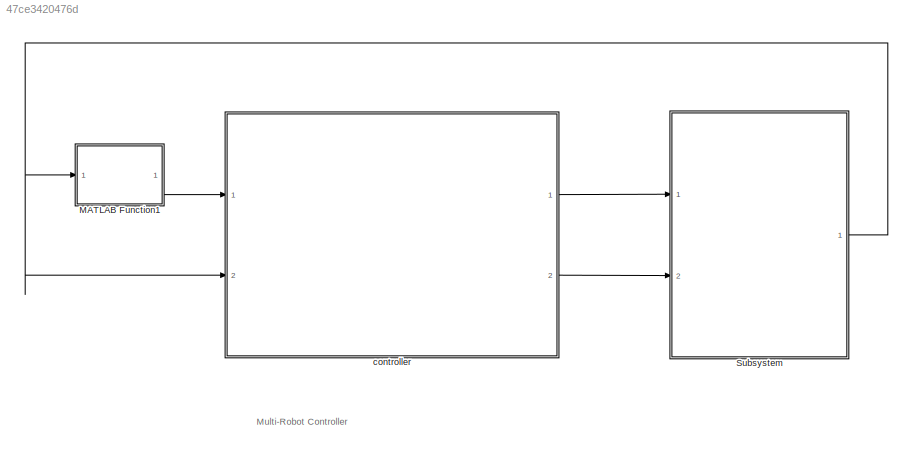
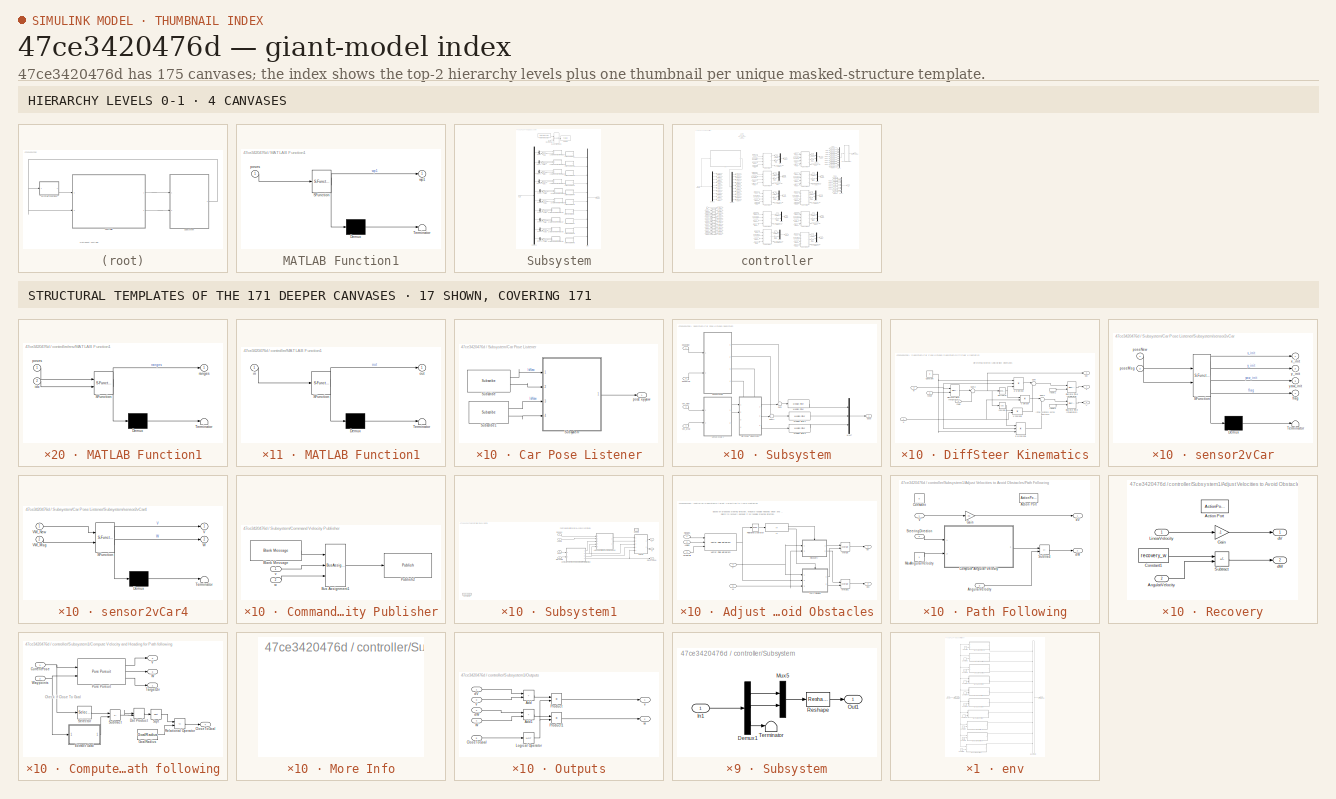
[diagram: thumbnail index - top-2 hierarchy levels (4 canvases) + 17 structural-template representatives of the remaining 171 canvases]
MODEL slx_47ce3420476d
KIND model
CONFIG AbsTol = auto
CONFIG EnableMultiTasking = on
CONFIG FixedStep = sampleTime
CONFIG InitFcn = sampleTime = 0.05;\nnMedianSize=3;\n% Robot parameters\n% Robot parameters\nwheelRadius = 0.0303; \nrobotRadius = 0.116*0.8;   %小车在仿真中显示的圆形的半径大小\nTrackwidth = 0.0847;  %定义向量场直方图算法中小车的宽度\n\n% Lidar parameters\nsensorOffset = [0,0];\nscanAngles = linspace(-pi/3,pi/3,20)';%y = linspace(x1,x2,n) 生成 n 个点。这些点的间距为 (x2-x1)/(n-1)。\nmaxRange = 0.2;\n\n%%%%%%\nks=1;\n\ninit_pose_1=[0    0  0]';\ninit_pose_2=[0    0.2  -pi/2]...<+1357ch>
CONFIG MaxStep = auto
CONFIG MinStep = auto
CONFIG RelTol = 1e-3
CONFIG SampleTimeConstraint = Unconstrained
CONFIG SolverName = FixedStepDiscrete
CONFIG StartTime = 0.0
CONFIG StopTime = Inf
BLOCK [SubSystem] MATLAB Function1
  ErrorFcn = Stateflow.Translate.translate
  PermitHierarchicalResolution = ExplicitOnly
  Ports = [1, 1]
  RequestExecContextInheritance = off
  SFBlockType = MATLAB Function
  TreatAsAtomicUnit = on
BLOCK [Demux] MATLAB Function1/ Demux 
  Outputs = 1
  Ports = [1, 1]
BLOCK [S-Function] MATLAB Function1/ SFunction 
  EnableBusSupport = on
  FunctionName = sf_sfun
  Parameters = desired_lookahead
  PortCounts = [1 2]
  Ports = [1, 2]
  SFcnIsStateOwnerBlock = off
  SFunctionDeploymentMode = off
  Tag = Stateflow S-Function 1
BLOCK [Terminator] MATLAB Function1/ Terminator 
BLOCK [Inport] MATLAB Function1/poses
BLOCK [Outport] MATLAB Function1/wp1
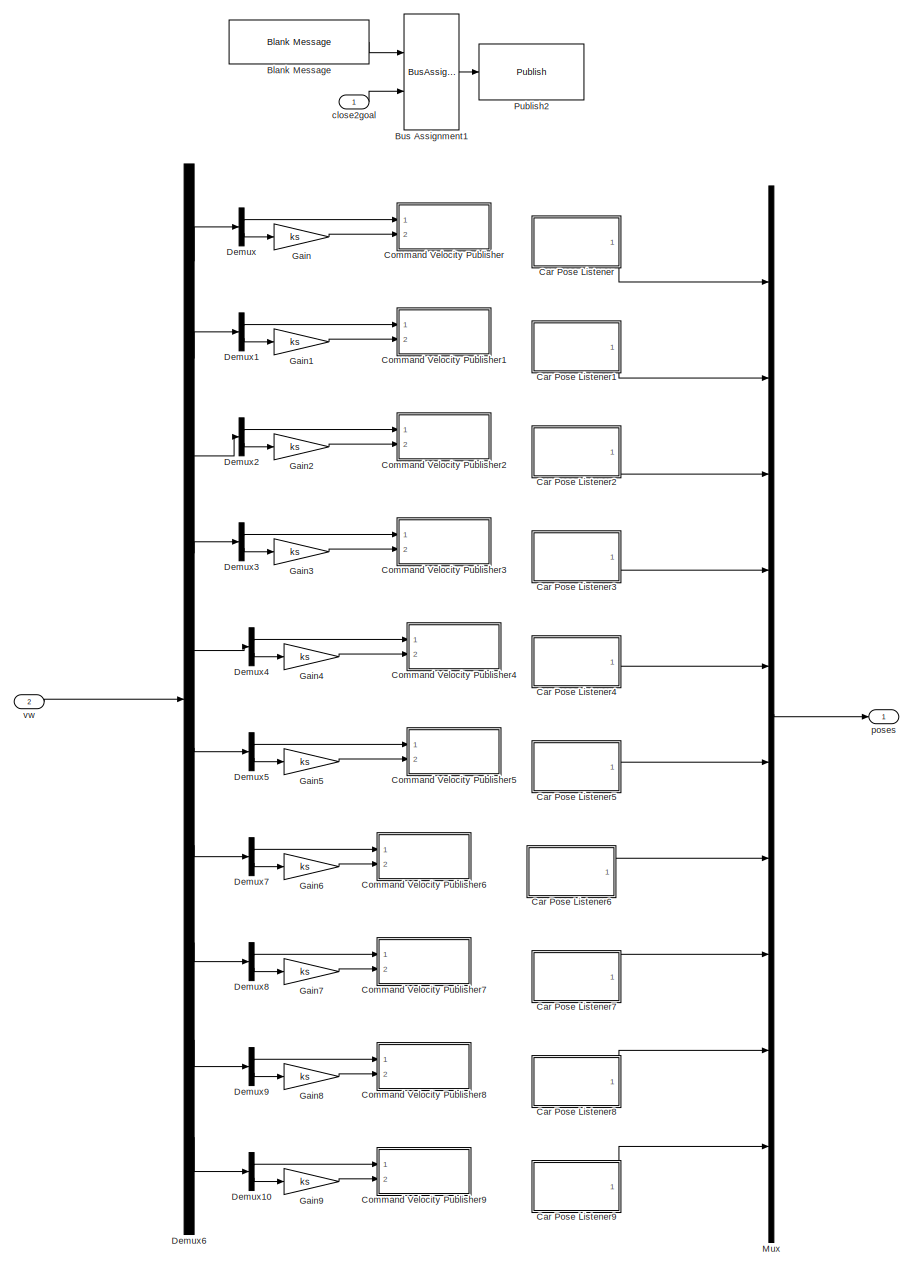
[diagram: Subsystem - part 1/1, most of the canvas]
BLOCK [SubSystem] Subsystem
  Ports = [2, 1]
  RequestExecContextInheritance = off
BLOCK [Reference] Subsystem/Blank Message  REF=robotlib/Blank Message
  Ports = [0, 1]
  SourceBlock = robotlib/Blank Message
  SourceProductBaseCode = RR
  SourceType = ROS Blank Message
BLOCK [BusAssignment] Subsystem/Bus Assignment1
  AssignedSignals = Data
  DialogController = Simulink.DDGSource_BusAssignment
  Ports = [2, 1]
BLOCK [SubSystem] Subsystem/Car Pose Listener
  Ports = [0, 1]
  RequestExecContextInheritance = off
BLOCK [Reference] Subsystem/Car Pose Listener/Subscribe  REF=robotlib/Subscribe
  Ports = [0, 2]
  SourceBlock = robotlib/Subscribe
  SourceProductBaseCode = RR
  SourceType = ROS Subscribe
BLOCK [Reference] Subsystem/Car Pose Listener/Subscribe1  REF=robotlib/Subscribe
  Ports = [0, 2]
  SourceBlock = robotlib/Subscribe
  SourceProductBaseCode = RR
  SourceType = ROS Subscribe
BLOCK [SubSystem] Subsystem/Car Pose Listener/Subsystem
  Ports = [4, 1]
  RequestExecContextInheritance = off
BLOCK [SubSystem] Subsystem/Car Pose Listener/Subsystem/DiffSteer Kinematics
  PortSchema = {"entries":[{"content":{"sides":[{"content":{"connectorIds":["In1","In2"]},"type":"ConnectorPlacement.EquallySpacedRectSide","uuid":"0032ed68-1de4-4b1c-b237-9372fedc8a7a"},{"content":{"connectorIds":["Out1","Out2","Out3"],"side":"RIGHT"},"type":"ConnectorPlacement.EquallySpacedRectSide","uuid":"d0c861bd-7497-47fe-b183-36da470ee2c6"},{"content":{"connectorIds":["In3","In4"],"side":"TOP"},"type":"Co...<+271ch>  <repeated x10 — deduplicated; at blocks: DiffSteer Kinematics>
  Ports = [4, 3]
  RequestExecContextInheritance = off
BLOCK [Constant] Subsystem/Car Pose Listener/Subsystem/DiffSteer Kinematics/Constant
  Value = 0
BLOCK [DiscreteIntegrator] Subsystem/Car Pose Listener/Subsystem/DiffSteer Kinematics/Discrete-Time Integrator
  ExternalReset = falling
  ICPrevOutput = DiscIntNeverNeededParam
  ICPrevScaledInput = DiscIntNeverNeededParam
  InitialConditionSetting = Auto
  Ports = [2, 1]
  SampleTime = -1
BLOCK [DiscreteIntegrator] Subsystem/Car Pose Listener/Subsystem/DiffSteer Kinematics/Discrete-Time Integrator1
  ExternalReset = falling
  ICPrevOutput = DiscIntNeverNeededParam
  ICPrevScaledInput = DiscIntNeverNeededParam
  InitialConditionSetting = Auto
  Ports = [2, 1]
  SampleTime = -1
BLOCK [DiscreteIntegrator] Subsystem/Car Pose Listener/Subsystem/DiffSteer Kinematics/Discrete-Time Integrator2
  ExternalReset = falling
  ICPrevOutput = DiscIntNeverNeededParam
  ICPrevScaledInput = DiscIntNeverNeededParam
  InitialConditionSetting = Auto
  IntegratorMethod = Integration: Backward Euler
  Ports = [2, 1]
  SampleTime = -1
BLOCK [Sum] Subsystem/Car Pose Listener/Subsystem/DiffSteer Kinematics/Sum
  Inputs = |-+
  Ports = [2, 1]
  SaturateOnIntegerOverflow = on
BLOCK [Sum] Subsystem/Car Pose Listener/Subsystem/DiffSteer Kinematics/Sum1
  Inputs = |++
  Ports = [2, 1]
  SaturateOnIntegerOverflow = on
BLOCK [Sum] Subsystem/Car Pose Listener/Subsystem/DiffSteer Kinematics/Sum2
  Inputs = |++
  Ports = [2, 1]
BLOCK [Product] Subsystem/Car Pose Listener/Subsystem/DiffSteer Kinematics/a w cos(psi)
  Inputs = 3
  OutDataTypeStr = Inherit: Same as first input
  Ports = [3, 1]
  SaturateOnIntegerOverflow = on
BLOCK [Product] Subsystem/Car Pose Listener/Subsystem/DiffSteer Kinematics/a w sin(psi)
  Inputs = 3
  OutDataTypeStr = Inherit: Same as first input
  Ports = [3, 1]
  SaturateOnIntegerOverflow = on
BLOCK [Trigonometry] Subsystem/Car Pose Listener/Subsystem/DiffSteer Kinematics/cos(psi)
  Operator = cos
  Ports = [1, 1]
BLOCK [Outport] Subsystem/Car Pose Listener/Subsystem/DiffSteer Kinematics/psi
  Port = 3
BLOCK [Inport] Subsystem/Car Pose Listener/Subsystem/DiffSteer Kinematics/reset
  Port = 3
BLOCK [InportShadow] Subsystem/Car Pose Listener/Subsystem/DiffSteer Kinematics/reset1
  Port = 3
BLOCK [InportShadow] Subsystem/Car Pose Listener/Subsystem/DiffSteer Kinematics/reset2
  Port = 3
BLOCK [Trigonometry] Subsystem/Car Pose Listener/Subsystem/DiffSteer Kinematics/sin(theta)
  Ports = [1, 1]
BLOCK [Inport] Subsystem/Car Pose Listener/Subsystem/DiffSteer Kinematics/u
BLOCK [Product] Subsystem/Car Pose Listener/Subsystem/DiffSteer Kinematics/u cos(psi)
  OutDataTypeStr = Inherit: Same as first input
  Ports = [2, 1]
  SaturateOnIntegerOverflow = on
BLOCK [Product] Subsystem/Car Pose Listener/Subsystem/DiffSteer Kinematics/u sin(psi)
  OutDataTypeStr = Inherit: Same as first input
  Ports = [2, 1]
  SaturateOnIntegerOverflow = on
BLOCK [Inport] Subsystem/Car Pose Listener/Subsystem/DiffSteer Kinematics/w
  Port = 2
BLOCK [Outport] Subsystem/Car Pose Listener/Subsystem/DiffSteer Kinematics/x
BLOCK [Outport] Subsystem/Car Pose Listener/Subsystem/DiffSteer Kinematics/y
  Port = 2
BLOCK [Inport] Subsystem/Car Pose Listener/Subsystem/DiffSteer Kinematics/yaw0
  Port = 4
BLOCK [Reference] Subsystem/Car Pose Listener/Subsystem/Median Filter  REF=dspstat3/Median
Filter
  Ports = [1, 1]
  SourceBlock = dspstat3/Median\nFilter
  SourceProductBaseCode = DS
  SourceType = dsp.MedianFilter
BLOCK [Reference] Subsystem/Car Pose Listener/Subsystem/Median Filter1  REF=dspstat3/Median
Filter
  Ports = [1, 1]
  SourceBlock = dspstat3/Median\nFilter
  SourceProductBaseCode = DS
  SourceType = dsp.MedianFilter
BLOCK [Reference] Subsystem/Car Pose Listener/Subsystem/Median Filter2  REF=dspstat3/Median
Filter
  Ports = [1, 1]
  SourceBlock = dspstat3/Median\nFilter
  SourceProductBaseCode = DS
  SourceType = dsp.MedianFilter
BLOCK [Mux] Subsystem/Car Pose Listener/Subsystem/Mux7
  DisplayOption = bar
  Inputs = 3
  Ports = [3, 1]
BLOCK [Sum] Subsystem/Car Pose Listener/Subsystem/Sum
  Inputs = ++|
  Ports = [2, 1]
BLOCK [Sum] Subsystem/Car Pose Listener/Subsystem/Sum1
  Inputs = ++|
  Ports = [2, 1]
BLOCK [Inport] Subsystem/Car Pose Listener/Subsystem/VW_Msg
  Port = 4
BLOCK [Inport] Subsystem/Car Pose Listener/Subsystem/VW_New
  Port = 3
BLOCK [Outport] Subsystem/Car Pose Listener/Subsystem/pose
BLOCK [Inport] Subsystem/Car Pose Listener/Subsystem/poseMsg
  Port = 2
BLOCK [Inport] Subsystem/Car Pose Listener/Subsystem/poseNew
BLOCK [SubSystem] Subsystem/Car Pose Listener/Subsystem/sensor2vCar
  ErrorFcn = Stateflow.Translate.translate
  PermitHierarchicalResolution = ExplicitOnly
  Ports = [2, 4]
  RequestExecContextInheritance = off
  SFBlockType = MATLAB Function
  TreatAsAtomicUnit = on
BLOCK [Demux] Subsystem/Car Pose Listener/Subsystem/sensor2vCar/ Demux 
  Outputs = 1
  Ports = [1, 1]
BLOCK [S-Function] Subsystem/Car Pose Listener/Subsystem/sensor2vCar/ SFunction 
  EnableBusSupport = on
  FunctionName = sf_sfun
  PortCounts = [2 5]
  Ports = [2, 5]
  SFcnIsStateOwnerBlock = off
  SFunctionDeploymentMode = off
  Tag = Stateflow S-Function 14
BLOCK [Terminator] Subsystem/Car Pose Listener/Subsystem/sensor2vCar/ Terminator 
BLOCK [Outport] Subsystem/Car Pose Listener/Subsystem/sensor2vCar/flag
  Port = 4
BLOCK [Inport] Subsystem/Car Pose Listener/Subsystem/sensor2vCar/poseMsg
  Port = 2
BLOCK [Inport] Subsystem/Car Pose Listener/Subsystem/sensor2vCar/poseNew
BLOCK [Outport] Subsystem/Car Pose Listener/Subsystem/sensor2vCar/x_init
BLOCK [Outport] Subsystem/Car Pose Listener/Subsystem/sensor2vCar/y_init
  Port = 2
BLOCK [Outport] Subsystem/Car Pose Listener/Subsystem/sensor2vCar/yaw_init
  Port = 3
BLOCK [SubSystem] Subsystem/Car Pose Listener/Subsystem/sensor2vCar4
  ErrorFcn = Stateflow.Translate.translate
  PermitHierarchicalResolution = ExplicitOnly
  Ports = [2, 2]
  RequestExecContextInheritance = off
  SFBlockType = MATLAB Function
  TreatAsAtomicUnit = on
BLOCK [Demux] Subsystem/Car Pose Listener/Subsystem/sensor2vCar4/ Demux 
  Outputs = 1
  Ports = [1, 1]
BLOCK [S-Function] Subsystem/Car Pose Listener/Subsystem/sensor2vCar4/ SFunction 
  EnableBusSupport = on
  FunctionName = sf_sfun
  PortCounts = [2 3]
  Ports = [2, 3]
  SFcnIsStateOwnerBlock = off
  SFunctionDeploymentMode = off
  Tag = Stateflow S-Function 15
BLOCK [Terminator] Subsystem/Car Pose Listener/Subsystem/sensor2vCar4/ Terminator 
BLOCK [Outport] Subsystem/Car Pose Listener/Subsystem/sensor2vCar4/V
BLOCK [Inport] Subsystem/Car Pose Listener/Subsystem/sensor2vCar4/VW_Msg
  Port = 2
BLOCK [Inport] Subsystem/Car Pose Listener/Subsystem/sensor2vCar4/VW_New
BLOCK [Outport] Subsystem/Car Pose Listener/Subsystem/sensor2vCar4/W
  Port = 2
BLOCK [Outport] Subsystem/Car Pose Listener/pose x-y-yaw
BLOCK [SubSystem] Subsystem/Car Pose Listener1
  Ports = [0, 1]
  RequestExecContextInheritance = off
BLOCK [Reference] Subsystem/Car Pose Listener1/Subscribe  REF=robotlib/Subscribe
  Ports = [0, 2]
  SourceBlock = robotlib/Subscribe
  SourceProductBaseCode = RR
  SourceType = ROS Subscribe
BLOCK [Reference] Subsystem/Car Pose Listener1/Subscribe1  REF=robotlib/Subscribe
  Ports = [0, 2]
  SourceBlock = robotlib/Subscribe
  SourceProductBaseCode = RR
  SourceType = ROS Subscribe
BLOCK [SubSystem] Subsystem/Car Pose Listener1/Subsystem
  Ports = [4, 1]
  RequestExecContextInheritance = off
BLOCK [SubSystem] Subsystem/Car Pose Listener1/Subsystem/DiffSteer Kinematics
  Ports = [4, 3]
  RequestExecContextInheritance = off
BLOCK [Constant] Subsystem/Car Pose Listener1/Subsystem/DiffSteer Kinematics/Constant
  Value = 0
BLOCK [DiscreteIntegrator] Subsystem/Car Pose Listener1/Subsystem/DiffSteer Kinematics/Discrete-Time Integrator
  ExternalReset = falling
  ICPrevOutput = DiscIntNeverNeededParam
  ICPrevScaledInput = DiscIntNeverNeededParam
  InitialConditionSetting = Auto
  Ports = [2, 1]
  SampleTime = -1
BLOCK [DiscreteIntegrator] Subsystem/Car Pose Listener1/Subsystem/DiffSteer Kinematics/Discrete-Time Integrator1
  ExternalReset = falling
  ICPrevOutput = DiscIntNeverNeededParam
  ICPrevScaledInput = DiscIntNeverNeededParam
  InitialConditionSetting = Auto
  Ports = [2, 1]
  SampleTime = -1
BLOCK [DiscreteIntegrator] Subsystem/Car Pose Listener1/Subsystem/DiffSteer Kinematics/Discrete-Time Integrator2
  ExternalReset = falling
  ICPrevOutput = DiscIntNeverNeededParam
  ICPrevScaledInput = DiscIntNeverNeededParam
  InitialConditionSetting = Auto
  IntegratorMethod = Integration: Backward Euler
  Ports = [2, 1]
  SampleTime = -1
BLOCK [Sum] Subsystem/Car Pose Listener1/Subsystem/DiffSteer Kinematics/Sum
  Inputs = |-+
  Ports = [2, 1]
  SaturateOnIntegerOverflow = on
BLOCK [Sum] Subsystem/Car Pose Listener1/Subsystem/DiffSteer Kinematics/Sum1
  Inputs = |++
  Ports = [2, 1]
  SaturateOnIntegerOverflow = on
BLOCK [Sum] Subsystem/Car Pose Listener1/Subsystem/DiffSteer Kinematics/Sum2
  Inputs = |++
  Ports = [2, 1]
BLOCK [Product] Subsystem/Car Pose Listener1/Subsystem/DiffSteer Kinematics/a w cos(psi)
  Inputs = 3
  OutDataTypeStr = Inherit: Same as first input
  Ports = [3, 1]
  SaturateOnIntegerOverflow = on
BLOCK [Product] Subsystem/Car Pose Listener1/Subsystem/DiffSteer Kinematics/a w sin(psi)
  Inputs = 3
  OutDataTypeStr = Inherit: Same as first input
  Ports = [3, 1]
  SaturateOnIntegerOverflow = on
BLOCK [Trigonometry] Subsystem/Car Pose Listener1/Subsystem/DiffSteer Kinematics/cos(psi)
  Operator = cos
  Ports = [1, 1]
BLOCK [Outport] Subsystem/Car Pose Listener1/Subsystem/DiffSteer Kinematics/psi
  Port = 3
BLOCK [Inport] Subsystem/Car Pose Listener1/Subsystem/DiffSteer Kinematics/reset
  Port = 3
BLOCK [InportShadow] Subsystem/Car Pose Listener1/Subsystem/DiffSteer Kinematics/reset1
  Port = 3
BLOCK [InportShadow] Subsystem/Car Pose Listener1/Subsystem/DiffSteer Kinematics/reset2
  Port = 3
BLOCK [Trigonometry] Subsystem/Car Pose Listener1/Subsystem/DiffSteer Kinematics/sin(theta)
  Ports = [1, 1]
BLOCK [Inport] Subsystem/Car Pose Listener1/Subsystem/DiffSteer Kinematics/u
BLOCK [Product] Subsystem/Car Pose Listener1/Subsystem/DiffSteer Kinematics/u cos(psi)
  OutDataTypeStr = Inherit: Same as first input
  Ports = [2, 1]
  SaturateOnIntegerOverflow = on
BLOCK [Product] Subsystem/Car Pose Listener1/Subsystem/DiffSteer Kinematics/u sin(psi)
  OutDataTypeStr = Inherit: Same as first input
  Ports = [2, 1]
  SaturateOnIntegerOverflow = on
BLOCK [Inport] Subsystem/Car Pose Listener1/Subsystem/DiffSteer Kinematics/w
  Port = 2
BLOCK [Outport] Subsystem/Car Pose Listener1/Subsystem/DiffSteer Kinematics/x
BLOCK [Outport] Subsystem/Car Pose Listener1/Subsystem/DiffSteer Kinematics/y
  Port = 2
BLOCK [Inport] Subsystem/Car Pose Listener1/Subsystem/DiffSteer Kinematics/yaw0
  Port = 4
BLOCK [Reference] Subsystem/Car Pose Listener1/Subsystem/Median Filter  REF=dspstat3/Median
Filter
  Ports = [1, 1]
  SourceBlock = dspstat3/Median\nFilter
  SourceProductBaseCode = DS
  SourceType = dsp.MedianFilter
BLOCK [Reference] Subsystem/Car Pose Listener1/Subsystem/Median Filter1  REF=dspstat3/Median
Filter
  Ports = [1, 1]
  SourceBlock = dspstat3/Median\nFilter
  SourceProductBaseCode = DS
  SourceType = dsp.MedianFilter
BLOCK [Reference] Subsystem/Car Pose Listener1/Subsystem/Median Filter2  REF=dspstat3/Median
Filter
  Ports = [1, 1]
  SourceBlock = dspstat3/Median\nFilter
  SourceProductBaseCode = DS
  SourceType = dsp.MedianFilter
BLOCK [Mux] Subsystem/Car Pose Listener1/Subsystem/Mux7
  DisplayOption = bar
  Inputs = 3
  Ports = [3, 1]
BLOCK [Sum] Subsystem/Car Pose Listener1/Subsystem/Sum
  Inputs = ++|
  Ports = [2, 1]
BLOCK [Sum] Subsystem/Car Pose Listener1/Subsystem/Sum1
  Inputs = ++|
  Ports = [2, 1]
BLOCK [Inport] Subsystem/Car Pose Listener1/Subsystem/VW_Msg
  Port = 4
BLOCK [Inport] Subsystem/Car Pose Listener1/Subsystem/VW_New
  Port = 3
BLOCK [Outport] Subsystem/Car Pose Listener1/Subsystem/pose
BLOCK [Inport] Subsystem/Car Pose Listener1/Subsystem/poseMsg
  Port = 2
BLOCK [Inport] Subsystem/Car Pose Listener1/Subsystem/poseNew
BLOCK [SubSystem] Subsystem/Car Pose Listener1/Subsystem/sensor2vCar
  ErrorFcn = Stateflow.Translate.translate
  PermitHierarchicalResolution = ExplicitOnly
  Ports = [2, 4]
  RequestExecContextInheritance = off
  SFBlockType = MATLAB Function
  TreatAsAtomicUnit = on
BLOCK [Demux] Subsystem/Car Pose Listener1/Subsystem/sensor2vCar/ Demux 
  Outputs = 1
  Ports = [1, 1]
BLOCK [S-Function] Subsystem/Car Pose Listener1/Subsystem/sensor2vCar/ SFunction 
  EnableBusSupport = on
  FunctionName = sf_sfun
  PortCounts = [2 5]
  Ports = [2, 5]
  SFcnIsStateOwnerBlock = off
  SFunctionDeploymentMode = off
  Tag = Stateflow S-Function 16
BLOCK [Terminator] Subsystem/Car Pose Listener1/Subsystem/sensor2vCar/ Terminator 
BLOCK [Outport] Subsystem/Car Pose Listener1/Subsystem/sensor2vCar/flag
  Port = 4
BLOCK [Inport] Subsystem/Car Pose Listener1/Subsystem/sensor2vCar/poseMsg
  Port = 2
BLOCK [Inport] Subsystem/Car Pose Listener1/Subsystem/sensor2vCar/poseNew
BLOCK [Outport] Subsystem/Car Pose Listener1/Subsystem/sensor2vCar/x_init
BLOCK [Outport] Subsystem/Car Pose Listener1/Subsystem/sensor2vCar/y_init
  Port = 2
BLOCK [Outport] Subsystem/Car Pose Listener1/Subsystem/sensor2vCar/yaw_init
  Port = 3
BLOCK [SubSystem] Subsystem/Car Pose Listener1/Subsystem/sensor2vCar4
  ErrorFcn = Stateflow.Translate.translate
  PermitHierarchicalResolution = ExplicitOnly
  Ports = [2, 2]
  RequestExecContextInheritance = off
  SFBlockType = MATLAB Function
  TreatAsAtomicUnit = on
BLOCK [Demux] Subsystem/Car Pose Listener1/Subsystem/sensor2vCar4/ Demux 
  Outputs = 1
  Ports = [1, 1]
BLOCK [S-Function] Subsystem/Car Pose Listener1/Subsystem/sensor2vCar4/ SFunction 
  EnableBusSupport = on
  FunctionName = sf_sfun
  PortCounts = [2 3]
  Ports = [2, 3]
  SFcnIsStateOwnerBlock = off
  SFunctionDeploymentMode = off
  Tag = Stateflow S-Function 17
BLOCK [Terminator] Subsystem/Car Pose Listener1/Subsystem/sensor2vCar4/ Terminator 
BLOCK [Outport] Subsystem/Car Pose Listener1/Subsystem/sensor2vCar4/V
BLOCK [Inport] Subsystem/Car Pose Listener1/Subsystem/sensor2vCar4/VW_Msg
  Port = 2
BLOCK [Inport] Subsystem/Car Pose Listener1/Subsystem/sensor2vCar4/VW_New
BLOCK [Outport] Subsystem/Car Pose Listener1/Subsystem/sensor2vCar4/W
  Port = 2
BLOCK [Outport] Subsystem/Car Pose Listener1/pose x-y-yaw
BLOCK [SubSystem] Subsystem/Car Pose Listener2
  Ports = [0, 1]
  RequestExecContextInheritance = off
BLOCK [Reference] Subsystem/Car Pose Listener2/Subscribe  REF=robotlib/Subscribe
  Ports = [0, 2]
  SourceBlock = robotlib/Subscribe
  SourceProductBaseCode = RR
  SourceType = ROS Subscribe
BLOCK [Reference] Subsystem/Car Pose Listener2/Subscribe1  REF=robotlib/Subscribe
  Ports = [0, 2]
  SourceBlock = robotlib/Subscribe
  SourceProductBaseCode = RR
  SourceType = ROS Subscribe
BLOCK [SubSystem] Subsystem/Car Pose Listener2/Subsystem
  Ports = [4, 1]
  RequestExecContextInheritance = off
BLOCK [SubSystem] Subsystem/Car Pose Listener2/Subsystem/DiffSteer Kinematics
  Ports = [4, 3]
  RequestExecContextInheritance = off
BLOCK [Constant] Subsystem/Car Pose Listener2/Subsystem/DiffSteer Kinematics/Constant
  Value = 0
BLOCK [DiscreteIntegrator] Subsystem/Car Pose Listener2/Subsystem/DiffSteer Kinematics/Discrete-Time Integrator
  ExternalReset = falling
  ICPrevOutput = DiscIntNeverNeededParam
  ICPrevScaledInput = DiscIntNeverNeededParam
  InitialConditionSetting = Auto
  Ports = [2, 1]
  SampleTime = -1
BLOCK [DiscreteIntegrator] Subsystem/Car Pose Listener2/Subsystem/DiffSteer Kinematics/Discrete-Time Integrator1
  ExternalReset = falling
  ICPrevOutput = DiscIntNeverNeededParam
  ICPrevScaledInput = DiscIntNeverNeededParam
  InitialConditionSetting = Auto
  Ports = [2, 1]
  SampleTime = -1
BLOCK [DiscreteIntegrator] Subsystem/Car Pose Listener2/Subsystem/DiffSteer Kinematics/Discrete-Time Integrator2
  ExternalReset = falling
  ICPrevOutput = DiscIntNeverNeededParam
  ICPrevScaledInput = DiscIntNeverNeededParam
  InitialConditionSetting = Auto
  IntegratorMethod = Integration: Backward Euler
  Ports = [2, 1]
  SampleTime = -1
BLOCK [Sum] Subsystem/Car Pose Listener2/Subsystem/DiffSteer Kinematics/Sum
  Inputs = |-+
  Ports = [2, 1]
  SaturateOnIntegerOverflow = on
BLOCK [Sum] Subsystem/Car Pose Listener2/Subsystem/DiffSteer Kinematics/Sum1
  Inputs = |++
  Ports = [2, 1]
  SaturateOnIntegerOverflow = on
BLOCK [Sum] Subsystem/Car Pose Listener2/Subsystem/DiffSteer Kinematics/Sum2
  Inputs = |++
  Ports = [2, 1]
BLOCK [Product] Subsystem/Car Pose Listener2/Subsystem/DiffSteer Kinematics/a w cos(psi)
  Inputs = 3
  OutDataTypeStr = Inherit: Same as first input
  Ports = [3, 1]
  SaturateOnIntegerOverflow = on
BLOCK [Product] Subsystem/Car Pose Listener2/Subsystem/DiffSteer Kinematics/a w sin(psi)
  Inputs = 3
  OutDataTypeStr = Inherit: Same as first input
  Ports = [3, 1]
  SaturateOnIntegerOverflow = on
BLOCK [Trigonometry] Subsystem/Car Pose Listener2/Subsystem/DiffSteer Kinematics/cos(psi)
  Operator = cos
  Ports = [1, 1]
BLOCK [Outport] Subsystem/Car Pose Listener2/Subsystem/DiffSteer Kinematics/psi
  Port = 3
BLOCK [Inport] Subsystem/Car Pose Listener2/Subsystem/DiffSteer Kinematics/reset
  Port = 3
BLOCK [InportShadow] Subsystem/Car Pose Listener2/Subsystem/DiffSteer Kinematics/reset1
  Port = 3
BLOCK [InportShadow] Subsystem/Car Pose Listener2/Subsystem/DiffSteer Kinematics/reset2
  Port = 3
BLOCK [Trigonometry] Subsystem/Car Pose Listener2/Subsystem/DiffSteer Kinematics/sin(theta)
  Ports = [1, 1]
BLOCK [Inport] Subsystem/Car Pose Listener2/Subsystem/DiffSteer Kinematics/u
BLOCK [Product] Subsystem/Car Pose Listener2/Subsystem/DiffSteer Kinematics/u cos(psi)
  OutDataTypeStr = Inherit: Same as first input
  Ports = [2, 1]
  SaturateOnIntegerOverflow = on
BLOCK [Product] Subsystem/Car Pose Listener2/Subsystem/DiffSteer Kinematics/u sin(psi)
  OutDataTypeStr = Inherit: Same as first input
  Ports = [2, 1]
  SaturateOnIntegerOverflow = on
BLOCK [Inport] Subsystem/Car Pose Listener2/Subsystem/DiffSteer Kinematics/w
  Port = 2
BLOCK [Outport] Subsystem/Car Pose Listener2/Subsystem/DiffSteer Kinematics/x
BLOCK [Outport] Subsystem/Car Pose Listener2/Subsystem/DiffSteer Kinematics/y
  Port = 2
BLOCK [Inport] Subsystem/Car Pose Listener2/Subsystem/DiffSteer Kinematics/yaw0
  Port = 4
BLOCK [Reference] Subsystem/Car Pose Listener2/Subsystem/Median Filter  REF=dspstat3/Median
Filter
  Ports = [1, 1]
  SourceBlock = dspstat3/Median\nFilter
  SourceProductBaseCode = DS
  SourceType = dsp.MedianFilter
BLOCK [Reference] Subsystem/Car Pose Listener2/Subsystem/Median Filter1  REF=dspstat3/Median
Filter
  Ports = [1, 1]
  SourceBlock = dspstat3/Median\nFilter
  SourceProductBaseCode = DS
  SourceType = dsp.MedianFilter
BLOCK [Reference] Subsystem/Car Pose Listener2/Subsystem/Median Filter2  REF=dspstat3/Median
Filter
  Ports = [1, 1]
  SourceBlock = dspstat3/Median\nFilter
  SourceProductBaseCode = DS
  SourceType = dsp.MedianFilter
BLOCK [Mux] Subsystem/Car Pose Listener2/Subsystem/Mux7
  DisplayOption = bar
  Inputs = 3
  Ports = [3, 1]
BLOCK [Sum] Subsystem/Car Pose Listener2/Subsystem/Sum
  Inputs = ++|
  Ports = [2, 1]
BLOCK [Sum] Subsystem/Car Pose Listener2/Subsystem/Sum1
  Inputs = ++|
  Ports = [2, 1]
BLOCK [Inport] Subsystem/Car Pose Listener2/Subsystem/VW_Msg
  Port = 4
BLOCK [Inport] Subsystem/Car Pose Listener2/Subsystem/VW_New
  Port = 3
BLOCK [Outport] Subsystem/Car Pose Listener2/Subsystem/pose
BLOCK [Inport] Subsystem/Car Pose Listener2/Subsystem/poseMsg
  Port = 2
BLOCK [Inport] Subsystem/Car Pose Listener2/Subsystem/poseNew
BLOCK [SubSystem] Subsystem/Car Pose Listener2/Subsystem/sensor2vCar
  ErrorFcn = Stateflow.Translate.translate
  PermitHierarchicalResolution = ExplicitOnly
  Ports = [2, 4]
  RequestExecContextInheritance = off
  SFBlockType = MATLAB Function
  TreatAsAtomicUnit = on
BLOCK [Demux] Subsystem/Car Pose Listener2/Subsystem/sensor2vCar/ Demux 
  Outputs = 1
  Ports = [1, 1]
BLOCK [S-Function] Subsystem/Car Pose Listener2/Subsystem/sensor2vCar/ SFunction 
  EnableBusSupport = on
  FunctionName = sf_sfun
  PortCounts = [2 5]
  Ports = [2, 5]
  SFcnIsStateOwnerBlock = off
  SFunctionDeploymentMode = off
  Tag = Stateflow S-Function 18
BLOCK [Terminator] Subsystem/Car Pose Listener2/Subsystem/sensor2vCar/ Terminator 
BLOCK [Outport] Subsystem/Car Pose Listener2/Subsystem/sensor2vCar/flag
  Port = 4
BLOCK [Inport] Subsystem/Car Pose Listener2/Subsystem/sensor2vCar/poseMsg
  Port = 2
BLOCK [Inport] Subsystem/Car Pose Listener2/Subsystem/sensor2vCar/poseNew
BLOCK [Outport] Subsystem/Car Pose Listener2/Subsystem/sensor2vCar/x_init
BLOCK [Outport] Subsystem/Car Pose Listener2/Subsystem/sensor2vCar/y_init
  Port = 2
BLOCK [Outport] Subsystem/Car Pose Listener2/Subsystem/sensor2vCar/yaw_init
  Port = 3
BLOCK [SubSystem] Subsystem/Car Pose Listener2/Subsystem/sensor2vCar4
  ErrorFcn = Stateflow.Translate.translate
  PermitHierarchicalResolution = ExplicitOnly
  Ports = [2, 2]
  RequestExecContextInheritance = off
  SFBlockType = MATLAB Function
  TreatAsAtomicUnit = on
BLOCK [Demux] Subsystem/Car Pose Listener2/Subsystem/sensor2vCar4/ Demux 
  Outputs = 1
  Ports = [1, 1]
BLOCK [S-Function] Subsystem/Car Pose Listener2/Subsystem/sensor2vCar4/ SFunction 
  EnableBusSupport = on
  FunctionName = sf_sfun
  PortCounts = [2 3]
  Ports = [2, 3]
  SFcnIsStateOwnerBlock = off
  SFunctionDeploymentMode = off
  Tag = Stateflow S-Function 19
BLOCK [Terminator] Subsystem/Car Pose Listener2/Subsystem/sensor2vCar4/ Terminator 
BLOCK [Outport] Subsystem/Car Pose Listener2/Subsystem/sensor2vCar4/V
BLOCK [Inport] Subsystem/Car Pose Listener2/Subsystem/sensor2vCar4/VW_Msg
  Port = 2
BLOCK [Inport] Subsystem/Car Pose Listener2/Subsystem/sensor2vCar4/VW_New
BLOCK [Outport] Subsystem/Car Pose Listener2/Subsystem/sensor2vCar4/W
  Port = 2
BLOCK [Outport] Subsystem/Car Pose Listener2/pose x-y-yaw
BLOCK [SubSystem] Subsystem/Car Pose Listener3
  Ports = [0, 1]
  RequestExecContextInheritance = off
BLOCK [Reference] Subsystem/Car Pose Listener3/Subscribe  REF=robotlib/Subscribe
  Ports = [0, 2]
  SourceBlock = robotlib/Subscribe
  SourceProductBaseCode = RR
  SourceType = ROS Subscribe
BLOCK [Reference] Subsystem/Car Pose Listener3/Subscribe1  REF=robotlib/Subscribe
  Ports = [0, 2]
  SourceBlock = robotlib/Subscribe
  SourceProductBaseCode = RR
  SourceType = ROS Subscribe
BLOCK [SubSystem] Subsystem/Car Pose Listener3/Subsystem
  Ports = [4, 1]
  RequestExecContextInheritance = off
BLOCK [SubSystem] Subsystem/Car Pose Listener3/Subsystem/DiffSteer Kinematics
  Ports = [4, 3]
  RequestExecContextInheritance = off
BLOCK [Constant] Subsystem/Car Pose Listener3/Subsystem/DiffSteer Kinematics/Constant
  Value = 0
BLOCK [DiscreteIntegrator] Subsystem/Car Pose Listener3/Subsystem/DiffSteer Kinematics/Discrete-Time Integrator
  ExternalReset = falling
  ICPrevOutput = DiscIntNeverNeededParam
  ICPrevScaledInput = DiscIntNeverNeededParam
  InitialConditionSetting = Auto
  Ports = [2, 1]
  SampleTime = -1
BLOCK [DiscreteIntegrator] Subsystem/Car Pose Listener3/Subsystem/DiffSteer Kinematics/Discrete-Time Integrator1
  ExternalReset = falling
  ICPrevOutput = DiscIntNeverNeededParam
  ICPrevScaledInput = DiscIntNeverNeededParam
  InitialConditionSetting = Auto
  Ports = [2, 1]
  SampleTime = -1
BLOCK [DiscreteIntegrator] Subsystem/Car Pose Listener3/Subsystem/DiffSteer Kinematics/Discrete-Time Integrator2
  ExternalReset = falling
  ICPrevOutput = DiscIntNeverNeededParam
  ICPrevScaledInput = DiscIntNeverNeededParam
  InitialConditionSetting = Auto
  IntegratorMethod = Integration: Backward Euler
  Ports = [2, 1]
  SampleTime = -1
BLOCK [Sum] Subsystem/Car Pose Listener3/Subsystem/DiffSteer Kinematics/Sum
  Inputs = |-+
  Ports = [2, 1]
  SaturateOnIntegerOverflow = on
BLOCK [Sum] Subsystem/Car Pose Listener3/Subsystem/DiffSteer Kinematics/Sum1
  Inputs = |++
  Ports = [2, 1]
  SaturateOnIntegerOverflow = on
BLOCK [Sum] Subsystem/Car Pose Listener3/Subsystem/DiffSteer Kinematics/Sum2
  Inputs = |++
  Ports = [2, 1]
BLOCK [Product] Subsystem/Car Pose Listener3/Subsystem/DiffSteer Kinematics/a w cos(psi)
  Inputs = 3
  OutDataTypeStr = Inherit: Same as first input
  Ports = [3, 1]
  SaturateOnIntegerOverflow = on
BLOCK [Product] Subsystem/Car Pose Listener3/Subsystem/DiffSteer Kinematics/a w sin(psi)
  Inputs = 3
  OutDataTypeStr = Inherit: Same as first input
  Ports = [3, 1]
  SaturateOnIntegerOverflow = on
BLOCK [Trigonometry] Subsystem/Car Pose Listener3/Subsystem/DiffSteer Kinematics/cos(psi)
  Operator = cos
  Ports = [1, 1]
BLOCK [Outport] Subsystem/Car Pose Listener3/Subsystem/DiffSteer Kinematics/psi
  Port = 3
BLOCK [Inport] Subsystem/Car Pose Listener3/Subsystem/DiffSteer Kinematics/reset
  Port = 3
BLOCK [InportShadow] Subsystem/Car Pose Listener3/Subsystem/DiffSteer Kinematics/reset1
  Port = 3
BLOCK [InportShadow] Subsystem/Car Pose Listener3/Subsystem/DiffSteer Kinematics/reset2
  Port = 3
BLOCK [Trigonometry] Subsystem/Car Pose Listener3/Subsystem/DiffSteer Kinematics/sin(theta)
  Ports = [1, 1]
BLOCK [Inport] Subsystem/Car Pose Listener3/Subsystem/DiffSteer Kinematics/u
BLOCK [Product] Subsystem/Car Pose Listener3/Subsystem/DiffSteer Kinematics/u cos(psi)
  OutDataTypeStr = Inherit: Same as first input
  Ports = [2, 1]
  SaturateOnIntegerOverflow = on
BLOCK [Product] Subsystem/Car Pose Listener3/Subsystem/DiffSteer Kinematics/u sin(psi)
  OutDataTypeStr = Inherit: Same as first input
  Ports = [2, 1]
  SaturateOnIntegerOverflow = on
BLOCK [Inport] Subsystem/Car Pose Listener3/Subsystem/DiffSteer Kinematics/w
  Port = 2
BLOCK [Outport] Subsystem/Car Pose Listener3/Subsystem/DiffSteer Kinematics/x
BLOCK [Outport] Subsystem/Car Pose Listener3/Subsystem/DiffSteer Kinematics/y
  Port = 2
BLOCK [Inport] Subsystem/Car Pose Listener3/Subsystem/DiffSteer Kinematics/yaw0
  Port = 4
BLOCK [Reference] Subsystem/Car Pose Listener3/Subsystem/Median Filter  REF=dspstat3/Median
Filter
  Ports = [1, 1]
  SourceBlock = dspstat3/Median\nFilter
  SourceProductBaseCode = DS
  SourceType = dsp.MedianFilter
BLOCK [Reference] Subsystem/Car Pose Listener3/Subsystem/Median Filter1  REF=dspstat3/Median
Filter
  Ports = [1, 1]
  SourceBlock = dspstat3/Median\nFilter
  SourceProductBaseCode = DS
  SourceType = dsp.MedianFilter
BLOCK [Reference] Subsystem/Car Pose Listener3/Subsystem/Median Filter2  REF=dspstat3/Median
Filter
  Ports = [1, 1]
  SourceBlock = dspstat3/Median\nFilter
  SourceProductBaseCode = DS
  SourceType = dsp.MedianFilter
BLOCK [Mux] Subsystem/Car Pose Listener3/Subsystem/Mux7
  DisplayOption = bar
  Inputs = 3
  Ports = [3, 1]
BLOCK [Sum] Subsystem/Car Pose Listener3/Subsystem/Sum
  Inputs = ++|
  Ports = [2, 1]
BLOCK [Sum] Subsystem/Car Pose Listener3/Subsystem/Sum1
  Inputs = ++|
  Ports = [2, 1]
BLOCK [Inport] Subsystem/Car Pose Listener3/Subsystem/VW_Msg
  Port = 4
BLOCK [Inport] Subsystem/Car Pose Listener3/Subsystem/VW_New
  Port = 3
BLOCK [Outport] Subsystem/Car Pose Listener3/Subsystem/pose
BLOCK [Inport] Subsystem/Car Pose Listener3/Subsystem/poseMsg
  Port = 2
BLOCK [Inport] Subsystem/Car Pose Listener3/Subsystem/poseNew
BLOCK [SubSystem] Subsystem/Car Pose Listener3/Subsystem/sensor2vCar
  ErrorFcn = Stateflow.Translate.translate
  PermitHierarchicalResolution = ExplicitOnly
  Ports = [2, 4]
  RequestExecContextInheritance = off
  SFBlockType = MATLAB Function
  TreatAsAtomicUnit = on
BLOCK [Demux] Subsystem/Car Pose Listener3/Subsystem/sensor2vCar/ Demux 
  Outputs = 1
  Ports = [1, 1]
BLOCK [S-Function] Subsystem/Car Pose Listener3/Subsystem/sensor2vCar/ SFunction 
  EnableBusSupport = on
  FunctionName = sf_sfun
  PortCounts = [2 5]
  Ports = [2, 5]
  SFcnIsStateOwnerBlock = off
  SFunctionDeploymentMode = off
  Tag = Stateflow S-Function 55
BLOCK [Terminator] Subsystem/Car Pose Listener3/Subsystem/sensor2vCar/ Terminator 
BLOCK [Outport] Subsystem/Car Pose Listener3/Subsystem/sensor2vCar/flag
  Port = 4
BLOCK [Inport] Subsystem/Car Pose Listener3/Subsystem/sensor2vCar/poseMsg
  Port = 2
BLOCK [Inport] Subsystem/Car Pose Listener3/Subsystem/sensor2vCar/poseNew
BLOCK [Outport] Subsystem/Car Pose Listener3/Subsystem/sensor2vCar/x_init
BLOCK [Outport] Subsystem/Car Pose Listener3/Subsystem/sensor2vCar/y_init
  Port = 2
BLOCK [Outport] Subsystem/Car Pose Listener3/Subsystem/sensor2vCar/yaw_init
  Port = 3
BLOCK [SubSystem] Subsystem/Car Pose Listener3/Subsystem/sensor2vCar4
  ErrorFcn = Stateflow.Translate.translate
  PermitHierarchicalResolution = ExplicitOnly
  Ports = [2, 2]
  RequestExecContextInheritance = off
  SFBlockType = MATLAB Function
  TreatAsAtomicUnit = on
BLOCK [Demux] Subsystem/Car Pose Listener3/Subsystem/sensor2vCar4/ Demux 
  Outputs = 1
  Ports = [1, 1]
BLOCK [S-Function] Subsystem/Car Pose Listener3/Subsystem/sensor2vCar4/ SFunction 
  EnableBusSupport = on
  FunctionName = sf_sfun
  PortCounts = [2 3]
  Ports = [2, 3]
  SFcnIsStateOwnerBlock = off
  SFunctionDeploymentMode = off
  Tag = Stateflow S-Function 56
BLOCK [Terminator] Subsystem/Car Pose Listener3/Subsystem/sensor2vCar4/ Terminator 
BLOCK [Outport] Subsystem/Car Pose Listener3/Subsystem/sensor2vCar4/V
BLOCK [Inport] Subsystem/Car Pose Listener3/Subsystem/sensor2vCar4/VW_Msg
  Port = 2
BLOCK [Inport] Subsystem/Car Pose Listener3/Subsystem/sensor2vCar4/VW_New
BLOCK [Outport] Subsystem/Car Pose Listener3/Subsystem/sensor2vCar4/W
  Port = 2
BLOCK [Outport] Subsystem/Car Pose Listener3/pose x-y-yaw
BLOCK [SubSystem] Subsystem/Car Pose Listener4
  Ports = [0, 1]
  RequestExecContextInheritance = off
BLOCK [Reference] Subsystem/Car Pose Listener4/Subscribe  REF=robotlib/Subscribe
  Ports = [0, 2]
  SourceBlock = robotlib/Subscribe
  SourceProductBaseCode = RR
  SourceType = ROS Subscribe
BLOCK [Reference] Subsystem/Car Pose Listener4/Subscribe1  REF=robotlib/Subscribe
  Ports = [0, 2]
  SourceBlock = robotlib/Subscribe
  SourceProductBaseCode = RR
  SourceType = ROS Subscribe
BLOCK [SubSystem] Subsystem/Car Pose Listener4/Subsystem
  Ports = [4, 1]
  RequestExecContextInheritance = off
BLOCK [SubSystem] Subsystem/Car Pose Listener4/Subsystem/DiffSteer Kinematics
  Ports = [4, 3]
  RequestExecContextInheritance = off
BLOCK [Constant] Subsystem/Car Pose Listener4/Subsystem/DiffSteer Kinematics/Constant
  Value = 0
BLOCK [DiscreteIntegrator] Subsystem/Car Pose Listener4/Subsystem/DiffSteer Kinematics/Discrete-Time Integrator
  ExternalReset = falling
  ICPrevOutput = DiscIntNeverNeededParam
  ICPrevScaledInput = DiscIntNeverNeededParam
  InitialConditionSetting = Auto
  Ports = [2, 1]
  SampleTime = -1
BLOCK [DiscreteIntegrator] Subsystem/Car Pose Listener4/Subsystem/DiffSteer Kinematics/Discrete-Time Integrator1
  ExternalReset = falling
  ICPrevOutput = DiscIntNeverNeededParam
  ICPrevScaledInput = DiscIntNeverNeededParam
  InitialConditionSetting = Auto
  Ports = [2, 1]
  SampleTime = -1
BLOCK [DiscreteIntegrator] Subsystem/Car Pose Listener4/Subsystem/DiffSteer Kinematics/Discrete-Time Integrator2
  ExternalReset = falling
  ICPrevOutput = DiscIntNeverNeededParam
  ICPrevScaledInput = DiscIntNeverNeededParam
  InitialConditionSetting = Auto
  IntegratorMethod = Integration: Backward Euler
  Ports = [2, 1]
  SampleTime = -1
BLOCK [Sum] Subsystem/Car Pose Listener4/Subsystem/DiffSteer Kinematics/Sum
  Inputs = |-+
  Ports = [2, 1]
  SaturateOnIntegerOverflow = on
BLOCK [Sum] Subsystem/Car Pose Listener4/Subsystem/DiffSteer Kinematics/Sum1
  Inputs = |++
  Ports = [2, 1]
  SaturateOnIntegerOverflow = on
BLOCK [Sum] Subsystem/Car Pose Listener4/Subsystem/DiffSteer Kinematics/Sum2
  Inputs = |++
  Ports = [2, 1]
BLOCK [Product] Subsystem/Car Pose Listener4/Subsystem/DiffSteer Kinematics/a w cos(psi)
  Inputs = 3
  OutDataTypeStr = Inherit: Same as first input
  Ports = [3, 1]
  SaturateOnIntegerOverflow = on
BLOCK [Product] Subsystem/Car Pose Listener4/Subsystem/DiffSteer Kinematics/a w sin(psi)
  Inputs = 3
  OutDataTypeStr = Inherit: Same as first input
  Ports = [3, 1]
  SaturateOnIntegerOverflow = on
BLOCK [Trigonometry] Subsystem/Car Pose Listener4/Subsystem/DiffSteer Kinematics/cos(psi)
  Operator = cos
  Ports = [1, 1]
BLOCK [Outport] Subsystem/Car Pose Listener4/Subsystem/DiffSteer Kinematics/psi
  Port = 3
BLOCK [Inport] Subsystem/Car Pose Listener4/Subsystem/DiffSteer Kinematics/reset
  Port = 3
BLOCK [InportShadow] Subsystem/Car Pose Listener4/Subsystem/DiffSteer Kinematics/reset1
  Port = 3
BLOCK [InportShadow] Subsystem/Car Pose Listener4/Subsystem/DiffSteer Kinematics/reset2
  Port = 3
BLOCK [Trigonometry] Subsystem/Car Pose Listener4/Subsystem/DiffSteer Kinematics/sin(theta)
  Ports = [1, 1]
BLOCK [Inport] Subsystem/Car Pose Listener4/Subsystem/DiffSteer Kinematics/u
BLOCK [Product] Subsystem/Car Pose Listener4/Subsystem/DiffSteer Kinematics/u cos(psi)
  OutDataTypeStr = Inherit: Same as first input
  Ports = [2, 1]
  SaturateOnIntegerOverflow = on
BLOCK [Product] Subsystem/Car Pose Listener4/Subsystem/DiffSteer Kinematics/u sin(psi)
  OutDataTypeStr = Inherit: Same as first input
  Ports = [2, 1]
  SaturateOnIntegerOverflow = on
BLOCK [Inport] Subsystem/Car Pose Listener4/Subsystem/DiffSteer Kinematics/w
  Port = 2
BLOCK [Outport] Subsystem/Car Pose Listener4/Subsystem/DiffSteer Kinematics/x
BLOCK [Outport] Subsystem/Car Pose Listener4/Subsystem/DiffSteer Kinematics/y
  Port = 2
BLOCK [Inport] Subsystem/Car Pose Listener4/Subsystem/DiffSteer Kinematics/yaw0
  Port = 4
BLOCK [Reference] Subsystem/Car Pose Listener4/Subsystem/Median Filter  REF=dspstat3/Median
Filter
  Ports = [1, 1]
  SourceBlock = dspstat3/Median\nFilter
  SourceProductBaseCode = DS
  SourceType = dsp.MedianFilter
BLOCK [Reference] Subsystem/Car Pose Listener4/Subsystem/Median Filter1  REF=dspstat3/Median
Filter
  Ports = [1, 1]
  SourceBlock = dspstat3/Median\nFilter
  SourceProductBaseCode = DS
  SourceType = dsp.MedianFilter
BLOCK [Reference] Subsystem/Car Pose Listener4/Subsystem/Median Filter2  REF=dspstat3/Median
Filter
  Ports = [1, 1]
  SourceBlock = dspstat3/Median\nFilter
  SourceProductBaseCode = DS
  SourceType = dsp.MedianFilter
BLOCK [Mux] Subsystem/Car Pose Listener4/Subsystem/Mux7
  DisplayOption = bar
  Inputs = 3
  Ports = [3, 1]
BLOCK [Sum] Subsystem/Car Pose Listener4/Subsystem/Sum
  Inputs = ++|
  Ports = [2, 1]
BLOCK [Sum] Subsystem/Car Pose Listener4/Subsystem/Sum1
  Inputs = ++|
  Ports = [2, 1]
BLOCK [Inport] Subsystem/Car Pose Listener4/Subsystem/VW_Msg
  Port = 4
BLOCK [Inport] Subsystem/Car Pose Listener4/Subsystem/VW_New
  Port = 3
BLOCK [Outport] Subsystem/Car Pose Listener4/Subsystem/pose
BLOCK [Inport] Subsystem/Car Pose Listener4/Subsystem/poseMsg
  Port = 2
BLOCK [Inport] Subsystem/Car Pose Listener4/Subsystem/poseNew
BLOCK [SubSystem] Subsystem/Car Pose Listener4/Subsystem/sensor2vCar
  ErrorFcn = Stateflow.Translate.translate
  PermitHierarchicalResolution = ExplicitOnly
  Ports = [2, 4]
  RequestExecContextInheritance = off
  SFBlockType = MATLAB Function
  TreatAsAtomicUnit = on
BLOCK [Demux] Subsystem/Car Pose Listener4/Subsystem/sensor2vCar/ Demux 
  Outputs = 1
  Ports = [1, 1]
BLOCK [S-Function] Subsystem/Car Pose Listener4/Subsystem/sensor2vCar/ SFunction 
  EnableBusSupport = on
  FunctionName = sf_sfun
  PortCounts = [2 5]
  Ports = [2, 5]
  SFcnIsStateOwnerBlock = off
  SFunctionDeploymentMode = off
  Tag = Stateflow S-Function 57
BLOCK [Terminator] Subsystem/Car Pose Listener4/Subsystem/sensor2vCar/ Terminator 
BLOCK [Outport] Subsystem/Car Pose Listener4/Subsystem/sensor2vCar/flag
  Port = 4
BLOCK [Inport] Subsystem/Car Pose Listener4/Subsystem/sensor2vCar/poseMsg
  Port = 2
BLOCK [Inport] Subsystem/Car Pose Listener4/Subsystem/sensor2vCar/poseNew
BLOCK [Outport] Subsystem/Car Pose Listener4/Subsystem/sensor2vCar/x_init
BLOCK [Outport] Subsystem/Car Pose Listener4/Subsystem/sensor2vCar/y_init
  Port = 2
BLOCK [Outport] Subsystem/Car Pose Listener4/Subsystem/sensor2vCar/yaw_init
  Port = 3
BLOCK [SubSystem] Subsystem/Car Pose Listener4/Subsystem/sensor2vCar4
  ErrorFcn = Stateflow.Translate.translate
  PermitHierarchicalResolution = ExplicitOnly
  Ports = [2, 2]
  RequestExecContextInheritance = off
  SFBlockType = MATLAB Function
  TreatAsAtomicUnit = on
BLOCK [Demux] Subsystem/Car Pose Listener4/Subsystem/sensor2vCar4/ Demux 
  Outputs = 1
  Ports = [1, 1]
BLOCK [S-Function] Subsystem/Car Pose Listener4/Subsystem/sensor2vCar4/ SFunction 
  EnableBusSupport = on
  FunctionName = sf_sfun
  PortCounts = [2 3]
  Ports = [2, 3]
  SFcnIsStateOwnerBlock = off
  SFunctionDeploymentMode = off
  Tag = Stateflow S-Function 58
BLOCK [Terminator] Subsystem/Car Pose Listener4/Subsystem/sensor2vCar4/ Terminator 
BLOCK [Outport] Subsystem/Car Pose Listener4/Subsystem/sensor2vCar4/V
BLOCK [Inport] Subsystem/Car Pose Listener4/Subsystem/sensor2vCar4/VW_Msg
  Port = 2
BLOCK [Inport] Subsystem/Car Pose Listener4/Subsystem/sensor2vCar4/VW_New
BLOCK [Outport] Subsystem/Car Pose Listener4/Subsystem/sensor2vCar4/W
  Port = 2
BLOCK [Outport] Subsystem/Car Pose Listener4/pose x-y-yaw
BLOCK [SubSystem] Subsystem/Car Pose Listener5
  Ports = [0, 1]
  RequestExecContextInheritance = off
BLOCK [Reference] Subsystem/Car Pose Listener5/Subscribe  REF=robotlib/Subscribe
  Ports = [0, 2]
  SourceBlock = robotlib/Subscribe
  SourceProductBaseCode = RR
  SourceType = ROS Subscribe
BLOCK [Reference] Subsystem/Car Pose Listener5/Subscribe1  REF=robotlib/Subscribe
  Ports = [0, 2]
  SourceBlock = robotlib/Subscribe
  SourceProductBaseCode = RR
  SourceType = ROS Subscribe
BLOCK [SubSystem] Subsystem/Car Pose Listener5/Subsystem
  Ports = [4, 1]
  RequestExecContextInheritance = off
BLOCK [SubSystem] Subsystem/Car Pose Listener5/Subsystem/DiffSteer Kinematics
  Ports = [4, 3]
  RequestExecContextInheritance = off
BLOCK [Constant] Subsystem/Car Pose Listener5/Subsystem/DiffSteer Kinematics/Constant
  Value = 0
BLOCK [DiscreteIntegrator] Subsystem/Car Pose Listener5/Subsystem/DiffSteer Kinematics/Discrete-Time Integrator
  ExternalReset = falling
  ICPrevOutput = DiscIntNeverNeededParam
  ICPrevScaledInput = DiscIntNeverNeededParam
  InitialConditionSetting = Auto
  Ports = [2, 1]
  SampleTime = -1
BLOCK [DiscreteIntegrator] Subsystem/Car Pose Listener5/Subsystem/DiffSteer Kinematics/Discrete-Time Integrator1
  ExternalReset = falling
  ICPrevOutput = DiscIntNeverNeededParam
  ICPrevScaledInput = DiscIntNeverNeededParam
  InitialConditionSetting = Auto
  Ports = [2, 1]
  SampleTime = -1
BLOCK [DiscreteIntegrator] Subsystem/Car Pose Listener5/Subsystem/DiffSteer Kinematics/Discrete-Time Integrator2
  ExternalReset = falling
  ICPrevOutput = DiscIntNeverNeededParam
  ICPrevScaledInput = DiscIntNeverNeededParam
  InitialConditionSetting = Auto
  IntegratorMethod = Integration: Backward Euler
  Ports = [2, 1]
  SampleTime = -1
BLOCK [Sum] Subsystem/Car Pose Listener5/Subsystem/DiffSteer Kinematics/Sum
  Inputs = |-+
  Ports = [2, 1]
  SaturateOnIntegerOverflow = on
BLOCK [Sum] Subsystem/Car Pose Listener5/Subsystem/DiffSteer Kinematics/Sum1
  Inputs = |++
  Ports = [2, 1]
  SaturateOnIntegerOverflow = on
BLOCK [Sum] Subsystem/Car Pose Listener5/Subsystem/DiffSteer Kinematics/Sum2
  Inputs = |++
  Ports = [2, 1]
BLOCK [Product] Subsystem/Car Pose Listener5/Subsystem/DiffSteer Kinematics/a w cos(psi)
  Inputs = 3
  OutDataTypeStr = Inherit: Same as first input
  Ports = [3, 1]
  SaturateOnIntegerOverflow = on
BLOCK [Product] Subsystem/Car Pose Listener5/Subsystem/DiffSteer Kinematics/a w sin(psi)
  Inputs = 3
  OutDataTypeStr = Inherit: Same as first input
  Ports = [3, 1]
  SaturateOnIntegerOverflow = on
BLOCK [Trigonometry] Subsystem/Car Pose Listener5/Subsystem/DiffSteer Kinematics/cos(psi)
  Operator = cos
  Ports = [1, 1]
BLOCK [Outport] Subsystem/Car Pose Listener5/Subsystem/DiffSteer Kinematics/psi
  Port = 3
BLOCK [Inport] Subsystem/Car Pose Listener5/Subsystem/DiffSteer Kinematics/reset
  Port = 3
BLOCK [InportShadow] Subsystem/Car Pose Listener5/Subsystem/DiffSteer Kinematics/reset1
  Port = 3
BLOCK [InportShadow] Subsystem/Car Pose Listener5/Subsystem/DiffSteer Kinematics/reset2
  Port = 3
BLOCK [Trigonometry] Subsystem/Car Pose Listener5/Subsystem/DiffSteer Kinematics/sin(theta)
  Ports = [1, 1]
BLOCK [Inport] Subsystem/Car Pose Listener5/Subsystem/DiffSteer Kinematics/u
BLOCK [Product] Subsystem/Car Pose Listener5/Subsystem/DiffSteer Kinematics/u cos(psi)
  OutDataTypeStr = Inherit: Same as first input
  Ports = [2, 1]
  SaturateOnIntegerOverflow = on
BLOCK [Product] Subsystem/Car Pose Listener5/Subsystem/DiffSteer Kinematics/u sin(psi)
  OutDataTypeStr = Inherit: Same as first input
  Ports = [2, 1]
  SaturateOnIntegerOverflow = on
BLOCK [Inport] Subsystem/Car Pose Listener5/Subsystem/DiffSteer Kinematics/w
  Port = 2
BLOCK [Outport] Subsystem/Car Pose Listener5/Subsystem/DiffSteer Kinematics/x
BLOCK [Outport] Subsystem/Car Pose Listener5/Subsystem/DiffSteer Kinematics/y
  Port = 2
BLOCK [Inport] Subsystem/Car Pose Listener5/Subsystem/DiffSteer Kinematics/yaw0
  Port = 4
BLOCK [Reference] Subsystem/Car Pose Listener5/Subsystem/Median Filter  REF=dspstat3/Median
Filter
  Ports = [1, 1]
  SourceBlock = dspstat3/Median\nFilter
  SourceProductBaseCode = DS
  SourceType = dsp.MedianFilter
BLOCK [Reference] Subsystem/Car Pose Listener5/Subsystem/Median Filter1  REF=dspstat3/Median
Filter
  Ports = [1, 1]
  SourceBlock = dspstat3/Median\nFilter
  SourceProductBaseCode = DS
  SourceType = dsp.MedianFilter
BLOCK [Reference] Subsystem/Car Pose Listener5/Subsystem/Median Filter2  REF=dspstat3/Median
Filter
  Ports = [1, 1]
  SourceBlock = dspstat3/Median\nFilter
  SourceProductBaseCode = DS
  SourceType = dsp.MedianFilter
BLOCK [Mux] Subsystem/Car Pose Listener5/Subsystem/Mux7
  DisplayOption = bar
  Inputs = 3
  Ports = [3, 1]
BLOCK [Sum] Subsystem/Car Pose Listener5/Subsystem/Sum
  Inputs = ++|
  Ports = [2, 1]
BLOCK [Sum] Subsystem/Car Pose Listener5/Subsystem/Sum1
  Inputs = ++|
  Ports = [2, 1]
BLOCK [Inport] Subsystem/Car Pose Listener5/Subsystem/VW_Msg
  Port = 4
BLOCK [Inport] Subsystem/Car Pose Listener5/Subsystem/VW_New
  Port = 3
BLOCK [Outport] Subsystem/Car Pose Listener5/Subsystem/pose
BLOCK [Inport] Subsystem/Car Pose Listener5/Subsystem/poseMsg
  Port = 2
BLOCK [Inport] Subsystem/Car Pose Listener5/Subsystem/poseNew
BLOCK [SubSystem] Subsystem/Car Pose Listener5/Subsystem/sensor2vCar
  ErrorFcn = Stateflow.Translate.translate
  PermitHierarchicalResolution = ExplicitOnly
  Ports = [2, 4]
  RequestExecContextInheritance = off
  SFBlockType = MATLAB Function
  TreatAsAtomicUnit = on
BLOCK [Demux] Subsystem/Car Pose Listener5/Subsystem/sensor2vCar/ Demux 
  Outputs = 1
  Ports = [1, 1]
BLOCK [S-Function] Subsystem/Car Pose Listener5/Subsystem/sensor2vCar/ SFunction 
  EnableBusSupport = on
  FunctionName = sf_sfun
  PortCounts = [2 5]
  Ports = [2, 5]
  SFcnIsStateOwnerBlock = off
  SFunctionDeploymentMode = off
  Tag = Stateflow S-Function 59
BLOCK [Terminator] Subsystem/Car Pose Listener5/Subsystem/sensor2vCar/ Terminator 
BLOCK [Outport] Subsystem/Car Pose Listener5/Subsystem/sensor2vCar/flag
  Port = 4
BLOCK [Inport] Subsystem/Car Pose Listener5/Subsystem/sensor2vCar/poseMsg
  Port = 2
BLOCK [Inport] Subsystem/Car Pose Listener5/Subsystem/sensor2vCar/poseNew
BLOCK [Outport] Subsystem/Car Pose Listener5/Subsystem/sensor2vCar/x_init
BLOCK [Outport] Subsystem/Car Pose Listener5/Subsystem/sensor2vCar/y_init
  Port = 2
BLOCK [Outport] Subsystem/Car Pose Listener5/Subsystem/sensor2vCar/yaw_init
  Port = 3
BLOCK [SubSystem] Subsystem/Car Pose Listener5/Subsystem/sensor2vCar4
  ErrorFcn = Stateflow.Translate.translate
  PermitHierarchicalResolution = ExplicitOnly
  Ports = [2, 2]
  RequestExecContextInheritance = off
  SFBlockType = MATLAB Function
  TreatAsAtomicUnit = on
BLOCK [Demux] Subsystem/Car Pose Listener5/Subsystem/sensor2vCar4/ Demux 
  Outputs = 1
  Ports = [1, 1]
BLOCK [S-Function] Subsystem/Car Pose Listener5/Subsystem/sensor2vCar4/ SFunction 
  EnableBusSupport = on
  FunctionName = sf_sfun
  PortCounts = [2 3]
  Ports = [2, 3]
  SFcnIsStateOwnerBlock = off
  SFunctionDeploymentMode = off
  Tag = Stateflow S-Function 60
BLOCK [Terminator] Subsystem/Car Pose Listener5/Subsystem/sensor2vCar4/ Terminator 
BLOCK [Outport] Subsystem/Car Pose Listener5/Subsystem/sensor2vCar4/V
BLOCK [Inport] Subsystem/Car Pose Listener5/Subsystem/sensor2vCar4/VW_Msg
  Port = 2
BLOCK [Inport] Subsystem/Car Pose Listener5/Subsystem/sensor2vCar4/VW_New
BLOCK [Outport] Subsystem/Car Pose Listener5/Subsystem/sensor2vCar4/W
  Port = 2
BLOCK [Outport] Subsystem/Car Pose Listener5/pose x-y-yaw
BLOCK [SubSystem] Subsystem/Car Pose Listener6
  Ports = [0, 1]
  RequestExecContextInheritance = off
BLOCK [Reference] Subsystem/Car Pose Listener6/Subscribe  REF=robotlib/Subscribe
  Ports = [0, 2]
  SourceBlock = robotlib/Subscribe
  SourceProductBaseCode = RR
  SourceType = ROS Subscribe
BLOCK [Reference] Subsystem/Car Pose Listener6/Subscribe1  REF=robotlib/Subscribe
  Ports = [0, 2]
  SourceBlock = robotlib/Subscribe
  SourceProductBaseCode = RR
  SourceType = ROS Subscribe
BLOCK [SubSystem] Subsystem/Car Pose Listener6/Subsystem
  Ports = [4, 1]
  RequestExecContextInheritance = off
BLOCK [SubSystem] Subsystem/Car Pose Listener6/Subsystem/DiffSteer Kinematics
  Ports = [4, 3]
  RequestExecContextInheritance = off
BLOCK [Constant] Subsystem/Car Pose Listener6/Subsystem/DiffSteer Kinematics/Constant
  Value = 0
BLOCK [DiscreteIntegrator] Subsystem/Car Pose Listener6/Subsystem/DiffSteer Kinematics/Discrete-Time Integrator
  ExternalReset = falling
  ICPrevOutput = DiscIntNeverNeededParam
  ICPrevScaledInput = DiscIntNeverNeededParam
  InitialConditionSetting = Auto
  Ports = [2, 1]
  SampleTime = -1
BLOCK [DiscreteIntegrator] Subsystem/Car Pose Listener6/Subsystem/DiffSteer Kinematics/Discrete-Time Integrator1
  ExternalReset = falling
  ICPrevOutput = DiscIntNeverNeededParam
  ICPrevScaledInput = DiscIntNeverNeededParam
  InitialConditionSetting = Auto
  Ports = [2, 1]
  SampleTime = -1
BLOCK [DiscreteIntegrator] Subsystem/Car Pose Listener6/Subsystem/DiffSteer Kinematics/Discrete-Time Integrator2
  ExternalReset = falling
  ICPrevOutput = DiscIntNeverNeededParam
  ICPrevScaledInput = DiscIntNeverNeededParam
  InitialConditionSetting = Auto
  IntegratorMethod = Integration: Backward Euler
  Ports = [2, 1]
  SampleTime = -1
BLOCK [Sum] Subsystem/Car Pose Listener6/Subsystem/DiffSteer Kinematics/Sum
  Inputs = |-+
  Ports = [2, 1]
  SaturateOnIntegerOverflow = on
BLOCK [Sum] Subsystem/Car Pose Listener6/Subsystem/DiffSteer Kinematics/Sum1
  Inputs = |++
  Ports = [2, 1]
  SaturateOnIntegerOverflow = on
BLOCK [Sum] Subsystem/Car Pose Listener6/Subsystem/DiffSteer Kinematics/Sum2
  Inputs = |++
  Ports = [2, 1]
BLOCK [Product] Subsystem/Car Pose Listener6/Subsystem/DiffSteer Kinematics/a w cos(psi)
  Inputs = 3
  OutDataTypeStr = Inherit: Same as first input
  Ports = [3, 1]
  SaturateOnIntegerOverflow = on
BLOCK [Product] Subsystem/Car Pose Listener6/Subsystem/DiffSteer Kinematics/a w sin(psi)
  Inputs = 3
  OutDataTypeStr = Inherit: Same as first input
  Ports = [3, 1]
  SaturateOnIntegerOverflow = on
BLOCK [Trigonometry] Subsystem/Car Pose Listener6/Subsystem/DiffSteer Kinematics/cos(psi)
  Operator = cos
  Ports = [1, 1]
BLOCK [Outport] Subsystem/Car Pose Listener6/Subsystem/DiffSteer Kinematics/psi
  Port = 3
BLOCK [Inport] Subsystem/Car Pose Listener6/Subsystem/DiffSteer Kinematics/reset
  Port = 3
BLOCK [InportShadow] Subsystem/Car Pose Listener6/Subsystem/DiffSteer Kinematics/reset1
  Port = 3
BLOCK [InportShadow] Subsystem/Car Pose Listener6/Subsystem/DiffSteer Kinematics/reset2
  Port = 3
BLOCK [Trigonometry] Subsystem/Car Pose Listener6/Subsystem/DiffSteer Kinematics/sin(theta)
  Ports = [1, 1]
BLOCK [Inport] Subsystem/Car Pose Listener6/Subsystem/DiffSteer Kinematics/u
BLOCK [Product] Subsystem/Car Pose Listener6/Subsystem/DiffSteer Kinematics/u cos(psi)
  OutDataTypeStr = Inherit: Same as first input
  Ports = [2, 1]
  SaturateOnIntegerOverflow = on
BLOCK [Product] Subsystem/Car Pose Listener6/Subsystem/DiffSteer Kinematics/u sin(psi)
  OutDataTypeStr = Inherit: Same as first input
  Ports = [2, 1]
  SaturateOnIntegerOverflow = on
BLOCK [Inport] Subsystem/Car Pose Listener6/Subsystem/DiffSteer Kinematics/w
  Port = 2
BLOCK [Outport] Subsystem/Car Pose Listener6/Subsystem/DiffSteer Kinematics/x
BLOCK [Outport] Subsystem/Car Pose Listener6/Subsystem/DiffSteer Kinematics/y
  Port = 2
BLOCK [Inport] Subsystem/Car Pose Listener6/Subsystem/DiffSteer Kinematics/yaw0
  Port = 4
BLOCK [Reference] Subsystem/Car Pose Listener6/Subsystem/Median Filter  REF=dspstat3/Median
Filter
  Ports = [1, 1]
  SourceBlock = dspstat3/Median\nFilter
  SourceProductBaseCode = DS
  SourceType = dsp.MedianFilter
BLOCK [Reference] Subsystem/Car Pose Listener6/Subsystem/Median Filter1  REF=dspstat3/Median
Filter
  Ports = [1, 1]
  SourceBlock = dspstat3/Median\nFilter
  SourceProductBaseCode = DS
  SourceType = dsp.MedianFilter
BLOCK [Reference] Subsystem/Car Pose Listener6/Subsystem/Median Filter2  REF=dspstat3/Median
Filter
  Ports = [1, 1]
  SourceBlock = dspstat3/Median\nFilter
  SourceProductBaseCode = DS
  SourceType = dsp.MedianFilter
BLOCK [Mux] Subsystem/Car Pose Listener6/Subsystem/Mux7
  DisplayOption = bar
  Inputs = 3
  Ports = [3, 1]
BLOCK [Sum] Subsystem/Car Pose Listener6/Subsystem/Sum
  Inputs = ++|
  Ports = [2, 1]
BLOCK [Sum] Subsystem/Car Pose Listener6/Subsystem/Sum1
  Inputs = ++|
  Ports = [2, 1]
BLOCK [Inport] Subsystem/Car Pose Listener6/Subsystem/VW_Msg
  Port = 4
BLOCK [Inport] Subsystem/Car Pose Listener6/Subsystem/VW_New
  Port = 3
BLOCK [Outport] Subsystem/Car Pose Listener6/Subsystem/pose
BLOCK [Inport] Subsystem/Car Pose Listener6/Subsystem/poseMsg
  Port = 2
BLOCK [Inport] Subsystem/Car Pose Listener6/Subsystem/poseNew
BLOCK [SubSystem] Subsystem/Car Pose Listener6/Subsystem/sensor2vCar
  ErrorFcn = Stateflow.Translate.translate
  PermitHierarchicalResolution = ExplicitOnly
  Ports = [2, 4]
  RequestExecContextInheritance = off
  SFBlockType = MATLAB Function
  TreatAsAtomicUnit = on
BLOCK [Demux] Subsystem/Car Pose Listener6/Subsystem/sensor2vCar/ Demux 
  Outputs = 1
  Ports = [1, 1]
BLOCK [S-Function] Subsystem/Car Pose Listener6/Subsystem/sensor2vCar/ SFunction 
  EnableBusSupport = on
  FunctionName = sf_sfun
  PortCounts = [2 5]
  Ports = [2, 5]
  SFcnIsStateOwnerBlock = off
  SFunctionDeploymentMode = off
  Tag = Stateflow S-Function 40
BLOCK [Terminator] Subsystem/Car Pose Listener6/Subsystem/sensor2vCar/ Terminator 
BLOCK [Outport] Subsystem/Car Pose Listener6/Subsystem/sensor2vCar/flag
  Port = 4
BLOCK [Inport] Subsystem/Car Pose Listener6/Subsystem/sensor2vCar/poseMsg
  Port = 2
BLOCK [Inport] Subsystem/Car Pose Listener6/Subsystem/sensor2vCar/poseNew
BLOCK [Outport] Subsystem/Car Pose Listener6/Subsystem/sensor2vCar/x_init
BLOCK [Outport] Subsystem/Car Pose Listener6/Subsystem/sensor2vCar/y_init
  Port = 2
BLOCK [Outport] Subsystem/Car Pose Listener6/Subsystem/sensor2vCar/yaw_init
  Port = 3
BLOCK [SubSystem] Subsystem/Car Pose Listener6/Subsystem/sensor2vCar4
  ErrorFcn = Stateflow.Translate.translate
  PermitHierarchicalResolution = ExplicitOnly
  Ports = [2, 2]
  RequestExecContextInheritance = off
  SFBlockType = MATLAB Function
  TreatAsAtomicUnit = on
BLOCK [Demux] Subsystem/Car Pose Listener6/Subsystem/sensor2vCar4/ Demux 
  Outputs = 1
  Ports = [1, 1]
BLOCK [S-Function] Subsystem/Car Pose Listener6/Subsystem/sensor2vCar4/ SFunction 
  EnableBusSupport = on
  FunctionName = sf_sfun
  PortCounts = [2 3]
  Ports = [2, 3]
  SFcnIsStateOwnerBlock = off
  SFunctionDeploymentMode = off
  Tag = Stateflow S-Function 42
BLOCK [Terminator] Subsystem/Car Pose Listener6/Subsystem/sensor2vCar4/ Terminator 
BLOCK [Outport] Subsystem/Car Pose Listener6/Subsystem/sensor2vCar4/V
BLOCK [Inport] Subsystem/Car Pose Listener6/Subsystem/sensor2vCar4/VW_Msg
  Port = 2
BLOCK [Inport] Subsystem/Car Pose Listener6/Subsystem/sensor2vCar4/VW_New
BLOCK [Outport] Subsystem/Car Pose Listener6/Subsystem/sensor2vCar4/W
  Port = 2
BLOCK [Outport] Subsystem/Car Pose Listener6/pose x-y-yaw
BLOCK [SubSystem] Subsystem/Car Pose Listener7
  Ports = [0, 1]
  RequestExecContextInheritance = off
BLOCK [Reference] Subsystem/Car Pose Listener7/Subscribe  REF=robotlib/Subscribe
  Ports = [0, 2]
  SourceBlock = robotlib/Subscribe
  SourceProductBaseCode = RR
  SourceType = ROS Subscribe
BLOCK [Reference] Subsystem/Car Pose Listener7/Subscribe1  REF=robotlib/Subscribe
  Ports = [0, 2]
  SourceBlock = robotlib/Subscribe
  SourceProductBaseCode = RR
  SourceType = ROS Subscribe
BLOCK [SubSystem] Subsystem/Car Pose Listener7/Subsystem
  Ports = [4, 1]
  RequestExecContextInheritance = off
BLOCK [SubSystem] Subsystem/Car Pose Listener7/Subsystem/DiffSteer Kinematics
  Ports = [4, 3]
  RequestExecContextInheritance = off
BLOCK [Constant] Subsystem/Car Pose Listener7/Subsystem/DiffSteer Kinematics/Constant
  Value = 0
BLOCK [DiscreteIntegrator] Subsystem/Car Pose Listener7/Subsystem/DiffSteer Kinematics/Discrete-Time Integrator
  ExternalReset = falling
  ICPrevOutput = DiscIntNeverNeededParam
  ICPrevScaledInput = DiscIntNeverNeededParam
  InitialConditionSetting = Auto
  Ports = [2, 1]
  SampleTime = -1
BLOCK [DiscreteIntegrator] Subsystem/Car Pose Listener7/Subsystem/DiffSteer Kinematics/Discrete-Time Integrator1
  ExternalReset = falling
  ICPrevOutput = DiscIntNeverNeededParam
  ICPrevScaledInput = DiscIntNeverNeededParam
  InitialConditionSetting = Auto
  Ports = [2, 1]
  SampleTime = -1
BLOCK [DiscreteIntegrator] Subsystem/Car Pose Listener7/Subsystem/DiffSteer Kinematics/Discrete-Time Integrator2
  ExternalReset = falling
  ICPrevOutput = DiscIntNeverNeededParam
  ICPrevScaledInput = DiscIntNeverNeededParam
  InitialConditionSetting = Auto
  IntegratorMethod = Integration: Backward Euler
  Ports = [2, 1]
  SampleTime = -1
BLOCK [Sum] Subsystem/Car Pose Listener7/Subsystem/DiffSteer Kinematics/Sum
  Inputs = |-+
  Ports = [2, 1]
  SaturateOnIntegerOverflow = on
BLOCK [Sum] Subsystem/Car Pose Listener7/Subsystem/DiffSteer Kinematics/Sum1
  Inputs = |++
  Ports = [2, 1]
  SaturateOnIntegerOverflow = on
BLOCK [Sum] Subsystem/Car Pose Listener7/Subsystem/DiffSteer Kinematics/Sum2
  Inputs = |++
  Ports = [2, 1]
BLOCK [Product] Subsystem/Car Pose Listener7/Subsystem/DiffSteer Kinematics/a w cos(psi)
  Inputs = 3
  OutDataTypeStr = Inherit: Same as first input
  Ports = [3, 1]
  SaturateOnIntegerOverflow = on
BLOCK [Product] Subsystem/Car Pose Listener7/Subsystem/DiffSteer Kinematics/a w sin(psi)
  Inputs = 3
  OutDataTypeStr = Inherit: Same as first input
  Ports = [3, 1]
  SaturateOnIntegerOverflow = on
BLOCK [Trigonometry] Subsystem/Car Pose Listener7/Subsystem/DiffSteer Kinematics/cos(psi)
  Operator = cos
  Ports = [1, 1]
BLOCK [Outport] Subsystem/Car Pose Listener7/Subsystem/DiffSteer Kinematics/psi
  Port = 3
BLOCK [Inport] Subsystem/Car Pose Listener7/Subsystem/DiffSteer Kinematics/reset
  Port = 3
BLOCK [InportShadow] Subsystem/Car Pose Listener7/Subsystem/DiffSteer Kinematics/reset1
  Port = 3
BLOCK [InportShadow] Subsystem/Car Pose Listener7/Subsystem/DiffSteer Kinematics/reset2
  Port = 3
BLOCK [Trigonometry] Subsystem/Car Pose Listener7/Subsystem/DiffSteer Kinematics/sin(theta)
  Ports = [1, 1]
BLOCK [Inport] Subsystem/Car Pose Listener7/Subsystem/DiffSteer Kinematics/u
BLOCK [Product] Subsystem/Car Pose Listener7/Subsystem/DiffSteer Kinematics/u cos(psi)
  OutDataTypeStr = Inherit: Same as first input
  Ports = [2, 1]
  SaturateOnIntegerOverflow = on
BLOCK [Product] Subsystem/Car Pose Listener7/Subsystem/DiffSteer Kinematics/u sin(psi)
  OutDataTypeStr = Inherit: Same as first input
  Ports = [2, 1]
  SaturateOnIntegerOverflow = on
BLOCK [Inport] Subsystem/Car Pose Listener7/Subsystem/DiffSteer Kinematics/w
  Port = 2
BLOCK [Outport] Subsystem/Car Pose Listener7/Subsystem/DiffSteer Kinematics/x
BLOCK [Outport] Subsystem/Car Pose Listener7/Subsystem/DiffSteer Kinematics/y
  Port = 2
BLOCK [Inport] Subsystem/Car Pose Listener7/Subsystem/DiffSteer Kinematics/yaw0
  Port = 4
BLOCK [Reference] Subsystem/Car Pose Listener7/Subsystem/Median Filter  REF=dspstat3/Median
Filter
  Ports = [1, 1]
  SourceBlock = dspstat3/Median\nFilter
  SourceProductBaseCode = DS
  SourceType = dsp.MedianFilter
BLOCK [Reference] Subsystem/Car Pose Listener7/Subsystem/Median Filter1  REF=dspstat3/Median
Filter
  Ports = [1, 1]
  SourceBlock = dspstat3/Median\nFilter
  SourceProductBaseCode = DS
  SourceType = dsp.MedianFilter
BLOCK [Reference] Subsystem/Car Pose Listener7/Subsystem/Median Filter2  REF=dspstat3/Median
Filter
  Ports = [1, 1]
  SourceBlock = dspstat3/Median\nFilter
  SourceProductBaseCode = DS
  SourceType = dsp.MedianFilter
BLOCK [Mux] Subsystem/Car Pose Listener7/Subsystem/Mux7
  DisplayOption = bar
  Inputs = 3
  Ports = [3, 1]
BLOCK [Sum] Subsystem/Car Pose Listener7/Subsystem/Sum
  Inputs = ++|
  Ports = [2, 1]
BLOCK [Sum] Subsystem/Car Pose Listener7/Subsystem/Sum1
  Inputs = ++|
  Ports = [2, 1]
BLOCK [Inport] Subsystem/Car Pose Listener7/Subsystem/VW_Msg
  Port = 4
BLOCK [Inport] Subsystem/Car Pose Listener7/Subsystem/VW_New
  Port = 3
BLOCK [Outport] Subsystem/Car Pose Listener7/Subsystem/pose
BLOCK [Inport] Subsystem/Car Pose Listener7/Subsystem/poseMsg
  Port = 2
BLOCK [Inport] Subsystem/Car Pose Listener7/Subsystem/poseNew
BLOCK [SubSystem] Subsystem/Car Pose Listener7/Subsystem/sensor2vCar
  ErrorFcn = Stateflow.Translate.translate
  PermitHierarchicalResolution = ExplicitOnly
  Ports = [2, 4]
  RequestExecContextInheritance = off
  SFBlockType = MATLAB Function
  TreatAsAtomicUnit = on
BLOCK [Demux] Subsystem/Car Pose Listener7/Subsystem/sensor2vCar/ Demux 
  Outputs = 1
  Ports = [1, 1]
BLOCK [S-Function] Subsystem/Car Pose Listener7/Subsystem/sensor2vCar/ SFunction 
  EnableBusSupport = on
  FunctionName = sf_sfun
  PortCounts = [2 5]
  Ports = [2, 5]
  SFcnIsStateOwnerBlock = off
  SFunctionDeploymentMode = off
  Tag = Stateflow S-Function 44
BLOCK [Terminator] Subsystem/Car Pose Listener7/Subsystem/sensor2vCar/ Terminator 
BLOCK [Outport] Subsystem/Car Pose Listener7/Subsystem/sensor2vCar/flag
  Port = 4
BLOCK [Inport] Subsystem/Car Pose Listener7/Subsystem/sensor2vCar/poseMsg
  Port = 2
BLOCK [Inport] Subsystem/Car Pose Listener7/Subsystem/sensor2vCar/poseNew
BLOCK [Outport] Subsystem/Car Pose Listener7/Subsystem/sensor2vCar/x_init
BLOCK [Outport] Subsystem/Car Pose Listener7/Subsystem/sensor2vCar/y_init
  Port = 2
BLOCK [Outport] Subsystem/Car Pose Listener7/Subsystem/sensor2vCar/yaw_init
  Port = 3
BLOCK [SubSystem] Subsystem/Car Pose Listener7/Subsystem/sensor2vCar4
  ErrorFcn = Stateflow.Translate.translate
  PermitHierarchicalResolution = ExplicitOnly
  Ports = [2, 2]
  RequestExecContextInheritance = off
  SFBlockType = MATLAB Function
  TreatAsAtomicUnit = on
BLOCK [Demux] Subsystem/Car Pose Listener7/Subsystem/sensor2vCar4/ Demux 
  Outputs = 1
  Ports = [1, 1]
BLOCK [S-Function] Subsystem/Car Pose Listener7/Subsystem/sensor2vCar4/ SFunction 
  EnableBusSupport = on
  FunctionName = sf_sfun
  PortCounts = [2 3]
  Ports = [2, 3]
  SFcnIsStateOwnerBlock = off
  SFunctionDeploymentMode = off
  Tag = Stateflow S-Function 46
BLOCK [Terminator] Subsystem/Car Pose Listener7/Subsystem/sensor2vCar4/ Terminator 
BLOCK [Outport] Subsystem/Car Pose Listener7/Subsystem/sensor2vCar4/V
BLOCK [Inport] Subsystem/Car Pose Listener7/Subsystem/sensor2vCar4/VW_Msg
  Port = 2
BLOCK [Inport] Subsystem/Car Pose Listener7/Subsystem/sensor2vCar4/VW_New
BLOCK [Outport] Subsystem/Car Pose Listener7/Subsystem/sensor2vCar4/W
  Port = 2
BLOCK [Outport] Subsystem/Car Pose Listener7/pose x-y-yaw
BLOCK [SubSystem] Subsystem/Car Pose Listener8
  Ports = [0, 1]
  RequestExecContextInheritance = off
BLOCK [Reference] Subsystem/Car Pose Listener8/Subscribe  REF=robotlib/Subscribe
  Ports = [0, 2]
  SourceBlock = robotlib/Subscribe
  SourceProductBaseCode = RR
  SourceType = ROS Subscribe
BLOCK [Reference] Subsystem/Car Pose Listener8/Subscribe1  REF=robotlib/Subscribe
  Ports = [0, 2]
  SourceBlock = robotlib/Subscribe
  SourceProductBaseCode = RR
  SourceType = ROS Subscribe
BLOCK [SubSystem] Subsystem/Car Pose Listener8/Subsystem
  Ports = [4, 1]
  RequestExecContextInheritance = off
BLOCK [SubSystem] Subsystem/Car Pose Listener8/Subsystem/DiffSteer Kinematics
  Ports = [4, 3]
  RequestExecContextInheritance = off
BLOCK [Constant] Subsystem/Car Pose Listener8/Subsystem/DiffSteer Kinematics/Constant
  Value = 0
BLOCK [DiscreteIntegrator] Subsystem/Car Pose Listener8/Subsystem/DiffSteer Kinematics/Discrete-Time Integrator
  ExternalReset = falling
  ICPrevOutput = DiscIntNeverNeededParam
  ICPrevScaledInput = DiscIntNeverNeededParam
  InitialConditionSetting = Auto
  Ports = [2, 1]
  SampleTime = -1
BLOCK [DiscreteIntegrator] Subsystem/Car Pose Listener8/Subsystem/DiffSteer Kinematics/Discrete-Time Integrator1
  ExternalReset = falling
  ICPrevOutput = DiscIntNeverNeededParam
  ICPrevScaledInput = DiscIntNeverNeededParam
  InitialConditionSetting = Auto
  Ports = [2, 1]
  SampleTime = -1
BLOCK [DiscreteIntegrator] Subsystem/Car Pose Listener8/Subsystem/DiffSteer Kinematics/Discrete-Time Integrator2
  ExternalReset = falling
  ICPrevOutput = DiscIntNeverNeededParam
  ICPrevScaledInput = DiscIntNeverNeededParam
  InitialConditionSetting = Auto
  IntegratorMethod = Integration: Backward Euler
  Ports = [2, 1]
  SampleTime = -1
BLOCK [Sum] Subsystem/Car Pose Listener8/Subsystem/DiffSteer Kinematics/Sum
  Inputs = |-+
  Ports = [2, 1]
  SaturateOnIntegerOverflow = on
BLOCK [Sum] Subsystem/Car Pose Listener8/Subsystem/DiffSteer Kinematics/Sum1
  Inputs = |++
  Ports = [2, 1]
  SaturateOnIntegerOverflow = on
BLOCK [Sum] Subsystem/Car Pose Listener8/Subsystem/DiffSteer Kinematics/Sum2
  Inputs = |++
  Ports = [2, 1]
BLOCK [Product] Subsystem/Car Pose Listener8/Subsystem/DiffSteer Kinematics/a w cos(psi)
  Inputs = 3
  OutDataTypeStr = Inherit: Same as first input
  Ports = [3, 1]
  SaturateOnIntegerOverflow = on
BLOCK [Product] Subsystem/Car Pose Listener8/Subsystem/DiffSteer Kinematics/a w sin(psi)
  Inputs = 3
  OutDataTypeStr = Inherit: Same as first input
  Ports = [3, 1]
  SaturateOnIntegerOverflow = on
BLOCK [Trigonometry] Subsystem/Car Pose Listener8/Subsystem/DiffSteer Kinematics/cos(psi)
  Operator = cos
  Ports = [1, 1]
BLOCK [Outport] Subsystem/Car Pose Listener8/Subsystem/DiffSteer Kinematics/psi
  Port = 3
BLOCK [Inport] Subsystem/Car Pose Listener8/Subsystem/DiffSteer Kinematics/reset
  Port = 3
BLOCK [InportShadow] Subsystem/Car Pose Listener8/Subsystem/DiffSteer Kinematics/reset1
  Port = 3
BLOCK [InportShadow] Subsystem/Car Pose Listener8/Subsystem/DiffSteer Kinematics/reset2
  Port = 3
BLOCK [Trigonometry] Subsystem/Car Pose Listener8/Subsystem/DiffSteer Kinematics/sin(theta)
  Ports = [1, 1]
BLOCK [Inport] Subsystem/Car Pose Listener8/Subsystem/DiffSteer Kinematics/u
BLOCK [Product] Subsystem/Car Pose Listener8/Subsystem/DiffSteer Kinematics/u cos(psi)
  OutDataTypeStr = Inherit: Same as first input
  Ports = [2, 1]
  SaturateOnIntegerOverflow = on
BLOCK [Product] Subsystem/Car Pose Listener8/Subsystem/DiffSteer Kinematics/u sin(psi)
  OutDataTypeStr = Inherit: Same as first input
  Ports = [2, 1]
  SaturateOnIntegerOverflow = on
BLOCK [Inport] Subsystem/Car Pose Listener8/Subsystem/DiffSteer Kinematics/w
  Port = 2
BLOCK [Outport] Subsystem/Car Pose Listener8/Subsystem/DiffSteer Kinematics/x
BLOCK [Outport] Subsystem/Car Pose Listener8/Subsystem/DiffSteer Kinematics/y
  Port = 2
BLOCK [Inport] Subsystem/Car Pose Listener8/Subsystem/DiffSteer Kinematics/yaw0
  Port = 4
BLOCK [Reference] Subsystem/Car Pose Listener8/Subsystem/Median Filter  REF=dspstat3/Median
Filter
  Ports = [1, 1]
  SourceBlock = dspstat3/Median\nFilter
  SourceProductBaseCode = DS
  SourceType = dsp.MedianFilter
BLOCK [Reference] Subsystem/Car Pose Listener8/Subsystem/Median Filter1  REF=dspstat3/Median
Filter
  Ports = [1, 1]
  SourceBlock = dspstat3/Median\nFilter
  SourceProductBaseCode = DS
  SourceType = dsp.MedianFilter
BLOCK [Reference] Subsystem/Car Pose Listener8/Subsystem/Median Filter2  REF=dspstat3/Median
Filter
  Ports = [1, 1]
  SourceBlock = dspstat3/Median\nFilter
  SourceProductBaseCode = DS
  SourceType = dsp.MedianFilter
BLOCK [Mux] Subsystem/Car Pose Listener8/Subsystem/Mux7
  DisplayOption = bar
  Inputs = 3
  Ports = [3, 1]
BLOCK [Sum] Subsystem/Car Pose Listener8/Subsystem/Sum
  Inputs = ++|
  Ports = [2, 1]
BLOCK [Sum] Subsystem/Car Pose Listener8/Subsystem/Sum1
  Inputs = ++|
  Ports = [2, 1]
BLOCK [Inport] Subsystem/Car Pose Listener8/Subsystem/VW_Msg
  Port = 4
BLOCK [Inport] Subsystem/Car Pose Listener8/Subsystem/VW_New
  Port = 3
BLOCK [Outport] Subsystem/Car Pose Listener8/Subsystem/pose
BLOCK [Inport] Subsystem/Car Pose Listener8/Subsystem/poseMsg
  Port = 2
BLOCK [Inport] Subsystem/Car Pose Listener8/Subsystem/poseNew
BLOCK [SubSystem] Subsystem/Car Pose Listener8/Subsystem/sensor2vCar
  ErrorFcn = Stateflow.Translate.translate
  PermitHierarchicalResolution = ExplicitOnly
  Ports = [2, 4]
  RequestExecContextInheritance = off
  SFBlockType = MATLAB Function
  TreatAsAtomicUnit = on
BLOCK [Demux] Subsystem/Car Pose Listener8/Subsystem/sensor2vCar/ Demux 
  Outputs = 1
  Ports = [1, 1]
BLOCK [S-Function] Subsystem/Car Pose Listener8/Subsystem/sensor2vCar/ SFunction 
  EnableBusSupport = on
  FunctionName = sf_sfun
  PortCounts = [2 5]
  Ports = [2, 5]
  SFcnIsStateOwnerBlock = off
  SFunctionDeploymentMode = off
  Tag = Stateflow S-Function 61
BLOCK [Terminator] Subsystem/Car Pose Listener8/Subsystem/sensor2vCar/ Terminator 
BLOCK [Outport] Subsystem/Car Pose Listener8/Subsystem/sensor2vCar/flag
  Port = 4
BLOCK [Inport] Subsystem/Car Pose Listener8/Subsystem/sensor2vCar/poseMsg
  Port = 2
BLOCK [Inport] Subsystem/Car Pose Listener8/Subsystem/sensor2vCar/poseNew
BLOCK [Outport] Subsystem/Car Pose Listener8/Subsystem/sensor2vCar/x_init
BLOCK [Outport] Subsystem/Car Pose Listener8/Subsystem/sensor2vCar/y_init
  Port = 2
BLOCK [Outport] Subsystem/Car Pose Listener8/Subsystem/sensor2vCar/yaw_init
  Port = 3
BLOCK [SubSystem] Subsystem/Car Pose Listener8/Subsystem/sensor2vCar4
  ErrorFcn = Stateflow.Translate.translate
  PermitHierarchicalResolution = ExplicitOnly
  Ports = [2, 2]
  RequestExecContextInheritance = off
  SFBlockType = MATLAB Function
  TreatAsAtomicUnit = on
BLOCK [Demux] Subsystem/Car Pose Listener8/Subsystem/sensor2vCar4/ Demux 
  Outputs = 1
  Ports = [1, 1]
BLOCK [S-Function] Subsystem/Car Pose Listener8/Subsystem/sensor2vCar4/ SFunction 
  EnableBusSupport = on
  FunctionName = sf_sfun
  PortCounts = [2 3]
  Ports = [2, 3]
  SFcnIsStateOwnerBlock = off
  SFunctionDeploymentMode = off
  Tag = Stateflow S-Function 62
BLOCK [Terminator] Subsystem/Car Pose Listener8/Subsystem/sensor2vCar4/ Terminator 
BLOCK [Outport] Subsystem/Car Pose Listener8/Subsystem/sensor2vCar4/V
BLOCK [Inport] Subsystem/Car Pose Listener8/Subsystem/sensor2vCar4/VW_Msg
  Port = 2
BLOCK [Inport] Subsystem/Car Pose Listener8/Subsystem/sensor2vCar4/VW_New
BLOCK [Outport] Subsystem/Car Pose Listener8/Subsystem/sensor2vCar4/W
  Port = 2
BLOCK [Outport] Subsystem/Car Pose Listener8/pose x-y-yaw
BLOCK [SubSystem] Subsystem/Car Pose Listener9
  Ports = [0, 1]
  RequestExecContextInheritance = off
BLOCK [Reference] Subsystem/Car Pose Listener9/Subscribe  REF=robotlib/Subscribe
  Ports = [0, 2]
  SourceBlock = robotlib/Subscribe
  SourceProductBaseCode = RR
  SourceType = ROS Subscribe
BLOCK [Reference] Subsystem/Car Pose Listener9/Subscribe1  REF=robotlib/Subscribe
  Ports = [0, 2]
  SourceBlock = robotlib/Subscribe
  SourceProductBaseCode = RR
  SourceType = ROS Subscribe
BLOCK [SubSystem] Subsystem/Car Pose Listener9/Subsystem
  Ports = [4, 1]
  RequestExecContextInheritance = off
BLOCK [SubSystem] Subsystem/Car Pose Listener9/Subsystem/DiffSteer Kinematics
  Ports = [4, 3]
  RequestExecContextInheritance = off
BLOCK [Constant] Subsystem/Car Pose Listener9/Subsystem/DiffSteer Kinematics/Constant
  Value = 0
BLOCK [DiscreteIntegrator] Subsystem/Car Pose Listener9/Subsystem/DiffSteer Kinematics/Discrete-Time Integrator
  ExternalReset = falling
  ICPrevOutput = DiscIntNeverNeededParam
  ICPrevScaledInput = DiscIntNeverNeededParam
  InitialConditionSetting = Auto
  Ports = [2, 1]
  SampleTime = -1
BLOCK [DiscreteIntegrator] Subsystem/Car Pose Listener9/Subsystem/DiffSteer Kinematics/Discrete-Time Integrator1
  ExternalReset = falling
  ICPrevOutput = DiscIntNeverNeededParam
  ICPrevScaledInput = DiscIntNeverNeededParam
  InitialConditionSetting = Auto
  Ports = [2, 1]
  SampleTime = -1
BLOCK [DiscreteIntegrator] Subsystem/Car Pose Listener9/Subsystem/DiffSteer Kinematics/Discrete-Time Integrator2
  ExternalReset = falling
  ICPrevOutput = DiscIntNeverNeededParam
  ICPrevScaledInput = DiscIntNeverNeededParam
  InitialConditionSetting = Auto
  IntegratorMethod = Integration: Backward Euler
  Ports = [2, 1]
  SampleTime = -1
BLOCK [Sum] Subsystem/Car Pose Listener9/Subsystem/DiffSteer Kinematics/Sum
  Inputs = |-+
  Ports = [2, 1]
  SaturateOnIntegerOverflow = on
BLOCK [Sum] Subsystem/Car Pose Listener9/Subsystem/DiffSteer Kinematics/Sum1
  Inputs = |++
  Ports = [2, 1]
  SaturateOnIntegerOverflow = on
BLOCK [Sum] Subsystem/Car Pose Listener9/Subsystem/DiffSteer Kinematics/Sum2
  Inputs = |++
  Ports = [2, 1]
BLOCK [Product] Subsystem/Car Pose Listener9/Subsystem/DiffSteer Kinematics/a w cos(psi)
  Inputs = 3
  OutDataTypeStr = Inherit: Same as first input
  Ports = [3, 1]
  SaturateOnIntegerOverflow = on
BLOCK [Product] Subsystem/Car Pose Listener9/Subsystem/DiffSteer Kinematics/a w sin(psi)
  Inputs = 3
  OutDataTypeStr = Inherit: Same as first input
  Ports = [3, 1]
  SaturateOnIntegerOverflow = on
BLOCK [Trigonometry] Subsystem/Car Pose Listener9/Subsystem/DiffSteer Kinematics/cos(psi)
  Operator = cos
  Ports = [1, 1]
BLOCK [Outport] Subsystem/Car Pose Listener9/Subsystem/DiffSteer Kinematics/psi
  Port = 3
BLOCK [Inport] Subsystem/Car Pose Listener9/Subsystem/DiffSteer Kinematics/reset
  Port = 3
BLOCK [InportShadow] Subsystem/Car Pose Listener9/Subsystem/DiffSteer Kinematics/reset1
  Port = 3
BLOCK [InportShadow] Subsystem/Car Pose Listener9/Subsystem/DiffSteer Kinematics/reset2
  Port = 3
BLOCK [Trigonometry] Subsystem/Car Pose Listener9/Subsystem/DiffSteer Kinematics/sin(theta)
  Ports = [1, 1]
BLOCK [Inport] Subsystem/Car Pose Listener9/Subsystem/DiffSteer Kinematics/u
BLOCK [Product] Subsystem/Car Pose Listener9/Subsystem/DiffSteer Kinematics/u cos(psi)
  OutDataTypeStr = Inherit: Same as first input
  Ports = [2, 1]
  SaturateOnIntegerOverflow = on
BLOCK [Product] Subsystem/Car Pose Listener9/Subsystem/DiffSteer Kinematics/u sin(psi)
  OutDataTypeStr = Inherit: Same as first input
  Ports = [2, 1]
  SaturateOnIntegerOverflow = on
BLOCK [Inport] Subsystem/Car Pose Listener9/Subsystem/DiffSteer Kinematics/w
  Port = 2
BLOCK [Outport] Subsystem/Car Pose Listener9/Subsystem/DiffSteer Kinematics/x
BLOCK [Outport] Subsystem/Car Pose Listener9/Subsystem/DiffSteer Kinematics/y
  Port = 2
BLOCK [Inport] Subsystem/Car Pose Listener9/Subsystem/DiffSteer Kinematics/yaw0
  Port = 4
BLOCK [Reference] Subsystem/Car Pose Listener9/Subsystem/Median Filter  REF=dspstat3/Median
Filter
  Ports = [1, 1]
  SourceBlock = dspstat3/Median\nFilter
  SourceProductBaseCode = DS
  SourceType = dsp.MedianFilter
BLOCK [Reference] Subsystem/Car Pose Listener9/Subsystem/Median Filter1  REF=dspstat3/Median
Filter
  Ports = [1, 1]
  SourceBlock = dspstat3/Median\nFilter
  SourceProductBaseCode = DS
  SourceType = dsp.MedianFilter
BLOCK [Reference] Subsystem/Car Pose Listener9/Subsystem/Median Filter2  REF=dspstat3/Median
Filter
  Ports = [1, 1]
  SourceBlock = dspstat3/Median\nFilter
  SourceProductBaseCode = DS
  SourceType = dsp.MedianFilter
BLOCK [Mux] Subsystem/Car Pose Listener9/Subsystem/Mux7
  DisplayOption = bar
  Inputs = 3
  Ports = [3, 1]
BLOCK [Sum] Subsystem/Car Pose Listener9/Subsystem/Sum
  Inputs = ++|
  Ports = [2, 1]
BLOCK [Sum] Subsystem/Car Pose Listener9/Subsystem/Sum1
  Inputs = ++|
  Ports = [2, 1]
BLOCK [Inport] Subsystem/Car Pose Listener9/Subsystem/VW_Msg
  Port = 4
BLOCK [Inport] Subsystem/Car Pose Listener9/Subsystem/VW_New
  Port = 3
BLOCK [Outport] Subsystem/Car Pose Listener9/Subsystem/pose
BLOCK [Inport] Subsystem/Car Pose Listener9/Subsystem/poseMsg
  Port = 2
BLOCK [Inport] Subsystem/Car Pose Listener9/Subsystem/poseNew
BLOCK [SubSystem] Subsystem/Car Pose Listener9/Subsystem/sensor2vCar
  ErrorFcn = Stateflow.Translate.translate
  PermitHierarchicalResolution = ExplicitOnly
  Ports = [2, 4]
  RequestExecContextInheritance = off
  SFBlockType = MATLAB Function
  TreatAsAtomicUnit = on
BLOCK [Demux] Subsystem/Car Pose Listener9/Subsystem/sensor2vCar/ Demux 
  Outputs = 1
  Ports = [1, 1]
BLOCK [S-Function] Subsystem/Car Pose Listener9/Subsystem/sensor2vCar/ SFunction 
  EnableBusSupport = on
  FunctionName = sf_sfun
  PortCounts = [2 5]
  Ports = [2, 5]
  SFcnIsStateOwnerBlock = off
  SFunctionDeploymentMode = off
  Tag = Stateflow S-Function 63
BLOCK [Terminator] Subsystem/Car Pose Listener9/Subsystem/sensor2vCar/ Terminator 
BLOCK [Outport] Subsystem/Car Pose Listener9/Subsystem/sensor2vCar/flag
  Port = 4
BLOCK [Inport] Subsystem/Car Pose Listener9/Subsystem/sensor2vCar/poseMsg
  Port = 2
BLOCK [Inport] Subsystem/Car Pose Listener9/Subsystem/sensor2vCar/poseNew
BLOCK [Outport] Subsystem/Car Pose Listener9/Subsystem/sensor2vCar/x_init
BLOCK [Outport] Subsystem/Car Pose Listener9/Subsystem/sensor2vCar/y_init
  Port = 2
BLOCK [Outport] Subsystem/Car Pose Listener9/Subsystem/sensor2vCar/yaw_init
  Port = 3
BLOCK [SubSystem] Subsystem/Car Pose Listener9/Subsystem/sensor2vCar4
  ErrorFcn = Stateflow.Translate.translate
  PermitHierarchicalResolution = ExplicitOnly
  Ports = [2, 2]
  RequestExecContextInheritance = off
  SFBlockType = MATLAB Function
  TreatAsAtomicUnit = on
BLOCK [Demux] Subsystem/Car Pose Listener9/Subsystem/sensor2vCar4/ Demux 
  Outputs = 1
  Ports = [1, 1]
BLOCK [S-Function] Subsystem/Car Pose Listener9/Subsystem/sensor2vCar4/ SFunction 
  EnableBusSupport = on
  FunctionName = sf_sfun
  PortCounts = [2 3]
  Ports = [2, 3]
  SFcnIsStateOwnerBlock = off
  SFunctionDeploymentMode = off
  Tag = Stateflow S-Function 64
BLOCK [Terminator] Subsystem/Car Pose Listener9/Subsystem/sensor2vCar4/ Terminator 
BLOCK [Outport] Subsystem/Car Pose Listener9/Subsystem/sensor2vCar4/V
BLOCK [Inport] Subsystem/Car Pose Listener9/Subsystem/sensor2vCar4/VW_Msg
  Port = 2
BLOCK [Inport] Subsystem/Car Pose Listener9/Subsystem/sensor2vCar4/VW_New
BLOCK [Outport] Subsystem/Car Pose Listener9/Subsystem/sensor2vCar4/W
  Port = 2
BLOCK [Outport] Subsystem/Car Pose Listener9/pose x-y-yaw
BLOCK [SubSystem] Subsystem/Command Velocity Publisher
  Ports = [2]
  RequestExecContextInheritance = off
BLOCK [Reference] Subsystem/Command Velocity Publisher/Blank Message  REF=robotlib/Blank Message
  Ports = [0, 1]
  SourceBlock = robotlib/Blank Message
  SourceProductBaseCode = RR
  SourceType = ROS Blank Message
BLOCK [BusAssignment] Subsystem/Command Velocity Publisher/Bus Assignment1
  AssignedSignals = Linear.X,Angular.Z
  DialogController = Simulink.DDGSource_BusAssignment
  Ports = [3, 1]
BLOCK [Reference] Subsystem/Command Velocity Publisher/Publish2  REF=robotlib/Publish
  AttributesFormatString = %<messageType>
  Ports = [1]
  SourceBlock = robotlib/Publish
  SourceProductBaseCode = RR
  SourceType = ROS Publish
BLOCK [Inport] Subsystem/Command Velocity Publisher/v
BLOCK [Inport] Subsystem/Command Velocity Publisher/w
  Port = 2
BLOCK [SubSystem] Subsystem/Command Velocity Publisher1
  Ports = [2]
  RequestExecContextInheritance = off
BLOCK [Reference] Subsystem/Command Velocity Publisher1/Blank Message  REF=robotlib/Blank Message
  Ports = [0, 1]
  SourceBlock = robotlib/Blank Message
  SourceProductBaseCode = RR
  SourceType = ROS Blank Message
BLOCK [BusAssignment] Subsystem/Command Velocity Publisher1/Bus Assignment1
  AssignedSignals = Linear.X,Angular.Z
  DialogController = Simulink.DDGSource_BusAssignment
  Ports = [3, 1]
BLOCK [Reference] Subsystem/Command Velocity Publisher1/Publish2  REF=robotlib/Publish
  AttributesFormatString = %<messageType>
  Ports = [1]
  SourceBlock = robotlib/Publish
  SourceProductBaseCode = RR
  SourceType = ROS Publish
BLOCK [Inport] Subsystem/Command Velocity Publisher1/v
BLOCK [Inport] Subsystem/Command Velocity Publisher1/w
  Port = 2
BLOCK [SubSystem] Subsystem/Command Velocity Publisher2
  Ports = [2]
  RequestExecContextInheritance = off
BLOCK [Reference] Subsystem/Command Velocity Publisher2/Blank Message  REF=robotlib/Blank Message
  Ports = [0, 1]
  SourceBlock = robotlib/Blank Message
  SourceProductBaseCode = RR
  SourceType = ROS Blank Message
BLOCK [BusAssignment] Subsystem/Command Velocity Publisher2/Bus Assignment1
  AssignedSignals = Linear.X,Angular.Z
  DialogController = Simulink.DDGSource_BusAssignment
  Ports = [3, 1]
BLOCK [Reference] Subsystem/Command Velocity Publisher2/Publish2  REF=robotlib/Publish
  AttributesFormatString = %<messageType>
  Ports = [1]
  SourceBlock = robotlib/Publish
  SourceProductBaseCode = RR
  SourceType = ROS Publish
BLOCK [Inport] Subsystem/Command Velocity Publisher2/v
BLOCK [Inport] Subsystem/Command Velocity Publisher2/w
  Port = 2
BLOCK [SubSystem] Subsystem/Command Velocity Publisher3
  Ports = [2]
  RequestExecContextInheritance = off
BLOCK [Reference] Subsystem/Command Velocity Publisher3/Blank Message  REF=robotlib/Blank Message
  Ports = [0, 1]
  SourceBlock = robotlib/Blank Message
  SourceProductBaseCode = RR
  SourceType = ROS Blank Message
BLOCK [BusAssignment] Subsystem/Command Velocity Publisher3/Bus Assignment1
  AssignedSignals = Linear.X,Angular.Z
  DialogController = Simulink.DDGSource_BusAssignment
  Ports = [3, 1]
BLOCK [Reference] Subsystem/Command Velocity Publisher3/Publish2  REF=robotlib/Publish
  AttributesFormatString = %<messageType>
  Ports = [1]
  SourceBlock = robotlib/Publish
  SourceProductBaseCode = RR
  SourceType = ROS Publish
BLOCK [Inport] Subsystem/Command Velocity Publisher3/v
BLOCK [Inport] Subsystem/Command Velocity Publisher3/w
  Port = 2
BLOCK [SubSystem] Subsystem/Command Velocity Publisher4
  Ports = [2]
  RequestExecContextInheritance = off
BLOCK [Reference] Subsystem/Command Velocity Publisher4/Blank Message  REF=robotlib/Blank Message
  Ports = [0, 1]
  SourceBlock = robotlib/Blank Message
  SourceProductBaseCode = RR
  SourceType = ROS Blank Message
BLOCK [BusAssignment] Subsystem/Command Velocity Publisher4/Bus Assignment1
  AssignedSignals = Linear.X,Angular.Z
  DialogController = Simulink.DDGSource_BusAssignment
  Ports = [3, 1]
BLOCK [Reference] Subsystem/Command Velocity Publisher4/Publish2  REF=robotlib/Publish
  AttributesFormatString = %<messageType>
  Ports = [1]
  SourceBlock = robotlib/Publish
  SourceProductBaseCode = RR
  SourceType = ROS Publish
BLOCK [Inport] Subsystem/Command Velocity Publisher4/v
BLOCK [Inport] Subsystem/Command Velocity Publisher4/w
  Port = 2
BLOCK [SubSystem] Subsystem/Command Velocity Publisher5
  Ports = [2]
  RequestExecContextInheritance = off
BLOCK [Reference] Subsystem/Command Velocity Publisher5/Blank Message  REF=robotlib/Blank Message
  Ports = [0, 1]
  SourceBlock = robotlib/Blank Message
  SourceProductBaseCode = RR
  SourceType = ROS Blank Message
BLOCK [BusAssignment] Subsystem/Command Velocity Publisher5/Bus Assignment1
  AssignedSignals = Linear.X,Angular.Z
  DialogController = Simulink.DDGSource_BusAssignment
  Ports = [3, 1]
BLOCK [Reference] Subsystem/Command Velocity Publisher5/Publish2  REF=robotlib/Publish
  AttributesFormatString = %<messageType>
  Ports = [1]
  SourceBlock = robotlib/Publish
  SourceProductBaseCode = RR
  SourceType = ROS Publish
BLOCK [Inport] Subsystem/Command Velocity Publisher5/v
BLOCK [Inport] Subsystem/Command Velocity Publisher5/w
  Port = 2
BLOCK [SubSystem] Subsystem/Command Velocity Publisher6
  Ports = [2]
  RequestExecContextInheritance = off
BLOCK [Reference] Subsystem/Command Velocity Publisher6/Blank Message  REF=robotlib/Blank Message
  Ports = [0, 1]
  SourceBlock = robotlib/Blank Message
  SourceProductBaseCode = RR
  SourceType = ROS Blank Message
BLOCK [BusAssignment] Subsystem/Command Velocity Publisher6/Bus Assignment1
  AssignedSignals = Linear.X,Angular.Z
  DialogController = Simulink.DDGSource_BusAssignment
  Ports = [3, 1]
BLOCK [Reference] Subsystem/Command Velocity Publisher6/Publish2  REF=robotlib/Publish
  AttributesFormatString = %<messageType>
  Ports = [1]
  SourceBlock = robotlib/Publish
  SourceProductBaseCode = RR
  SourceType = ROS Publish
BLOCK [Inport] Subsystem/Command Velocity Publisher6/v
BLOCK [Inport] Subsystem/Command Velocity Publisher6/w
  Port = 2
BLOCK [SubSystem] Subsystem/Command Velocity Publisher7
  Ports = [2]
  RequestExecContextInheritance = off
BLOCK [Reference] Subsystem/Command Velocity Publisher7/Blank Message  REF=robotlib/Blank Message
  Ports = [0, 1]
  SourceBlock = robotlib/Blank Message
  SourceProductBaseCode = RR
  SourceType = ROS Blank Message
BLOCK [BusAssignment] Subsystem/Command Velocity Publisher7/Bus Assignment1
  AssignedSignals = Linear.X,Angular.Z
  DialogController = Simulink.DDGSource_BusAssignment
  Ports = [3, 1]
BLOCK [Reference] Subsystem/Command Velocity Publisher7/Publish2  REF=robotlib/Publish
  AttributesFormatString = %<messageType>
  Ports = [1]
  SourceBlock = robotlib/Publish
  SourceProductBaseCode = RR
  SourceType = ROS Publish
BLOCK [Inport] Subsystem/Command Velocity Publisher7/v
BLOCK [Inport] Subsystem/Command Velocity Publisher7/w
  Port = 2
BLOCK [SubSystem] Subsystem/Command Velocity Publisher8
  Ports = [2]
  RequestExecContextInheritance = off
BLOCK [Reference] Subsystem/Command Velocity Publisher8/Blank Message  REF=robotlib/Blank Message
  Ports = [0, 1]
  SourceBlock = robotlib/Blank Message
  SourceProductBaseCode = RR
  SourceType = ROS Blank Message
BLOCK [BusAssignment] Subsystem/Command Velocity Publisher8/Bus Assignment1
  AssignedSignals = Linear.X,Angular.Z
  DialogController = Simulink.DDGSource_BusAssignment
  Ports = [3, 1]
BLOCK [Reference] Subsystem/Command Velocity Publisher8/Publish2  REF=robotlib/Publish
  AttributesFormatString = %<messageType>
  Ports = [1]
  SourceBlock = robotlib/Publish
  SourceProductBaseCode = RR
  SourceType = ROS Publish
BLOCK [Inport] Subsystem/Command Velocity Publisher8/v
BLOCK [Inport] Subsystem/Command Velocity Publisher8/w
  Port = 2
BLOCK [SubSystem] Subsystem/Command Velocity Publisher9
  Ports = [2]
  RequestExecContextInheritance = off
BLOCK [Reference] Subsystem/Command Velocity Publisher9/Blank Message  REF=robotlib/Blank Message
  Ports = [0, 1]
  SourceBlock = robotlib/Blank Message
  SourceProductBaseCode = RR
  SourceType = ROS Blank Message
BLOCK [BusAssignment] Subsystem/Command Velocity Publisher9/Bus Assignment1
  AssignedSignals = Linear.X,Angular.Z
  DialogController = Simulink.DDGSource_BusAssignment
  Ports = [3, 1]
BLOCK [Reference] Subsystem/Command Velocity Publisher9/Publish2  REF=robotlib/Publish
  AttributesFormatString = %<messageType>
  Ports = [1]
  SourceBlock = robotlib/Publish
  SourceProductBaseCode = RR
  SourceType = ROS Publish
BLOCK [Inport] Subsystem/Command Velocity Publisher9/v
BLOCK [Inport] Subsystem/Command Velocity Publisher9/w
  Port = 2
BLOCK [Demux] Subsystem/Demux
  Outputs = 2
  Ports = [1, 2]
BLOCK [Demux] Subsystem/Demux1
  Outputs = 2
  Ports = [1, 2]
BLOCK [Demux] Subsystem/Demux10
  Outputs = 2
  Ports = [1, 2]
BLOCK [Demux] Subsystem/Demux2
  Outputs = 2
  Ports = [1, 2]
BLOCK [Demux] Subsystem/Demux3
  Outputs = 2
  Ports = [1, 2]
BLOCK [Demux] Subsystem/Demux4
  Outputs = 2
  Ports = [1, 2]
BLOCK [Demux] Subsystem/Demux5
  Outputs = 2
  Ports = [1, 2]
BLOCK [Demux] Subsystem/Demux6
  Outputs = 10
  Ports = [1, 10]
BLOCK [Demux] Subsystem/Demux7
  Outputs = 2
  Ports = [1, 2]
BLOCK [Demux] Subsystem/Demux8
  Outputs = 2
  Ports = [1, 2]
BLOCK [Demux] Subsystem/Demux9
  Outputs = 2
  Ports = [1, 2]
BLOCK [Gain] Subsystem/Gain
  Gain = ks
BLOCK [Gain] Subsystem/Gain1
  Gain = ks
BLOCK [Gain] Subsystem/Gain2
  Gain = ks
BLOCK [Gain] Subsystem/Gain3
  Gain = ks
BLOCK [Gain] Subsystem/Gain4
  Gain = ks
BLOCK [Gain] Subsystem/Gain5
  Gain = ks
BLOCK [Gain] Subsystem/Gain6
  Gain = ks
BLOCK [Gain] Subsystem/Gain7
  Gain = ks
BLOCK [Gain] Subsystem/Gain8
  Gain = ks
BLOCK [Gain] Subsystem/Gain9
  Gain = ks
BLOCK [Mux] Subsystem/Mux
  DisplayOption = bar
  Inputs = 10
  Ports = [10, 1]
BLOCK [Reference] Subsystem/Publish2  REF=robotlib/Publish
  AttributesFormatString = %<messageType>
  Ports = [1]
  SourceBlock = robotlib/Publish
  SourceProductBaseCode = RR
  SourceType = ROS Publish
BLOCK [Inport] Subsystem/close2goal
BLOCK [Outport] Subsystem/poses
BLOCK [Inport] Subsystem/vw
  Port = 2
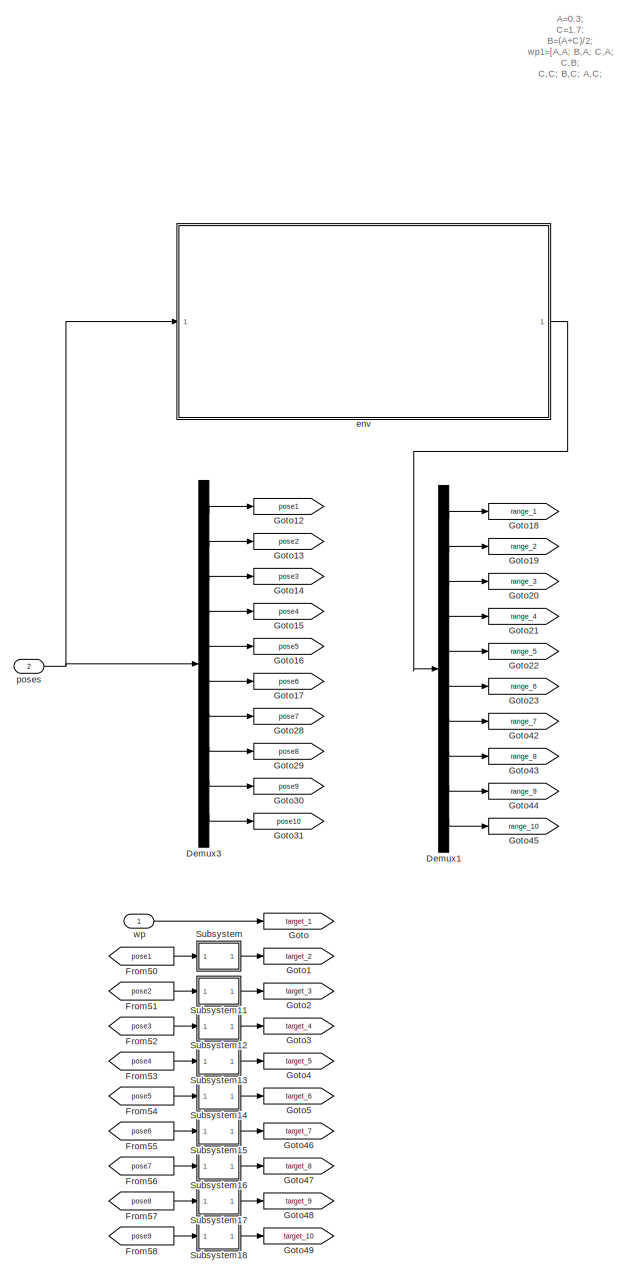
[diagram: controller - part 1/3, left side, full height]
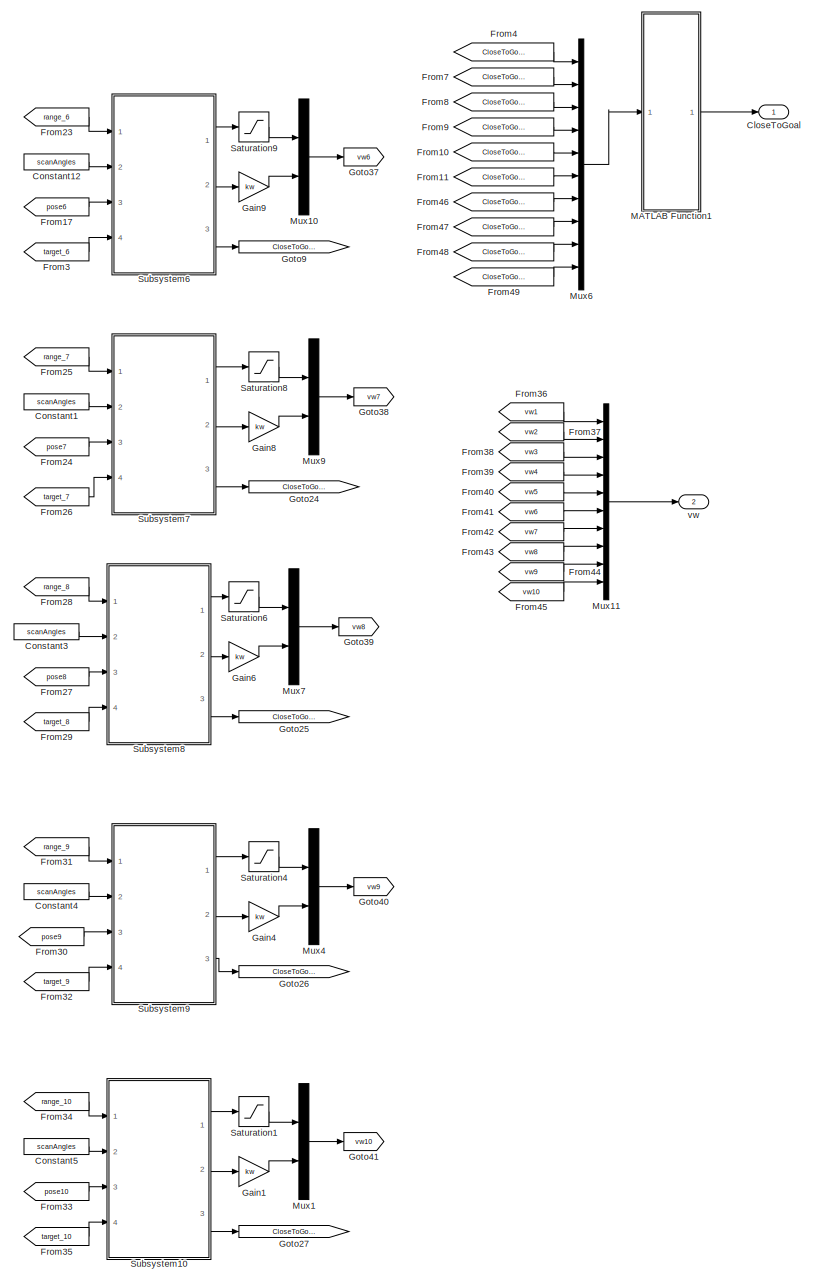
[diagram: controller - part 2/3, right side, full height]
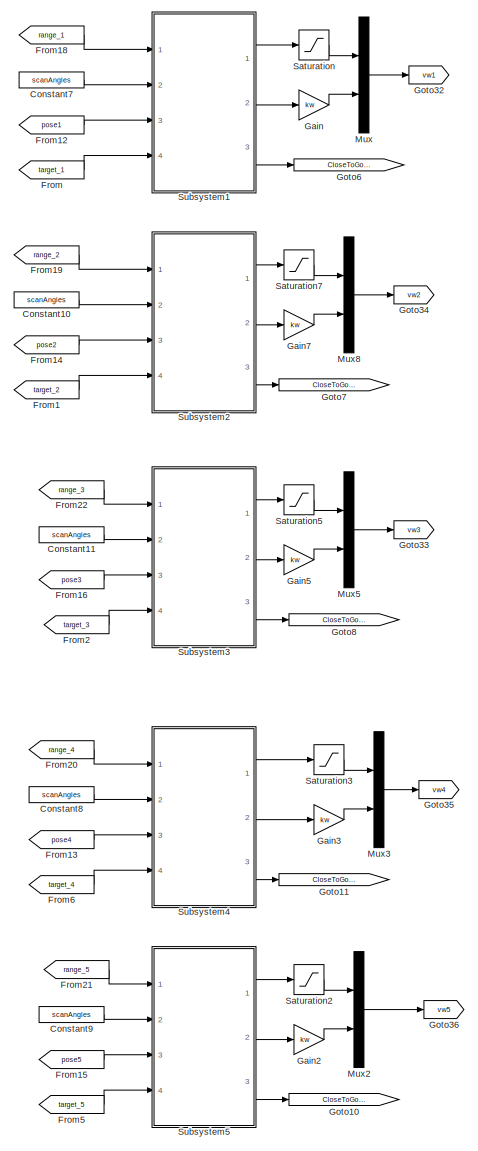
[diagram: controller - part 3/3, center side, full height]
BLOCK [SubSystem] controller
  Ports = [2, 2]
  RequestExecContextInheritance = off
BLOCK [Outport] controller/CloseToGoal
BLOCK [Constant] controller/Constant1
  Value = scanAngles
BLOCK [Constant] controller/Constant10
  Value = scanAngles
BLOCK [Constant] controller/Constant11
  Value = scanAngles
BLOCK [Constant] controller/Constant12
  Value = scanAngles
BLOCK [Constant] controller/Constant3
  Value = scanAngles
BLOCK [Constant] controller/Constant4
  Value = scanAngles
BLOCK [Constant] controller/Constant5
  Value = scanAngles
BLOCK [Constant] controller/Constant7
  Value = scanAngles
BLOCK [Constant] controller/Constant8
  Value = scanAngles
BLOCK [Constant] controller/Constant9
  Value = scanAngles
BLOCK [Demux] controller/Demux1
  Outputs = 10
  Ports = [1, 10]
BLOCK [Demux] controller/Demux3
  Outputs = 10
  Ports = [1, 10]
BLOCK [From] controller/From
  GotoTag = target_1
BLOCK [From] controller/From1
  GotoTag = target_2
BLOCK [From] controller/From10
  GotoTag = CloseToGoal_5
BLOCK [From] controller/From11
  GotoTag = CloseToGoal_6
BLOCK [From] controller/From12
  GotoTag = pose1
BLOCK [From] controller/From13
  GotoTag = pose4
BLOCK [From] controller/From14
  GotoTag = pose2
BLOCK [From] controller/From15
  GotoTag = pose5
BLOCK [From] controller/From16
  GotoTag = pose3
BLOCK [From] controller/From17
  GotoTag = pose6
BLOCK [From] controller/From18
  GotoTag = range_1
BLOCK [From] controller/From19
  GotoTag = range_2
BLOCK [From] controller/From2
  GotoTag = target_3
BLOCK [From] controller/From20
  GotoTag = range_4
BLOCK [From] controller/From21
  GotoTag = range_5
BLOCK [From] controller/From22
  GotoTag = range_3
BLOCK [From] controller/From23
  GotoTag = range_6
BLOCK [From] controller/From24
  GotoTag = pose7
BLOCK [From] controller/From25
  GotoTag = range_7
BLOCK [From] controller/From26
  GotoTag = target_7
BLOCK [From] controller/From27
  GotoTag = pose8
BLOCK [From] controller/From28
  GotoTag = range_8
BLOCK [From] controller/From29
  GotoTag = target_8
BLOCK [From] controller/From3
  GotoTag = target_6
BLOCK [From] controller/From30
  GotoTag = pose9
BLOCK [From] controller/From31
  GotoTag = range_9
BLOCK [From] controller/From32
  GotoTag = target_9
BLOCK [From] controller/From33
  GotoTag = pose10
BLOCK [From] controller/From34
  GotoTag = range_10
BLOCK [From] controller/From35
  GotoTag = target_10
BLOCK [From] controller/From36
  GotoTag = vw1
BLOCK [From] controller/From37
  GotoTag = vw2
BLOCK [From] controller/From38
  GotoTag = vw3
BLOCK [From] controller/From39
  GotoTag = vw4
BLOCK [From] controller/From4
  GotoTag = CloseToGoal_1
BLOCK [From] controller/From40
  GotoTag = vw5
BLOCK [From] controller/From41
  GotoTag = vw6
BLOCK [From] controller/From42
  GotoTag = vw7
BLOCK [From] controller/From43
  GotoTag = vw8
BLOCK [From] controller/From44
  GotoTag = vw9
BLOCK [From] controller/From45
  GotoTag = vw10
BLOCK [From] controller/From46
  GotoTag = CloseToGoal_7
BLOCK [From] controller/From47
  GotoTag = CloseToGoal_8
BLOCK [From] controller/From48
  GotoTag = CloseToGoal_9
BLOCK [From] controller/From49
  GotoTag = CloseToGoal_10
BLOCK [From] controller/From5
  GotoTag = target_5
BLOCK [From] controller/From50
  GotoTag = pose1
BLOCK [From] controller/From51
  GotoTag = pose2
BLOCK [From] controller/From52
  GotoTag = pose3
BLOCK [From] controller/From53
  GotoTag = pose4
BLOCK [From] controller/From54
  GotoTag = pose5
BLOCK [From] controller/From55
  GotoTag = pose6
BLOCK [From] controller/From56
  GotoTag = pose7
BLOCK [From] controller/From57
  GotoTag = pose8
BLOCK [From] controller/From58
  GotoTag = pose9
BLOCK [From] controller/From6
  GotoTag = target_4
BLOCK [From] controller/From7
  GotoTag = CloseToGoal_2
BLOCK [From] controller/From8
  GotoTag = CloseToGoal_3
BLOCK [From] controller/From9
  GotoTag = CloseToGoal_4
BLOCK [Gain] controller/Gain
  Gain = kw
BLOCK [Gain] controller/Gain1
  Gain = kw
BLOCK [Gain] controller/Gain2
  Gain = kw
BLOCK [Gain] controller/Gain3
  Gain = kw
BLOCK [Gain] controller/Gain4
  Gain = kw
BLOCK [Gain] controller/Gain5
  Gain = kw
BLOCK [Gain] controller/Gain6
  Gain = kw
BLOCK [Gain] controller/Gain7
  Gain = kw
BLOCK [Gain] controller/Gain8
  Gain = kw
BLOCK [Gain] controller/Gain9
  Gain = kw
BLOCK [Goto] controller/Goto
  GotoTag = target_1
BLOCK [Goto] controller/Goto1
  GotoTag = target_2
BLOCK [Goto] controller/Goto10
  GotoTag = CloseToGoal_5
BLOCK [Goto] controller/Goto11
  GotoTag = CloseToGoal_4
BLOCK [Goto] controller/Goto12
  GotoTag = pose1
BLOCK [Goto] controller/Goto13
  GotoTag = pose2
BLOCK [Goto] controller/Goto14
  GotoTag = pose3
BLOCK [Goto] controller/Goto15
  GotoTag = pose4
BLOCK [Goto] controller/Goto16
  GotoTag = pose5
BLOCK [Goto] controller/Goto17
  GotoTag = pose6
BLOCK [Goto] controller/Goto18
  GotoTag = range_1
BLOCK [Goto] controller/Goto19
  GotoTag = range_2
BLOCK [Goto] controller/Goto2
  GotoTag = target_3
BLOCK [Goto] controller/Goto20
  GotoTag = range_3
BLOCK [Goto] controller/Goto21
  GotoTag = range_4
BLOCK [Goto] controller/Goto22
  GotoTag = range_5
BLOCK [Goto] controller/Goto23
  GotoTag = range_6
BLOCK [Goto] controller/Goto24
  GotoTag = CloseToGoal_7
BLOCK [Goto] controller/Goto25
  GotoTag = CloseToGoal_8
BLOCK [Goto] controller/Goto26
  GotoTag = CloseToGoal_9
BLOCK [Goto] controller/Goto27
  GotoTag = CloseToGoal_10
BLOCK [Goto] controller/Goto28
  GotoTag = pose7
BLOCK [Goto] controller/Goto29
  GotoTag = pose8
BLOCK [Goto] controller/Goto3
  GotoTag = target_4
BLOCK [Goto] controller/Goto30
  GotoTag = pose9
BLOCK [Goto] controller/Goto31
  GotoTag = pose10
BLOCK [Goto] controller/Goto32
  GotoTag = vw1
BLOCK [Goto] controller/Goto33
  GotoTag = vw3
BLOCK [Goto] controller/Goto34
  GotoTag = vw2
BLOCK [Goto] controller/Goto35
  GotoTag = vw4
BLOCK [Goto] controller/Goto36
  GotoTag = vw5
BLOCK [Goto] controller/Goto37
  GotoTag = vw6
BLOCK [Goto] controller/Goto38
  GotoTag = vw7
BLOCK [Goto] controller/Goto39
  GotoTag = vw8
BLOCK [Goto] controller/Goto4
  GotoTag = target_5
BLOCK [Goto] controller/Goto40
  GotoTag = vw9
BLOCK [Goto] controller/Goto41
  GotoTag = vw10
BLOCK [Goto] controller/Goto42
  GotoTag = range_7
BLOCK [Goto] controller/Goto43
  GotoTag = range_8
BLOCK [Goto] controller/Goto44
  GotoTag = range_9
BLOCK [Goto] controller/Goto45
  GotoTag = range_10
BLOCK [Goto] controller/Goto46
  GotoTag = target_7
BLOCK [Goto] controller/Goto47
  GotoTag = target_8
BLOCK [Goto] controller/Goto48
  GotoTag = target_9
BLOCK [Goto] controller/Goto49
  GotoTag = target_10
BLOCK [Goto] controller/Goto5
  GotoTag = target_6
BLOCK [Goto] controller/Goto6
  GotoTag = CloseToGoal_1
BLOCK [Goto] controller/Goto7
  GotoTag = CloseToGoal_2
BLOCK [Goto] controller/Goto8
  GotoTag = CloseToGoal_3
BLOCK [Goto] controller/Goto9
  GotoTag = CloseToGoal_6
BLOCK [SubSystem] controller/MATLAB Function1
  ErrorFcn = Stateflow.Translate.translate
  PermitHierarchicalResolution = ExplicitOnly
  Ports = [1, 1]
  RequestExecContextInheritance = off
  SFBlockType = MATLAB Function
  TreatAsAtomicUnit = on
BLOCK [Demux] controller/MATLAB Function1/ Demux 
  Outputs = 1
  Ports = [1, 1]
BLOCK [S-Function] controller/MATLAB Function1/ SFunction 
  EnableBusSupport = on
  FunctionName = sf_sfun
  PortCounts = [1 2]
  Ports = [1, 2]
  SFcnIsStateOwnerBlock = off
  SFunctionDeploymentMode = off
  Tag = Stateflow S-Function 26
BLOCK [Terminator] controller/MATLAB Function1/ Terminator 
BLOCK [Inport] controller/MATLAB Function1/in
BLOCK [Outport] controller/MATLAB Function1/out
BLOCK [Mux] controller/Mux
  DisplayOption = bar
  Inputs = 2
  Ports = [2, 1]
BLOCK [Mux] controller/Mux1
  DisplayOption = bar
  Inputs = 2
  Ports = [2, 1]
BLOCK [Mux] controller/Mux10
  DisplayOption = bar
  Inputs = 2
  Ports = [2, 1]
BLOCK [Mux] controller/Mux11
  DisplayOption = bar
  Inputs = 10
  Ports = [10, 1]
BLOCK [Mux] controller/Mux2
  DisplayOption = bar
  Inputs = 2
  Ports = [2, 1]
BLOCK [Mux] controller/Mux3
  DisplayOption = bar
  Inputs = 2
  Ports = [2, 1]
BLOCK [Mux] controller/Mux4
  DisplayOption = bar
  Inputs = 2
  Ports = [2, 1]
BLOCK [Mux] controller/Mux5
  DisplayOption = bar
  Inputs = 2
  Ports = [2, 1]
BLOCK [Mux] controller/Mux6
  DisplayOption = bar
  Inputs = 10
  Ports = [10, 1]
BLOCK [Mux] controller/Mux7
  DisplayOption = bar
  Inputs = 2
  Ports = [2, 1]
BLOCK [Mux] controller/Mux8
  DisplayOption = bar
  Inputs = 2
  Ports = [2, 1]
BLOCK [Mux] controller/Mux9
  DisplayOption = bar
  Inputs = 2
  Ports = [2, 1]
BLOCK [Saturate] controller/Saturation
  LowerLimit = 0
  UpperLimit = 1
BLOCK [Saturate] controller/Saturation1
  LowerLimit = 0
  UpperLimit = 1
BLOCK [Saturate] controller/Saturation2
  LowerLimit = 0
  UpperLimit = 1
BLOCK [Saturate] controller/Saturation3
  LowerLimit = 0
  UpperLimit = 1
BLOCK [Saturate] controller/Saturation4
  LowerLimit = 0
  UpperLimit = 1
BLOCK [Saturate] controller/Saturation5
  LowerLimit = 0
  UpperLimit = 1
BLOCK [Saturate] controller/Saturation6
  LowerLimit = 0
  UpperLimit = 1
BLOCK [Saturate] controller/Saturation7
  LowerLimit = 0
  UpperLimit = 1
BLOCK [Saturate] controller/Saturation8
  LowerLimit = 0
  UpperLimit = 1
BLOCK [Saturate] controller/Saturation9
  LowerLimit = 0
  UpperLimit = 1
BLOCK [SubSystem] controller/Subsystem
  Ports = [1, 1]
  RequestExecContextInheritance = off
BLOCK [Demux] controller/Subsystem/Demux1
  Outputs = 3
  Ports = [1, 3]
BLOCK [Inport] controller/Subsystem/In1
BLOCK [Mux] controller/Subsystem/Mux5
  DisplayOption = bar
  Inputs = 2
  Ports = [2, 1]
BLOCK [Outport] controller/Subsystem/Out1
BLOCK [Reshape] controller/Subsystem/Reshape
  OutputDimensionality = Customize
  OutputDimensions = [1,2]
  Ports = [1, 1]
BLOCK [Terminator] controller/Subsystem/Terminator
BLOCK [SubSystem] controller/Subsystem1
  Ports = [4, 3]
  RequestExecContextInheritance = off
BLOCK [SubSystem] controller/Subsystem1/Adjust Velocities to Avoid Obstacles
  Ports = [5, 2]
  RequestExecContextInheritance = off
BLOCK [Inport] controller/Subsystem1/Adjust Velocities to Avoid Obstacles/Angles
  Port = 2
BLOCK [If] controller/Subsystem1/Adjust Velocities to Avoid Obstacles/If
  IfExpression = u1 == 1
  Ports = [1, 2]
BLOCK [Merge] controller/Subsystem1/Adjust Velocities to Avoid Obstacles/Merge
  Ports = [2, 1]
BLOCK [Merge] controller/Subsystem1/Adjust Velocities to Avoid Obstacles/Merge1
  Ports = [2, 1]
BLOCK [SubSystem] controller/Subsystem1/Adjust Velocities to Avoid Obstacles/Path Following
  Ports = [3, 2, 0, 0, 0, 0, 0, 1]
  RequestExecContextInheritance = off
  TreatAsAtomicUnit = on
BLOCK [ActionPort] controller/Subsystem1/Adjust Velocities to Avoid Obstacles/Path Following/Action Port
  ActionPortLabel = else
BLOCK [Inport] controller/Subsystem1/Adjust Velocities to Avoid Obstacles/Path Following/AngularVelocity
  Port = 3
BLOCK [SubSystem] controller/Subsystem1/Adjust Velocities to Avoid Obstacles/Path Following/Compute Angular Velocity
  ErrorFcn = Stateflow.Translate.translate
  PermitHierarchicalResolution = ExplicitOnly
  Ports = [2, 1]
  RequestExecContextInheritance = off
  SFBlockType = MATLAB Function
  TreatAsAtomicUnit = on
BLOCK [Demux] controller/Subsystem1/Adjust Velocities to Avoid Obstacles/Path Following/Compute Angular Velocity/ Demux 
  Outputs = 1
  Ports = [1, 1]
BLOCK [S-Function] controller/Subsystem1/Adjust Velocities to Avoid Obstacles/Path Following/Compute Angular Velocity/ SFunction 
  EnableBusSupport = on
  FunctionName = sf_sfun
  PortCounts = [2 2]
  Ports = [2, 2]
  SFcnIsStateOwnerBlock = off
  SFunctionDeploymentMode = off
  Tag = Stateflow S-Function 4
BLOCK [Terminator] controller/Subsystem1/Adjust Velocities to Avoid Obstacles/Path Following/Compute Angular Velocity/ Terminator 
BLOCK [Inport] controller/Subsystem1/Adjust Velocities to Avoid Obstacles/Path Following/Compute Angular Velocity/steeringDir
BLOCK [Outport] controller/Subsystem1/Adjust Velocities to Avoid Obstacles/Path Following/Compute Angular Velocity/w
  VectorParamsAs1DForOutWhenUnconnected = off
BLOCK [Inport] controller/Subsystem1/Adjust Velocities to Avoid Obstacles/Path Following/Compute Angular Velocity/wMax
  Port = 2
BLOCK [Constant] controller/Subsystem1/Adjust Velocities to Avoid Obstacles/Path Following/Constant
  Value = 0
BLOCK [Gain] controller/Subsystem1/Adjust Velocities to Avoid Obstacles/Path Following/Gain
  Gain = -kv
BLOCK [Constant] controller/Subsystem1/Adjust Velocities to Avoid Obstacles/Path Following/MaxAngularVelocity
BLOCK [Inport] controller/Subsystem1/Adjust Velocities to Avoid Obstacles/Path Following/SteeringDirection
  Port = 2
BLOCK [Sum] controller/Subsystem1/Adjust Velocities to Avoid Obstacles/Path Following/Subtract
  IconShape = rectangular
  Inputs = +-
  Ports = [2, 1]
BLOCK [Inport] controller/Subsystem1/Adjust Velocities to Avoid Obstacles/Path Following/V
BLOCK [Outport] controller/Subsystem1/Adjust Velocities to Avoid Obstacles/Path Following/dV
  VectorParamsAs1DForOutWhenUnconnected = off
BLOCK [Outport] controller/Subsystem1/Adjust Velocities to Avoid Obstacles/Path Following/dW
  Port = 2
  VectorParamsAs1DForOutWhenUnconnected = off
BLOCK [Inport] controller/Subsystem1/Adjust Velocities to Avoid Obstacles/Ranges
BLOCK [SubSystem] controller/Subsystem1/Adjust Velocities to Avoid Obstacles/Recovery
  Ports = [2, 2, 0, 0, 0, 0, 0, 1]
  RequestExecContextInheritance = off
  TreatAsAtomicUnit = on
BLOCK [ActionPort] controller/Subsystem1/Adjust Velocities to Avoid Obstacles/Recovery/Action Port
  ActionPortLabel = if(u1 == 1)
BLOCK [Inport] controller/Subsystem1/Adjust Velocities to Avoid Obstacles/Recovery/AngularVelocity
  Port = 2
BLOCK [Constant] controller/Subsystem1/Adjust Velocities to Avoid Obstacles/Recovery/Constant1
  Value = recovery_w
BLOCK [Gain] controller/Subsystem1/Adjust Velocities to Avoid Obstacles/Recovery/Gain
  Gain = -1
BLOCK [Inport] controller/Subsystem1/Adjust Velocities to Avoid Obstacles/Recovery/LinearVelocity
BLOCK [Sum] controller/Subsystem1/Adjust Velocities to Avoid Obstacles/Recovery/Subtract
  IconShape = rectangular
  Inputs = +-
  Ports = [2, 1]
BLOCK [Outport] controller/Subsystem1/Adjust Velocities to Avoid Obstacles/Recovery/dV
  VectorParamsAs1DForOutWhenUnconnected = off
BLOCK [Outport] controller/Subsystem1/Adjust Velocities to Avoid Obstacles/Recovery/dW
  Port = 2
  VectorParamsAs1DForOutWhenUnconnected = off
BLOCK [RelationalOperator] controller/Subsystem1/Adjust Velocities to Avoid Obstacles/Relational Operator
  InputSameDT = off
  Operator = isNaN
  OutDataTypeStr = boolean
  Ports = [1, 1]
  RndMeth = Simplest
BLOCK [Inport] controller/Subsystem1/Adjust Velocities to Avoid Obstacles/TargetDir
  Port = 3
BLOCK [Inport] controller/Subsystem1/Adjust Velocities to Avoid Obstacles/V
  Port = 4
BLOCK [Reference] controller/Subsystem1/Adjust Velocities to Avoid Obstacles/Vector Field Histogram  REF=robotalgslib/Vector Field Histogram
  Ports = [3, 1]
  SourceBlock = robotalgslib/Vector Field Histogram
  SourceProductBaseCode = NV,RO
  SourceType = nav.slalgs.internal.VectorFieldHistogram
BLOCK [Inport] controller/Subsystem1/Adjust Velocities to Avoid Obstacles/W
  Port = 5
BLOCK [Outport] controller/Subsystem1/Adjust Velocities to Avoid Obstacles/dV
  VectorParamsAs1DForOutWhenUnconnected = off
BLOCK [Outport] controller/Subsystem1/Adjust Velocities to Avoid Obstacles/dW
  Port = 2
  VectorParamsAs1DForOutWhenUnconnected = off
BLOCK [Inport] controller/Subsystem1/Angels
  Port = 2
BLOCK [Outport] controller/Subsystem1/CloseToGoal
  Port = 3
BLOCK [SubSystem] controller/Subsystem1/Compute Velocity and Heading for Path following
  Ports = [2, 4]
  RequestExecContextInheritance = off
BLOCK [SubSystem] controller/Subsystem1/Compute Velocity and Heading for Path following/ Extract Goal
  ErrorFcn = Stateflow.Translate.translate
  PermitHierarchicalResolution = ExplicitOnly
  Ports = [1, 1]
  RequestExecContextInheritance = off
  SFBlockType = MATLAB Function
  TreatAsAtomicUnit = on
BLOCK [Demux] controller/Subsystem1/Compute Velocity and Heading for Path following/ Extract Goal/ Demux 
  Outputs = 1
  Ports = [1, 1]
BLOCK [S-Function] controller/Subsystem1/Compute Velocity and Heading for Path following/ Extract Goal/ SFunction 
  EnableBusSupport = on
  FunctionName = sf_sfun
  PortCounts = [1 2]
  Ports = [1, 2]
  SFcnIsStateOwnerBlock = off
  SFunctionDeploymentMode = off
  Tag = Stateflow S-Function 5
BLOCK [Terminator] controller/Subsystem1/Compute Velocity and Heading for Path following/ Extract Goal/ Terminator 
BLOCK [Outport] controller/Subsystem1/Compute Velocity and Heading for Path following/ Extract Goal/Goal
  VectorParamsAs1DForOutWhenUnconnected = off
BLOCK [Inport] controller/Subsystem1/Compute Velocity and Heading for Path following/ Extract Goal/Waypoints
BLOCK [Outport] controller/Subsystem1/Compute Velocity and Heading for Path following/CloseToGoal
  Port = 4
  VectorParamsAs1DForOutWhenUnconnected = off
BLOCK [Inport] controller/Subsystem1/Compute Velocity and Heading for Path following/CurrentPose
BLOCK [DotProduct] controller/Subsystem1/Compute Velocity and Heading for Path following/Dot Product
  OutDataTypeStr = Inherit: Inherit via internal rule
BLOCK [Constant] controller/Subsystem1/Compute Velocity and Heading for Path following/GoalRadius
  Value = GoalRadius
BLOCK [Reference] controller/Subsystem1/Compute Velocity and Heading for Path following/Pure Pursuit  REF=robotalgslib/Pure Pursuit
  Ports = [2, 3]
  SourceBlock = robotalgslib/Pure Pursuit
  SourceProductBaseCode = NV,RO
  SourceType = nav.slalgs.internal.PurePursuit
BLOCK [RelationalOperator] controller/Subsystem1/Compute Velocity and Heading for Path following/Relational Operator
  InputSameDT = off
  Operator = <=
  OutDataTypeStr = boolean
  Ports = [2, 1]
  RndMeth = Simplest
BLOCK [Selector] controller/Subsystem1/Compute Velocity and Heading for Path following/Selector
  IndexOptions = Index vector (dialog)
  Indices = [1 2]
  InputPortWidth = 3
  OutputSizes = 1
  Ports = [1, 1]
BLOCK [Sqrt] controller/Subsystem1/Compute Velocity and Heading for Path following/Sqrt
BLOCK [Sum] controller/Subsystem1/Compute Velocity and Heading for Path following/Subtract
  IconShape = rectangular
  Inputs = +-
  Ports = [2, 1]
BLOCK [Outport] controller/Subsystem1/Compute Velocity and Heading for Path following/TargetDir
  VectorParamsAs1DForOutWhenUnconnected = off
BLOCK [Outport] controller/Subsystem1/Compute Velocity and Heading for Path following/V
  Port = 2
  VectorParamsAs1DForOutWhenUnconnected = off
BLOCK [Outport] controller/Subsystem1/Compute Velocity and Heading for Path following/W
  Port = 3
  VectorParamsAs1DForOutWhenUnconnected = off
BLOCK [Inport] controller/Subsystem1/Compute Velocity and Heading for Path following/Waypoints
  Port = 2
BLOCK [Constant] controller/Subsystem1/Constant1
  Value = scanAngles
BLOCK [SubSystem] controller/Subsystem1/More Info
  OpenFcn = showdemo(bdroot(gcb))
  Ports = []
  RequestExecContextInheritance = off
BLOCK [SubSystem] controller/Subsystem1/Outputs
  Ports = [5, 2]
  RequestExecContextInheritance = off
BLOCK [Sum] controller/Subsystem1/Outputs/Add
  IconShape = rectangular
  Ports = [2, 1]
BLOCK [Sum] controller/Subsystem1/Outputs/Add1
  IconShape = rectangular
  Ports = [2, 1]
BLOCK [Inport] controller/Subsystem1/Outputs/CloseToGoal
  Port = 5
BLOCK [Logic] controller/Subsystem1/Outputs/Logical Operator
  AllPortsSameDT = off
  Operator = NOT
  OutDataTypeStr = boolean
  Ports = [1, 1]
BLOCK [Product] controller/Subsystem1/Outputs/Product
  Ports = [2, 1]
BLOCK [Product] controller/Subsystem1/Outputs/Product1
  Ports = [2, 1]
BLOCK [Inport] controller/Subsystem1/Outputs/V
  Port = 3
BLOCK [Inport] controller/Subsystem1/Outputs/W
  Port = 4
BLOCK [Inport] controller/Subsystem1/Outputs/dV
BLOCK [Inport] controller/Subsystem1/Outputs/dW
  Port = 2
BLOCK [Outport] controller/Subsystem1/Outputs/v
BLOCK [Outport] controller/Subsystem1/Outputs/w
  Port = 2
BLOCK [Inport] controller/Subsystem1/Pose
  Port = 3
BLOCK [Inport] controller/Subsystem1/Ranges
BLOCK [Inport] controller/Subsystem1/WayPoints
  Port = 4
BLOCK [Outport] controller/Subsystem1/v
BLOCK [Outport] controller/Subsystem1/w
  Port = 2
BLOCK [SubSystem] controller/Subsystem10
  Ports = [4, 3]
  RequestExecContextInheritance = off
BLOCK [SubSystem] controller/Subsystem10/Adjust Velocities to Avoid Obstacles
  Ports = [5, 2]
  RequestExecContextInheritance = off
BLOCK [Inport] controller/Subsystem10/Adjust Velocities to Avoid Obstacles/Angles
  Port = 2
BLOCK [If] controller/Subsystem10/Adjust Velocities to Avoid Obstacles/If
  IfExpression = u1 == 1
  Ports = [1, 2]
BLOCK [Merge] controller/Subsystem10/Adjust Velocities to Avoid Obstacles/Merge
  Ports = [2, 1]
BLOCK [Merge] controller/Subsystem10/Adjust Velocities to Avoid Obstacles/Merge1
  Ports = [2, 1]
BLOCK [SubSystem] controller/Subsystem10/Adjust Velocities to Avoid Obstacles/Path Following
  Ports = [3, 2, 0, 0, 0, 0, 0, 1]
  RequestExecContextInheritance = off
  TreatAsAtomicUnit = on
BLOCK [ActionPort] controller/Subsystem10/Adjust Velocities to Avoid Obstacles/Path Following/Action Port
  ActionPortLabel = else
BLOCK [Inport] controller/Subsystem10/Adjust Velocities to Avoid Obstacles/Path Following/AngularVelocity
  Port = 3
BLOCK [SubSystem] controller/Subsystem10/Adjust Velocities to Avoid Obstacles/Path Following/Compute Angular Velocity
  ErrorFcn = Stateflow.Translate.translate
  PermitHierarchicalResolution = ExplicitOnly
  Ports = [2, 1]
  RequestExecContextInheritance = off
  SFBlockType = MATLAB Function
  TreatAsAtomicUnit = on
BLOCK [Demux] controller/Subsystem10/Adjust Velocities to Avoid Obstacles/Path Following/Compute Angular Velocity/ Demux 
  Outputs = 1
  Ports = [1, 1]
BLOCK [S-Function] controller/Subsystem10/Adjust Velocities to Avoid Obstacles/Path Following/Compute Angular Velocity/ SFunction 
  EnableBusSupport = on
  FunctionName = sf_sfun
  PortCounts = [2 2]
  Ports = [2, 2]
  SFcnIsStateOwnerBlock = off
  SFunctionDeploymentMode = off
  Tag = Stateflow S-Function 33
BLOCK [Terminator] controller/Subsystem10/Adjust Velocities to Avoid Obstacles/Path Following/Compute Angular Velocity/ Terminator 
BLOCK [Inport] controller/Subsystem10/Adjust Velocities to Avoid Obstacles/Path Following/Compute Angular Velocity/steeringDir
BLOCK [Outport] controller/Subsystem10/Adjust Velocities to Avoid Obstacles/Path Following/Compute Angular Velocity/w
  VectorParamsAs1DForOutWhenUnconnected = off
BLOCK [Inport] controller/Subsystem10/Adjust Velocities to Avoid Obstacles/Path Following/Compute Angular Velocity/wMax
  Port = 2
BLOCK [Constant] controller/Subsystem10/Adjust Velocities to Avoid Obstacles/Path Following/Constant
  Value = 0
BLOCK [Gain] controller/Subsystem10/Adjust Velocities to Avoid Obstacles/Path Following/Gain
  Gain = -kv
BLOCK [Constant] controller/Subsystem10/Adjust Velocities to Avoid Obstacles/Path Following/MaxAngularVelocity
BLOCK [Inport] controller/Subsystem10/Adjust Velocities to Avoid Obstacles/Path Following/SteeringDirection
  Port = 2
BLOCK [Sum] controller/Subsystem10/Adjust Velocities to Avoid Obstacles/Path Following/Subtract
  IconShape = rectangular
  Inputs = +-
  Ports = [2, 1]
BLOCK [Inport] controller/Subsystem10/Adjust Velocities to Avoid Obstacles/Path Following/V
BLOCK [Outport] controller/Subsystem10/Adjust Velocities to Avoid Obstacles/Path Following/dV
  VectorParamsAs1DForOutWhenUnconnected = off
BLOCK [Outport] controller/Subsystem10/Adjust Velocities to Avoid Obstacles/Path Following/dW
  Port = 2
  VectorParamsAs1DForOutWhenUnconnected = off
BLOCK [Inport] controller/Subsystem10/Adjust Velocities to Avoid Obstacles/Ranges
BLOCK [SubSystem] controller/Subsystem10/Adjust Velocities to Avoid Obstacles/Recovery
  Ports = [2, 2, 0, 0, 0, 0, 0, 1]
  RequestExecContextInheritance = off
  TreatAsAtomicUnit = on
BLOCK [ActionPort] controller/Subsystem10/Adjust Velocities to Avoid Obstacles/Recovery/Action Port
  ActionPortLabel = if(u1 == 1)
BLOCK [Inport] controller/Subsystem10/Adjust Velocities to Avoid Obstacles/Recovery/AngularVelocity
  Port = 2
BLOCK [Constant] controller/Subsystem10/Adjust Velocities to Avoid Obstacles/Recovery/Constant1
  Value = recovery_w
BLOCK [Gain] controller/Subsystem10/Adjust Velocities to Avoid Obstacles/Recovery/Gain
  Gain = -1
BLOCK [Inport] controller/Subsystem10/Adjust Velocities to Avoid Obstacles/Recovery/LinearVelocity
BLOCK [Sum] controller/Subsystem10/Adjust Velocities to Avoid Obstacles/Recovery/Subtract
  IconShape = rectangular
  Inputs = +-
  Ports = [2, 1]
BLOCK [Outport] controller/Subsystem10/Adjust Velocities to Avoid Obstacles/Recovery/dV
  VectorParamsAs1DForOutWhenUnconnected = off
BLOCK [Outport] controller/Subsystem10/Adjust Velocities to Avoid Obstacles/Recovery/dW
  Port = 2
  VectorParamsAs1DForOutWhenUnconnected = off
BLOCK [RelationalOperator] controller/Subsystem10/Adjust Velocities to Avoid Obstacles/Relational Operator
  InputSameDT = off
  Operator = isNaN
  OutDataTypeStr = boolean
  Ports = [1, 1]
  RndMeth = Simplest
BLOCK [Inport] controller/Subsystem10/Adjust Velocities to Avoid Obstacles/TargetDir
  Port = 3
BLOCK [Inport] controller/Subsystem10/Adjust Velocities to Avoid Obstacles/V
  Port = 4
BLOCK [Reference] controller/Subsystem10/Adjust Velocities to Avoid Obstacles/Vector Field Histogram  REF=robotalgslib/Vector Field Histogram
  Ports = [3, 1]
  SourceBlock = robotalgslib/Vector Field Histogram
  SourceProductBaseCode = NV,RO
  SourceType = nav.slalgs.internal.VectorFieldHistogram
BLOCK [Inport] controller/Subsystem10/Adjust Velocities to Avoid Obstacles/W
  Port = 5
BLOCK [Outport] controller/Subsystem10/Adjust Velocities to Avoid Obstacles/dV
  VectorParamsAs1DForOutWhenUnconnected = off
BLOCK [Outport] controller/Subsystem10/Adjust Velocities to Avoid Obstacles/dW
  Port = 2
  VectorParamsAs1DForOutWhenUnconnected = off
BLOCK [Inport] controller/Subsystem10/Angels
  Port = 2
BLOCK [Outport] controller/Subsystem10/CloseToGoal
  Port = 3
BLOCK [SubSystem] controller/Subsystem10/Compute Velocity and Heading for Path following
  Ports = [2, 4]
  RequestExecContextInheritance = off
BLOCK [SubSystem] controller/Subsystem10/Compute Velocity and Heading for Path following/ Extract Goal
  ErrorFcn = Stateflow.Translate.translate
  PermitHierarchicalResolution = ExplicitOnly
  Ports = [1, 1]
  RequestExecContextInheritance = off
  SFBlockType = MATLAB Function
  TreatAsAtomicUnit = on
BLOCK [Demux] controller/Subsystem10/Compute Velocity and Heading for Path following/ Extract Goal/ Demux 
  Outputs = 1
  Ports = [1, 1]
BLOCK [S-Function] controller/Subsystem10/Compute Velocity and Heading for Path following/ Extract Goal/ SFunction 
  EnableBusSupport = on
  FunctionName = sf_sfun
  PortCounts = [1 2]
  Ports = [1, 2]
  SFcnIsStateOwnerBlock = off
  SFunctionDeploymentMode = off
  Tag = Stateflow S-Function 34
BLOCK [Terminator] controller/Subsystem10/Compute Velocity and Heading for Path following/ Extract Goal/ Terminator 
BLOCK [Outport] controller/Subsystem10/Compute Velocity and Heading for Path following/ Extract Goal/Goal
  VectorParamsAs1DForOutWhenUnconnected = off
BLOCK [Inport] controller/Subsystem10/Compute Velocity and Heading for Path following/ Extract Goal/Waypoints
BLOCK [Outport] controller/Subsystem10/Compute Velocity and Heading for Path following/CloseToGoal
  Port = 4
  VectorParamsAs1DForOutWhenUnconnected = off
BLOCK [Inport] controller/Subsystem10/Compute Velocity and Heading for Path following/CurrentPose
BLOCK [DotProduct] controller/Subsystem10/Compute Velocity and Heading for Path following/Dot Product
  OutDataTypeStr = Inherit: Inherit via internal rule
BLOCK [Constant] controller/Subsystem10/Compute Velocity and Heading for Path following/GoalRadius
  Value = GoalRadius
BLOCK [Reference] controller/Subsystem10/Compute Velocity and Heading for Path following/Pure Pursuit  REF=robotalgslib/Pure Pursuit
  Ports = [2, 3]
  SourceBlock = robotalgslib/Pure Pursuit
  SourceProductBaseCode = NV,RO
  SourceType = nav.slalgs.internal.PurePursuit
BLOCK [RelationalOperator] controller/Subsystem10/Compute Velocity and Heading for Path following/Relational Operator
  InputSameDT = off
  Operator = <=
  OutDataTypeStr = boolean
  Ports = [2, 1]
  RndMeth = Simplest
BLOCK [Selector] controller/Subsystem10/Compute Velocity and Heading for Path following/Selector
  IndexOptions = Index vector (dialog)
  Indices = [1 2]
  InputPortWidth = 3
  OutputSizes = 1
  Ports = [1, 1]
BLOCK [Sqrt] controller/Subsystem10/Compute Velocity and Heading for Path following/Sqrt
BLOCK [Sum] controller/Subsystem10/Compute Velocity and Heading for Path following/Subtract
  IconShape = rectangular
  Inputs = +-
  Ports = [2, 1]
BLOCK [Outport] controller/Subsystem10/Compute Velocity and Heading for Path following/TargetDir
  VectorParamsAs1DForOutWhenUnconnected = off
BLOCK [Outport] controller/Subsystem10/Compute Velocity and Heading for Path following/V
  Port = 2
  VectorParamsAs1DForOutWhenUnconnected = off
BLOCK [Outport] controller/Subsystem10/Compute Velocity and Heading for Path following/W
  Port = 3
  VectorParamsAs1DForOutWhenUnconnected = off
BLOCK [Inport] controller/Subsystem10/Compute Velocity and Heading for Path following/Waypoints
  Port = 2
BLOCK [Constant] controller/Subsystem10/Constant1
  Value = scanAngles
BLOCK [SubSystem] controller/Subsystem10/More Info
  OpenFcn = showdemo(bdroot(gcb))
  Ports = []
  RequestExecContextInheritance = off
BLOCK [SubSystem] controller/Subsystem10/Outputs
  Ports = [5, 2]
  RequestExecContextInheritance = off
BLOCK [Sum] controller/Subsystem10/Outputs/Add
  IconShape = rectangular
  Ports = [2, 1]
BLOCK [Sum] controller/Subsystem10/Outputs/Add1
  IconShape = rectangular
  Ports = [2, 1]
BLOCK [Inport] controller/Subsystem10/Outputs/CloseToGoal
  Port = 5
BLOCK [Logic] controller/Subsystem10/Outputs/Logical Operator
  AllPortsSameDT = off
  Operator = NOT
  OutDataTypeStr = boolean
  Ports = [1, 1]
BLOCK [Product] controller/Subsystem10/Outputs/Product
  Ports = [2, 1]
BLOCK [Product] controller/Subsystem10/Outputs/Product1
  Ports = [2, 1]
BLOCK [Inport] controller/Subsystem10/Outputs/V
  Port = 3
BLOCK [Inport] controller/Subsystem10/Outputs/W
  Port = 4
BLOCK [Inport] controller/Subsystem10/Outputs/dV
BLOCK [Inport] controller/Subsystem10/Outputs/dW
  Port = 2
BLOCK [Outport] controller/Subsystem10/Outputs/v
BLOCK [Outport] controller/Subsystem10/Outputs/w
  Port = 2
BLOCK [Inport] controller/Subsystem10/Pose
  Port = 3
BLOCK [Inport] controller/Subsystem10/Ranges
BLOCK [Inport] controller/Subsystem10/WayPoints
  Port = 4
BLOCK [Outport] controller/Subsystem10/v
BLOCK [Outport] controller/Subsystem10/w
  Port = 2
BLOCK [SubSystem] controller/Subsystem11
  Ports = [1, 1]
  RequestExecContextInheritance = off
BLOCK [Demux] controller/Subsystem11/Demux1
  Outputs = 3
  Ports = [1, 3]
BLOCK [Inport] controller/Subsystem11/In1
BLOCK [Mux] controller/Subsystem11/Mux5
  DisplayOption = bar
  Inputs = 2
  Ports = [2, 1]
BLOCK [Outport] controller/Subsystem11/Out1
BLOCK [Reshape] controller/Subsystem11/Reshape
  OutputDimensionality = Customize
  OutputDimensions = [1,2]
  Ports = [1, 1]
BLOCK [Terminator] controller/Subsystem11/Terminator
BLOCK [SubSystem] controller/Subsystem12
  Ports = [1, 1]
  RequestExecContextInheritance = off
BLOCK [Demux] controller/Subsystem12/Demux1
  Outputs = 3
  Ports = [1, 3]
BLOCK [Inport] controller/Subsystem12/In1
BLOCK [Mux] controller/Subsystem12/Mux5
  DisplayOption = bar
  Inputs = 2
  Ports = [2, 1]
BLOCK [Outport] controller/Subsystem12/Out1
BLOCK [Reshape] controller/Subsystem12/Reshape
  OutputDimensionality = Customize
  OutputDimensions = [1,2]
  Ports = [1, 1]
BLOCK [Terminator] controller/Subsystem12/Terminator
BLOCK [SubSystem] controller/Subsystem13
  Ports = [1, 1]
  RequestExecContextInheritance = off
BLOCK [Demux] controller/Subsystem13/Demux1
  Outputs = 3
  Ports = [1, 3]
BLOCK [Inport] controller/Subsystem13/In1
BLOCK [Mux] controller/Subsystem13/Mux5
  DisplayOption = bar
  Inputs = 2
  Ports = [2, 1]
BLOCK [Outport] controller/Subsystem13/Out1
BLOCK [Reshape] controller/Subsystem13/Reshape
  OutputDimensionality = Customize
  OutputDimensions = [1,2]
  Ports = [1, 1]
BLOCK [Terminator] controller/Subsystem13/Terminator
BLOCK [SubSystem] controller/Subsystem14
  Ports = [1, 1]
  RequestExecContextInheritance = off
BLOCK [Demux] controller/Subsystem14/Demux1
  Outputs = 3
  Ports = [1, 3]
BLOCK [Inport] controller/Subsystem14/In1
BLOCK [Mux] controller/Subsystem14/Mux5
  DisplayOption = bar
  Inputs = 2
  Ports = [2, 1]
BLOCK [Outport] controller/Subsystem14/Out1
BLOCK [Reshape] controller/Subsystem14/Reshape
  OutputDimensionality = Customize
  OutputDimensions = [1,2]
  Ports = [1, 1]
BLOCK [Terminator] controller/Subsystem14/Terminator
BLOCK [SubSystem] controller/Subsystem15
  Ports = [1, 1]
  RequestExecContextInheritance = off
BLOCK [Demux] controller/Subsystem15/Demux1
  Outputs = 3
  Ports = [1, 3]
BLOCK [Inport] controller/Subsystem15/In1
BLOCK [Mux] controller/Subsystem15/Mux5
  DisplayOption = bar
  Inputs = 2
  Ports = [2, 1]
BLOCK [Outport] controller/Subsystem15/Out1
BLOCK [Reshape] controller/Subsystem15/Reshape
  OutputDimensionality = Customize
  OutputDimensions = [1,2]
  Ports = [1, 1]
BLOCK [Terminator] controller/Subsystem15/Terminator
BLOCK [SubSystem] controller/Subsystem16
  Ports = [1, 1]
  RequestExecContextInheritance = off
BLOCK [Demux] controller/Subsystem16/Demux1
  Outputs = 3
  Ports = [1, 3]
BLOCK [Inport] controller/Subsystem16/In1
BLOCK [Mux] controller/Subsystem16/Mux5
  DisplayOption = bar
  Inputs = 2
  Ports = [2, 1]
BLOCK [Outport] controller/Subsystem16/Out1
BLOCK [Reshape] controller/Subsystem16/Reshape
  OutputDimensionality = Customize
  OutputDimensions = [1,2]
  Ports = [1, 1]
BLOCK [Terminator] controller/Subsystem16/Terminator
BLOCK [SubSystem] controller/Subsystem17
  Ports = [1, 1]
  RequestExecContextInheritance = off
BLOCK [Demux] controller/Subsystem17/Demux1
  Outputs = 3
  Ports = [1, 3]
BLOCK [Inport] controller/Subsystem17/In1
BLOCK [Mux] controller/Subsystem17/Mux5
  DisplayOption = bar
  Inputs = 2
  Ports = [2, 1]
BLOCK [Outport] controller/Subsystem17/Out1
BLOCK [Reshape] controller/Subsystem17/Reshape
  OutputDimensionality = Customize
  OutputDimensions = [1,2]
  Ports = [1, 1]
BLOCK [Terminator] controller/Subsystem17/Terminator
BLOCK [SubSystem] controller/Subsystem18
  Ports = [1, 1]
  RequestExecContextInheritance = off
BLOCK [Demux] controller/Subsystem18/Demux1
  Outputs = 3
  Ports = [1, 3]
BLOCK [Inport] controller/Subsystem18/In1
BLOCK [Mux] controller/Subsystem18/Mux5
  DisplayOption = bar
  Inputs = 2
  Ports = [2, 1]
BLOCK [Outport] controller/Subsystem18/Out1
BLOCK [Reshape] controller/Subsystem18/Reshape
  OutputDimensionality = Customize
  OutputDimensions = [1,2]
  Ports = [1, 1]
BLOCK [Terminator] controller/Subsystem18/Terminator
BLOCK [SubSystem] controller/Subsystem2
  Ports = [4, 3]
  RequestExecContextInheritance = off
BLOCK [SubSystem] controller/Subsystem2/Adjust Velocities to Avoid Obstacles
  Ports = [5, 2]
  RequestExecContextInheritance = off
BLOCK [Inport] controller/Subsystem2/Adjust Velocities to Avoid Obstacles/Angles
  Port = 2
BLOCK [If] controller/Subsystem2/Adjust Velocities to Avoid Obstacles/If
  IfExpression = u1 == 1
  Ports = [1, 2]
BLOCK [Merge] controller/Subsystem2/Adjust Velocities to Avoid Obstacles/Merge
  Ports = [2, 1]
BLOCK [Merge] controller/Subsystem2/Adjust Velocities to Avoid Obstacles/Merge1
  Ports = [2, 1]
BLOCK [SubSystem] controller/Subsystem2/Adjust Velocities to Avoid Obstacles/Path Following
  Ports = [3, 2, 0, 0, 0, 0, 0, 1]
  RequestExecContextInheritance = off
  TreatAsAtomicUnit = on
BLOCK [ActionPort] controller/Subsystem2/Adjust Velocities to Avoid Obstacles/Path Following/Action Port
  ActionPortLabel = else
BLOCK [Inport] controller/Subsystem2/Adjust Velocities to Avoid Obstacles/Path Following/AngularVelocity
  Port = 3
BLOCK [SubSystem] controller/Subsystem2/Adjust Velocities to Avoid Obstacles/Path Following/Compute Angular Velocity
  ErrorFcn = Stateflow.Translate.translate
  PermitHierarchicalResolution = ExplicitOnly
  Ports = [2, 1]
  RequestExecContextInheritance = off
  SFBlockType = MATLAB Function
  TreatAsAtomicUnit = on
BLOCK [Demux] controller/Subsystem2/Adjust Velocities to Avoid Obstacles/Path Following/Compute Angular Velocity/ Demux 
  Outputs = 1
  Ports = [1, 1]
BLOCK [S-Function] controller/Subsystem2/Adjust Velocities to Avoid Obstacles/Path Following/Compute Angular Velocity/ SFunction 
  EnableBusSupport = on
  FunctionName = sf_sfun
  PortCounts = [2 2]
  Ports = [2, 2]
  SFcnIsStateOwnerBlock = off
  SFunctionDeploymentMode = off
  Tag = Stateflow S-Function 6
BLOCK [Terminator] controller/Subsystem2/Adjust Velocities to Avoid Obstacles/Path Following/Compute Angular Velocity/ Terminator 
BLOCK [Inport] controller/Subsystem2/Adjust Velocities to Avoid Obstacles/Path Following/Compute Angular Velocity/steeringDir
BLOCK [Outport] controller/Subsystem2/Adjust Velocities to Avoid Obstacles/Path Following/Compute Angular Velocity/w
  VectorParamsAs1DForOutWhenUnconnected = off
BLOCK [Inport] controller/Subsystem2/Adjust Velocities to Avoid Obstacles/Path Following/Compute Angular Velocity/wMax
  Port = 2
BLOCK [Constant] controller/Subsystem2/Adjust Velocities to Avoid Obstacles/Path Following/Constant
  Value = 0
BLOCK [Gain] controller/Subsystem2/Adjust Velocities to Avoid Obstacles/Path Following/Gain
  Gain = -kv
BLOCK [Constant] controller/Subsystem2/Adjust Velocities to Avoid Obstacles/Path Following/MaxAngularVelocity
BLOCK [Inport] controller/Subsystem2/Adjust Velocities to Avoid Obstacles/Path Following/SteeringDirection
  Port = 2
BLOCK [Sum] controller/Subsystem2/Adjust Velocities to Avoid Obstacles/Path Following/Subtract
  IconShape = rectangular
  Inputs = +-
  Ports = [2, 1]
BLOCK [Inport] controller/Subsystem2/Adjust Velocities to Avoid Obstacles/Path Following/V
BLOCK [Outport] controller/Subsystem2/Adjust Velocities to Avoid Obstacles/Path Following/dV
  VectorParamsAs1DForOutWhenUnconnected = off
BLOCK [Outport] controller/Subsystem2/Adjust Velocities to Avoid Obstacles/Path Following/dW
  Port = 2
  VectorParamsAs1DForOutWhenUnconnected = off
BLOCK [Inport] controller/Subsystem2/Adjust Velocities to Avoid Obstacles/Ranges
BLOCK [SubSystem] controller/Subsystem2/Adjust Velocities to Avoid Obstacles/Recovery
  Ports = [2, 2, 0, 0, 0, 0, 0, 1]
  RequestExecContextInheritance = off
  TreatAsAtomicUnit = on
BLOCK [ActionPort] controller/Subsystem2/Adjust Velocities to Avoid Obstacles/Recovery/Action Port
  ActionPortLabel = if(u1 == 1)
BLOCK [Inport] controller/Subsystem2/Adjust Velocities to Avoid Obstacles/Recovery/AngularVelocity
  Port = 2
BLOCK [Constant] controller/Subsystem2/Adjust Velocities to Avoid Obstacles/Recovery/Constant1
  Value = recovery_w
BLOCK [Gain] controller/Subsystem2/Adjust Velocities to Avoid Obstacles/Recovery/Gain
  Gain = -1
BLOCK [Inport] controller/Subsystem2/Adjust Velocities to Avoid Obstacles/Recovery/LinearVelocity
BLOCK [Sum] controller/Subsystem2/Adjust Velocities to Avoid Obstacles/Recovery/Subtract
  IconShape = rectangular
  Inputs = +-
  Ports = [2, 1]
BLOCK [Outport] controller/Subsystem2/Adjust Velocities to Avoid Obstacles/Recovery/dV
  VectorParamsAs1DForOutWhenUnconnected = off
BLOCK [Outport] controller/Subsystem2/Adjust Velocities to Avoid Obstacles/Recovery/dW
  Port = 2
  VectorParamsAs1DForOutWhenUnconnected = off
BLOCK [RelationalOperator] controller/Subsystem2/Adjust Velocities to Avoid Obstacles/Relational Operator
  InputSameDT = off
  Operator = isNaN
  OutDataTypeStr = boolean
  Ports = [1, 1]
  RndMeth = Simplest
BLOCK [Inport] controller/Subsystem2/Adjust Velocities to Avoid Obstacles/TargetDir
  Port = 3
BLOCK [Inport] controller/Subsystem2/Adjust Velocities to Avoid Obstacles/V
  Port = 4
BLOCK [Reference] controller/Subsystem2/Adjust Velocities to Avoid Obstacles/Vector Field Histogram  REF=robotalgslib/Vector Field Histogram
  Ports = [3, 1]
  SourceBlock = robotalgslib/Vector Field Histogram
  SourceProductBaseCode = NV,RO
  SourceType = nav.slalgs.internal.VectorFieldHistogram
BLOCK [Inport] controller/Subsystem2/Adjust Velocities to Avoid Obstacles/W
  Port = 5
BLOCK [Outport] controller/Subsystem2/Adjust Velocities to Avoid Obstacles/dV
  VectorParamsAs1DForOutWhenUnconnected = off
BLOCK [Outport] controller/Subsystem2/Adjust Velocities to Avoid Obstacles/dW
  Port = 2
  VectorParamsAs1DForOutWhenUnconnected = off
BLOCK [Inport] controller/Subsystem2/Angels
  Port = 2
BLOCK [Outport] controller/Subsystem2/CloseToGoal
  Port = 3
BLOCK [SubSystem] controller/Subsystem2/Compute Velocity and Heading for Path following
  Ports = [2, 4]
  RequestExecContextInheritance = off
BLOCK [SubSystem] controller/Subsystem2/Compute Velocity and Heading for Path following/ Extract Goal
  ErrorFcn = Stateflow.Translate.translate
  PermitHierarchicalResolution = ExplicitOnly
  Ports = [1, 1]
  RequestExecContextInheritance = off
  SFBlockType = MATLAB Function
  TreatAsAtomicUnit = on
BLOCK [Demux] controller/Subsystem2/Compute Velocity and Heading for Path following/ Extract Goal/ Demux 
  Outputs = 1
  Ports = [1, 1]
BLOCK [S-Function] controller/Subsystem2/Compute Velocity and Heading for Path following/ Extract Goal/ SFunction 
  EnableBusSupport = on
  FunctionName = sf_sfun
  PortCounts = [1 2]
  Ports = [1, 2]
  SFcnIsStateOwnerBlock = off
  SFunctionDeploymentMode = off
  Tag = Stateflow S-Function 7
BLOCK [Terminator] controller/Subsystem2/Compute Velocity and Heading for Path following/ Extract Goal/ Terminator 
BLOCK [Outport] controller/Subsystem2/Compute Velocity and Heading for Path following/ Extract Goal/Goal
  VectorParamsAs1DForOutWhenUnconnected = off
BLOCK [Inport] controller/Subsystem2/Compute Velocity and Heading for Path following/ Extract Goal/Waypoints
BLOCK [Outport] controller/Subsystem2/Compute Velocity and Heading for Path following/CloseToGoal
  Port = 4
  VectorParamsAs1DForOutWhenUnconnected = off
BLOCK [Inport] controller/Subsystem2/Compute Velocity and Heading for Path following/CurrentPose
BLOCK [DotProduct] controller/Subsystem2/Compute Velocity and Heading for Path following/Dot Product
  OutDataTypeStr = Inherit: Inherit via internal rule
BLOCK [Constant] controller/Subsystem2/Compute Velocity and Heading for Path following/GoalRadius
  Value = GoalRadius
BLOCK [Reference] controller/Subsystem2/Compute Velocity and Heading for Path following/Pure Pursuit  REF=robotalgslib/Pure Pursuit
  Ports = [2, 3]
  SourceBlock = robotalgslib/Pure Pursuit
  SourceProductBaseCode = NV,RO
  SourceType = nav.slalgs.internal.PurePursuit
BLOCK [RelationalOperator] controller/Subsystem2/Compute Velocity and Heading for Path following/Relational Operator
  InputSameDT = off
  Operator = <=
  OutDataTypeStr = boolean
  Ports = [2, 1]
  RndMeth = Simplest
BLOCK [Selector] controller/Subsystem2/Compute Velocity and Heading for Path following/Selector
  IndexOptions = Index vector (dialog)
  Indices = [1 2]
  InputPortWidth = 3
  OutputSizes = 1
  Ports = [1, 1]
BLOCK [Sqrt] controller/Subsystem2/Compute Velocity and Heading for Path following/Sqrt
BLOCK [Sum] controller/Subsystem2/Compute Velocity and Heading for Path following/Subtract
  IconShape = rectangular
  Inputs = +-
  Ports = [2, 1]
BLOCK [Outport] controller/Subsystem2/Compute Velocity and Heading for Path following/TargetDir
  VectorParamsAs1DForOutWhenUnconnected = off
BLOCK [Outport] controller/Subsystem2/Compute Velocity and Heading for Path following/V
  Port = 2
  VectorParamsAs1DForOutWhenUnconnected = off
BLOCK [Outport] controller/Subsystem2/Compute Velocity and Heading for Path following/W
  Port = 3
  VectorParamsAs1DForOutWhenUnconnected = off
BLOCK [Inport] controller/Subsystem2/Compute Velocity and Heading for Path following/Waypoints
  Port = 2
BLOCK [Constant] controller/Subsystem2/Constant1
  Value = scanAngles
BLOCK [SubSystem] controller/Subsystem2/More Info
  OpenFcn = showdemo(bdroot(gcb))
  Ports = []
  RequestExecContextInheritance = off
BLOCK [SubSystem] controller/Subsystem2/Outputs
  Ports = [5, 2]
  RequestExecContextInheritance = off
BLOCK [Sum] controller/Subsystem2/Outputs/Add
  IconShape = rectangular
  Ports = [2, 1]
BLOCK [Sum] controller/Subsystem2/Outputs/Add1
  IconShape = rectangular
  Ports = [2, 1]
BLOCK [Inport] controller/Subsystem2/Outputs/CloseToGoal
  Port = 5
BLOCK [Logic] controller/Subsystem2/Outputs/Logical Operator
  AllPortsSameDT = off
  Operator = NOT
  OutDataTypeStr = boolean
  Ports = [1, 1]
BLOCK [Product] controller/Subsystem2/Outputs/Product
  Ports = [2, 1]
BLOCK [Product] controller/Subsystem2/Outputs/Product1
  Ports = [2, 1]
BLOCK [Inport] controller/Subsystem2/Outputs/V
  Port = 3
BLOCK [Inport] controller/Subsystem2/Outputs/W
  Port = 4
BLOCK [Inport] controller/Subsystem2/Outputs/dV
BLOCK [Inport] controller/Subsystem2/Outputs/dW
  Port = 2
BLOCK [Outport] controller/Subsystem2/Outputs/v
BLOCK [Outport] controller/Subsystem2/Outputs/w
  Port = 2
BLOCK [Inport] controller/Subsystem2/Pose
  Port = 3
BLOCK [Inport] controller/Subsystem2/Ranges
BLOCK [Inport] controller/Subsystem2/WayPoints
  Port = 4
BLOCK [Outport] controller/Subsystem2/v
BLOCK [Outport] controller/Subsystem2/w
  Port = 2
BLOCK [SubSystem] controller/Subsystem3
  Ports = [4, 3]
  RequestExecContextInheritance = off
BLOCK [SubSystem] controller/Subsystem3/Adjust Velocities to Avoid Obstacles
  Ports = [5, 2]
  RequestExecContextInheritance = off
BLOCK [Inport] controller/Subsystem3/Adjust Velocities to Avoid Obstacles/Angles
  Port = 2
BLOCK [If] controller/Subsystem3/Adjust Velocities to Avoid Obstacles/If
  IfExpression = u1 == 1
  Ports = [1, 2]
BLOCK [Merge] controller/Subsystem3/Adjust Velocities to Avoid Obstacles/Merge
  Ports = [2, 1]
BLOCK [Merge] controller/Subsystem3/Adjust Velocities to Avoid Obstacles/Merge1
  Ports = [2, 1]
BLOCK [SubSystem] controller/Subsystem3/Adjust Velocities to Avoid Obstacles/Path Following
  Ports = [3, 2, 0, 0, 0, 0, 0, 1]
  RequestExecContextInheritance = off
  TreatAsAtomicUnit = on
BLOCK [ActionPort] controller/Subsystem3/Adjust Velocities to Avoid Obstacles/Path Following/Action Port
  ActionPortLabel = else
BLOCK [Inport] controller/Subsystem3/Adjust Velocities to Avoid Obstacles/Path Following/AngularVelocity
  Port = 3
BLOCK [SubSystem] controller/Subsystem3/Adjust Velocities to Avoid Obstacles/Path Following/Compute Angular Velocity
  ErrorFcn = Stateflow.Translate.translate
  PermitHierarchicalResolution = ExplicitOnly
  Ports = [2, 1]
  RequestExecContextInheritance = off
  SFBlockType = MATLAB Function
  TreatAsAtomicUnit = on
BLOCK [Demux] controller/Subsystem3/Adjust Velocities to Avoid Obstacles/Path Following/Compute Angular Velocity/ Demux 
  Outputs = 1
  Ports = [1, 1]
BLOCK [S-Function] controller/Subsystem3/Adjust Velocities to Avoid Obstacles/Path Following/Compute Angular Velocity/ SFunction 
  EnableBusSupport = on
  FunctionName = sf_sfun
  PortCounts = [2 2]
  Ports = [2, 2]
  SFcnIsStateOwnerBlock = off
  SFunctionDeploymentMode = off
  Tag = Stateflow S-Function 8
BLOCK [Terminator] controller/Subsystem3/Adjust Velocities to Avoid Obstacles/Path Following/Compute Angular Velocity/ Terminator 
BLOCK [Inport] controller/Subsystem3/Adjust Velocities to Avoid Obstacles/Path Following/Compute Angular Velocity/steeringDir
BLOCK [Outport] controller/Subsystem3/Adjust Velocities to Avoid Obstacles/Path Following/Compute Angular Velocity/w
  VectorParamsAs1DForOutWhenUnconnected = off
BLOCK [Inport] controller/Subsystem3/Adjust Velocities to Avoid Obstacles/Path Following/Compute Angular Velocity/wMax
  Port = 2
BLOCK [Constant] controller/Subsystem3/Adjust Velocities to Avoid Obstacles/Path Following/Constant
  Value = 0
BLOCK [Gain] controller/Subsystem3/Adjust Velocities to Avoid Obstacles/Path Following/Gain
  Gain = -kv
BLOCK [Constant] controller/Subsystem3/Adjust Velocities to Avoid Obstacles/Path Following/MaxAngularVelocity
BLOCK [Inport] controller/Subsystem3/Adjust Velocities to Avoid Obstacles/Path Following/SteeringDirection
  Port = 2
BLOCK [Sum] controller/Subsystem3/Adjust Velocities to Avoid Obstacles/Path Following/Subtract
  IconShape = rectangular
  Inputs = +-
  Ports = [2, 1]
BLOCK [Inport] controller/Subsystem3/Adjust Velocities to Avoid Obstacles/Path Following/V
BLOCK [Outport] controller/Subsystem3/Adjust Velocities to Avoid Obstacles/Path Following/dV
  VectorParamsAs1DForOutWhenUnconnected = off
BLOCK [Outport] controller/Subsystem3/Adjust Velocities to Avoid Obstacles/Path Following/dW
  Port = 2
  VectorParamsAs1DForOutWhenUnconnected = off
BLOCK [Inport] controller/Subsystem3/Adjust Velocities to Avoid Obstacles/Ranges
BLOCK [SubSystem] controller/Subsystem3/Adjust Velocities to Avoid Obstacles/Recovery
  Ports = [2, 2, 0, 0, 0, 0, 0, 1]
  RequestExecContextInheritance = off
  TreatAsAtomicUnit = on
BLOCK [ActionPort] controller/Subsystem3/Adjust Velocities to Avoid Obstacles/Recovery/Action Port
  ActionPortLabel = if(u1 == 1)
BLOCK [Inport] controller/Subsystem3/Adjust Velocities to Avoid Obstacles/Recovery/AngularVelocity
  Port = 2
BLOCK [Constant] controller/Subsystem3/Adjust Velocities to Avoid Obstacles/Recovery/Constant1
  Value = recovery_w
BLOCK [Gain] controller/Subsystem3/Adjust Velocities to Avoid Obstacles/Recovery/Gain
  Gain = -1
BLOCK [Inport] controller/Subsystem3/Adjust Velocities to Avoid Obstacles/Recovery/LinearVelocity
BLOCK [Sum] controller/Subsystem3/Adjust Velocities to Avoid Obstacles/Recovery/Subtract
  IconShape = rectangular
  Inputs = +-
  Ports = [2, 1]
BLOCK [Outport] controller/Subsystem3/Adjust Velocities to Avoid Obstacles/Recovery/dV
  VectorParamsAs1DForOutWhenUnconnected = off
BLOCK [Outport] controller/Subsystem3/Adjust Velocities to Avoid Obstacles/Recovery/dW
  Port = 2
  VectorParamsAs1DForOutWhenUnconnected = off
BLOCK [RelationalOperator] controller/Subsystem3/Adjust Velocities to Avoid Obstacles/Relational Operator
  InputSameDT = off
  Operator = isNaN
  OutDataTypeStr = boolean
  Ports = [1, 1]
  RndMeth = Simplest
BLOCK [Inport] controller/Subsystem3/Adjust Velocities to Avoid Obstacles/TargetDir
  Port = 3
BLOCK [Inport] controller/Subsystem3/Adjust Velocities to Avoid Obstacles/V
  Port = 4
BLOCK [Reference] controller/Subsystem3/Adjust Velocities to Avoid Obstacles/Vector Field Histogram  REF=robotalgslib/Vector Field Histogram
  Ports = [3, 1]
  SourceBlock = robotalgslib/Vector Field Histogram
  SourceProductBaseCode = NV,RO
  SourceType = nav.slalgs.internal.VectorFieldHistogram
BLOCK [Inport] controller/Subsystem3/Adjust Velocities to Avoid Obstacles/W
  Port = 5
BLOCK [Outport] controller/Subsystem3/Adjust Velocities to Avoid Obstacles/dV
  VectorParamsAs1DForOutWhenUnconnected = off
BLOCK [Outport] controller/Subsystem3/Adjust Velocities to Avoid Obstacles/dW
  Port = 2
  VectorParamsAs1DForOutWhenUnconnected = off
BLOCK [Inport] controller/Subsystem3/Angels
  Port = 2
BLOCK [Outport] controller/Subsystem3/CloseToGoal
  Port = 3
BLOCK [SubSystem] controller/Subsystem3/Compute Velocity and Heading for Path following
  Ports = [2, 4]
  RequestExecContextInheritance = off
BLOCK [SubSystem] controller/Subsystem3/Compute Velocity and Heading for Path following/ Extract Goal
  ErrorFcn = Stateflow.Translate.translate
  PermitHierarchicalResolution = ExplicitOnly
  Ports = [1, 1]
  RequestExecContextInheritance = off
  SFBlockType = MATLAB Function
  TreatAsAtomicUnit = on
BLOCK [Demux] controller/Subsystem3/Compute Velocity and Heading for Path following/ Extract Goal/ Demux 
  Outputs = 1
  Ports = [1, 1]
BLOCK [S-Function] controller/Subsystem3/Compute Velocity and Heading for Path following/ Extract Goal/ SFunction 
  EnableBusSupport = on
  FunctionName = sf_sfun
  PortCounts = [1 2]
  Ports = [1, 2]
  SFcnIsStateOwnerBlock = off
  SFunctionDeploymentMode = off
  Tag = Stateflow S-Function 9
BLOCK [Terminator] controller/Subsystem3/Compute Velocity and Heading for Path following/ Extract Goal/ Terminator 
BLOCK [Outport] controller/Subsystem3/Compute Velocity and Heading for Path following/ Extract Goal/Goal
  VectorParamsAs1DForOutWhenUnconnected = off
BLOCK [Inport] controller/Subsystem3/Compute Velocity and Heading for Path following/ Extract Goal/Waypoints
BLOCK [Outport] controller/Subsystem3/Compute Velocity and Heading for Path following/CloseToGoal
  Port = 4
  VectorParamsAs1DForOutWhenUnconnected = off
BLOCK [Inport] controller/Subsystem3/Compute Velocity and Heading for Path following/CurrentPose
BLOCK [DotProduct] controller/Subsystem3/Compute Velocity and Heading for Path following/Dot Product
  OutDataTypeStr = Inherit: Inherit via internal rule
BLOCK [Constant] controller/Subsystem3/Compute Velocity and Heading for Path following/GoalRadius
  Value = GoalRadius
BLOCK [Reference] controller/Subsystem3/Compute Velocity and Heading for Path following/Pure Pursuit  REF=robotalgslib/Pure Pursuit
  Ports = [2, 3]
  SourceBlock = robotalgslib/Pure Pursuit
  SourceProductBaseCode = NV,RO
  SourceType = nav.slalgs.internal.PurePursuit
BLOCK [RelationalOperator] controller/Subsystem3/Compute Velocity and Heading for Path following/Relational Operator
  InputSameDT = off
  Operator = <=
  OutDataTypeStr = boolean
  Ports = [2, 1]
  RndMeth = Simplest
BLOCK [Selector] controller/Subsystem3/Compute Velocity and Heading for Path following/Selector
  IndexOptions = Index vector (dialog)
  Indices = [1 2]
  InputPortWidth = 3
  OutputSizes = 1
  Ports = [1, 1]
BLOCK [Sqrt] controller/Subsystem3/Compute Velocity and Heading for Path following/Sqrt
BLOCK [Sum] controller/Subsystem3/Compute Velocity and Heading for Path following/Subtract
  IconShape = rectangular
  Inputs = +-
  Ports = [2, 1]
BLOCK [Outport] controller/Subsystem3/Compute Velocity and Heading for Path following/TargetDir
  VectorParamsAs1DForOutWhenUnconnected = off
BLOCK [Outport] controller/Subsystem3/Compute Velocity and Heading for Path following/V
  Port = 2
  VectorParamsAs1DForOutWhenUnconnected = off
BLOCK [Outport] controller/Subsystem3/Compute Velocity and Heading for Path following/W
  Port = 3
  VectorParamsAs1DForOutWhenUnconnected = off
BLOCK [Inport] controller/Subsystem3/Compute Velocity and Heading for Path following/Waypoints
  Port = 2
BLOCK [Constant] controller/Subsystem3/Constant1
  Value = scanAngles
BLOCK [SubSystem] controller/Subsystem3/More Info
  OpenFcn = showdemo(bdroot(gcb))
  Ports = []
  RequestExecContextInheritance = off
BLOCK [SubSystem] controller/Subsystem3/Outputs
  Ports = [5, 2]
  RequestExecContextInheritance = off
BLOCK [Sum] controller/Subsystem3/Outputs/Add
  IconShape = rectangular
  Ports = [2, 1]
BLOCK [Sum] controller/Subsystem3/Outputs/Add1
  IconShape = rectangular
  Ports = [2, 1]
BLOCK [Inport] controller/Subsystem3/Outputs/CloseToGoal
  Port = 5
BLOCK [Logic] controller/Subsystem3/Outputs/Logical Operator
  AllPortsSameDT = off
  Operator = NOT
  OutDataTypeStr = boolean
  Ports = [1, 1]
BLOCK [Product] controller/Subsystem3/Outputs/Product
  Ports = [2, 1]
BLOCK [Product] controller/Subsystem3/Outputs/Product1
  Ports = [2, 1]
BLOCK [Inport] controller/Subsystem3/Outputs/V
  Port = 3
BLOCK [Inport] controller/Subsystem3/Outputs/W
  Port = 4
BLOCK [Inport] controller/Subsystem3/Outputs/dV
BLOCK [Inport] controller/Subsystem3/Outputs/dW
  Port = 2
BLOCK [Outport] controller/Subsystem3/Outputs/v
BLOCK [Outport] controller/Subsystem3/Outputs/w
  Port = 2
BLOCK [Inport] controller/Subsystem3/Pose
  Port = 3
BLOCK [Inport] controller/Subsystem3/Ranges
BLOCK [Inport] controller/Subsystem3/WayPoints
  Port = 4
BLOCK [Outport] controller/Subsystem3/v
BLOCK [Outport] controller/Subsystem3/w
  Port = 2
BLOCK [SubSystem] controller/Subsystem4
  Ports = [4, 3]
  RequestExecContextInheritance = off
BLOCK [SubSystem] controller/Subsystem4/Adjust Velocities to Avoid Obstacles
  Ports = [5, 2]
  RequestExecContextInheritance = off
BLOCK [Inport] controller/Subsystem4/Adjust Velocities to Avoid Obstacles/Angles
  Port = 2
BLOCK [If] controller/Subsystem4/Adjust Velocities to Avoid Obstacles/If
  IfExpression = u1 == 1
  Ports = [1, 2]
BLOCK [Merge] controller/Subsystem4/Adjust Velocities to Avoid Obstacles/Merge
  Ports = [2, 1]
BLOCK [Merge] controller/Subsystem4/Adjust Velocities to Avoid Obstacles/Merge1
  Ports = [2, 1]
BLOCK [SubSystem] controller/Subsystem4/Adjust Velocities to Avoid Obstacles/Path Following
  Ports = [3, 2, 0, 0, 0, 0, 0, 1]
  RequestExecContextInheritance = off
  TreatAsAtomicUnit = on
BLOCK [ActionPort] controller/Subsystem4/Adjust Velocities to Avoid Obstacles/Path Following/Action Port
  ActionPortLabel = else
BLOCK [Inport] controller/Subsystem4/Adjust Velocities to Avoid Obstacles/Path Following/AngularVelocity
  Port = 3
BLOCK [SubSystem] controller/Subsystem4/Adjust Velocities to Avoid Obstacles/Path Following/Compute Angular Velocity
  ErrorFcn = Stateflow.Translate.translate
  PermitHierarchicalResolution = ExplicitOnly
  Ports = [2, 1]
  RequestExecContextInheritance = off
  SFBlockType = MATLAB Function
  TreatAsAtomicUnit = on
BLOCK [Demux] controller/Subsystem4/Adjust Velocities to Avoid Obstacles/Path Following/Compute Angular Velocity/ Demux 
  Outputs = 1
  Ports = [1, 1]
BLOCK [S-Function] controller/Subsystem4/Adjust Velocities to Avoid Obstacles/Path Following/Compute Angular Velocity/ SFunction 
  EnableBusSupport = on
  FunctionName = sf_sfun
  PortCounts = [2 2]
  Ports = [2, 2]
  SFcnIsStateOwnerBlock = off
  SFunctionDeploymentMode = off
  Tag = Stateflow S-Function 10
BLOCK [Terminator] controller/Subsystem4/Adjust Velocities to Avoid Obstacles/Path Following/Compute Angular Velocity/ Terminator 
BLOCK [Inport] controller/Subsystem4/Adjust Velocities to Avoid Obstacles/Path Following/Compute Angular Velocity/steeringDir
BLOCK [Outport] controller/Subsystem4/Adjust Velocities to Avoid Obstacles/Path Following/Compute Angular Velocity/w
  VectorParamsAs1DForOutWhenUnconnected = off
BLOCK [Inport] controller/Subsystem4/Adjust Velocities to Avoid Obstacles/Path Following/Compute Angular Velocity/wMax
  Port = 2
BLOCK [Constant] controller/Subsystem4/Adjust Velocities to Avoid Obstacles/Path Following/Constant
  Value = 0
BLOCK [Gain] controller/Subsystem4/Adjust Velocities to Avoid Obstacles/Path Following/Gain
  Gain = -kv
BLOCK [Constant] controller/Subsystem4/Adjust Velocities to Avoid Obstacles/Path Following/MaxAngularVelocity
BLOCK [Inport] controller/Subsystem4/Adjust Velocities to Avoid Obstacles/Path Following/SteeringDirection
  Port = 2
BLOCK [Sum] controller/Subsystem4/Adjust Velocities to Avoid Obstacles/Path Following/Subtract
  IconShape = rectangular
  Inputs = +-
  Ports = [2, 1]
BLOCK [Inport] controller/Subsystem4/Adjust Velocities to Avoid Obstacles/Path Following/V
BLOCK [Outport] controller/Subsystem4/Adjust Velocities to Avoid Obstacles/Path Following/dV
  VectorParamsAs1DForOutWhenUnconnected = off
BLOCK [Outport] controller/Subsystem4/Adjust Velocities to Avoid Obstacles/Path Following/dW
  Port = 2
  VectorParamsAs1DForOutWhenUnconnected = off
BLOCK [Inport] controller/Subsystem4/Adjust Velocities to Avoid Obstacles/Ranges
BLOCK [SubSystem] controller/Subsystem4/Adjust Velocities to Avoid Obstacles/Recovery
  Ports = [2, 2, 0, 0, 0, 0, 0, 1]
  RequestExecContextInheritance = off
  TreatAsAtomicUnit = on
BLOCK [ActionPort] controller/Subsystem4/Adjust Velocities to Avoid Obstacles/Recovery/Action Port
  ActionPortLabel = if(u1 == 1)
BLOCK [Inport] controller/Subsystem4/Adjust Velocities to Avoid Obstacles/Recovery/AngularVelocity
  Port = 2
BLOCK [Constant] controller/Subsystem4/Adjust Velocities to Avoid Obstacles/Recovery/Constant1
  Value = recovery_w
BLOCK [Gain] controller/Subsystem4/Adjust Velocities to Avoid Obstacles/Recovery/Gain
  Gain = -1
BLOCK [Inport] controller/Subsystem4/Adjust Velocities to Avoid Obstacles/Recovery/LinearVelocity
BLOCK [Sum] controller/Subsystem4/Adjust Velocities to Avoid Obstacles/Recovery/Subtract
  IconShape = rectangular
  Inputs = +-
  Ports = [2, 1]
BLOCK [Outport] controller/Subsystem4/Adjust Velocities to Avoid Obstacles/Recovery/dV
  VectorParamsAs1DForOutWhenUnconnected = off
BLOCK [Outport] controller/Subsystem4/Adjust Velocities to Avoid Obstacles/Recovery/dW
  Port = 2
  VectorParamsAs1DForOutWhenUnconnected = off
BLOCK [RelationalOperator] controller/Subsystem4/Adjust Velocities to Avoid Obstacles/Relational Operator
  InputSameDT = off
  Operator = isNaN
  OutDataTypeStr = boolean
  Ports = [1, 1]
  RndMeth = Simplest
BLOCK [Inport] controller/Subsystem4/Adjust Velocities to Avoid Obstacles/TargetDir
  Port = 3
BLOCK [Inport] controller/Subsystem4/Adjust Velocities to Avoid Obstacles/V
  Port = 4
BLOCK [Reference] controller/Subsystem4/Adjust Velocities to Avoid Obstacles/Vector Field Histogram  REF=robotalgslib/Vector Field Histogram
  Ports = [3, 1]
  SourceBlock = robotalgslib/Vector Field Histogram
  SourceProductBaseCode = NV,RO
  SourceType = nav.slalgs.internal.VectorFieldHistogram
BLOCK [Inport] controller/Subsystem4/Adjust Velocities to Avoid Obstacles/W
  Port = 5
BLOCK [Outport] controller/Subsystem4/Adjust Velocities to Avoid Obstacles/dV
  VectorParamsAs1DForOutWhenUnconnected = off
BLOCK [Outport] controller/Subsystem4/Adjust Velocities to Avoid Obstacles/dW
  Port = 2
  VectorParamsAs1DForOutWhenUnconnected = off
BLOCK [Inport] controller/Subsystem4/Angels
  Port = 2
BLOCK [Outport] controller/Subsystem4/CloseToGoal
  Port = 3
BLOCK [SubSystem] controller/Subsystem4/Compute Velocity and Heading for Path following
  Ports = [2, 4]
  RequestExecContextInheritance = off
BLOCK [SubSystem] controller/Subsystem4/Compute Velocity and Heading for Path following/ Extract Goal
  ErrorFcn = Stateflow.Translate.translate
  PermitHierarchicalResolution = ExplicitOnly
  Ports = [1, 1]
  RequestExecContextInheritance = off
  SFBlockType = MATLAB Function
  TreatAsAtomicUnit = on
BLOCK [Demux] controller/Subsystem4/Compute Velocity and Heading for Path following/ Extract Goal/ Demux 
  Outputs = 1
  Ports = [1, 1]
BLOCK [S-Function] controller/Subsystem4/Compute Velocity and Heading for Path following/ Extract Goal/ SFunction 
  EnableBusSupport = on
  FunctionName = sf_sfun
  PortCounts = [1 2]
  Ports = [1, 2]
  SFcnIsStateOwnerBlock = off
  SFunctionDeploymentMode = off
  Tag = Stateflow S-Function 11
BLOCK [Terminator] controller/Subsystem4/Compute Velocity and Heading for Path following/ Extract Goal/ Terminator 
BLOCK [Outport] controller/Subsystem4/Compute Velocity and Heading for Path following/ Extract Goal/Goal
  VectorParamsAs1DForOutWhenUnconnected = off
BLOCK [Inport] controller/Subsystem4/Compute Velocity and Heading for Path following/ Extract Goal/Waypoints
BLOCK [Outport] controller/Subsystem4/Compute Velocity and Heading for Path following/CloseToGoal
  Port = 4
  VectorParamsAs1DForOutWhenUnconnected = off
BLOCK [Inport] controller/Subsystem4/Compute Velocity and Heading for Path following/CurrentPose
BLOCK [DotProduct] controller/Subsystem4/Compute Velocity and Heading for Path following/Dot Product
  OutDataTypeStr = Inherit: Inherit via internal rule
BLOCK [Constant] controller/Subsystem4/Compute Velocity and Heading for Path following/GoalRadius
  Value = GoalRadius
BLOCK [Reference] controller/Subsystem4/Compute Velocity and Heading for Path following/Pure Pursuit  REF=robotalgslib/Pure Pursuit
  Ports = [2, 3]
  SourceBlock = robotalgslib/Pure Pursuit
  SourceProductBaseCode = NV,RO
  SourceType = nav.slalgs.internal.PurePursuit
BLOCK [RelationalOperator] controller/Subsystem4/Compute Velocity and Heading for Path following/Relational Operator
  InputSameDT = off
  Operator = <=
  OutDataTypeStr = boolean
  Ports = [2, 1]
  RndMeth = Simplest
BLOCK [Selector] controller/Subsystem4/Compute Velocity and Heading for Path following/Selector
  IndexOptions = Index vector (dialog)
  Indices = [1 2]
  InputPortWidth = 3
  OutputSizes = 1
  Ports = [1, 1]
BLOCK [Sqrt] controller/Subsystem4/Compute Velocity and Heading for Path following/Sqrt
BLOCK [Sum] controller/Subsystem4/Compute Velocity and Heading for Path following/Subtract
  IconShape = rectangular
  Inputs = +-
  Ports = [2, 1]
BLOCK [Outport] controller/Subsystem4/Compute Velocity and Heading for Path following/TargetDir
  VectorParamsAs1DForOutWhenUnconnected = off
BLOCK [Outport] controller/Subsystem4/Compute Velocity and Heading for Path following/V
  Port = 2
  VectorParamsAs1DForOutWhenUnconnected = off
BLOCK [Outport] controller/Subsystem4/Compute Velocity and Heading for Path following/W
  Port = 3
  VectorParamsAs1DForOutWhenUnconnected = off
BLOCK [Inport] controller/Subsystem4/Compute Velocity and Heading for Path following/Waypoints
  Port = 2
BLOCK [Constant] controller/Subsystem4/Constant1
  Value = scanAngles
BLOCK [SubSystem] controller/Subsystem4/More Info
  OpenFcn = showdemo(bdroot(gcb))
  Ports = []
  RequestExecContextInheritance = off
BLOCK [SubSystem] controller/Subsystem4/Outputs
  Ports = [5, 2]
  RequestExecContextInheritance = off
BLOCK [Sum] controller/Subsystem4/Outputs/Add
  IconShape = rectangular
  Ports = [2, 1]
BLOCK [Sum] controller/Subsystem4/Outputs/Add1
  IconShape = rectangular
  Ports = [2, 1]
BLOCK [Inport] controller/Subsystem4/Outputs/CloseToGoal
  Port = 5
BLOCK [Logic] controller/Subsystem4/Outputs/Logical Operator
  AllPortsSameDT = off
  Operator = NOT
  OutDataTypeStr = boolean
  Ports = [1, 1]
BLOCK [Product] controller/Subsystem4/Outputs/Product
  Ports = [2, 1]
BLOCK [Product] controller/Subsystem4/Outputs/Product1
  Ports = [2, 1]
BLOCK [Inport] controller/Subsystem4/Outputs/V
  Port = 3
BLOCK [Inport] controller/Subsystem4/Outputs/W
  Port = 4
BLOCK [Inport] controller/Subsystem4/Outputs/dV
BLOCK [Inport] controller/Subsystem4/Outputs/dW
  Port = 2
BLOCK [Outport] controller/Subsystem4/Outputs/v
BLOCK [Outport] controller/Subsystem4/Outputs/w
  Port = 2
BLOCK [Inport] controller/Subsystem4/Pose
  Port = 3
BLOCK [Inport] controller/Subsystem4/Ranges
BLOCK [Inport] controller/Subsystem4/WayPoints
  Port = 4
BLOCK [Outport] controller/Subsystem4/v
BLOCK [Outport] controller/Subsystem4/w
  Port = 2
BLOCK [SubSystem] controller/Subsystem5
  Ports = [4, 3]
  RequestExecContextInheritance = off
BLOCK [SubSystem] controller/Subsystem5/Adjust Velocities to Avoid Obstacles
  Ports = [5, 2]
  RequestExecContextInheritance = off
BLOCK [Inport] controller/Subsystem5/Adjust Velocities to Avoid Obstacles/Angles
  Port = 2
BLOCK [If] controller/Subsystem5/Adjust Velocities to Avoid Obstacles/If
  IfExpression = u1 == 1
  Ports = [1, 2]
BLOCK [Merge] controller/Subsystem5/Adjust Velocities to Avoid Obstacles/Merge
  Ports = [2, 1]
BLOCK [Merge] controller/Subsystem5/Adjust Velocities to Avoid Obstacles/Merge1
  Ports = [2, 1]
BLOCK [SubSystem] controller/Subsystem5/Adjust Velocities to Avoid Obstacles/Path Following
  Ports = [3, 2, 0, 0, 0, 0, 0, 1]
  RequestExecContextInheritance = off
  TreatAsAtomicUnit = on
BLOCK [ActionPort] controller/Subsystem5/Adjust Velocities to Avoid Obstacles/Path Following/Action Port
  ActionPortLabel = else
BLOCK [Inport] controller/Subsystem5/Adjust Velocities to Avoid Obstacles/Path Following/AngularVelocity
  Port = 3
BLOCK [SubSystem] controller/Subsystem5/Adjust Velocities to Avoid Obstacles/Path Following/Compute Angular Velocity
  ErrorFcn = Stateflow.Translate.translate
  PermitHierarchicalResolution = ExplicitOnly
  Ports = [2, 1]
  RequestExecContextInheritance = off
  SFBlockType = MATLAB Function
  TreatAsAtomicUnit = on
BLOCK [Demux] controller/Subsystem5/Adjust Velocities to Avoid Obstacles/Path Following/Compute Angular Velocity/ Demux 
  Outputs = 1
  Ports = [1, 1]
BLOCK [S-Function] controller/Subsystem5/Adjust Velocities to Avoid Obstacles/Path Following/Compute Angular Velocity/ SFunction 
  EnableBusSupport = on
  FunctionName = sf_sfun
  PortCounts = [2 2]
  Ports = [2, 2]
  SFcnIsStateOwnerBlock = off
  SFunctionDeploymentMode = off
  Tag = Stateflow S-Function 12
BLOCK [Terminator] controller/Subsystem5/Adjust Velocities to Avoid Obstacles/Path Following/Compute Angular Velocity/ Terminator 
BLOCK [Inport] controller/Subsystem5/Adjust Velocities to Avoid Obstacles/Path Following/Compute Angular Velocity/steeringDir
BLOCK [Outport] controller/Subsystem5/Adjust Velocities to Avoid Obstacles/Path Following/Compute Angular Velocity/w
  VectorParamsAs1DForOutWhenUnconnected = off
BLOCK [Inport] controller/Subsystem5/Adjust Velocities to Avoid Obstacles/Path Following/Compute Angular Velocity/wMax
  Port = 2
BLOCK [Constant] controller/Subsystem5/Adjust Velocities to Avoid Obstacles/Path Following/Constant
  Value = 0
BLOCK [Gain] controller/Subsystem5/Adjust Velocities to Avoid Obstacles/Path Following/Gain
  Gain = -kv
BLOCK [Constant] controller/Subsystem5/Adjust Velocities to Avoid Obstacles/Path Following/MaxAngularVelocity
BLOCK [Inport] controller/Subsystem5/Adjust Velocities to Avoid Obstacles/Path Following/SteeringDirection
  Port = 2
BLOCK [Sum] controller/Subsystem5/Adjust Velocities to Avoid Obstacles/Path Following/Subtract
  IconShape = rectangular
  Inputs = +-
  Ports = [2, 1]
BLOCK [Inport] controller/Subsystem5/Adjust Velocities to Avoid Obstacles/Path Following/V
BLOCK [Outport] controller/Subsystem5/Adjust Velocities to Avoid Obstacles/Path Following/dV
  VectorParamsAs1DForOutWhenUnconnected = off
BLOCK [Outport] controller/Subsystem5/Adjust Velocities to Avoid Obstacles/Path Following/dW
  Port = 2
  VectorParamsAs1DForOutWhenUnconnected = off
BLOCK [Inport] controller/Subsystem5/Adjust Velocities to Avoid Obstacles/Ranges
BLOCK [SubSystem] controller/Subsystem5/Adjust Velocities to Avoid Obstacles/Recovery
  Ports = [2, 2, 0, 0, 0, 0, 0, 1]
  RequestExecContextInheritance = off
  TreatAsAtomicUnit = on
BLOCK [ActionPort] controller/Subsystem5/Adjust Velocities to Avoid Obstacles/Recovery/Action Port
  ActionPortLabel = if(u1 == 1)
BLOCK [Inport] controller/Subsystem5/Adjust Velocities to Avoid Obstacles/Recovery/AngularVelocity
  Port = 2
BLOCK [Constant] controller/Subsystem5/Adjust Velocities to Avoid Obstacles/Recovery/Constant1
  Value = recovery_w
BLOCK [Gain] controller/Subsystem5/Adjust Velocities to Avoid Obstacles/Recovery/Gain
  Gain = -1
BLOCK [Inport] controller/Subsystem5/Adjust Velocities to Avoid Obstacles/Recovery/LinearVelocity
BLOCK [Sum] controller/Subsystem5/Adjust Velocities to Avoid Obstacles/Recovery/Subtract
  IconShape = rectangular
  Inputs = +-
  Ports = [2, 1]
BLOCK [Outport] controller/Subsystem5/Adjust Velocities to Avoid Obstacles/Recovery/dV
  VectorParamsAs1DForOutWhenUnconnected = off
BLOCK [Outport] controller/Subsystem5/Adjust Velocities to Avoid Obstacles/Recovery/dW
  Port = 2
  VectorParamsAs1DForOutWhenUnconnected = off
BLOCK [RelationalOperator] controller/Subsystem5/Adjust Velocities to Avoid Obstacles/Relational Operator
  InputSameDT = off
  Operator = isNaN
  OutDataTypeStr = boolean
  Ports = [1, 1]
  RndMeth = Simplest
BLOCK [Inport] controller/Subsystem5/Adjust Velocities to Avoid Obstacles/TargetDir
  Port = 3
BLOCK [Inport] controller/Subsystem5/Adjust Velocities to Avoid Obstacles/V
  Port = 4
BLOCK [Reference] controller/Subsystem5/Adjust Velocities to Avoid Obstacles/Vector Field Histogram  REF=robotalgslib/Vector Field Histogram
  Ports = [3, 1]
  SourceBlock = robotalgslib/Vector Field Histogram
  SourceProductBaseCode = NV,RO
  SourceType = nav.slalgs.internal.VectorFieldHistogram
BLOCK [Inport] controller/Subsystem5/Adjust Velocities to Avoid Obstacles/W
  Port = 5
BLOCK [Outport] controller/Subsystem5/Adjust Velocities to Avoid Obstacles/dV
  VectorParamsAs1DForOutWhenUnconnected = off
BLOCK [Outport] controller/Subsystem5/Adjust Velocities to Avoid Obstacles/dW
  Port = 2
  VectorParamsAs1DForOutWhenUnconnected = off
BLOCK [Inport] controller/Subsystem5/Angels
  Port = 2
BLOCK [Outport] controller/Subsystem5/CloseToGoal
  Port = 3
BLOCK [SubSystem] controller/Subsystem5/Compute Velocity and Heading for Path following
  Ports = [2, 4]
  RequestExecContextInheritance = off
BLOCK [SubSystem] controller/Subsystem5/Compute Velocity and Heading for Path following/ Extract Goal
  ErrorFcn = Stateflow.Translate.translate
  PermitHierarchicalResolution = ExplicitOnly
  Ports = [1, 1]
  RequestExecContextInheritance = off
  SFBlockType = MATLAB Function
  TreatAsAtomicUnit = on
BLOCK [Demux] controller/Subsystem5/Compute Velocity and Heading for Path following/ Extract Goal/ Demux 
  Outputs = 1
  Ports = [1, 1]
BLOCK [S-Function] controller/Subsystem5/Compute Velocity and Heading for Path following/ Extract Goal/ SFunction 
  EnableBusSupport = on
  FunctionName = sf_sfun
  PortCounts = [1 2]
  Ports = [1, 2]
  SFcnIsStateOwnerBlock = off
  SFunctionDeploymentMode = off
  Tag = Stateflow S-Function 27
BLOCK [Terminator] controller/Subsystem5/Compute Velocity and Heading for Path following/ Extract Goal/ Terminator 
BLOCK [Outport] controller/Subsystem5/Compute Velocity and Heading for Path following/ Extract Goal/Goal
  VectorParamsAs1DForOutWhenUnconnected = off
BLOCK [Inport] controller/Subsystem5/Compute Velocity and Heading for Path following/ Extract Goal/Waypoints
BLOCK [Outport] controller/Subsystem5/Compute Velocity and Heading for Path following/CloseToGoal
  Port = 4
  VectorParamsAs1DForOutWhenUnconnected = off
BLOCK [Inport] controller/Subsystem5/Compute Velocity and Heading for Path following/CurrentPose
BLOCK [DotProduct] controller/Subsystem5/Compute Velocity and Heading for Path following/Dot Product
  OutDataTypeStr = Inherit: Inherit via internal rule
BLOCK [Constant] controller/Subsystem5/Compute Velocity and Heading for Path following/GoalRadius
  Value = GoalRadius
BLOCK [Reference] controller/Subsystem5/Compute Velocity and Heading for Path following/Pure Pursuit  REF=robotalgslib/Pure Pursuit
  Ports = [2, 3]
  SourceBlock = robotalgslib/Pure Pursuit
  SourceProductBaseCode = NV,RO
  SourceType = nav.slalgs.internal.PurePursuit
BLOCK [RelationalOperator] controller/Subsystem5/Compute Velocity and Heading for Path following/Relational Operator
  InputSameDT = off
  Operator = <=
  OutDataTypeStr = boolean
  Ports = [2, 1]
  RndMeth = Simplest
BLOCK [Selector] controller/Subsystem5/Compute Velocity and Heading for Path following/Selector
  IndexOptions = Index vector (dialog)
  Indices = [1 2]
  InputPortWidth = 3
  OutputSizes = 1
  Ports = [1, 1]
BLOCK [Sqrt] controller/Subsystem5/Compute Velocity and Heading for Path following/Sqrt
BLOCK [Sum] controller/Subsystem5/Compute Velocity and Heading for Path following/Subtract
  IconShape = rectangular
  Inputs = +-
  Ports = [2, 1]
BLOCK [Outport] controller/Subsystem5/Compute Velocity and Heading for Path following/TargetDir
  VectorParamsAs1DForOutWhenUnconnected = off
BLOCK [Outport] controller/Subsystem5/Compute Velocity and Heading for Path following/V
  Port = 2
  VectorParamsAs1DForOutWhenUnconnected = off
BLOCK [Outport] controller/Subsystem5/Compute Velocity and Heading for Path following/W
  Port = 3
  VectorParamsAs1DForOutWhenUnconnected = off
BLOCK [Inport] controller/Subsystem5/Compute Velocity and Heading for Path following/Waypoints
  Port = 2
BLOCK [Constant] controller/Subsystem5/Constant1
  Value = scanAngles
BLOCK [SubSystem] controller/Subsystem5/More Info
  OpenFcn = showdemo(bdroot(gcb))
  Ports = []
  RequestExecContextInheritance = off
BLOCK [SubSystem] controller/Subsystem5/Outputs
  Ports = [5, 2]
  RequestExecContextInheritance = off
BLOCK [Sum] controller/Subsystem5/Outputs/Add
  IconShape = rectangular
  Ports = [2, 1]
BLOCK [Sum] controller/Subsystem5/Outputs/Add1
  IconShape = rectangular
  Ports = [2, 1]
BLOCK [Inport] controller/Subsystem5/Outputs/CloseToGoal
  Port = 5
BLOCK [Logic] controller/Subsystem5/Outputs/Logical Operator
  AllPortsSameDT = off
  Operator = NOT
  OutDataTypeStr = boolean
  Ports = [1, 1]
BLOCK [Product] controller/Subsystem5/Outputs/Product
  Ports = [2, 1]
BLOCK [Product] controller/Subsystem5/Outputs/Product1
  Ports = [2, 1]
BLOCK [Inport] controller/Subsystem5/Outputs/V
  Port = 3
BLOCK [Inport] controller/Subsystem5/Outputs/W
  Port = 4
BLOCK [Inport] controller/Subsystem5/Outputs/dV
BLOCK [Inport] controller/Subsystem5/Outputs/dW
  Port = 2
BLOCK [Outport] controller/Subsystem5/Outputs/v
BLOCK [Outport] controller/Subsystem5/Outputs/w
  Port = 2
BLOCK [Inport] controller/Subsystem5/Pose
  Port = 3
BLOCK [Inport] controller/Subsystem5/Ranges
BLOCK [Inport] controller/Subsystem5/WayPoints
  Port = 4
BLOCK [Outport] controller/Subsystem5/v
BLOCK [Outport] controller/Subsystem5/w
  Port = 2
BLOCK [SubSystem] controller/Subsystem6
  Ports = [4, 3]
  RequestExecContextInheritance = off
BLOCK [SubSystem] controller/Subsystem6/Adjust Velocities to Avoid Obstacles
  Ports = [5, 2]
  RequestExecContextInheritance = off
BLOCK [Inport] controller/Subsystem6/Adjust Velocities to Avoid Obstacles/Angles
  Port = 2
BLOCK [If] controller/Subsystem6/Adjust Velocities to Avoid Obstacles/If
  IfExpression = u1 == 1
  Ports = [1, 2]
BLOCK [Merge] controller/Subsystem6/Adjust Velocities to Avoid Obstacles/Merge
  Ports = [2, 1]
BLOCK [Merge] controller/Subsystem6/Adjust Velocities to Avoid Obstacles/Merge1
  Ports = [2, 1]
BLOCK [SubSystem] controller/Subsystem6/Adjust Velocities to Avoid Obstacles/Path Following
  Ports = [3, 2, 0, 0, 0, 0, 0, 1]
  RequestExecContextInheritance = off
  TreatAsAtomicUnit = on
BLOCK [ActionPort] controller/Subsystem6/Adjust Velocities to Avoid Obstacles/Path Following/Action Port
  ActionPortLabel = else
BLOCK [Inport] controller/Subsystem6/Adjust Velocities to Avoid Obstacles/Path Following/AngularVelocity
  Port = 3
BLOCK [SubSystem] controller/Subsystem6/Adjust Velocities to Avoid Obstacles/Path Following/Compute Angular Velocity
  ErrorFcn = Stateflow.Translate.translate
  PermitHierarchicalResolution = ExplicitOnly
  Ports = [2, 1]
  RequestExecContextInheritance = off
  SFBlockType = MATLAB Function
  TreatAsAtomicUnit = on
BLOCK [Demux] controller/Subsystem6/Adjust Velocities to Avoid Obstacles/Path Following/Compute Angular Velocity/ Demux 
  Outputs = 1
  Ports = [1, 1]
BLOCK [S-Function] controller/Subsystem6/Adjust Velocities to Avoid Obstacles/Path Following/Compute Angular Velocity/ SFunction 
  EnableBusSupport = on
  FunctionName = sf_sfun
  PortCounts = [2 2]
  Ports = [2, 2]
  SFcnIsStateOwnerBlock = off
  SFunctionDeploymentMode = off
  Tag = Stateflow S-Function 28
BLOCK [Terminator] controller/Subsystem6/Adjust Velocities to Avoid Obstacles/Path Following/Compute Angular Velocity/ Terminator 
BLOCK [Inport] controller/Subsystem6/Adjust Velocities to Avoid Obstacles/Path Following/Compute Angular Velocity/steeringDir
BLOCK [Outport] controller/Subsystem6/Adjust Velocities to Avoid Obstacles/Path Following/Compute Angular Velocity/w
  VectorParamsAs1DForOutWhenUnconnected = off
BLOCK [Inport] controller/Subsystem6/Adjust Velocities to Avoid Obstacles/Path Following/Compute Angular Velocity/wMax
  Port = 2
BLOCK [Constant] controller/Subsystem6/Adjust Velocities to Avoid Obstacles/Path Following/Constant
  Value = 0
BLOCK [Gain] controller/Subsystem6/Adjust Velocities to Avoid Obstacles/Path Following/Gain
  Gain = -kv
BLOCK [Constant] controller/Subsystem6/Adjust Velocities to Avoid Obstacles/Path Following/MaxAngularVelocity
BLOCK [Inport] controller/Subsystem6/Adjust Velocities to Avoid Obstacles/Path Following/SteeringDirection
  Port = 2
BLOCK [Sum] controller/Subsystem6/Adjust Velocities to Avoid Obstacles/Path Following/Subtract
  IconShape = rectangular
  Inputs = +-
  Ports = [2, 1]
BLOCK [Inport] controller/Subsystem6/Adjust Velocities to Avoid Obstacles/Path Following/V
BLOCK [Outport] controller/Subsystem6/Adjust Velocities to Avoid Obstacles/Path Following/dV
  VectorParamsAs1DForOutWhenUnconnected = off
BLOCK [Outport] controller/Subsystem6/Adjust Velocities to Avoid Obstacles/Path Following/dW
  Port = 2
  VectorParamsAs1DForOutWhenUnconnected = off
BLOCK [Inport] controller/Subsystem6/Adjust Velocities to Avoid Obstacles/Ranges
BLOCK [SubSystem] controller/Subsystem6/Adjust Velocities to Avoid Obstacles/Recovery
  Ports = [2, 2, 0, 0, 0, 0, 0, 1]
  RequestExecContextInheritance = off
  TreatAsAtomicUnit = on
BLOCK [ActionPort] controller/Subsystem6/Adjust Velocities to Avoid Obstacles/Recovery/Action Port
  ActionPortLabel = if(u1 == 1)
BLOCK [Inport] controller/Subsystem6/Adjust Velocities to Avoid Obstacles/Recovery/AngularVelocity
  Port = 2
BLOCK [Constant] controller/Subsystem6/Adjust Velocities to Avoid Obstacles/Recovery/Constant1
  Value = recovery_w
BLOCK [Gain] controller/Subsystem6/Adjust Velocities to Avoid Obstacles/Recovery/Gain
  Gain = -1
BLOCK [Inport] controller/Subsystem6/Adjust Velocities to Avoid Obstacles/Recovery/LinearVelocity
BLOCK [Sum] controller/Subsystem6/Adjust Velocities to Avoid Obstacles/Recovery/Subtract
  IconShape = rectangular
  Inputs = +-
  Ports = [2, 1]
BLOCK [Outport] controller/Subsystem6/Adjust Velocities to Avoid Obstacles/Recovery/dV
  VectorParamsAs1DForOutWhenUnconnected = off
BLOCK [Outport] controller/Subsystem6/Adjust Velocities to Avoid Obstacles/Recovery/dW
  Port = 2
  VectorParamsAs1DForOutWhenUnconnected = off
BLOCK [RelationalOperator] controller/Subsystem6/Adjust Velocities to Avoid Obstacles/Relational Operator
  InputSameDT = off
  Operator = isNaN
  OutDataTypeStr = boolean
  Ports = [1, 1]
  RndMeth = Simplest
BLOCK [Inport] controller/Subsystem6/Adjust Velocities to Avoid Obstacles/TargetDir
  Port = 3
BLOCK [Inport] controller/Subsystem6/Adjust Velocities to Avoid Obstacles/V
  Port = 4
BLOCK [Reference] controller/Subsystem6/Adjust Velocities to Avoid Obstacles/Vector Field Histogram  REF=robotalgslib/Vector Field Histogram
  Ports = [3, 1]
  SourceBlock = robotalgslib/Vector Field Histogram
  SourceProductBaseCode = NV,RO
  SourceType = nav.slalgs.internal.VectorFieldHistogram
BLOCK [Inport] controller/Subsystem6/Adjust Velocities to Avoid Obstacles/W
  Port = 5
BLOCK [Outport] controller/Subsystem6/Adjust Velocities to Avoid Obstacles/dV
  VectorParamsAs1DForOutWhenUnconnected = off
BLOCK [Outport] controller/Subsystem6/Adjust Velocities to Avoid Obstacles/dW
  Port = 2
  VectorParamsAs1DForOutWhenUnconnected = off
BLOCK [Inport] controller/Subsystem6/Angels
  Port = 2
BLOCK [Outport] controller/Subsystem6/CloseToGoal
  Port = 3
BLOCK [SubSystem] controller/Subsystem6/Compute Velocity and Heading for Path following
  Ports = [2, 4]
  RequestExecContextInheritance = off
BLOCK [SubSystem] controller/Subsystem6/Compute Velocity and Heading for Path following/ Extract Goal
  ErrorFcn = Stateflow.Translate.translate
  PermitHierarchicalResolution = ExplicitOnly
  Ports = [1, 1]
  RequestExecContextInheritance = off
  SFBlockType = MATLAB Function
  TreatAsAtomicUnit = on
BLOCK [Demux] controller/Subsystem6/Compute Velocity and Heading for Path following/ Extract Goal/ Demux 
  Outputs = 1
  Ports = [1, 1]
BLOCK [S-Function] controller/Subsystem6/Compute Velocity and Heading for Path following/ Extract Goal/ SFunction 
  EnableBusSupport = on
  FunctionName = sf_sfun
  PortCounts = [1 2]
  Ports = [1, 2]
  SFcnIsStateOwnerBlock = off
  SFunctionDeploymentMode = off
  Tag = Stateflow S-Function 29
BLOCK [Terminator] controller/Subsystem6/Compute Velocity and Heading for Path following/ Extract Goal/ Terminator 
BLOCK [Outport] controller/Subsystem6/Compute Velocity and Heading for Path following/ Extract Goal/Goal
  VectorParamsAs1DForOutWhenUnconnected = off
BLOCK [Inport] controller/Subsystem6/Compute Velocity and Heading for Path following/ Extract Goal/Waypoints
BLOCK [Outport] controller/Subsystem6/Compute Velocity and Heading for Path following/CloseToGoal
  Port = 4
  VectorParamsAs1DForOutWhenUnconnected = off
BLOCK [Inport] controller/Subsystem6/Compute Velocity and Heading for Path following/CurrentPose
BLOCK [DotProduct] controller/Subsystem6/Compute Velocity and Heading for Path following/Dot Product
  OutDataTypeStr = Inherit: Inherit via internal rule
BLOCK [Constant] controller/Subsystem6/Compute Velocity and Heading for Path following/GoalRadius
  Value = GoalRadius
BLOCK [Reference] controller/Subsystem6/Compute Velocity and Heading for Path following/Pure Pursuit  REF=robotalgslib/Pure Pursuit
  Ports = [2, 3]
  SourceBlock = robotalgslib/Pure Pursuit
  SourceProductBaseCode = NV,RO
  SourceType = nav.slalgs.internal.PurePursuit
BLOCK [RelationalOperator] controller/Subsystem6/Compute Velocity and Heading for Path following/Relational Operator
  InputSameDT = off
  Operator = <=
  OutDataTypeStr = boolean
  Ports = [2, 1]
  RndMeth = Simplest
BLOCK [Selector] controller/Subsystem6/Compute Velocity and Heading for Path following/Selector
  IndexOptions = Index vector (dialog)
  Indices = [1 2]
  InputPortWidth = 3
  OutputSizes = 1
  Ports = [1, 1]
BLOCK [Sqrt] controller/Subsystem6/Compute Velocity and Heading for Path following/Sqrt
BLOCK [Sum] controller/Subsystem6/Compute Velocity and Heading for Path following/Subtract
  IconShape = rectangular
  Inputs = +-
  Ports = [2, 1]
BLOCK [Outport] controller/Subsystem6/Compute Velocity and Heading for Path following/TargetDir
  VectorParamsAs1DForOutWhenUnconnected = off
BLOCK [Outport] controller/Subsystem6/Compute Velocity and Heading for Path following/V
  Port = 2
  VectorParamsAs1DForOutWhenUnconnected = off
BLOCK [Outport] controller/Subsystem6/Compute Velocity and Heading for Path following/W
  Port = 3
  VectorParamsAs1DForOutWhenUnconnected = off
BLOCK [Inport] controller/Subsystem6/Compute Velocity and Heading for Path following/Waypoints
  Port = 2
BLOCK [Constant] controller/Subsystem6/Constant1
  Value = scanAngles
BLOCK [SubSystem] controller/Subsystem6/More Info
  OpenFcn = showdemo(bdroot(gcb))
  Ports = []
  RequestExecContextInheritance = off
BLOCK [SubSystem] controller/Subsystem6/Outputs
  Ports = [5, 2]
  RequestExecContextInheritance = off
BLOCK [Sum] controller/Subsystem6/Outputs/Add
  IconShape = rectangular
  Ports = [2, 1]
BLOCK [Sum] controller/Subsystem6/Outputs/Add1
  IconShape = rectangular
  Ports = [2, 1]
BLOCK [Inport] controller/Subsystem6/Outputs/CloseToGoal
  Port = 5
BLOCK [Logic] controller/Subsystem6/Outputs/Logical Operator
  AllPortsSameDT = off
  Operator = NOT
  OutDataTypeStr = boolean
  Ports = [1, 1]
BLOCK [Product] controller/Subsystem6/Outputs/Product
  Ports = [2, 1]
BLOCK [Product] controller/Subsystem6/Outputs/Product1
  Ports = [2, 1]
BLOCK [Inport] controller/Subsystem6/Outputs/V
  Port = 3
BLOCK [Inport] controller/Subsystem6/Outputs/W
  Port = 4
BLOCK [Inport] controller/Subsystem6/Outputs/dV
BLOCK [Inport] controller/Subsystem6/Outputs/dW
  Port = 2
BLOCK [Outport] controller/Subsystem6/Outputs/v
BLOCK [Outport] controller/Subsystem6/Outputs/w
  Port = 2
BLOCK [Inport] controller/Subsystem6/Pose
  Port = 3
BLOCK [Inport] controller/Subsystem6/Ranges
BLOCK [Inport] controller/Subsystem6/WayPoints
  Port = 4
BLOCK [Outport] controller/Subsystem6/v
BLOCK [Outport] controller/Subsystem6/w
  Port = 2
BLOCK [SubSystem] controller/Subsystem7
  Ports = [4, 3]
  RequestExecContextInheritance = off
BLOCK [SubSystem] controller/Subsystem7/Adjust Velocities to Avoid Obstacles
  Ports = [5, 2]
  RequestExecContextInheritance = off
BLOCK [Inport] controller/Subsystem7/Adjust Velocities to Avoid Obstacles/Angles
  Port = 2
BLOCK [If] controller/Subsystem7/Adjust Velocities to Avoid Obstacles/If
  IfExpression = u1 == 1
  Ports = [1, 2]
BLOCK [Merge] controller/Subsystem7/Adjust Velocities to Avoid Obstacles/Merge
  Ports = [2, 1]
BLOCK [Merge] controller/Subsystem7/Adjust Velocities to Avoid Obstacles/Merge1
  Ports = [2, 1]
BLOCK [SubSystem] controller/Subsystem7/Adjust Velocities to Avoid Obstacles/Path Following
  Ports = [3, 2, 0, 0, 0, 0, 0, 1]
  RequestExecContextInheritance = off
  TreatAsAtomicUnit = on
BLOCK [ActionPort] controller/Subsystem7/Adjust Velocities to Avoid Obstacles/Path Following/Action Port
  ActionPortLabel = else
BLOCK [Inport] controller/Subsystem7/Adjust Velocities to Avoid Obstacles/Path Following/AngularVelocity
  Port = 3
BLOCK [SubSystem] controller/Subsystem7/Adjust Velocities to Avoid Obstacles/Path Following/Compute Angular Velocity
  ErrorFcn = Stateflow.Translate.translate
  PermitHierarchicalResolution = ExplicitOnly
  Ports = [2, 1]
  RequestExecContextInheritance = off
  SFBlockType = MATLAB Function
  TreatAsAtomicUnit = on
BLOCK [Demux] controller/Subsystem7/Adjust Velocities to Avoid Obstacles/Path Following/Compute Angular Velocity/ Demux 
  Outputs = 1
  Ports = [1, 1]
BLOCK [S-Function] controller/Subsystem7/Adjust Velocities to Avoid Obstacles/Path Following/Compute Angular Velocity/ SFunction 
  EnableBusSupport = on
  FunctionName = sf_sfun
  PortCounts = [2 2]
  Ports = [2, 2]
  SFcnIsStateOwnerBlock = off
  SFunctionDeploymentMode = off
  Tag = Stateflow S-Function 30
BLOCK [Terminator] controller/Subsystem7/Adjust Velocities to Avoid Obstacles/Path Following/Compute Angular Velocity/ Terminator 
BLOCK [Inport] controller/Subsystem7/Adjust Velocities to Avoid Obstacles/Path Following/Compute Angular Velocity/steeringDir
BLOCK [Outport] controller/Subsystem7/Adjust Velocities to Avoid Obstacles/Path Following/Compute Angular Velocity/w
  VectorParamsAs1DForOutWhenUnconnected = off
BLOCK [Inport] controller/Subsystem7/Adjust Velocities to Avoid Obstacles/Path Following/Compute Angular Velocity/wMax
  Port = 2
BLOCK [Constant] controller/Subsystem7/Adjust Velocities to Avoid Obstacles/Path Following/Constant
  Value = 0
BLOCK [Gain] controller/Subsystem7/Adjust Velocities to Avoid Obstacles/Path Following/Gain
  Gain = -kv
BLOCK [Constant] controller/Subsystem7/Adjust Velocities to Avoid Obstacles/Path Following/MaxAngularVelocity
BLOCK [Inport] controller/Subsystem7/Adjust Velocities to Avoid Obstacles/Path Following/SteeringDirection
  Port = 2
BLOCK [Sum] controller/Subsystem7/Adjust Velocities to Avoid Obstacles/Path Following/Subtract
  IconShape = rectangular
  Inputs = +-
  Ports = [2, 1]
BLOCK [Inport] controller/Subsystem7/Adjust Velocities to Avoid Obstacles/Path Following/V
BLOCK [Outport] controller/Subsystem7/Adjust Velocities to Avoid Obstacles/Path Following/dV
  VectorParamsAs1DForOutWhenUnconnected = off
BLOCK [Outport] controller/Subsystem7/Adjust Velocities to Avoid Obstacles/Path Following/dW
  Port = 2
  VectorParamsAs1DForOutWhenUnconnected = off
BLOCK [Inport] controller/Subsystem7/Adjust Velocities to Avoid Obstacles/Ranges
BLOCK [SubSystem] controller/Subsystem7/Adjust Velocities to Avoid Obstacles/Recovery
  Ports = [2, 2, 0, 0, 0, 0, 0, 1]
  RequestExecContextInheritance = off
  TreatAsAtomicUnit = on
BLOCK [ActionPort] controller/Subsystem7/Adjust Velocities to Avoid Obstacles/Recovery/Action Port
  ActionPortLabel = if(u1 == 1)
BLOCK [Inport] controller/Subsystem7/Adjust Velocities to Avoid Obstacles/Recovery/AngularVelocity
  Port = 2
BLOCK [Constant] controller/Subsystem7/Adjust Velocities to Avoid Obstacles/Recovery/Constant1
  Value = recovery_w
BLOCK [Gain] controller/Subsystem7/Adjust Velocities to Avoid Obstacles/Recovery/Gain
  Gain = -1
BLOCK [Inport] controller/Subsystem7/Adjust Velocities to Avoid Obstacles/Recovery/LinearVelocity
BLOCK [Sum] controller/Subsystem7/Adjust Velocities to Avoid Obstacles/Recovery/Subtract
  IconShape = rectangular
  Inputs = +-
  Ports = [2, 1]
BLOCK [Outport] controller/Subsystem7/Adjust Velocities to Avoid Obstacles/Recovery/dV
  VectorParamsAs1DForOutWhenUnconnected = off
BLOCK [Outport] controller/Subsystem7/Adjust Velocities to Avoid Obstacles/Recovery/dW
  Port = 2
  VectorParamsAs1DForOutWhenUnconnected = off
BLOCK [RelationalOperator] controller/Subsystem7/Adjust Velocities to Avoid Obstacles/Relational Operator
  InputSameDT = off
  Operator = isNaN
  OutDataTypeStr = boolean
  Ports = [1, 1]
  RndMeth = Simplest
BLOCK [Inport] controller/Subsystem7/Adjust Velocities to Avoid Obstacles/TargetDir
  Port = 3
BLOCK [Inport] controller/Subsystem7/Adjust Velocities to Avoid Obstacles/V
  Port = 4
BLOCK [Reference] controller/Subsystem7/Adjust Velocities to Avoid Obstacles/Vector Field Histogram  REF=robotalgslib/Vector Field Histogram
  Ports = [3, 1]
  SourceBlock = robotalgslib/Vector Field Histogram
  SourceProductBaseCode = NV,RO
  SourceType = nav.slalgs.internal.VectorFieldHistogram
BLOCK [Inport] controller/Subsystem7/Adjust Velocities to Avoid Obstacles/W
  Port = 5
BLOCK [Outport] controller/Subsystem7/Adjust Velocities to Avoid Obstacles/dV
  VectorParamsAs1DForOutWhenUnconnected = off
BLOCK [Outport] controller/Subsystem7/Adjust Velocities to Avoid Obstacles/dW
  Port = 2
  VectorParamsAs1DForOutWhenUnconnected = off
BLOCK [Inport] controller/Subsystem7/Angels
  Port = 2
BLOCK [Outport] controller/Subsystem7/CloseToGoal
  Port = 3
BLOCK [SubSystem] controller/Subsystem7/Compute Velocity and Heading for Path following
  Ports = [2, 4]
  RequestExecContextInheritance = off
BLOCK [SubSystem] controller/Subsystem7/Compute Velocity and Heading for Path following/ Extract Goal
  ErrorFcn = Stateflow.Translate.translate
  PermitHierarchicalResolution = ExplicitOnly
  Ports = [1, 1]
  RequestExecContextInheritance = off
  SFBlockType = MATLAB Function
  TreatAsAtomicUnit = on
BLOCK [Demux] controller/Subsystem7/Compute Velocity and Heading for Path following/ Extract Goal/ Demux 
  Outputs = 1
  Ports = [1, 1]
BLOCK [S-Function] controller/Subsystem7/Compute Velocity and Heading for Path following/ Extract Goal/ SFunction 
  EnableBusSupport = on
  FunctionName = sf_sfun
  PortCounts = [1 2]
  Ports = [1, 2]
  SFcnIsStateOwnerBlock = off
  SFunctionDeploymentMode = off
  Tag = Stateflow S-Function 31
BLOCK [Terminator] controller/Subsystem7/Compute Velocity and Heading for Path following/ Extract Goal/ Terminator 
BLOCK [Outport] controller/Subsystem7/Compute Velocity and Heading for Path following/ Extract Goal/Goal
  VectorParamsAs1DForOutWhenUnconnected = off
BLOCK [Inport] controller/Subsystem7/Compute Velocity and Heading for Path following/ Extract Goal/Waypoints
BLOCK [Outport] controller/Subsystem7/Compute Velocity and Heading for Path following/CloseToGoal
  Port = 4
  VectorParamsAs1DForOutWhenUnconnected = off
BLOCK [Inport] controller/Subsystem7/Compute Velocity and Heading for Path following/CurrentPose
BLOCK [DotProduct] controller/Subsystem7/Compute Velocity and Heading for Path following/Dot Product
  OutDataTypeStr = Inherit: Inherit via internal rule
BLOCK [Constant] controller/Subsystem7/Compute Velocity and Heading for Path following/GoalRadius
  Value = GoalRadius
BLOCK [Reference] controller/Subsystem7/Compute Velocity and Heading for Path following/Pure Pursuit  REF=robotalgslib/Pure Pursuit
  Ports = [2, 3]
  SourceBlock = robotalgslib/Pure Pursuit
  SourceProductBaseCode = NV,RO
  SourceType = nav.slalgs.internal.PurePursuit
BLOCK [RelationalOperator] controller/Subsystem7/Compute Velocity and Heading for Path following/Relational Operator
  InputSameDT = off
  Operator = <=
  OutDataTypeStr = boolean
  Ports = [2, 1]
  RndMeth = Simplest
BLOCK [Selector] controller/Subsystem7/Compute Velocity and Heading for Path following/Selector
  IndexOptions = Index vector (dialog)
  Indices = [1 2]
  InputPortWidth = 3
  OutputSizes = 1
  Ports = [1, 1]
BLOCK [Sqrt] controller/Subsystem7/Compute Velocity and Heading for Path following/Sqrt
BLOCK [Sum] controller/Subsystem7/Compute Velocity and Heading for Path following/Subtract
  IconShape = rectangular
  Inputs = +-
  Ports = [2, 1]
BLOCK [Outport] controller/Subsystem7/Compute Velocity and Heading for Path following/TargetDir
  VectorParamsAs1DForOutWhenUnconnected = off
BLOCK [Outport] controller/Subsystem7/Compute Velocity and Heading for Path following/V
  Port = 2
  VectorParamsAs1DForOutWhenUnconnected = off
BLOCK [Outport] controller/Subsystem7/Compute Velocity and Heading for Path following/W
  Port = 3
  VectorParamsAs1DForOutWhenUnconnected = off
BLOCK [Inport] controller/Subsystem7/Compute Velocity and Heading for Path following/Waypoints
  Port = 2
BLOCK [Constant] controller/Subsystem7/Constant1
  Value = scanAngles
BLOCK [SubSystem] controller/Subsystem7/More Info
  OpenFcn = showdemo(bdroot(gcb))
  Ports = []
  RequestExecContextInheritance = off
BLOCK [SubSystem] controller/Subsystem7/Outputs
  Ports = [5, 2]
  RequestExecContextInheritance = off
BLOCK [Sum] controller/Subsystem7/Outputs/Add
  IconShape = rectangular
  Ports = [2, 1]
BLOCK [Sum] controller/Subsystem7/Outputs/Add1
  IconShape = rectangular
  Ports = [2, 1]
BLOCK [Inport] controller/Subsystem7/Outputs/CloseToGoal
  Port = 5
BLOCK [Logic] controller/Subsystem7/Outputs/Logical Operator
  AllPortsSameDT = off
  Operator = NOT
  OutDataTypeStr = boolean
  Ports = [1, 1]
BLOCK [Product] controller/Subsystem7/Outputs/Product
  Ports = [2, 1]
BLOCK [Product] controller/Subsystem7/Outputs/Product1
  Ports = [2, 1]
BLOCK [Inport] controller/Subsystem7/Outputs/V
  Port = 3
BLOCK [Inport] controller/Subsystem7/Outputs/W
  Port = 4
BLOCK [Inport] controller/Subsystem7/Outputs/dV
BLOCK [Inport] controller/Subsystem7/Outputs/dW
  Port = 2
BLOCK [Outport] controller/Subsystem7/Outputs/v
BLOCK [Outport] controller/Subsystem7/Outputs/w
  Port = 2
BLOCK [Inport] controller/Subsystem7/Pose
  Port = 3
BLOCK [Inport] controller/Subsystem7/Ranges
BLOCK [Inport] controller/Subsystem7/WayPoints
  Port = 4
BLOCK [Outport] controller/Subsystem7/v
BLOCK [Outport] controller/Subsystem7/w
  Port = 2
BLOCK [SubSystem] controller/Subsystem8
  Ports = [4, 3]
  RequestExecContextInheritance = off
BLOCK [SubSystem] controller/Subsystem8/Adjust Velocities to Avoid Obstacles
  Ports = [5, 2]
  RequestExecContextInheritance = off
BLOCK [Inport] controller/Subsystem8/Adjust Velocities to Avoid Obstacles/Angles
  Port = 2
BLOCK [If] controller/Subsystem8/Adjust Velocities to Avoid Obstacles/If
  IfExpression = u1 == 1
  Ports = [1, 2]
BLOCK [Merge] controller/Subsystem8/Adjust Velocities to Avoid Obstacles/Merge
  Ports = [2, 1]
BLOCK [Merge] controller/Subsystem8/Adjust Velocities to Avoid Obstacles/Merge1
  Ports = [2, 1]
BLOCK [SubSystem] controller/Subsystem8/Adjust Velocities to Avoid Obstacles/Path Following
  Ports = [3, 2, 0, 0, 0, 0, 0, 1]
  RequestExecContextInheritance = off
  TreatAsAtomicUnit = on
BLOCK [ActionPort] controller/Subsystem8/Adjust Velocities to Avoid Obstacles/Path Following/Action Port
  ActionPortLabel = else
BLOCK [Inport] controller/Subsystem8/Adjust Velocities to Avoid Obstacles/Path Following/AngularVelocity
  Port = 3
BLOCK [SubSystem] controller/Subsystem8/Adjust Velocities to Avoid Obstacles/Path Following/Compute Angular Velocity
  ErrorFcn = Stateflow.Translate.translate
  PermitHierarchicalResolution = ExplicitOnly
  Ports = [2, 1]
  RequestExecContextInheritance = off
  SFBlockType = MATLAB Function
  TreatAsAtomicUnit = on
BLOCK [Demux] controller/Subsystem8/Adjust Velocities to Avoid Obstacles/Path Following/Compute Angular Velocity/ Demux 
  Outputs = 1
  Ports = [1, 1]
BLOCK [S-Function] controller/Subsystem8/Adjust Velocities to Avoid Obstacles/Path Following/Compute Angular Velocity/ SFunction 
  EnableBusSupport = on
  FunctionName = sf_sfun
  PortCounts = [2 2]
  Ports = [2, 2]
  SFcnIsStateOwnerBlock = off
  SFunctionDeploymentMode = off
  Tag = Stateflow S-Function 32
BLOCK [Terminator] controller/Subsystem8/Adjust Velocities to Avoid Obstacles/Path Following/Compute Angular Velocity/ Terminator 
BLOCK [Inport] controller/Subsystem8/Adjust Velocities to Avoid Obstacles/Path Following/Compute Angular Velocity/steeringDir
BLOCK [Outport] controller/Subsystem8/Adjust Velocities to Avoid Obstacles/Path Following/Compute Angular Velocity/w
  VectorParamsAs1DForOutWhenUnconnected = off
BLOCK [Inport] controller/Subsystem8/Adjust Velocities to Avoid Obstacles/Path Following/Compute Angular Velocity/wMax
  Port = 2
BLOCK [Constant] controller/Subsystem8/Adjust Velocities to Avoid Obstacles/Path Following/Constant
  Value = 0
BLOCK [Gain] controller/Subsystem8/Adjust Velocities to Avoid Obstacles/Path Following/Gain
  Gain = -kv
BLOCK [Constant] controller/Subsystem8/Adjust Velocities to Avoid Obstacles/Path Following/MaxAngularVelocity
BLOCK [Inport] controller/Subsystem8/Adjust Velocities to Avoid Obstacles/Path Following/SteeringDirection
  Port = 2
BLOCK [Sum] controller/Subsystem8/Adjust Velocities to Avoid Obstacles/Path Following/Subtract
  IconShape = rectangular
  Inputs = +-
  Ports = [2, 1]
BLOCK [Inport] controller/Subsystem8/Adjust Velocities to Avoid Obstacles/Path Following/V
BLOCK [Outport] controller/Subsystem8/Adjust Velocities to Avoid Obstacles/Path Following/dV
  VectorParamsAs1DForOutWhenUnconnected = off
BLOCK [Outport] controller/Subsystem8/Adjust Velocities to Avoid Obstacles/Path Following/dW
  Port = 2
  VectorParamsAs1DForOutWhenUnconnected = off
BLOCK [Inport] controller/Subsystem8/Adjust Velocities to Avoid Obstacles/Ranges
BLOCK [SubSystem] controller/Subsystem8/Adjust Velocities to Avoid Obstacles/Recovery
  Ports = [2, 2, 0, 0, 0, 0, 0, 1]
  RequestExecContextInheritance = off
  TreatAsAtomicUnit = on
BLOCK [ActionPort] controller/Subsystem8/Adjust Velocities to Avoid Obstacles/Recovery/Action Port
  ActionPortLabel = if(u1 == 1)
BLOCK [Inport] controller/Subsystem8/Adjust Velocities to Avoid Obstacles/Recovery/AngularVelocity
  Port = 2
BLOCK [Constant] controller/Subsystem8/Adjust Velocities to Avoid Obstacles/Recovery/Constant1
  Value = recovery_w
BLOCK [Gain] controller/Subsystem8/Adjust Velocities to Avoid Obstacles/Recovery/Gain
  Gain = -1
BLOCK [Inport] controller/Subsystem8/Adjust Velocities to Avoid Obstacles/Recovery/LinearVelocity
BLOCK [Sum] controller/Subsystem8/Adjust Velocities to Avoid Obstacles/Recovery/Subtract
  IconShape = rectangular
  Inputs = +-
  Ports = [2, 1]
BLOCK [Outport] controller/Subsystem8/Adjust Velocities to Avoid Obstacles/Recovery/dV
  VectorParamsAs1DForOutWhenUnconnected = off
BLOCK [Outport] controller/Subsystem8/Adjust Velocities to Avoid Obstacles/Recovery/dW
  Port = 2
  VectorParamsAs1DForOutWhenUnconnected = off
BLOCK [RelationalOperator] controller/Subsystem8/Adjust Velocities to Avoid Obstacles/Relational Operator
  InputSameDT = off
  Operator = isNaN
  OutDataTypeStr = boolean
  Ports = [1, 1]
  RndMeth = Simplest
BLOCK [Inport] controller/Subsystem8/Adjust Velocities to Avoid Obstacles/TargetDir
  Port = 3
BLOCK [Inport] controller/Subsystem8/Adjust Velocities to Avoid Obstacles/V
  Port = 4
BLOCK [Reference] controller/Subsystem8/Adjust Velocities to Avoid Obstacles/Vector Field Histogram  REF=robotalgslib/Vector Field Histogram
  Ports = [3, 1]
  SourceBlock = robotalgslib/Vector Field Histogram
  SourceProductBaseCode = NV,RO
  SourceType = nav.slalgs.internal.VectorFieldHistogram
BLOCK [Inport] controller/Subsystem8/Adjust Velocities to Avoid Obstacles/W
  Port = 5
BLOCK [Outport] controller/Subsystem8/Adjust Velocities to Avoid Obstacles/dV
  VectorParamsAs1DForOutWhenUnconnected = off
BLOCK [Outport] controller/Subsystem8/Adjust Velocities to Avoid Obstacles/dW
  Port = 2
  VectorParamsAs1DForOutWhenUnconnected = off
BLOCK [Inport] controller/Subsystem8/Angels
  Port = 2
BLOCK [Outport] controller/Subsystem8/CloseToGoal
  Port = 3
BLOCK [SubSystem] controller/Subsystem8/Compute Velocity and Heading for Path following
  Ports = [2, 4]
  RequestExecContextInheritance = off
BLOCK [SubSystem] controller/Subsystem8/Compute Velocity and Heading for Path following/ Extract Goal
  ErrorFcn = Stateflow.Translate.translate
  PermitHierarchicalResolution = ExplicitOnly
  Ports = [1, 1]
  RequestExecContextInheritance = off
  SFBlockType = MATLAB Function
  TreatAsAtomicUnit = on
BLOCK [Demux] controller/Subsystem8/Compute Velocity and Heading for Path following/ Extract Goal/ Demux 
  Outputs = 1
  Ports = [1, 1]
BLOCK [S-Function] controller/Subsystem8/Compute Velocity and Heading for Path following/ Extract Goal/ SFunction 
  EnableBusSupport = on
  FunctionName = sf_sfun
  PortCounts = [1 2]
  Ports = [1, 2]
  SFcnIsStateOwnerBlock = off
  SFunctionDeploymentMode = off
  Tag = Stateflow S-Function 39
BLOCK [Terminator] controller/Subsystem8/Compute Velocity and Heading for Path following/ Extract Goal/ Terminator 
BLOCK [Outport] controller/Subsystem8/Compute Velocity and Heading for Path following/ Extract Goal/Goal
  VectorParamsAs1DForOutWhenUnconnected = off
BLOCK [Inport] controller/Subsystem8/Compute Velocity and Heading for Path following/ Extract Goal/Waypoints
BLOCK [Outport] controller/Subsystem8/Compute Velocity and Heading for Path following/CloseToGoal
  Port = 4
  VectorParamsAs1DForOutWhenUnconnected = off
BLOCK [Inport] controller/Subsystem8/Compute Velocity and Heading for Path following/CurrentPose
BLOCK [DotProduct] controller/Subsystem8/Compute Velocity and Heading for Path following/Dot Product
  OutDataTypeStr = Inherit: Inherit via internal rule
BLOCK [Constant] controller/Subsystem8/Compute Velocity and Heading for Path following/GoalRadius
  Value = GoalRadius
BLOCK [Reference] controller/Subsystem8/Compute Velocity and Heading for Path following/Pure Pursuit  REF=robotalgslib/Pure Pursuit
  Ports = [2, 3]
  SourceBlock = robotalgslib/Pure Pursuit
  SourceProductBaseCode = NV,RO
  SourceType = nav.slalgs.internal.PurePursuit
BLOCK [RelationalOperator] controller/Subsystem8/Compute Velocity and Heading for Path following/Relational Operator
  InputSameDT = off
  Operator = <=
  OutDataTypeStr = boolean
  Ports = [2, 1]
  RndMeth = Simplest
BLOCK [Selector] controller/Subsystem8/Compute Velocity and Heading for Path following/Selector
  IndexOptions = Index vector (dialog)
  Indices = [1 2]
  InputPortWidth = 3
  OutputSizes = 1
  Ports = [1, 1]
BLOCK [Sqrt] controller/Subsystem8/Compute Velocity and Heading for Path following/Sqrt
BLOCK [Sum] controller/Subsystem8/Compute Velocity and Heading for Path following/Subtract
  IconShape = rectangular
  Inputs = +-
  Ports = [2, 1]
BLOCK [Outport] controller/Subsystem8/Compute Velocity and Heading for Path following/TargetDir
  VectorParamsAs1DForOutWhenUnconnected = off
BLOCK [Outport] controller/Subsystem8/Compute Velocity and Heading for Path following/V
  Port = 2
  VectorParamsAs1DForOutWhenUnconnected = off
BLOCK [Outport] controller/Subsystem8/Compute Velocity and Heading for Path following/W
  Port = 3
  VectorParamsAs1DForOutWhenUnconnected = off
BLOCK [Inport] controller/Subsystem8/Compute Velocity and Heading for Path following/Waypoints
  Port = 2
BLOCK [Constant] controller/Subsystem8/Constant1
  Value = scanAngles
BLOCK [SubSystem] controller/Subsystem8/More Info
  OpenFcn = showdemo(bdroot(gcb))
  Ports = []
  RequestExecContextInheritance = off
BLOCK [SubSystem] controller/Subsystem8/Outputs
  Ports = [5, 2]
  RequestExecContextInheritance = off
BLOCK [Sum] controller/Subsystem8/Outputs/Add
  IconShape = rectangular
  Ports = [2, 1]
BLOCK [Sum] controller/Subsystem8/Outputs/Add1
  IconShape = rectangular
  Ports = [2, 1]
BLOCK [Inport] controller/Subsystem8/Outputs/CloseToGoal
  Port = 5
BLOCK [Logic] controller/Subsystem8/Outputs/Logical Operator
  AllPortsSameDT = off
  Operator = NOT
  OutDataTypeStr = boolean
  Ports = [1, 1]
BLOCK [Product] controller/Subsystem8/Outputs/Product
  Ports = [2, 1]
BLOCK [Product] controller/Subsystem8/Outputs/Product1
  Ports = [2, 1]
BLOCK [Inport] controller/Subsystem8/Outputs/V
  Port = 3
BLOCK [Inport] controller/Subsystem8/Outputs/W
  Port = 4
BLOCK [Inport] controller/Subsystem8/Outputs/dV
BLOCK [Inport] controller/Subsystem8/Outputs/dW
  Port = 2
BLOCK [Outport] controller/Subsystem8/Outputs/v
BLOCK [Outport] controller/Subsystem8/Outputs/w
  Port = 2
BLOCK [Inport] controller/Subsystem8/Pose
  Port = 3
BLOCK [Inport] controller/Subsystem8/Ranges
BLOCK [Inport] controller/Subsystem8/WayPoints
  Port = 4
BLOCK [Outport] controller/Subsystem8/v
BLOCK [Outport] controller/Subsystem8/w
  Port = 2
BLOCK [SubSystem] controller/Subsystem9
  Ports = [4, 3]
  RequestExecContextInheritance = off
BLOCK [SubSystem] controller/Subsystem9/Adjust Velocities to Avoid Obstacles
  Ports = [5, 2]
  RequestExecContextInheritance = off
BLOCK [Inport] controller/Subsystem9/Adjust Velocities to Avoid Obstacles/Angles
  Port = 2
BLOCK [If] controller/Subsystem9/Adjust Velocities to Avoid Obstacles/If
  IfExpression = u1 == 1
  Ports = [1, 2]
BLOCK [Merge] controller/Subsystem9/Adjust Velocities to Avoid Obstacles/Merge
  Ports = [2, 1]
BLOCK [Merge] controller/Subsystem9/Adjust Velocities to Avoid Obstacles/Merge1
  Ports = [2, 1]
BLOCK [SubSystem] controller/Subsystem9/Adjust Velocities to Avoid Obstacles/Path Following
  Ports = [3, 2, 0, 0, 0, 0, 0, 1]
  RequestExecContextInheritance = off
  TreatAsAtomicUnit = on
BLOCK [ActionPort] controller/Subsystem9/Adjust Velocities to Avoid Obstacles/Path Following/Action Port
  ActionPortLabel = else
BLOCK [Inport] controller/Subsystem9/Adjust Velocities to Avoid Obstacles/Path Following/AngularVelocity
  Port = 3
BLOCK [SubSystem] controller/Subsystem9/Adjust Velocities to Avoid Obstacles/Path Following/Compute Angular Velocity
  ErrorFcn = Stateflow.Translate.translate
  PermitHierarchicalResolution = ExplicitOnly
  Ports = [2, 1]
  RequestExecContextInheritance = off
  SFBlockType = MATLAB Function
  TreatAsAtomicUnit = on
BLOCK [Demux] controller/Subsystem9/Adjust Velocities to Avoid Obstacles/Path Following/Compute Angular Velocity/ Demux 
  Outputs = 1
  Ports = [1, 1]
BLOCK [S-Function] controller/Subsystem9/Adjust Velocities to Avoid Obstacles/Path Following/Compute Angular Velocity/ SFunction 
  EnableBusSupport = on
  FunctionName = sf_sfun
  PortCounts = [2 2]
  Ports = [2, 2]
  SFcnIsStateOwnerBlock = off
  SFunctionDeploymentMode = off
  Tag = Stateflow S-Function 41
BLOCK [Terminator] controller/Subsystem9/Adjust Velocities to Avoid Obstacles/Path Following/Compute Angular Velocity/ Terminator 
BLOCK [Inport] controller/Subsystem9/Adjust Velocities to Avoid Obstacles/Path Following/Compute Angular Velocity/steeringDir
BLOCK [Outport] controller/Subsystem9/Adjust Velocities to Avoid Obstacles/Path Following/Compute Angular Velocity/w
  VectorParamsAs1DForOutWhenUnconnected = off
BLOCK [Inport] controller/Subsystem9/Adjust Velocities to Avoid Obstacles/Path Following/Compute Angular Velocity/wMax
  Port = 2
BLOCK [Constant] controller/Subsystem9/Adjust Velocities to Avoid Obstacles/Path Following/Constant
  Value = 0
BLOCK [Gain] controller/Subsystem9/Adjust Velocities to Avoid Obstacles/Path Following/Gain
  Gain = -kv
BLOCK [Constant] controller/Subsystem9/Adjust Velocities to Avoid Obstacles/Path Following/MaxAngularVelocity
BLOCK [Inport] controller/Subsystem9/Adjust Velocities to Avoid Obstacles/Path Following/SteeringDirection
  Port = 2
BLOCK [Sum] controller/Subsystem9/Adjust Velocities to Avoid Obstacles/Path Following/Subtract
  IconShape = rectangular
  Inputs = +-
  Ports = [2, 1]
BLOCK [Inport] controller/Subsystem9/Adjust Velocities to Avoid Obstacles/Path Following/V
BLOCK [Outport] controller/Subsystem9/Adjust Velocities to Avoid Obstacles/Path Following/dV
  VectorParamsAs1DForOutWhenUnconnected = off
BLOCK [Outport] controller/Subsystem9/Adjust Velocities to Avoid Obstacles/Path Following/dW
  Port = 2
  VectorParamsAs1DForOutWhenUnconnected = off
BLOCK [Inport] controller/Subsystem9/Adjust Velocities to Avoid Obstacles/Ranges
BLOCK [SubSystem] controller/Subsystem9/Adjust Velocities to Avoid Obstacles/Recovery
  Ports = [2, 2, 0, 0, 0, 0, 0, 1]
  RequestExecContextInheritance = off
  TreatAsAtomicUnit = on
BLOCK [ActionPort] controller/Subsystem9/Adjust Velocities to Avoid Obstacles/Recovery/Action Port
  ActionPortLabel = if(u1 == 1)
BLOCK [Inport] controller/Subsystem9/Adjust Velocities to Avoid Obstacles/Recovery/AngularVelocity
  Port = 2
BLOCK [Constant] controller/Subsystem9/Adjust Velocities to Avoid Obstacles/Recovery/Constant1
  Value = recovery_w
BLOCK [Gain] controller/Subsystem9/Adjust Velocities to Avoid Obstacles/Recovery/Gain
  Gain = -1
BLOCK [Inport] controller/Subsystem9/Adjust Velocities to Avoid Obstacles/Recovery/LinearVelocity
BLOCK [Sum] controller/Subsystem9/Adjust Velocities to Avoid Obstacles/Recovery/Subtract
  IconShape = rectangular
  Inputs = +-
  Ports = [2, 1]
BLOCK [Outport] controller/Subsystem9/Adjust Velocities to Avoid Obstacles/Recovery/dV
  VectorParamsAs1DForOutWhenUnconnected = off
BLOCK [Outport] controller/Subsystem9/Adjust Velocities to Avoid Obstacles/Recovery/dW
  Port = 2
  VectorParamsAs1DForOutWhenUnconnected = off
BLOCK [RelationalOperator] controller/Subsystem9/Adjust Velocities to Avoid Obstacles/Relational Operator
  InputSameDT = off
  Operator = isNaN
  OutDataTypeStr = boolean
  Ports = [1, 1]
  RndMeth = Simplest
BLOCK [Inport] controller/Subsystem9/Adjust Velocities to Avoid Obstacles/TargetDir
  Port = 3
BLOCK [Inport] controller/Subsystem9/Adjust Velocities to Avoid Obstacles/V
  Port = 4
BLOCK [Reference] controller/Subsystem9/Adjust Velocities to Avoid Obstacles/Vector Field Histogram  REF=robotalgslib/Vector Field Histogram
  Ports = [3, 1]
  SourceBlock = robotalgslib/Vector Field Histogram
  SourceProductBaseCode = NV,RO
  SourceType = nav.slalgs.internal.VectorFieldHistogram
BLOCK [Inport] controller/Subsystem9/Adjust Velocities to Avoid Obstacles/W
  Port = 5
BLOCK [Outport] controller/Subsystem9/Adjust Velocities to Avoid Obstacles/dV
  VectorParamsAs1DForOutWhenUnconnected = off
BLOCK [Outport] controller/Subsystem9/Adjust Velocities to Avoid Obstacles/dW
  Port = 2
  VectorParamsAs1DForOutWhenUnconnected = off
BLOCK [Inport] controller/Subsystem9/Angels
  Port = 2
BLOCK [Outport] controller/Subsystem9/CloseToGoal
  Port = 3
BLOCK [SubSystem] controller/Subsystem9/Compute Velocity and Heading for Path following
  Ports = [2, 4]
  RequestExecContextInheritance = off
BLOCK [SubSystem] controller/Subsystem9/Compute Velocity and Heading for Path following/ Extract Goal
  ErrorFcn = Stateflow.Translate.translate
  PermitHierarchicalResolution = ExplicitOnly
  Ports = [1, 1]
  RequestExecContextInheritance = off
  SFBlockType = MATLAB Function
  TreatAsAtomicUnit = on
BLOCK [Demux] controller/Subsystem9/Compute Velocity and Heading for Path following/ Extract Goal/ Demux 
  Outputs = 1
  Ports = [1, 1]
BLOCK [S-Function] controller/Subsystem9/Compute Velocity and Heading for Path following/ Extract Goal/ SFunction 
  EnableBusSupport = on
  FunctionName = sf_sfun
  PortCounts = [1 2]
  Ports = [1, 2]
  SFcnIsStateOwnerBlock = off
  SFunctionDeploymentMode = off
  Tag = Stateflow S-Function 43
BLOCK [Terminator] controller/Subsystem9/Compute Velocity and Heading for Path following/ Extract Goal/ Terminator 
BLOCK [Outport] controller/Subsystem9/Compute Velocity and Heading for Path following/ Extract Goal/Goal
  VectorParamsAs1DForOutWhenUnconnected = off
BLOCK [Inport] controller/Subsystem9/Compute Velocity and Heading for Path following/ Extract Goal/Waypoints
BLOCK [Outport] controller/Subsystem9/Compute Velocity and Heading for Path following/CloseToGoal
  Port = 4
  VectorParamsAs1DForOutWhenUnconnected = off
BLOCK [Inport] controller/Subsystem9/Compute Velocity and Heading for Path following/CurrentPose
BLOCK [DotProduct] controller/Subsystem9/Compute Velocity and Heading for Path following/Dot Product
  OutDataTypeStr = Inherit: Inherit via internal rule
BLOCK [Constant] controller/Subsystem9/Compute Velocity and Heading for Path following/GoalRadius
  Value = GoalRadius
BLOCK [Reference] controller/Subsystem9/Compute Velocity and Heading for Path following/Pure Pursuit  REF=robotalgslib/Pure Pursuit
  Ports = [2, 3]
  SourceBlock = robotalgslib/Pure Pursuit
  SourceProductBaseCode = NV,RO
  SourceType = nav.slalgs.internal.PurePursuit
BLOCK [RelationalOperator] controller/Subsystem9/Compute Velocity and Heading for Path following/Relational Operator
  InputSameDT = off
  Operator = <=
  OutDataTypeStr = boolean
  Ports = [2, 1]
  RndMeth = Simplest
BLOCK [Selector] controller/Subsystem9/Compute Velocity and Heading for Path following/Selector
  IndexOptions = Index vector (dialog)
  Indices = [1 2]
  InputPortWidth = 3
  OutputSizes = 1
  Ports = [1, 1]
BLOCK [Sqrt] controller/Subsystem9/Compute Velocity and Heading for Path following/Sqrt
BLOCK [Sum] controller/Subsystem9/Compute Velocity and Heading for Path following/Subtract
  IconShape = rectangular
  Inputs = +-
  Ports = [2, 1]
BLOCK [Outport] controller/Subsystem9/Compute Velocity and Heading for Path following/TargetDir
  VectorParamsAs1DForOutWhenUnconnected = off
BLOCK [Outport] controller/Subsystem9/Compute Velocity and Heading for Path following/V
  Port = 2
  VectorParamsAs1DForOutWhenUnconnected = off
BLOCK [Outport] controller/Subsystem9/Compute Velocity and Heading for Path following/W
  Port = 3
  VectorParamsAs1DForOutWhenUnconnected = off
BLOCK [Inport] controller/Subsystem9/Compute Velocity and Heading for Path following/Waypoints
  Port = 2
BLOCK [Constant] controller/Subsystem9/Constant1
  Value = scanAngles
BLOCK [SubSystem] controller/Subsystem9/More Info
  OpenFcn = showdemo(bdroot(gcb))
  Ports = []
  RequestExecContextInheritance = off
BLOCK [SubSystem] controller/Subsystem9/Outputs
  Ports = [5, 2]
  RequestExecContextInheritance = off
BLOCK [Sum] controller/Subsystem9/Outputs/Add
  IconShape = rectangular
  Ports = [2, 1]
BLOCK [Sum] controller/Subsystem9/Outputs/Add1
  IconShape = rectangular
  Ports = [2, 1]
BLOCK [Inport] controller/Subsystem9/Outputs/CloseToGoal
  Port = 5
BLOCK [Logic] controller/Subsystem9/Outputs/Logical Operator
  AllPortsSameDT = off
  Operator = NOT
  OutDataTypeStr = boolean
  Ports = [1, 1]
BLOCK [Product] controller/Subsystem9/Outputs/Product
  Ports = [2, 1]
BLOCK [Product] controller/Subsystem9/Outputs/Product1
  Ports = [2, 1]
BLOCK [Inport] controller/Subsystem9/Outputs/V
  Port = 3
BLOCK [Inport] controller/Subsystem9/Outputs/W
  Port = 4
BLOCK [Inport] controller/Subsystem9/Outputs/dV
BLOCK [Inport] controller/Subsystem9/Outputs/dW
  Port = 2
BLOCK [Outport] controller/Subsystem9/Outputs/v
BLOCK [Outport] controller/Subsystem9/Outputs/w
  Port = 2
BLOCK [Inport] controller/Subsystem9/Pose
  Port = 3
BLOCK [Inport] controller/Subsystem9/Ranges
BLOCK [Inport] controller/Subsystem9/WayPoints
  Port = 4
BLOCK [Outport] controller/Subsystem9/v
BLOCK [Outport] controller/Subsystem9/w
  Port = 2
BLOCK [SubSystem] controller/env
  Ports = [1, 1]
  RequestExecContextInheritance = off
BLOCK [BusCreator] controller/env/Bus Creator
  DisplayOption = bar
  InheritFromInputs = on
  Inputs = 10
  Ports = [10, 1]
BLOCK [Constant] controller/env/Constant
BLOCK [Constant] controller/env/Constant1
  Value = 2
BLOCK [Constant] controller/env/Constant2
  Value = 3
BLOCK [Constant] controller/env/Constant3
  Value = 7
BLOCK [Constant] controller/env/Constant4
  Value = 4
BLOCK [Constant] controller/env/Constant5
  Value = 5
BLOCK [Constant] controller/env/Constant6
  Value = 6
BLOCK [Constant] controller/env/Constant7
  Value = 8
BLOCK [Constant] controller/env/Constant8
  Value = 9
BLOCK [Constant] controller/env/Constant9
  Value = 10
BLOCK [Outport] controller/env/LidarRange
BLOCK [SubSystem] controller/env/MATLAB Function1
  ErrorFcn = Stateflow.Translate.translate
  PermitHierarchicalResolution = ExplicitOnly
  Ports = [2, 1]
  RequestExecContextInheritance = off
  SFBlockType = MATLAB Function
  TreatAsAtomicUnit = on
BLOCK [Demux] controller/env/MATLAB Function1/ Demux 
  Outputs = 1
  Ports = [1, 1]
BLOCK [S-Function] controller/env/MATLAB Function1/ SFunction 
  EnableBusSupport = on
  FunctionName = sf_sfun
  Parameters = maxRange,robotRadius,scanAngles
  PortCounts = [2 2]
  Ports = [2, 2]
  SFcnIsStateOwnerBlock = off
  SFunctionDeploymentMode = off
  Tag = Stateflow S-Function 45
BLOCK [Terminator] controller/env/MATLAB Function1/ Terminator 
BLOCK [Inport] controller/env/MATLAB Function1/idx
  Port = 2
BLOCK [Inport] controller/env/MATLAB Function1/poses
BLOCK [Outport] controller/env/MATLAB Function1/ranges
BLOCK [SubSystem] controller/env/MATLAB Function10
  ErrorFcn = Stateflow.Translate.translate
  PermitHierarchicalResolution = ExplicitOnly
  Ports = [2, 1]
  RequestExecContextInheritance = off
  SFBlockType = MATLAB Function
  TreatAsAtomicUnit = on
BLOCK [Demux] controller/env/MATLAB Function10/ Demux 
  Outputs = 1
  Ports = [1, 1]
BLOCK [S-Function] controller/env/MATLAB Function10/ SFunction 
  EnableBusSupport = on
  FunctionName = sf_sfun
  Parameters = maxRange,robotRadius,scanAngles
  PortCounts = [2 2]
  Ports = [2, 2]
  SFcnIsStateOwnerBlock = off
  SFunctionDeploymentMode = off
  Tag = Stateflow S-Function 49
BLOCK [Terminator] controller/env/MATLAB Function10/ Terminator 
BLOCK [Inport] controller/env/MATLAB Function10/idx
  Port = 2
BLOCK [Inport] controller/env/MATLAB Function10/poses
BLOCK [Outport] controller/env/MATLAB Function10/ranges
BLOCK [SubSystem] controller/env/MATLAB Function2
  ErrorFcn = Stateflow.Translate.translate
  PermitHierarchicalResolution = ExplicitOnly
  Ports = [2, 1]
  RequestExecContextInheritance = off
  SFBlockType = MATLAB Function
  TreatAsAtomicUnit = on
BLOCK [Demux] controller/env/MATLAB Function2/ Demux 
  Outputs = 1
  Ports = [1, 1]
BLOCK [S-Function] controller/env/MATLAB Function2/ SFunction 
  EnableBusSupport = on
  FunctionName = sf_sfun
  Parameters = maxRange,robotRadius,scanAngles
  PortCounts = [2 2]
  Ports = [2, 2]
  SFcnIsStateOwnerBlock = off
  SFunctionDeploymentMode = off
  Tag = Stateflow S-Function 47
BLOCK [Terminator] controller/env/MATLAB Function2/ Terminator 
BLOCK [Inport] controller/env/MATLAB Function2/idx
  Port = 2
BLOCK [Inport] controller/env/MATLAB Function2/poses
BLOCK [Outport] controller/env/MATLAB Function2/ranges
BLOCK [SubSystem] controller/env/MATLAB Function3
  ErrorFcn = Stateflow.Translate.translate
  PermitHierarchicalResolution = ExplicitOnly
  Ports = [2, 1]
  RequestExecContextInheritance = off
  SFBlockType = MATLAB Function
  TreatAsAtomicUnit = on
BLOCK [Demux] controller/env/MATLAB Function3/ Demux 
  Outputs = 1
  Ports = [1, 1]
BLOCK [S-Function] controller/env/MATLAB Function3/ SFunction 
  EnableBusSupport = on
  FunctionName = sf_sfun
  Parameters = maxRange,robotRadius,scanAngles
  PortCounts = [2 2]
  Ports = [2, 2]
  SFcnIsStateOwnerBlock = off
  SFunctionDeploymentMode = off
  Tag = Stateflow S-Function 48
BLOCK [Terminator] controller/env/MATLAB Function3/ Terminator 
BLOCK [Inport] controller/env/MATLAB Function3/idx
  Port = 2
BLOCK [Inport] controller/env/MATLAB Function3/poses
BLOCK [Outport] controller/env/MATLAB Function3/ranges
BLOCK [SubSystem] controller/env/MATLAB Function4
  ErrorFcn = Stateflow.Translate.translate
  PermitHierarchicalResolution = ExplicitOnly
  Ports = [2, 1]
  RequestExecContextInheritance = off
  SFBlockType = MATLAB Function
  TreatAsAtomicUnit = on
BLOCK [Demux] controller/env/MATLAB Function4/ Demux 
  Outputs = 1
  Ports = [1, 1]
BLOCK [S-Function] controller/env/MATLAB Function4/ SFunction 
  EnableBusSupport = on
  FunctionName = sf_sfun
  Parameters = maxRange,robotRadius,scanAngles
  PortCounts = [2 2]
  Ports = [2, 2]
  SFcnIsStateOwnerBlock = off
  SFunctionDeploymentMode = off
  Tag = Stateflow S-Function 50
BLOCK [Terminator] controller/env/MATLAB Function4/ Terminator 
BLOCK [Inport] controller/env/MATLAB Function4/idx
  Port = 2
BLOCK [Inport] controller/env/MATLAB Function4/poses
BLOCK [Outport] controller/env/MATLAB Function4/ranges
BLOCK [SubSystem] controller/env/MATLAB Function5
  ErrorFcn = Stateflow.Translate.translate
  PermitHierarchicalResolution = ExplicitOnly
  Ports = [2, 1]
  RequestExecContextInheritance = off
  SFBlockType = MATLAB Function
  TreatAsAtomicUnit = on
BLOCK [Demux] controller/env/MATLAB Function5/ Demux 
  Outputs = 1
  Ports = [1, 1]
BLOCK [S-Function] controller/env/MATLAB Function5/ SFunction 
  EnableBusSupport = on
  FunctionName = sf_sfun
  Parameters = maxRange,robotRadius,scanAngles
  PortCounts = [2 2]
  Ports = [2, 2]
  SFcnIsStateOwnerBlock = off
  SFunctionDeploymentMode = off
  Tag = Stateflow S-Function 51
BLOCK [Terminator] controller/env/MATLAB Function5/ Terminator 
BLOCK [Inport] controller/env/MATLAB Function5/idx
  Port = 2
BLOCK [Inport] controller/env/MATLAB Function5/poses
BLOCK [Outport] controller/env/MATLAB Function5/ranges
BLOCK [SubSystem] controller/env/MATLAB Function6
  ErrorFcn = Stateflow.Translate.translate
  PermitHierarchicalResolution = ExplicitOnly
  Ports = [2, 1]
  RequestExecContextInheritance = off
  SFBlockType = MATLAB Function
  TreatAsAtomicUnit = on
BLOCK [Demux] controller/env/MATLAB Function6/ Demux 
  Outputs = 1
  Ports = [1, 1]
BLOCK [S-Function] controller/env/MATLAB Function6/ SFunction 
  EnableBusSupport = on
  FunctionName = sf_sfun
  Parameters = maxRange,robotRadius,scanAngles
  PortCounts = [2 2]
  Ports = [2, 2]
  SFcnIsStateOwnerBlock = off
  SFunctionDeploymentMode = off
  Tag = Stateflow S-Function 52
BLOCK [Terminator] controller/env/MATLAB Function6/ Terminator 
BLOCK [Inport] controller/env/MATLAB Function6/idx
  Port = 2
BLOCK [Inport] controller/env/MATLAB Function6/poses
BLOCK [Outport] controller/env/MATLAB Function6/ranges
BLOCK [SubSystem] controller/env/MATLAB Function7
  ErrorFcn = Stateflow.Translate.translate
  PermitHierarchicalResolution = ExplicitOnly
  Ports = [2, 1]
  RequestExecContextInheritance = off
  SFBlockType = MATLAB Function
  TreatAsAtomicUnit = on
BLOCK [Demux] controller/env/MATLAB Function7/ Demux 
  Outputs = 1
  Ports = [1, 1]
BLOCK [S-Function] controller/env/MATLAB Function7/ SFunction 
  EnableBusSupport = on
  FunctionName = sf_sfun
  Parameters = maxRange,robotRadius,scanAngles
  PortCounts = [2 2]
  Ports = [2, 2]
  SFcnIsStateOwnerBlock = off
  SFunctionDeploymentMode = off
  Tag = Stateflow S-Function 53
BLOCK [Terminator] controller/env/MATLAB Function7/ Terminator 
BLOCK [Inport] controller/env/MATLAB Function7/idx
  Port = 2
BLOCK [Inport] controller/env/MATLAB Function7/poses
BLOCK [Outport] controller/env/MATLAB Function7/ranges
BLOCK [SubSystem] controller/env/MATLAB Function8
  ErrorFcn = Stateflow.Translate.translate
  PermitHierarchicalResolution = ExplicitOnly
  Ports = [2, 1]
  RequestExecContextInheritance = off
  SFBlockType = MATLAB Function
  TreatAsAtomicUnit = on
BLOCK [Demux] controller/env/MATLAB Function8/ Demux 
  Outputs = 1
  Ports = [1, 1]
BLOCK [S-Function] controller/env/MATLAB Function8/ SFunction 
  EnableBusSupport = on
  FunctionName = sf_sfun
  Parameters = maxRange,robotRadius,scanAngles
  PortCounts = [2 2]
  Ports = [2, 2]
  SFcnIsStateOwnerBlock = off
  SFunctionDeploymentMode = off
  Tag = Stateflow S-Function 54
BLOCK [Terminator] controller/env/MATLAB Function8/ Terminator 
BLOCK [Inport] controller/env/MATLAB Function8/idx
  Port = 2
BLOCK [Inport] controller/env/MATLAB Function8/poses
BLOCK [Outport] controller/env/MATLAB Function8/ranges
BLOCK [SubSystem] controller/env/MATLAB Function9
  ErrorFcn = Stateflow.Translate.translate
  PermitHierarchicalResolution = ExplicitOnly
  Ports = [2, 1]
  RequestExecContextInheritance = off
  SFBlockType = MATLAB Function
  TreatAsAtomicUnit = on
BLOCK [Demux] controller/env/MATLAB Function9/ Demux 
  Outputs = 1
  Ports = [1, 1]
BLOCK [S-Function] controller/env/MATLAB Function9/ SFunction 
  EnableBusSupport = on
  FunctionName = sf_sfun
  Parameters = maxRange,robotRadius,scanAngles
  PortCounts = [2 2]
  Ports = [2, 2]
  SFcnIsStateOwnerBlock = off
  SFunctionDeploymentMode = off
  Tag = Stateflow S-Function 65
BLOCK [Terminator] controller/env/MATLAB Function9/ Terminator 
BLOCK [Inport] controller/env/MATLAB Function9/idx
  Port = 2
BLOCK [Inport] controller/env/MATLAB Function9/poses
BLOCK [Outport] controller/env/MATLAB Function9/ranges
BLOCK [Reshape] controller/env/Reshape1
  OutputDimensionality = Customize
  OutputDimensions = [3,10]
  Ports = [1, 1]
BLOCK [Inport] controller/env/poses
BLOCK [Inport] controller/poses
  Port = 2
BLOCK [Outport] controller/vw
  Port = 2
BLOCK [Inport] controller/wp
ANNOTATION (root): Multi-Robot Controller
ANNOTATION Subsystem/Car Pose Listener/Subsystem/DiffSteer Kinematics: Differential Steered (Unicycle-like) Kinematics
ANNOTATION Subsystem/Car Pose Listener/Subsystem/DiffSteer Kinematics: Initial conditions define initial pose
ANNOTATION Subsystem/Car Pose Listener1/Subsystem/DiffSteer Kinematics: Differential Steered (Unicycle-like) Kinematics
ANNOTATION Subsystem/Car Pose Listener1/Subsystem/DiffSteer Kinematics: Initial conditions define initial pose
ANNOTATION Subsystem/Car Pose Listener2/Subsystem/DiffSteer Kinematics: Differential Steered (Unicycle-like) Kinematics
ANNOTATION Subsystem/Car Pose Listener2/Subsystem/DiffSteer Kinematics: Initial conditions define initial pose
ANNOTATION Subsystem/Car Pose Listener3/Subsystem/DiffSteer Kinematics: Differential Steered (Unicycle-like) Kinematics
ANNOTATION Subsystem/Car Pose Listener3/Subsystem/DiffSteer Kinematics: Initial conditions define initial pose
ANNOTATION Subsystem/Car Pose Listener4/Subsystem/DiffSteer Kinematics: Differential Steered (Unicycle-like) Kinematics
ANNOTATION Subsystem/Car Pose Listener4/Subsystem/DiffSteer Kinematics: Initial conditions define initial pose
ANNOTATION Subsystem/Car Pose Listener5/Subsystem/DiffSteer Kinematics: Differential Steered (Unicycle-like) Kinematics
ANNOTATION Subsystem/Car Pose Listener5/Subsystem/DiffSteer Kinematics: Initial conditions define initial pose
ANNOTATION Subsystem/Car Pose Listener6/Subsystem/DiffSteer Kinematics: Differential Steered (Unicycle-like) Kinematics
ANNOTATION Subsystem/Car Pose Listener6/Subsystem/DiffSteer Kinematics: Initial conditions define initial pose
ANNOTATION Subsystem/Car Pose Listener7/Subsystem/DiffSteer Kinematics: Differential Steered (Unicycle-like) Kinematics
ANNOTATION Subsystem/Car Pose Listener7/Subsystem/DiffSteer Kinematics: Initial conditions define initial pose
ANNOTATION Subsystem/Car Pose Listener8/Subsystem/DiffSteer Kinematics: Differential Steered (Unicycle-like) Kinematics
ANNOTATION Subsystem/Car Pose Listener8/Subsystem/DiffSteer Kinematics: Initial conditions define initial pose
ANNOTATION Subsystem/Car Pose Listener9/Subsystem/DiffSteer Kinematics: Differential Steered (Unicycle-like) Kinematics
ANNOTATION Subsystem/Car Pose Listener9/Subsystem/DiffSteer Kinematics: Initial conditions define initial pose
ANNOTATION controller: A=0.3; C=1.7; B=(A+C)/2; wp1=[A,A; B,A; C,A; C,B; C,C; B,C; A,C; A,B];
ANNOTATION controller/Subsystem1: Path Following with Obstacle Avoidance in Simulink
ANNOTATION controller/Subsystem1/Adjust Velocities to Avoid Obstacles: Based on proposed steering direction, evaluate feasible velocities (linear and angular). Switch to recovery behavior if no feasible steering direction.
ANNOTATION controller/Subsystem1/Compute Velocity and Heading for Path following: Check If Close To Goal
ANNOTATION controller/Subsystem10: Path Following with Obstacle Avoidance in Simulink
ANNOTATION controller/Subsystem10/Adjust Velocities to Avoid Obstacles: Based on proposed steering direction, evaluate feasible velocities (linear and angular). Switch to recovery behavior if no feasible steering direction.
ANNOTATION controller/Subsystem10/Compute Velocity and Heading for Path following: Check If Close To Goal
ANNOTATION controller/Subsystem2: Path Following with Obstacle Avoidance in Simulink
ANNOTATION controller/Subsystem2/Adjust Velocities to Avoid Obstacles: Based on proposed steering direction, evaluate feasible velocities (linear and angular). Switch to recovery behavior if no feasible steering direction.
ANNOTATION controller/Subsystem2/Compute Velocity and Heading for Path following: Check If Close To Goal
ANNOTATION controller/Subsystem3: Path Following with Obstacle Avoidance in Simulink
ANNOTATION controller/Subsystem3/Adjust Velocities to Avoid Obstacles: Based on proposed steering direction, evaluate feasible velocities (linear and angular). Switch to recovery behavior if no feasible steering direction.
ANNOTATION controller/Subsystem3/Compute Velocity and Heading for Path following: Check If Close To Goal
ANNOTATION controller/Subsystem4: Path Following with Obstacle Avoidance in Simulink
ANNOTATION controller/Subsystem4/Adjust Velocities to Avoid Obstacles: Based on proposed steering direction, evaluate feasible velocities (linear and angular). Switch to recovery behavior if no feasible steering direction.
ANNOTATION controller/Subsystem4/Compute Velocity and Heading for Path following: Check If Close To Goal
ANNOTATION controller/Subsystem5: Path Following with Obstacle Avoidance in Simulink
ANNOTATION controller/Subsystem5/Adjust Velocities to Avoid Obstacles: Based on proposed steering direction, evaluate feasible velocities (linear and angular). Switch to recovery behavior if no feasible steering direction.
ANNOTATION controller/Subsystem5/Compute Velocity and Heading for Path following: Check If Close To Goal
ANNOTATION controller/Subsystem6: Path Following with Obstacle Avoidance in Simulink
ANNOTATION controller/Subsystem6/Adjust Velocities to Avoid Obstacles: Based on proposed steering direction, evaluate feasible velocities (linear and angular). Switch to recovery behavior if no feasible steering direction.
ANNOTATION controller/Subsystem6/Compute Velocity and Heading for Path following: Check If Close To Goal
ANNOTATION controller/Subsystem7: Path Following with Obstacle Avoidance in Simulink
ANNOTATION controller/Subsystem7/Adjust Velocities to Avoid Obstacles: Based on proposed steering direction, evaluate feasible velocities (linear and angular). Switch to recovery behavior if no feasible steering direction.
ANNOTATION controller/Subsystem7/Compute Velocity and Heading for Path following: Check If Close To Goal
ANNOTATION controller/Subsystem8: Path Following with Obstacle Avoidance in Simulink
ANNOTATION controller/Subsystem8/Adjust Velocities to Avoid Obstacles: Based on proposed steering direction, evaluate feasible velocities (linear and angular). Switch to recovery behavior if no feasible steering direction.
ANNOTATION controller/Subsystem8/Compute Velocity and Heading for Path following: Check If Close To Goal
ANNOTATION controller/Subsystem9: Path Following with Obstacle Avoidance in Simulink
ANNOTATION controller/Subsystem9/Adjust Velocities to Avoid Obstacles: Based on proposed steering direction, evaluate feasible velocities (linear and angular). Switch to recovery behavior if no feasible steering direction.
ANNOTATION controller/Subsystem9/Compute Velocity and Heading for Path following: Check If Close To Goal
LINE MATLAB Function1:1 -> controller:1
LINE Subsystem/Blank Message:1 -> Subsystem/Bus Assignment1:1
LINE Subsystem/Bus Assignment1:1 -> Subsystem/Publish2:1
LINE Subsystem/Car Pose Listener/Subscribe1:1 -> Subsystem/Car Pose Listener/Subsystem:3
LINE Subsystem/Car Pose Listener/Subscribe1:2 -> Subsystem/Car Pose Listener/Subsystem:4
LINE Subsystem/Car Pose Listener/Subscribe:1 -> Subsystem/Car Pose Listener/Subsystem:1
LINE Subsystem/Car Pose Listener/Subscribe:2 -> Subsystem/Car Pose Listener/Subsystem:2
NET Subsystem/Car Pose Listener/Subsystem/DiffSteer Kinematics/Constant:1 -> Subsystem/Car Pose Listener/Subsystem/DiffSteer Kinematics/a w cos(psi):3, Subsystem/Car Pose Listener/Subsystem/DiffSteer Kinematics/a w sin(psi):1
LINE Subsystem/Car Pose Listener/Subsystem/DiffSteer Kinematics/Discrete-Time Integrator1:1 -> Subsystem/Car Pose Listener/Subsystem/DiffSteer Kinematics/y:1
LINE Subsystem/Car Pose Listener/Subsystem/DiffSteer Kinematics/Discrete-Time Integrator2:1 -> Subsystem/Car Pose Listener/Subsystem/DiffSteer Kinematics/Sum2:1
LINE Subsystem/Car Pose Listener/Subsystem/DiffSteer Kinematics/Discrete-Time Integrator:1 -> Subsystem/Car Pose Listener/Subsystem/DiffSteer Kinematics/x:1
LINE Subsystem/Car Pose Listener/Subsystem/DiffSteer Kinematics/Sum1:1 -> Subsystem/Car Pose Listener/Subsystem/DiffSteer Kinematics/Discrete-Time Integrator1:1
NET Subsystem/Car Pose Listener/Subsystem/DiffSteer Kinematics/Sum2:1 -> Subsystem/Car Pose Listener/Subsystem/DiffSteer Kinematics/cos(psi):1, Subsystem/Car Pose Listener/Subsystem/DiffSteer Kinematics/psi:1, Subsystem/Car Pose Listener/Subsystem/DiffSteer Kinematics/sin(theta):1
LINE Subsystem/Car Pose Listener/Subsystem/DiffSteer Kinematics/Sum:1 -> Subsystem/Car Pose Listener/Subsystem/DiffSteer Kinematics/Discrete-Time Integrator:1
LINE Subsystem/Car Pose Listener/Subsystem/DiffSteer Kinematics/a w cos(psi):1 -> Subsystem/Car Pose Listener/Subsystem/DiffSteer Kinematics/Sum1:2
LINE Subsystem/Car Pose Listener/Subsystem/DiffSteer Kinematics/a w sin(psi):1 -> Subsystem/Car Pose Listener/Subsystem/DiffSteer Kinematics/Sum:1
NET Subsystem/Car Pose Listener/Subsystem/DiffSteer Kinematics/cos(psi):1 -> Subsystem/Car Pose Listener/Subsystem/DiffSteer Kinematics/a w cos(psi):1, Subsystem/Car Pose Listener/Subsystem/DiffSteer Kinematics/u cos(psi):1
LINE Subsystem/Car Pose Listener/Subsystem/DiffSteer Kinematics/reset1:1 -> Subsystem/Car Pose Listener/Subsystem/DiffSteer Kinematics/Discrete-Time Integrator:2
LINE Subsystem/Car Pose Listener/Subsystem/DiffSteer Kinematics/reset2:1 -> Subsystem/Car Pose Listener/Subsystem/DiffSteer Kinematics/Discrete-Time Integrator1:2
LINE Subsystem/Car Pose Listener/Subsystem/DiffSteer Kinematics/reset:1 -> Subsystem/Car Pose Listener/Subsystem/DiffSteer Kinematics/Discrete-Time Integrator2:2
NET Subsystem/Car Pose Listener/Subsystem/DiffSteer Kinematics/sin(theta):1 -> Subsystem/Car Pose Listener/Subsystem/DiffSteer Kinematics/a w sin(psi):3, Subsystem/Car Pose Listener/Subsystem/DiffSteer Kinematics/u sin(psi):1
LINE Subsystem/Car Pose Listener/Subsystem/DiffSteer Kinematics/u cos(psi):1 -> Subsystem/Car Pose Listener/Subsystem/DiffSteer Kinematics/Sum:2
LINE Subsystem/Car Pose Listener/Subsystem/DiffSteer Kinematics/u sin(psi):1 -> Subsystem/Car Pose Listener/Subsystem/DiffSteer Kinematics/Sum1:1
NET Subsystem/Car Pose Listener/Subsystem/DiffSteer Kinematics/u:1 -> Subsystem/Car Pose Listener/Subsystem/DiffSteer Kinematics/u cos(psi):2, Subsystem/Car Pose Listener/Subsystem/DiffSteer Kinematics/u sin(psi):2
NET Subsystem/Car Pose Listener/Subsystem/DiffSteer Kinematics/w:1 -> Subsystem/Car Pose Listener/Subsystem/DiffSteer Kinematics/Discrete-Time Integrator2:1, Subsystem/Car Pose Listener/Subsystem/DiffSteer Kinematics/a w cos(psi):2, Subsystem/Car Pose Listener/Subsystem/DiffSteer Kinematics/a w sin(psi):2
LINE Subsystem/Car Pose Listener/Subsystem/DiffSteer Kinematics/yaw0:1 -> Subsystem/Car Pose Listener/Subsystem/DiffSteer Kinematics/Sum2:2
LINE Subsystem/Car Pose Listener/Subsystem/DiffSteer Kinematics:1 -> Subsystem/Car Pose Listener/Subsystem/Sum:2
LINE Subsystem/Car Pose Listener/Subsystem/DiffSteer Kinematics:2 -> Subsystem/Car Pose Listener/Subsystem/Sum1:2
LINE Subsystem/Car Pose Listener/Subsystem/DiffSteer Kinematics:3 -> Subsystem/Car Pose Listener/Subsystem/Median Filter2:1
LINE Subsystem/Car Pose Listener/Subsystem/Median Filter1:1 -> Subsystem/Car Pose Listener/Subsystem/Mux7:2
LINE Subsystem/Car Pose Listener/Subsystem/Median Filter2:1 -> Subsystem/Car Pose Listener/Subsystem/Mux7:3
LINE Subsystem/Car Pose Listener/Subsystem/Median Filter:1 -> Subsystem/Car Pose Listener/Subsystem/Mux7:1
LINE Subsystem/Car Pose Listener/Subsystem/Mux7:1 -> Subsystem/Car Pose Listener/Subsystem/pose:1
LINE Subsystem/Car Pose Listener/Subsystem/Sum1:1 -> Subsystem/Car Pose Listener/Subsystem/Median Filter1:1
LINE Subsystem/Car Pose Listener/Subsystem/Sum:1 -> Subsystem/Car Pose Listener/Subsystem/Median Filter:1
LINE Subsystem/Car Pose Listener/Subsystem/VW_Msg:1 -> Subsystem/Car Pose Listener/Subsystem/sensor2vCar4:2
LINE Subsystem/Car Pose Listener/Subsystem/VW_New:1 -> Subsystem/Car Pose Listener/Subsystem/sensor2vCar4:1
LINE Subsystem/Car Pose Listener/Subsystem/poseMsg:1 -> Subsystem/Car Pose Listener/Subsystem/sensor2vCar:2
LINE Subsystem/Car Pose Listener/Subsystem/poseNew:1 -> Subsystem/Car Pose Listener/Subsystem/sensor2vCar:1
LINE Subsystem/Car Pose Listener/Subsystem/sensor2vCar4:1 -> Subsystem/Car Pose Listener/Subsystem/DiffSteer Kinematics:1
LINE Subsystem/Car Pose Listener/Subsystem/sensor2vCar4:2 -> Subsystem/Car Pose Listener/Subsystem/DiffSteer Kinematics:2
LINE Subsystem/Car Pose Listener/Subsystem/sensor2vCar:1 -> Subsystem/Car Pose Listener/Subsystem/Sum:1
LINE Subsystem/Car Pose Listener/Subsystem/sensor2vCar:2 -> Subsystem/Car Pose Listener/Subsystem/Sum1:1
LINE Subsystem/Car Pose Listener/Subsystem/sensor2vCar:3 -> Subsystem/Car Pose Listener/Subsystem/DiffSteer Kinematics:4
LINE Subsystem/Car Pose Listener/Subsystem/sensor2vCar:4 -> Subsystem/Car Pose Listener/Subsystem/DiffSteer Kinematics:3
LINE Subsystem/Car Pose Listener/Subsystem:1 -> Subsystem/Car Pose Listener/pose x-y-yaw:1
LINE Subsystem/Car Pose Listener1/Subscribe1:1 -> Subsystem/Car Pose Listener1/Subsystem:3
LINE Subsystem/Car Pose Listener1/Subscribe1:2 -> Subsystem/Car Pose Listener1/Subsystem:4
LINE Subsystem/Car Pose Listener1/Subscribe:1 -> Subsystem/Car Pose Listener1/Subsystem:1
LINE Subsystem/Car Pose Listener1/Subscribe:2 -> Subsystem/Car Pose Listener1/Subsystem:2
NET Subsystem/Car Pose Listener1/Subsystem/DiffSteer Kinematics/Constant:1 -> Subsystem/Car Pose Listener1/Subsystem/DiffSteer Kinematics/a w cos(psi):3, Subsystem/Car Pose Listener1/Subsystem/DiffSteer Kinematics/a w sin(psi):1
LINE Subsystem/Car Pose Listener1/Subsystem/DiffSteer Kinematics/Discrete-Time Integrator1:1 -> Subsystem/Car Pose Listener1/Subsystem/DiffSteer Kinematics/y:1
LINE Subsystem/Car Pose Listener1/Subsystem/DiffSteer Kinematics/Discrete-Time Integrator2:1 -> Subsystem/Car Pose Listener1/Subsystem/DiffSteer Kinematics/Sum2:1
LINE Subsystem/Car Pose Listener1/Subsystem/DiffSteer Kinematics/Discrete-Time Integrator:1 -> Subsystem/Car Pose Listener1/Subsystem/DiffSteer Kinematics/x:1
LINE Subsystem/Car Pose Listener1/Subsystem/DiffSteer Kinematics/Sum1:1 -> Subsystem/Car Pose Listener1/Subsystem/DiffSteer Kinematics/Discrete-Time Integrator1:1
NET Subsystem/Car Pose Listener1/Subsystem/DiffSteer Kinematics/Sum2:1 -> Subsystem/Car Pose Listener1/Subsystem/DiffSteer Kinematics/cos(psi):1, Subsystem/Car Pose Listener1/Subsystem/DiffSteer Kinematics/psi:1, Subsystem/Car Pose Listener1/Subsystem/DiffSteer Kinematics/sin(theta):1
LINE Subsystem/Car Pose Listener1/Subsystem/DiffSteer Kinematics/Sum:1 -> Subsystem/Car Pose Listener1/Subsystem/DiffSteer Kinematics/Discrete-Time Integrator:1
LINE Subsystem/Car Pose Listener1/Subsystem/DiffSteer Kinematics/a w cos(psi):1 -> Subsystem/Car Pose Listener1/Subsystem/DiffSteer Kinematics/Sum1:2
LINE Subsystem/Car Pose Listener1/Subsystem/DiffSteer Kinematics/a w sin(psi):1 -> Subsystem/Car Pose Listener1/Subsystem/DiffSteer Kinematics/Sum:1
NET Subsystem/Car Pose Listener1/Subsystem/DiffSteer Kinematics/cos(psi):1 -> Subsystem/Car Pose Listener1/Subsystem/DiffSteer Kinematics/a w cos(psi):1, Subsystem/Car Pose Listener1/Subsystem/DiffSteer Kinematics/u cos(psi):1
LINE Subsystem/Car Pose Listener1/Subsystem/DiffSteer Kinematics/reset1:1 -> Subsystem/Car Pose Listener1/Subsystem/DiffSteer Kinematics/Discrete-Time Integrator:2
LINE Subsystem/Car Pose Listener1/Subsystem/DiffSteer Kinematics/reset2:1 -> Subsystem/Car Pose Listener1/Subsystem/DiffSteer Kinematics/Discrete-Time Integrator1:2
LINE Subsystem/Car Pose Listener1/Subsystem/DiffSteer Kinematics/reset:1 -> Subsystem/Car Pose Listener1/Subsystem/DiffSteer Kinematics/Discrete-Time Integrator2:2
NET Subsystem/Car Pose Listener1/Subsystem/DiffSteer Kinematics/sin(theta):1 -> Subsystem/Car Pose Listener1/Subsystem/DiffSteer Kinematics/a w sin(psi):3, Subsystem/Car Pose Listener1/Subsystem/DiffSteer Kinematics/u sin(psi):1
LINE Subsystem/Car Pose Listener1/Subsystem/DiffSteer Kinematics/u cos(psi):1 -> Subsystem/Car Pose Listener1/Subsystem/DiffSteer Kinematics/Sum:2
LINE Subsystem/Car Pose Listener1/Subsystem/DiffSteer Kinematics/u sin(psi):1 -> Subsystem/Car Pose Listener1/Subsystem/DiffSteer Kinematics/Sum1:1
NET Subsystem/Car Pose Listener1/Subsystem/DiffSteer Kinematics/u:1 -> Subsystem/Car Pose Listener1/Subsystem/DiffSteer Kinematics/u cos(psi):2, Subsystem/Car Pose Listener1/Subsystem/DiffSteer Kinematics/u sin(psi):2
NET Subsystem/Car Pose Listener1/Subsystem/DiffSteer Kinematics/w:1 -> Subsystem/Car Pose Listener1/Subsystem/DiffSteer Kinematics/Discrete-Time Integrator2:1, Subsystem/Car Pose Listener1/Subsystem/DiffSteer Kinematics/a w cos(psi):2, Subsystem/Car Pose Listener1/Subsystem/DiffSteer Kinematics/a w sin(psi):2
LINE Subsystem/Car Pose Listener1/Subsystem/DiffSteer Kinematics/yaw0:1 -> Subsystem/Car Pose Listener1/Subsystem/DiffSteer Kinematics/Sum2:2
LINE Subsystem/Car Pose Listener1/Subsystem/DiffSteer Kinematics:1 -> Subsystem/Car Pose Listener1/Subsystem/Sum:2
LINE Subsystem/Car Pose Listener1/Subsystem/DiffSteer Kinematics:2 -> Subsystem/Car Pose Listener1/Subsystem/Sum1:2
LINE Subsystem/Car Pose Listener1/Subsystem/DiffSteer Kinematics:3 -> Subsystem/Car Pose Listener1/Subsystem/Median Filter2:1
LINE Subsystem/Car Pose Listener1/Subsystem/Median Filter1:1 -> Subsystem/Car Pose Listener1/Subsystem/Mux7:2
LINE Subsystem/Car Pose Listener1/Subsystem/Median Filter2:1 -> Subsystem/Car Pose Listener1/Subsystem/Mux7:3
LINE Subsystem/Car Pose Listener1/Subsystem/Median Filter:1 -> Subsystem/Car Pose Listener1/Subsystem/Mux7:1
LINE Subsystem/Car Pose Listener1/Subsystem/Mux7:1 -> Subsystem/Car Pose Listener1/Subsystem/pose:1
LINE Subsystem/Car Pose Listener1/Subsystem/Sum1:1 -> Subsystem/Car Pose Listener1/Subsystem/Median Filter1:1
LINE Subsystem/Car Pose Listener1/Subsystem/Sum:1 -> Subsystem/Car Pose Listener1/Subsystem/Median Filter:1
LINE Subsystem/Car Pose Listener1/Subsystem/VW_Msg:1 -> Subsystem/Car Pose Listener1/Subsystem/sensor2vCar4:2
LINE Subsystem/Car Pose Listener1/Subsystem/VW_New:1 -> Subsystem/Car Pose Listener1/Subsystem/sensor2vCar4:1
LINE Subsystem/Car Pose Listener1/Subsystem/poseMsg:1 -> Subsystem/Car Pose Listener1/Subsystem/sensor2vCar:2
LINE Subsystem/Car Pose Listener1/Subsystem/poseNew:1 -> Subsystem/Car Pose Listener1/Subsystem/sensor2vCar:1
LINE Subsystem/Car Pose Listener1/Subsystem/sensor2vCar4:1 -> Subsystem/Car Pose Listener1/Subsystem/DiffSteer Kinematics:1
LINE Subsystem/Car Pose Listener1/Subsystem/sensor2vCar4:2 -> Subsystem/Car Pose Listener1/Subsystem/DiffSteer Kinematics:2
LINE Subsystem/Car Pose Listener1/Subsystem/sensor2vCar:1 -> Subsystem/Car Pose Listener1/Subsystem/Sum:1
LINE Subsystem/Car Pose Listener1/Subsystem/sensor2vCar:2 -> Subsystem/Car Pose Listener1/Subsystem/Sum1:1
LINE Subsystem/Car Pose Listener1/Subsystem/sensor2vCar:3 -> Subsystem/Car Pose Listener1/Subsystem/DiffSteer Kinematics:4
LINE Subsystem/Car Pose Listener1/Subsystem/sensor2vCar:4 -> Subsystem/Car Pose Listener1/Subsystem/DiffSteer Kinematics:3
LINE Subsystem/Car Pose Listener1/Subsystem:1 -> Subsystem/Car Pose Listener1/pose x-y-yaw:1
LINE Subsystem/Car Pose Listener1:1 -> Subsystem/Mux:2
LINE Subsystem/Car Pose Listener2/Subscribe1:1 -> Subsystem/Car Pose Listener2/Subsystem:3
LINE Subsystem/Car Pose Listener2/Subscribe1:2 -> Subsystem/Car Pose Listener2/Subsystem:4
LINE Subsystem/Car Pose Listener2/Subscribe:1 -> Subsystem/Car Pose Listener2/Subsystem:1
LINE Subsystem/Car Pose Listener2/Subscribe:2 -> Subsystem/Car Pose Listener2/Subsystem:2
NET Subsystem/Car Pose Listener2/Subsystem/DiffSteer Kinematics/Constant:1 -> Subsystem/Car Pose Listener2/Subsystem/DiffSteer Kinematics/a w cos(psi):3, Subsystem/Car Pose Listener2/Subsystem/DiffSteer Kinematics/a w sin(psi):1
LINE Subsystem/Car Pose Listener2/Subsystem/DiffSteer Kinematics/Discrete-Time Integrator1:1 -> Subsystem/Car Pose Listener2/Subsystem/DiffSteer Kinematics/y:1
LINE Subsystem/Car Pose Listener2/Subsystem/DiffSteer Kinematics/Discrete-Time Integrator2:1 -> Subsystem/Car Pose Listener2/Subsystem/DiffSteer Kinematics/Sum2:1
LINE Subsystem/Car Pose Listener2/Subsystem/DiffSteer Kinematics/Discrete-Time Integrator:1 -> Subsystem/Car Pose Listener2/Subsystem/DiffSteer Kinematics/x:1
LINE Subsystem/Car Pose Listener2/Subsystem/DiffSteer Kinematics/Sum1:1 -> Subsystem/Car Pose Listener2/Subsystem/DiffSteer Kinematics/Discrete-Time Integrator1:1
NET Subsystem/Car Pose Listener2/Subsystem/DiffSteer Kinematics/Sum2:1 -> Subsystem/Car Pose Listener2/Subsystem/DiffSteer Kinematics/cos(psi):1, Subsystem/Car Pose Listener2/Subsystem/DiffSteer Kinematics/psi:1, Subsystem/Car Pose Listener2/Subsystem/DiffSteer Kinematics/sin(theta):1
LINE Subsystem/Car Pose Listener2/Subsystem/DiffSteer Kinematics/Sum:1 -> Subsystem/Car Pose Listener2/Subsystem/DiffSteer Kinematics/Discrete-Time Integrator:1
LINE Subsystem/Car Pose Listener2/Subsystem/DiffSteer Kinematics/a w cos(psi):1 -> Subsystem/Car Pose Listener2/Subsystem/DiffSteer Kinematics/Sum1:2
LINE Subsystem/Car Pose Listener2/Subsystem/DiffSteer Kinematics/a w sin(psi):1 -> Subsystem/Car Pose Listener2/Subsystem/DiffSteer Kinematics/Sum:1
NET Subsystem/Car Pose Listener2/Subsystem/DiffSteer Kinematics/cos(psi):1 -> Subsystem/Car Pose Listener2/Subsystem/DiffSteer Kinematics/a w cos(psi):1, Subsystem/Car Pose Listener2/Subsystem/DiffSteer Kinematics/u cos(psi):1
LINE Subsystem/Car Pose Listener2/Subsystem/DiffSteer Kinematics/reset1:1 -> Subsystem/Car Pose Listener2/Subsystem/DiffSteer Kinematics/Discrete-Time Integrator:2
LINE Subsystem/Car Pose Listener2/Subsystem/DiffSteer Kinematics/reset2:1 -> Subsystem/Car Pose Listener2/Subsystem/DiffSteer Kinematics/Discrete-Time Integrator1:2
LINE Subsystem/Car Pose Listener2/Subsystem/DiffSteer Kinematics/reset:1 -> Subsystem/Car Pose Listener2/Subsystem/DiffSteer Kinematics/Discrete-Time Integrator2:2
NET Subsystem/Car Pose Listener2/Subsystem/DiffSteer Kinematics/sin(theta):1 -> Subsystem/Car Pose Listener2/Subsystem/DiffSteer Kinematics/a w sin(psi):3, Subsystem/Car Pose Listener2/Subsystem/DiffSteer Kinematics/u sin(psi):1
LINE Subsystem/Car Pose Listener2/Subsystem/DiffSteer Kinematics/u cos(psi):1 -> Subsystem/Car Pose Listener2/Subsystem/DiffSteer Kinematics/Sum:2
LINE Subsystem/Car Pose Listener2/Subsystem/DiffSteer Kinematics/u sin(psi):1 -> Subsystem/Car Pose Listener2/Subsystem/DiffSteer Kinematics/Sum1:1
NET Subsystem/Car Pose Listener2/Subsystem/DiffSteer Kinematics/u:1 -> Subsystem/Car Pose Listener2/Subsystem/DiffSteer Kinematics/u cos(psi):2, Subsystem/Car Pose Listener2/Subsystem/DiffSteer Kinematics/u sin(psi):2
NET Subsystem/Car Pose Listener2/Subsystem/DiffSteer Kinematics/w:1 -> Subsystem/Car Pose Listener2/Subsystem/DiffSteer Kinematics/Discrete-Time Integrator2:1, Subsystem/Car Pose Listener2/Subsystem/DiffSteer Kinematics/a w cos(psi):2, Subsystem/Car Pose Listener2/Subsystem/DiffSteer Kinematics/a w sin(psi):2
LINE Subsystem/Car Pose Listener2/Subsystem/DiffSteer Kinematics/yaw0:1 -> Subsystem/Car Pose Listener2/Subsystem/DiffSteer Kinematics/Sum2:2
LINE Subsystem/Car Pose Listener2/Subsystem/DiffSteer Kinematics:1 -> Subsystem/Car Pose Listener2/Subsystem/Sum:2
LINE Subsystem/Car Pose Listener2/Subsystem/DiffSteer Kinematics:2 -> Subsystem/Car Pose Listener2/Subsystem/Sum1:2
LINE Subsystem/Car Pose Listener2/Subsystem/DiffSteer Kinematics:3 -> Subsystem/Car Pose Listener2/Subsystem/Median Filter2:1
LINE Subsystem/Car Pose Listener2/Subsystem/Median Filter1:1 -> Subsystem/Car Pose Listener2/Subsystem/Mux7:2
LINE Subsystem/Car Pose Listener2/Subsystem/Median Filter2:1 -> Subsystem/Car Pose Listener2/Subsystem/Mux7:3
LINE Subsystem/Car Pose Listener2/Subsystem/Median Filter:1 -> Subsystem/Car Pose Listener2/Subsystem/Mux7:1
LINE Subsystem/Car Pose Listener2/Subsystem/Mux7:1 -> Subsystem/Car Pose Listener2/Subsystem/pose:1
LINE Subsystem/Car Pose Listener2/Subsystem/Sum1:1 -> Subsystem/Car Pose Listener2/Subsystem/Median Filter1:1
LINE Subsystem/Car Pose Listener2/Subsystem/Sum:1 -> Subsystem/Car Pose Listener2/Subsystem/Median Filter:1
LINE Subsystem/Car Pose Listener2/Subsystem/VW_Msg:1 -> Subsystem/Car Pose Listener2/Subsystem/sensor2vCar4:2
LINE Subsystem/Car Pose Listener2/Subsystem/VW_New:1 -> Subsystem/Car Pose Listener2/Subsystem/sensor2vCar4:1
LINE Subsystem/Car Pose Listener2/Subsystem/poseMsg:1 -> Subsystem/Car Pose Listener2/Subsystem/sensor2vCar:2
LINE Subsystem/Car Pose Listener2/Subsystem/poseNew:1 -> Subsystem/Car Pose Listener2/Subsystem/sensor2vCar:1
LINE Subsystem/Car Pose Listener2/Subsystem/sensor2vCar4:1 -> Subsystem/Car Pose Listener2/Subsystem/DiffSteer Kinematics:1
LINE Subsystem/Car Pose Listener2/Subsystem/sensor2vCar4:2 -> Subsystem/Car Pose Listener2/Subsystem/DiffSteer Kinematics:2
LINE Subsystem/Car Pose Listener2/Subsystem/sensor2vCar:1 -> Subsystem/Car Pose Listener2/Subsystem/Sum:1
LINE Subsystem/Car Pose Listener2/Subsystem/sensor2vCar:2 -> Subsystem/Car Pose Listener2/Subsystem/Sum1:1
LINE Subsystem/Car Pose Listener2/Subsystem/sensor2vCar:3 -> Subsystem/Car Pose Listener2/Subsystem/DiffSteer Kinematics:4
LINE Subsystem/Car Pose Listener2/Subsystem/sensor2vCar:4 -> Subsystem/Car Pose Listener2/Subsystem/DiffSteer Kinematics:3
LINE Subsystem/Car Pose Listener2/Subsystem:1 -> Subsystem/Car Pose Listener2/pose x-y-yaw:1
LINE Subsystem/Car Pose Listener2:1 -> Subsystem/Mux:3
LINE Subsystem/Car Pose Listener3/Subscribe1:1 -> Subsystem/Car Pose Listener3/Subsystem:3
LINE Subsystem/Car Pose Listener3/Subscribe1:2 -> Subsystem/Car Pose Listener3/Subsystem:4
LINE Subsystem/Car Pose Listener3/Subscribe:1 -> Subsystem/Car Pose Listener3/Subsystem:1
LINE Subsystem/Car Pose Listener3/Subscribe:2 -> Subsystem/Car Pose Listener3/Subsystem:2
NET Subsystem/Car Pose Listener3/Subsystem/DiffSteer Kinematics/Constant:1 -> Subsystem/Car Pose Listener3/Subsystem/DiffSteer Kinematics/a w cos(psi):3, Subsystem/Car Pose Listener3/Subsystem/DiffSteer Kinematics/a w sin(psi):1
LINE Subsystem/Car Pose Listener3/Subsystem/DiffSteer Kinematics/Discrete-Time Integrator1:1 -> Subsystem/Car Pose Listener3/Subsystem/DiffSteer Kinematics/y:1
LINE Subsystem/Car Pose Listener3/Subsystem/DiffSteer Kinematics/Discrete-Time Integrator2:1 -> Subsystem/Car Pose Listener3/Subsystem/DiffSteer Kinematics/Sum2:1
LINE Subsystem/Car Pose Listener3/Subsystem/DiffSteer Kinematics/Discrete-Time Integrator:1 -> Subsystem/Car Pose Listener3/Subsystem/DiffSteer Kinematics/x:1
LINE Subsystem/Car Pose Listener3/Subsystem/DiffSteer Kinematics/Sum1:1 -> Subsystem/Car Pose Listener3/Subsystem/DiffSteer Kinematics/Discrete-Time Integrator1:1
NET Subsystem/Car Pose Listener3/Subsystem/DiffSteer Kinematics/Sum2:1 -> Subsystem/Car Pose Listener3/Subsystem/DiffSteer Kinematics/cos(psi):1, Subsystem/Car Pose Listener3/Subsystem/DiffSteer Kinematics/psi:1, Subsystem/Car Pose Listener3/Subsystem/DiffSteer Kinematics/sin(theta):1
LINE Subsystem/Car Pose Listener3/Subsystem/DiffSteer Kinematics/Sum:1 -> Subsystem/Car Pose Listener3/Subsystem/DiffSteer Kinematics/Discrete-Time Integrator:1
LINE Subsystem/Car Pose Listener3/Subsystem/DiffSteer Kinematics/a w cos(psi):1 -> Subsystem/Car Pose Listener3/Subsystem/DiffSteer Kinematics/Sum1:2
LINE Subsystem/Car Pose Listener3/Subsystem/DiffSteer Kinematics/a w sin(psi):1 -> Subsystem/Car Pose Listener3/Subsystem/DiffSteer Kinematics/Sum:1
NET Subsystem/Car Pose Listener3/Subsystem/DiffSteer Kinematics/cos(psi):1 -> Subsystem/Car Pose Listener3/Subsystem/DiffSteer Kinematics/a w cos(psi):1, Subsystem/Car Pose Listener3/Subsystem/DiffSteer Kinematics/u cos(psi):1
LINE Subsystem/Car Pose Listener3/Subsystem/DiffSteer Kinematics/reset1:1 -> Subsystem/Car Pose Listener3/Subsystem/DiffSteer Kinematics/Discrete-Time Integrator:2
LINE Subsystem/Car Pose Listener3/Subsystem/DiffSteer Kinematics/reset2:1 -> Subsystem/Car Pose Listener3/Subsystem/DiffSteer Kinematics/Discrete-Time Integrator1:2
LINE Subsystem/Car Pose Listener3/Subsystem/DiffSteer Kinematics/reset:1 -> Subsystem/Car Pose Listener3/Subsystem/DiffSteer Kinematics/Discrete-Time Integrator2:2
NET Subsystem/Car Pose Listener3/Subsystem/DiffSteer Kinematics/sin(theta):1 -> Subsystem/Car Pose Listener3/Subsystem/DiffSteer Kinematics/a w sin(psi):3, Subsystem/Car Pose Listener3/Subsystem/DiffSteer Kinematics/u sin(psi):1
LINE Subsystem/Car Pose Listener3/Subsystem/DiffSteer Kinematics/u cos(psi):1 -> Subsystem/Car Pose Listener3/Subsystem/DiffSteer Kinematics/Sum:2
LINE Subsystem/Car Pose Listener3/Subsystem/DiffSteer Kinematics/u sin(psi):1 -> Subsystem/Car Pose Listener3/Subsystem/DiffSteer Kinematics/Sum1:1
NET Subsystem/Car Pose Listener3/Subsystem/DiffSteer Kinematics/u:1 -> Subsystem/Car Pose Listener3/Subsystem/DiffSteer Kinematics/u cos(psi):2, Subsystem/Car Pose Listener3/Subsystem/DiffSteer Kinematics/u sin(psi):2
NET Subsystem/Car Pose Listener3/Subsystem/DiffSteer Kinematics/w:1 -> Subsystem/Car Pose Listener3/Subsystem/DiffSteer Kinematics/Discrete-Time Integrator2:1, Subsystem/Car Pose Listener3/Subsystem/DiffSteer Kinematics/a w cos(psi):2, Subsystem/Car Pose Listener3/Subsystem/DiffSteer Kinematics/a w sin(psi):2
LINE Subsystem/Car Pose Listener3/Subsystem/DiffSteer Kinematics/yaw0:1 -> Subsystem/Car Pose Listener3/Subsystem/DiffSteer Kinematics/Sum2:2
LINE Subsystem/Car Pose Listener3/Subsystem/DiffSteer Kinematics:1 -> Subsystem/Car Pose Listener3/Subsystem/Sum:2
LINE Subsystem/Car Pose Listener3/Subsystem/DiffSteer Kinematics:2 -> Subsystem/Car Pose Listener3/Subsystem/Sum1:2
LINE Subsystem/Car Pose Listener3/Subsystem/DiffSteer Kinematics:3 -> Subsystem/Car Pose Listener3/Subsystem/Median Filter2:1
LINE Subsystem/Car Pose Listener3/Subsystem/Median Filter1:1 -> Subsystem/Car Pose Listener3/Subsystem/Mux7:2
LINE Subsystem/Car Pose Listener3/Subsystem/Median Filter2:1 -> Subsystem/Car Pose Listener3/Subsystem/Mux7:3
LINE Subsystem/Car Pose Listener3/Subsystem/Median Filter:1 -> Subsystem/Car Pose Listener3/Subsystem/Mux7:1
LINE Subsystem/Car Pose Listener3/Subsystem/Mux7:1 -> Subsystem/Car Pose Listener3/Subsystem/pose:1
LINE Subsystem/Car Pose Listener3/Subsystem/Sum1:1 -> Subsystem/Car Pose Listener3/Subsystem/Median Filter1:1
LINE Subsystem/Car Pose Listener3/Subsystem/Sum:1 -> Subsystem/Car Pose Listener3/Subsystem/Median Filter:1
LINE Subsystem/Car Pose Listener3/Subsystem/VW_Msg:1 -> Subsystem/Car Pose Listener3/Subsystem/sensor2vCar4:2
LINE Subsystem/Car Pose Listener3/Subsystem/VW_New:1 -> Subsystem/Car Pose Listener3/Subsystem/sensor2vCar4:1
LINE Subsystem/Car Pose Listener3/Subsystem/poseMsg:1 -> Subsystem/Car Pose Listener3/Subsystem/sensor2vCar:2
LINE Subsystem/Car Pose Listener3/Subsystem/poseNew:1 -> Subsystem/Car Pose Listener3/Subsystem/sensor2vCar:1
LINE Subsystem/Car Pose Listener3/Subsystem/sensor2vCar4:1 -> Subsystem/Car Pose Listener3/Subsystem/DiffSteer Kinematics:1
LINE Subsystem/Car Pose Listener3/Subsystem/sensor2vCar4:2 -> Subsystem/Car Pose Listener3/Subsystem/DiffSteer Kinematics:2
LINE Subsystem/Car Pose Listener3/Subsystem/sensor2vCar:1 -> Subsystem/Car Pose Listener3/Subsystem/Sum:1
LINE Subsystem/Car Pose Listener3/Subsystem/sensor2vCar:2 -> Subsystem/Car Pose Listener3/Subsystem/Sum1:1
LINE Subsystem/Car Pose Listener3/Subsystem/sensor2vCar:3 -> Subsystem/Car Pose Listener3/Subsystem/DiffSteer Kinematics:4
LINE Subsystem/Car Pose Listener3/Subsystem/sensor2vCar:4 -> Subsystem/Car Pose Listener3/Subsystem/DiffSteer Kinematics:3
LINE Subsystem/Car Pose Listener3/Subsystem:1 -> Subsystem/Car Pose Listener3/pose x-y-yaw:1
LINE Subsystem/Car Pose Listener3:1 -> Subsystem/Mux:4
LINE Subsystem/Car Pose Listener4/Subscribe1:1 -> Subsystem/Car Pose Listener4/Subsystem:3
LINE Subsystem/Car Pose Listener4/Subscribe1:2 -> Subsystem/Car Pose Listener4/Subsystem:4
LINE Subsystem/Car Pose Listener4/Subscribe:1 -> Subsystem/Car Pose Listener4/Subsystem:1
LINE Subsystem/Car Pose Listener4/Subscribe:2 -> Subsystem/Car Pose Listener4/Subsystem:2
NET Subsystem/Car Pose Listener4/Subsystem/DiffSteer Kinematics/Constant:1 -> Subsystem/Car Pose Listener4/Subsystem/DiffSteer Kinematics/a w cos(psi):3, Subsystem/Car Pose Listener4/Subsystem/DiffSteer Kinematics/a w sin(psi):1
LINE Subsystem/Car Pose Listener4/Subsystem/DiffSteer Kinematics/Discrete-Time Integrator1:1 -> Subsystem/Car Pose Listener4/Subsystem/DiffSteer Kinematics/y:1
LINE Subsystem/Car Pose Listener4/Subsystem/DiffSteer Kinematics/Discrete-Time Integrator2:1 -> Subsystem/Car Pose Listener4/Subsystem/DiffSteer Kinematics/Sum2:1
LINE Subsystem/Car Pose Listener4/Subsystem/DiffSteer Kinematics/Discrete-Time Integrator:1 -> Subsystem/Car Pose Listener4/Subsystem/DiffSteer Kinematics/x:1
LINE Subsystem/Car Pose Listener4/Subsystem/DiffSteer Kinematics/Sum1:1 -> Subsystem/Car Pose Listener4/Subsystem/DiffSteer Kinematics/Discrete-Time Integrator1:1
NET Subsystem/Car Pose Listener4/Subsystem/DiffSteer Kinematics/Sum2:1 -> Subsystem/Car Pose Listener4/Subsystem/DiffSteer Kinematics/cos(psi):1, Subsystem/Car Pose Listener4/Subsystem/DiffSteer Kinematics/psi:1, Subsystem/Car Pose Listener4/Subsystem/DiffSteer Kinematics/sin(theta):1
LINE Subsystem/Car Pose Listener4/Subsystem/DiffSteer Kinematics/Sum:1 -> Subsystem/Car Pose Listener4/Subsystem/DiffSteer Kinematics/Discrete-Time Integrator:1
LINE Subsystem/Car Pose Listener4/Subsystem/DiffSteer Kinematics/a w cos(psi):1 -> Subsystem/Car Pose Listener4/Subsystem/DiffSteer Kinematics/Sum1:2
LINE Subsystem/Car Pose Listener4/Subsystem/DiffSteer Kinematics/a w sin(psi):1 -> Subsystem/Car Pose Listener4/Subsystem/DiffSteer Kinematics/Sum:1
NET Subsystem/Car Pose Listener4/Subsystem/DiffSteer Kinematics/cos(psi):1 -> Subsystem/Car Pose Listener4/Subsystem/DiffSteer Kinematics/a w cos(psi):1, Subsystem/Car Pose Listener4/Subsystem/DiffSteer Kinematics/u cos(psi):1
LINE Subsystem/Car Pose Listener4/Subsystem/DiffSteer Kinematics/reset1:1 -> Subsystem/Car Pose Listener4/Subsystem/DiffSteer Kinematics/Discrete-Time Integrator:2
LINE Subsystem/Car Pose Listener4/Subsystem/DiffSteer Kinematics/reset2:1 -> Subsystem/Car Pose Listener4/Subsystem/DiffSteer Kinematics/Discrete-Time Integrator1:2
LINE Subsystem/Car Pose Listener4/Subsystem/DiffSteer Kinematics/reset:1 -> Subsystem/Car Pose Listener4/Subsystem/DiffSteer Kinematics/Discrete-Time Integrator2:2
NET Subsystem/Car Pose Listener4/Subsystem/DiffSteer Kinematics/sin(theta):1 -> Subsystem/Car Pose Listener4/Subsystem/DiffSteer Kinematics/a w sin(psi):3, Subsystem/Car Pose Listener4/Subsystem/DiffSteer Kinematics/u sin(psi):1
LINE Subsystem/Car Pose Listener4/Subsystem/DiffSteer Kinematics/u cos(psi):1 -> Subsystem/Car Pose Listener4/Subsystem/DiffSteer Kinematics/Sum:2
LINE Subsystem/Car Pose Listener4/Subsystem/DiffSteer Kinematics/u sin(psi):1 -> Subsystem/Car Pose Listener4/Subsystem/DiffSteer Kinematics/Sum1:1
NET Subsystem/Car Pose Listener4/Subsystem/DiffSteer Kinematics/u:1 -> Subsystem/Car Pose Listener4/Subsystem/DiffSteer Kinematics/u cos(psi):2, Subsystem/Car Pose Listener4/Subsystem/DiffSteer Kinematics/u sin(psi):2
NET Subsystem/Car Pose Listener4/Subsystem/DiffSteer Kinematics/w:1 -> Subsystem/Car Pose Listener4/Subsystem/DiffSteer Kinematics/Discrete-Time Integrator2:1, Subsystem/Car Pose Listener4/Subsystem/DiffSteer Kinematics/a w cos(psi):2, Subsystem/Car Pose Listener4/Subsystem/DiffSteer Kinematics/a w sin(psi):2
LINE Subsystem/Car Pose Listener4/Subsystem/DiffSteer Kinematics/yaw0:1 -> Subsystem/Car Pose Listener4/Subsystem/DiffSteer Kinematics/Sum2:2
LINE Subsystem/Car Pose Listener4/Subsystem/DiffSteer Kinematics:1 -> Subsystem/Car Pose Listener4/Subsystem/Sum:2
LINE Subsystem/Car Pose Listener4/Subsystem/DiffSteer Kinematics:2 -> Subsystem/Car Pose Listener4/Subsystem/Sum1:2
LINE Subsystem/Car Pose Listener4/Subsystem/DiffSteer Kinematics:3 -> Subsystem/Car Pose Listener4/Subsystem/Median Filter2:1
LINE Subsystem/Car Pose Listener4/Subsystem/Median Filter1:1 -> Subsystem/Car Pose Listener4/Subsystem/Mux7:2
LINE Subsystem/Car Pose Listener4/Subsystem/Median Filter2:1 -> Subsystem/Car Pose Listener4/Subsystem/Mux7:3
LINE Subsystem/Car Pose Listener4/Subsystem/Median Filter:1 -> Subsystem/Car Pose Listener4/Subsystem/Mux7:1
LINE Subsystem/Car Pose Listener4/Subsystem/Mux7:1 -> Subsystem/Car Pose Listener4/Subsystem/pose:1
LINE Subsystem/Car Pose Listener4/Subsystem/Sum1:1 -> Subsystem/Car Pose Listener4/Subsystem/Median Filter1:1
LINE Subsystem/Car Pose Listener4/Subsystem/Sum:1 -> Subsystem/Car Pose Listener4/Subsystem/Median Filter:1
LINE Subsystem/Car Pose Listener4/Subsystem/VW_Msg:1 -> Subsystem/Car Pose Listener4/Subsystem/sensor2vCar4:2
LINE Subsystem/Car Pose Listener4/Subsystem/VW_New:1 -> Subsystem/Car Pose Listener4/Subsystem/sensor2vCar4:1
LINE Subsystem/Car Pose Listener4/Subsystem/poseMsg:1 -> Subsystem/Car Pose Listener4/Subsystem/sensor2vCar:2
LINE Subsystem/Car Pose Listener4/Subsystem/poseNew:1 -> Subsystem/Car Pose Listener4/Subsystem/sensor2vCar:1
LINE Subsystem/Car Pose Listener4/Subsystem/sensor2vCar4:1 -> Subsystem/Car Pose Listener4/Subsystem/DiffSteer Kinematics:1
LINE Subsystem/Car Pose Listener4/Subsystem/sensor2vCar4:2 -> Subsystem/Car Pose Listener4/Subsystem/DiffSteer Kinematics:2
LINE Subsystem/Car Pose Listener4/Subsystem/sensor2vCar:1 -> Subsystem/Car Pose Listener4/Subsystem/Sum:1
LINE Subsystem/Car Pose Listener4/Subsystem/sensor2vCar:2 -> Subsystem/Car Pose Listener4/Subsystem/Sum1:1
LINE Subsystem/Car Pose Listener4/Subsystem/sensor2vCar:3 -> Subsystem/Car Pose Listener4/Subsystem/DiffSteer Kinematics:4
LINE Subsystem/Car Pose Listener4/Subsystem/sensor2vCar:4 -> Subsystem/Car Pose Listener4/Subsystem/DiffSteer Kinematics:3
LINE Subsystem/Car Pose Listener4/Subsystem:1 -> Subsystem/Car Pose Listener4/pose x-y-yaw:1
LINE Subsystem/Car Pose Listener4:1 -> Subsystem/Mux:5
LINE Subsystem/Car Pose Listener5/Subscribe1:1 -> Subsystem/Car Pose Listener5/Subsystem:3
LINE Subsystem/Car Pose Listener5/Subscribe1:2 -> Subsystem/Car Pose Listener5/Subsystem:4
LINE Subsystem/Car Pose Listener5/Subscribe:1 -> Subsystem/Car Pose Listener5/Subsystem:1
LINE Subsystem/Car Pose Listener5/Subscribe:2 -> Subsystem/Car Pose Listener5/Subsystem:2
NET Subsystem/Car Pose Listener5/Subsystem/DiffSteer Kinematics/Constant:1 -> Subsystem/Car Pose Listener5/Subsystem/DiffSteer Kinematics/a w cos(psi):3, Subsystem/Car Pose Listener5/Subsystem/DiffSteer Kinematics/a w sin(psi):1
LINE Subsystem/Car Pose Listener5/Subsystem/DiffSteer Kinematics/Discrete-Time Integrator1:1 -> Subsystem/Car Pose Listener5/Subsystem/DiffSteer Kinematics/y:1
LINE Subsystem/Car Pose Listener5/Subsystem/DiffSteer Kinematics/Discrete-Time Integrator2:1 -> Subsystem/Car Pose Listener5/Subsystem/DiffSteer Kinematics/Sum2:1
LINE Subsystem/Car Pose Listener5/Subsystem/DiffSteer Kinematics/Discrete-Time Integrator:1 -> Subsystem/Car Pose Listener5/Subsystem/DiffSteer Kinematics/x:1
LINE Subsystem/Car Pose Listener5/Subsystem/DiffSteer Kinematics/Sum1:1 -> Subsystem/Car Pose Listener5/Subsystem/DiffSteer Kinematics/Discrete-Time Integrator1:1
NET Subsystem/Car Pose Listener5/Subsystem/DiffSteer Kinematics/Sum2:1 -> Subsystem/Car Pose Listener5/Subsystem/DiffSteer Kinematics/cos(psi):1, Subsystem/Car Pose Listener5/Subsystem/DiffSteer Kinematics/psi:1, Subsystem/Car Pose Listener5/Subsystem/DiffSteer Kinematics/sin(theta):1
LINE Subsystem/Car Pose Listener5/Subsystem/DiffSteer Kinematics/Sum:1 -> Subsystem/Car Pose Listener5/Subsystem/DiffSteer Kinematics/Discrete-Time Integrator:1
LINE Subsystem/Car Pose Listener5/Subsystem/DiffSteer Kinematics/a w cos(psi):1 -> Subsystem/Car Pose Listener5/Subsystem/DiffSteer Kinematics/Sum1:2
LINE Subsystem/Car Pose Listener5/Subsystem/DiffSteer Kinematics/a w sin(psi):1 -> Subsystem/Car Pose Listener5/Subsystem/DiffSteer Kinematics/Sum:1
NET Subsystem/Car Pose Listener5/Subsystem/DiffSteer Kinematics/cos(psi):1 -> Subsystem/Car Pose Listener5/Subsystem/DiffSteer Kinematics/a w cos(psi):1, Subsystem/Car Pose Listener5/Subsystem/DiffSteer Kinematics/u cos(psi):1
LINE Subsystem/Car Pose Listener5/Subsystem/DiffSteer Kinematics/reset1:1 -> Subsystem/Car Pose Listener5/Subsystem/DiffSteer Kinematics/Discrete-Time Integrator:2
LINE Subsystem/Car Pose Listener5/Subsystem/DiffSteer Kinematics/reset2:1 -> Subsystem/Car Pose Listener5/Subsystem/DiffSteer Kinematics/Discrete-Time Integrator1:2
LINE Subsystem/Car Pose Listener5/Subsystem/DiffSteer Kinematics/reset:1 -> Subsystem/Car Pose Listener5/Subsystem/DiffSteer Kinematics/Discrete-Time Integrator2:2
NET Subsystem/Car Pose Listener5/Subsystem/DiffSteer Kinematics/sin(theta):1 -> Subsystem/Car Pose Listener5/Subsystem/DiffSteer Kinematics/a w sin(psi):3, Subsystem/Car Pose Listener5/Subsystem/DiffSteer Kinematics/u sin(psi):1
LINE Subsystem/Car Pose Listener5/Subsystem/DiffSteer Kinematics/u cos(psi):1 -> Subsystem/Car Pose Listener5/Subsystem/DiffSteer Kinematics/Sum:2
LINE Subsystem/Car Pose Listener5/Subsystem/DiffSteer Kinematics/u sin(psi):1 -> Subsystem/Car Pose Listener5/Subsystem/DiffSteer Kinematics/Sum1:1
NET Subsystem/Car Pose Listener5/Subsystem/DiffSteer Kinematics/u:1 -> Subsystem/Car Pose Listener5/Subsystem/DiffSteer Kinematics/u cos(psi):2, Subsystem/Car Pose Listener5/Subsystem/DiffSteer Kinematics/u sin(psi):2
NET Subsystem/Car Pose Listener5/Subsystem/DiffSteer Kinematics/w:1 -> Subsystem/Car Pose Listener5/Subsystem/DiffSteer Kinematics/Discrete-Time Integrator2:1, Subsystem/Car Pose Listener5/Subsystem/DiffSteer Kinematics/a w cos(psi):2, Subsystem/Car Pose Listener5/Subsystem/DiffSteer Kinematics/a w sin(psi):2
LINE Subsystem/Car Pose Listener5/Subsystem/DiffSteer Kinematics/yaw0:1 -> Subsystem/Car Pose Listener5/Subsystem/DiffSteer Kinematics/Sum2:2
LINE Subsystem/Car Pose Listener5/Subsystem/DiffSteer Kinematics:1 -> Subsystem/Car Pose Listener5/Subsystem/Sum:2
LINE Subsystem/Car Pose Listener5/Subsystem/DiffSteer Kinematics:2 -> Subsystem/Car Pose Listener5/Subsystem/Sum1:2
LINE Subsystem/Car Pose Listener5/Subsystem/DiffSteer Kinematics:3 -> Subsystem/Car Pose Listener5/Subsystem/Median Filter2:1
LINE Subsystem/Car Pose Listener5/Subsystem/Median Filter1:1 -> Subsystem/Car Pose Listener5/Subsystem/Mux7:2
LINE Subsystem/Car Pose Listener5/Subsystem/Median Filter2:1 -> Subsystem/Car Pose Listener5/Subsystem/Mux7:3
LINE Subsystem/Car Pose Listener5/Subsystem/Median Filter:1 -> Subsystem/Car Pose Listener5/Subsystem/Mux7:1
LINE Subsystem/Car Pose Listener5/Subsystem/Mux7:1 -> Subsystem/Car Pose Listener5/Subsystem/pose:1
LINE Subsystem/Car Pose Listener5/Subsystem/Sum1:1 -> Subsystem/Car Pose Listener5/Subsystem/Median Filter1:1
LINE Subsystem/Car Pose Listener5/Subsystem/Sum:1 -> Subsystem/Car Pose Listener5/Subsystem/Median Filter:1
LINE Subsystem/Car Pose Listener5/Subsystem/VW_Msg:1 -> Subsystem/Car Pose Listener5/Subsystem/sensor2vCar4:2
LINE Subsystem/Car Pose Listener5/Subsystem/VW_New:1 -> Subsystem/Car Pose Listener5/Subsystem/sensor2vCar4:1
LINE Subsystem/Car Pose Listener5/Subsystem/poseMsg:1 -> Subsystem/Car Pose Listener5/Subsystem/sensor2vCar:2
LINE Subsystem/Car Pose Listener5/Subsystem/poseNew:1 -> Subsystem/Car Pose Listener5/Subsystem/sensor2vCar:1
LINE Subsystem/Car Pose Listener5/Subsystem/sensor2vCar4:1 -> Subsystem/Car Pose Listener5/Subsystem/DiffSteer Kinematics:1
LINE Subsystem/Car Pose Listener5/Subsystem/sensor2vCar4:2 -> Subsystem/Car Pose Listener5/Subsystem/DiffSteer Kinematics:2
LINE Subsystem/Car Pose Listener5/Subsystem/sensor2vCar:1 -> Subsystem/Car Pose Listener5/Subsystem/Sum:1
LINE Subsystem/Car Pose Listener5/Subsystem/sensor2vCar:2 -> Subsystem/Car Pose Listener5/Subsystem/Sum1:1
LINE Subsystem/Car Pose Listener5/Subsystem/sensor2vCar:3 -> Subsystem/Car Pose Listener5/Subsystem/DiffSteer Kinematics:4
LINE Subsystem/Car Pose Listener5/Subsystem/sensor2vCar:4 -> Subsystem/Car Pose Listener5/Subsystem/DiffSteer Kinematics:3
LINE Subsystem/Car Pose Listener5/Subsystem:1 -> Subsystem/Car Pose Listener5/pose x-y-yaw:1
LINE Subsystem/Car Pose Listener5:1 -> Subsystem/Mux:6
LINE Subsystem/Car Pose Listener6/Subscribe1:1 -> Subsystem/Car Pose Listener6/Subsystem:3
LINE Subsystem/Car Pose Listener6/Subscribe1:2 -> Subsystem/Car Pose Listener6/Subsystem:4
LINE Subsystem/Car Pose Listener6/Subscribe:1 -> Subsystem/Car Pose Listener6/Subsystem:1
LINE Subsystem/Car Pose Listener6/Subscribe:2 -> Subsystem/Car Pose Listener6/Subsystem:2
NET Subsystem/Car Pose Listener6/Subsystem/DiffSteer Kinematics/Constant:1 -> Subsystem/Car Pose Listener6/Subsystem/DiffSteer Kinematics/a w cos(psi):3, Subsystem/Car Pose Listener6/Subsystem/DiffSteer Kinematics/a w sin(psi):1
LINE Subsystem/Car Pose Listener6/Subsystem/DiffSteer Kinematics/Discrete-Time Integrator1:1 -> Subsystem/Car Pose Listener6/Subsystem/DiffSteer Kinematics/y:1
LINE Subsystem/Car Pose Listener6/Subsystem/DiffSteer Kinematics/Discrete-Time Integrator2:1 -> Subsystem/Car Pose Listener6/Subsystem/DiffSteer Kinematics/Sum2:1
LINE Subsystem/Car Pose Listener6/Subsystem/DiffSteer Kinematics/Discrete-Time Integrator:1 -> Subsystem/Car Pose Listener6/Subsystem/DiffSteer Kinematics/x:1
LINE Subsystem/Car Pose Listener6/Subsystem/DiffSteer Kinematics/Sum1:1 -> Subsystem/Car Pose Listener6/Subsystem/DiffSteer Kinematics/Discrete-Time Integrator1:1
NET Subsystem/Car Pose Listener6/Subsystem/DiffSteer Kinematics/Sum2:1 -> Subsystem/Car Pose Listener6/Subsystem/DiffSteer Kinematics/cos(psi):1, Subsystem/Car Pose Listener6/Subsystem/DiffSteer Kinematics/psi:1, Subsystem/Car Pose Listener6/Subsystem/DiffSteer Kinematics/sin(theta):1
LINE Subsystem/Car Pose Listener6/Subsystem/DiffSteer Kinematics/Sum:1 -> Subsystem/Car Pose Listener6/Subsystem/DiffSteer Kinematics/Discrete-Time Integrator:1
LINE Subsystem/Car Pose Listener6/Subsystem/DiffSteer Kinematics/a w cos(psi):1 -> Subsystem/Car Pose Listener6/Subsystem/DiffSteer Kinematics/Sum1:2
LINE Subsystem/Car Pose Listener6/Subsystem/DiffSteer Kinematics/a w sin(psi):1 -> Subsystem/Car Pose Listener6/Subsystem/DiffSteer Kinematics/Sum:1
NET Subsystem/Car Pose Listener6/Subsystem/DiffSteer Kinematics/cos(psi):1 -> Subsystem/Car Pose Listener6/Subsystem/DiffSteer Kinematics/a w cos(psi):1, Subsystem/Car Pose Listener6/Subsystem/DiffSteer Kinematics/u cos(psi):1
LINE Subsystem/Car Pose Listener6/Subsystem/DiffSteer Kinematics/reset1:1 -> Subsystem/Car Pose Listener6/Subsystem/DiffSteer Kinematics/Discrete-Time Integrator:2
LINE Subsystem/Car Pose Listener6/Subsystem/DiffSteer Kinematics/reset2:1 -> Subsystem/Car Pose Listener6/Subsystem/DiffSteer Kinematics/Discrete-Time Integrator1:2
LINE Subsystem/Car Pose Listener6/Subsystem/DiffSteer Kinematics/reset:1 -> Subsystem/Car Pose Listener6/Subsystem/DiffSteer Kinematics/Discrete-Time Integrator2:2
NET Subsystem/Car Pose Listener6/Subsystem/DiffSteer Kinematics/sin(theta):1 -> Subsystem/Car Pose Listener6/Subsystem/DiffSteer Kinematics/a w sin(psi):3, Subsystem/Car Pose Listener6/Subsystem/DiffSteer Kinematics/u sin(psi):1
LINE Subsystem/Car Pose Listener6/Subsystem/DiffSteer Kinematics/u cos(psi):1 -> Subsystem/Car Pose Listener6/Subsystem/DiffSteer Kinematics/Sum:2
LINE Subsystem/Car Pose Listener6/Subsystem/DiffSteer Kinematics/u sin(psi):1 -> Subsystem/Car Pose Listener6/Subsystem/DiffSteer Kinematics/Sum1:1
NET Subsystem/Car Pose Listener6/Subsystem/DiffSteer Kinematics/u:1 -> Subsystem/Car Pose Listener6/Subsystem/DiffSteer Kinematics/u cos(psi):2, Subsystem/Car Pose Listener6/Subsystem/DiffSteer Kinematics/u sin(psi):2
NET Subsystem/Car Pose Listener6/Subsystem/DiffSteer Kinematics/w:1 -> Subsystem/Car Pose Listener6/Subsystem/DiffSteer Kinematics/Discrete-Time Integrator2:1, Subsystem/Car Pose Listener6/Subsystem/DiffSteer Kinematics/a w cos(psi):2, Subsystem/Car Pose Listener6/Subsystem/DiffSteer Kinematics/a w sin(psi):2
LINE Subsystem/Car Pose Listener6/Subsystem/DiffSteer Kinematics/yaw0:1 -> Subsystem/Car Pose Listener6/Subsystem/DiffSteer Kinematics/Sum2:2
LINE Subsystem/Car Pose Listener6/Subsystem/DiffSteer Kinematics:1 -> Subsystem/Car Pose Listener6/Subsystem/Sum:2
LINE Subsystem/Car Pose Listener6/Subsystem/DiffSteer Kinematics:2 -> Subsystem/Car Pose Listener6/Subsystem/Sum1:2
LINE Subsystem/Car Pose Listener6/Subsystem/DiffSteer Kinematics:3 -> Subsystem/Car Pose Listener6/Subsystem/Median Filter2:1
LINE Subsystem/Car Pose Listener6/Subsystem/Median Filter1:1 -> Subsystem/Car Pose Listener6/Subsystem/Mux7:2
LINE Subsystem/Car Pose Listener6/Subsystem/Median Filter2:1 -> Subsystem/Car Pose Listener6/Subsystem/Mux7:3
LINE Subsystem/Car Pose Listener6/Subsystem/Median Filter:1 -> Subsystem/Car Pose Listener6/Subsystem/Mux7:1
LINE Subsystem/Car Pose Listener6/Subsystem/Mux7:1 -> Subsystem/Car Pose Listener6/Subsystem/pose:1
LINE Subsystem/Car Pose Listener6/Subsystem/Sum1:1 -> Subsystem/Car Pose Listener6/Subsystem/Median Filter1:1
LINE Subsystem/Car Pose Listener6/Subsystem/Sum:1 -> Subsystem/Car Pose Listener6/Subsystem/Median Filter:1
LINE Subsystem/Car Pose Listener6/Subsystem/VW_Msg:1 -> Subsystem/Car Pose Listener6/Subsystem/sensor2vCar4:2
LINE Subsystem/Car Pose Listener6/Subsystem/VW_New:1 -> Subsystem/Car Pose Listener6/Subsystem/sensor2vCar4:1
LINE Subsystem/Car Pose Listener6/Subsystem/poseMsg:1 -> Subsystem/Car Pose Listener6/Subsystem/sensor2vCar:2
LINE Subsystem/Car Pose Listener6/Subsystem/poseNew:1 -> Subsystem/Car Pose Listener6/Subsystem/sensor2vCar:1
LINE Subsystem/Car Pose Listener6/Subsystem/sensor2vCar4:1 -> Subsystem/Car Pose Listener6/Subsystem/DiffSteer Kinematics:1
LINE Subsystem/Car Pose Listener6/Subsystem/sensor2vCar4:2 -> Subsystem/Car Pose Listener6/Subsystem/DiffSteer Kinematics:2
LINE Subsystem/Car Pose Listener6/Subsystem/sensor2vCar:1 -> Subsystem/Car Pose Listener6/Subsystem/Sum:1
LINE Subsystem/Car Pose Listener6/Subsystem/sensor2vCar:2 -> Subsystem/Car Pose Listener6/Subsystem/Sum1:1
LINE Subsystem/Car Pose Listener6/Subsystem/sensor2vCar:3 -> Subsystem/Car Pose Listener6/Subsystem/DiffSteer Kinematics:4
LINE Subsystem/Car Pose Listener6/Subsystem/sensor2vCar:4 -> Subsystem/Car Pose Listener6/Subsystem/DiffSteer Kinematics:3
LINE Subsystem/Car Pose Listener6/Subsystem:1 -> Subsystem/Car Pose Listener6/pose x-y-yaw:1
LINE Subsystem/Car Pose Listener6:1 -> Subsystem/Mux:7
LINE Subsystem/Car Pose Listener7/Subscribe1:1 -> Subsystem/Car Pose Listener7/Subsystem:3
LINE Subsystem/Car Pose Listener7/Subscribe1:2 -> Subsystem/Car Pose Listener7/Subsystem:4
LINE Subsystem/Car Pose Listener7/Subscribe:1 -> Subsystem/Car Pose Listener7/Subsystem:1
LINE Subsystem/Car Pose Listener7/Subscribe:2 -> Subsystem/Car Pose Listener7/Subsystem:2
NET Subsystem/Car Pose Listener7/Subsystem/DiffSteer Kinematics/Constant:1 -> Subsystem/Car Pose Listener7/Subsystem/DiffSteer Kinematics/a w cos(psi):3, Subsystem/Car Pose Listener7/Subsystem/DiffSteer Kinematics/a w sin(psi):1
LINE Subsystem/Car Pose Listener7/Subsystem/DiffSteer Kinematics/Discrete-Time Integrator1:1 -> Subsystem/Car Pose Listener7/Subsystem/DiffSteer Kinematics/y:1
LINE Subsystem/Car Pose Listener7/Subsystem/DiffSteer Kinematics/Discrete-Time Integrator2:1 -> Subsystem/Car Pose Listener7/Subsystem/DiffSteer Kinematics/Sum2:1
LINE Subsystem/Car Pose Listener7/Subsystem/DiffSteer Kinematics/Discrete-Time Integrator:1 -> Subsystem/Car Pose Listener7/Subsystem/DiffSteer Kinematics/x:1
LINE Subsystem/Car Pose Listener7/Subsystem/DiffSteer Kinematics/Sum1:1 -> Subsystem/Car Pose Listener7/Subsystem/DiffSteer Kinematics/Discrete-Time Integrator1:1
NET Subsystem/Car Pose Listener7/Subsystem/DiffSteer Kinematics/Sum2:1 -> Subsystem/Car Pose Listener7/Subsystem/DiffSteer Kinematics/cos(psi):1, Subsystem/Car Pose Listener7/Subsystem/DiffSteer Kinematics/psi:1, Subsystem/Car Pose Listener7/Subsystem/DiffSteer Kinematics/sin(theta):1
LINE Subsystem/Car Pose Listener7/Subsystem/DiffSteer Kinematics/Sum:1 -> Subsystem/Car Pose Listener7/Subsystem/DiffSteer Kinematics/Discrete-Time Integrator:1
LINE Subsystem/Car Pose Listener7/Subsystem/DiffSteer Kinematics/a w cos(psi):1 -> Subsystem/Car Pose Listener7/Subsystem/DiffSteer Kinematics/Sum1:2
LINE Subsystem/Car Pose Listener7/Subsystem/DiffSteer Kinematics/a w sin(psi):1 -> Subsystem/Car Pose Listener7/Subsystem/DiffSteer Kinematics/Sum:1
NET Subsystem/Car Pose Listener7/Subsystem/DiffSteer Kinematics/cos(psi):1 -> Subsystem/Car Pose Listener7/Subsystem/DiffSteer Kinematics/a w cos(psi):1, Subsystem/Car Pose Listener7/Subsystem/DiffSteer Kinematics/u cos(psi):1
LINE Subsystem/Car Pose Listener7/Subsystem/DiffSteer Kinematics/reset1:1 -> Subsystem/Car Pose Listener7/Subsystem/DiffSteer Kinematics/Discrete-Time Integrator:2
LINE Subsystem/Car Pose Listener7/Subsystem/DiffSteer Kinematics/reset2:1 -> Subsystem/Car Pose Listener7/Subsystem/DiffSteer Kinematics/Discrete-Time Integrator1:2
LINE Subsystem/Car Pose Listener7/Subsystem/DiffSteer Kinematics/reset:1 -> Subsystem/Car Pose Listener7/Subsystem/DiffSteer Kinematics/Discrete-Time Integrator2:2
NET Subsystem/Car Pose Listener7/Subsystem/DiffSteer Kinematics/sin(theta):1 -> Subsystem/Car Pose Listener7/Subsystem/DiffSteer Kinematics/a w sin(psi):3, Subsystem/Car Pose Listener7/Subsystem/DiffSteer Kinematics/u sin(psi):1
LINE Subsystem/Car Pose Listener7/Subsystem/DiffSteer Kinematics/u cos(psi):1 -> Subsystem/Car Pose Listener7/Subsystem/DiffSteer Kinematics/Sum:2
LINE Subsystem/Car Pose Listener7/Subsystem/DiffSteer Kinematics/u sin(psi):1 -> Subsystem/Car Pose Listener7/Subsystem/DiffSteer Kinematics/Sum1:1
NET Subsystem/Car Pose Listener7/Subsystem/DiffSteer Kinematics/u:1 -> Subsystem/Car Pose Listener7/Subsystem/DiffSteer Kinematics/u cos(psi):2, Subsystem/Car Pose Listener7/Subsystem/DiffSteer Kinematics/u sin(psi):2
NET Subsystem/Car Pose Listener7/Subsystem/DiffSteer Kinematics/w:1 -> Subsystem/Car Pose Listener7/Subsystem/DiffSteer Kinematics/Discrete-Time Integrator2:1, Subsystem/Car Pose Listener7/Subsystem/DiffSteer Kinematics/a w cos(psi):2, Subsystem/Car Pose Listener7/Subsystem/DiffSteer Kinematics/a w sin(psi):2
LINE Subsystem/Car Pose Listener7/Subsystem/DiffSteer Kinematics/yaw0:1 -> Subsystem/Car Pose Listener7/Subsystem/DiffSteer Kinematics/Sum2:2
LINE Subsystem/Car Pose Listener7/Subsystem/DiffSteer Kinematics:1 -> Subsystem/Car Pose Listener7/Subsystem/Sum:2
LINE Subsystem/Car Pose Listener7/Subsystem/DiffSteer Kinematics:2 -> Subsystem/Car Pose Listener7/Subsystem/Sum1:2
LINE Subsystem/Car Pose Listener7/Subsystem/DiffSteer Kinematics:3 -> Subsystem/Car Pose Listener7/Subsystem/Median Filter2:1
LINE Subsystem/Car Pose Listener7/Subsystem/Median Filter1:1 -> Subsystem/Car Pose Listener7/Subsystem/Mux7:2
LINE Subsystem/Car Pose Listener7/Subsystem/Median Filter2:1 -> Subsystem/Car Pose Listener7/Subsystem/Mux7:3
LINE Subsystem/Car Pose Listener7/Subsystem/Median Filter:1 -> Subsystem/Car Pose Listener7/Subsystem/Mux7:1
LINE Subsystem/Car Pose Listener7/Subsystem/Mux7:1 -> Subsystem/Car Pose Listener7/Subsystem/pose:1
LINE Subsystem/Car Pose Listener7/Subsystem/Sum1:1 -> Subsystem/Car Pose Listener7/Subsystem/Median Filter1:1
LINE Subsystem/Car Pose Listener7/Subsystem/Sum:1 -> Subsystem/Car Pose Listener7/Subsystem/Median Filter:1
LINE Subsystem/Car Pose Listener7/Subsystem/VW_Msg:1 -> Subsystem/Car Pose Listener7/Subsystem/sensor2vCar4:2
LINE Subsystem/Car Pose Listener7/Subsystem/VW_New:1 -> Subsystem/Car Pose Listener7/Subsystem/sensor2vCar4:1
LINE Subsystem/Car Pose Listener7/Subsystem/poseMsg:1 -> Subsystem/Car Pose Listener7/Subsystem/sensor2vCar:2
LINE Subsystem/Car Pose Listener7/Subsystem/poseNew:1 -> Subsystem/Car Pose Listener7/Subsystem/sensor2vCar:1
LINE Subsystem/Car Pose Listener7/Subsystem/sensor2vCar4:1 -> Subsystem/Car Pose Listener7/Subsystem/DiffSteer Kinematics:1
LINE Subsystem/Car Pose Listener7/Subsystem/sensor2vCar4:2 -> Subsystem/Car Pose Listener7/Subsystem/DiffSteer Kinematics:2
LINE Subsystem/Car Pose Listener7/Subsystem/sensor2vCar:1 -> Subsystem/Car Pose Listener7/Subsystem/Sum:1
LINE Subsystem/Car Pose Listener7/Subsystem/sensor2vCar:2 -> Subsystem/Car Pose Listener7/Subsystem/Sum1:1
LINE Subsystem/Car Pose Listener7/Subsystem/sensor2vCar:3 -> Subsystem/Car Pose Listener7/Subsystem/DiffSteer Kinematics:4
LINE Subsystem/Car Pose Listener7/Subsystem/sensor2vCar:4 -> Subsystem/Car Pose Listener7/Subsystem/DiffSteer Kinematics:3
LINE Subsystem/Car Pose Listener7/Subsystem:1 -> Subsystem/Car Pose Listener7/pose x-y-yaw:1
LINE Subsystem/Car Pose Listener7:1 -> Subsystem/Mux:8
LINE Subsystem/Car Pose Listener8/Subscribe1:1 -> Subsystem/Car Pose Listener8/Subsystem:3
LINE Subsystem/Car Pose Listener8/Subscribe1:2 -> Subsystem/Car Pose Listener8/Subsystem:4
LINE Subsystem/Car Pose Listener8/Subscribe:1 -> Subsystem/Car Pose Listener8/Subsystem:1
LINE Subsystem/Car Pose Listener8/Subscribe:2 -> Subsystem/Car Pose Listener8/Subsystem:2
NET Subsystem/Car Pose Listener8/Subsystem/DiffSteer Kinematics/Constant:1 -> Subsystem/Car Pose Listener8/Subsystem/DiffSteer Kinematics/a w cos(psi):3, Subsystem/Car Pose Listener8/Subsystem/DiffSteer Kinematics/a w sin(psi):1
LINE Subsystem/Car Pose Listener8/Subsystem/DiffSteer Kinematics/Discrete-Time Integrator1:1 -> Subsystem/Car Pose Listener8/Subsystem/DiffSteer Kinematics/y:1
LINE Subsystem/Car Pose Listener8/Subsystem/DiffSteer Kinematics/Discrete-Time Integrator2:1 -> Subsystem/Car Pose Listener8/Subsystem/DiffSteer Kinematics/Sum2:1
LINE Subsystem/Car Pose Listener8/Subsystem/DiffSteer Kinematics/Discrete-Time Integrator:1 -> Subsystem/Car Pose Listener8/Subsystem/DiffSteer Kinematics/x:1
LINE Subsystem/Car Pose Listener8/Subsystem/DiffSteer Kinematics/Sum1:1 -> Subsystem/Car Pose Listener8/Subsystem/DiffSteer Kinematics/Discrete-Time Integrator1:1
NET Subsystem/Car Pose Listener8/Subsystem/DiffSteer Kinematics/Sum2:1 -> Subsystem/Car Pose Listener8/Subsystem/DiffSteer Kinematics/cos(psi):1, Subsystem/Car Pose Listener8/Subsystem/DiffSteer Kinematics/psi:1, Subsystem/Car Pose Listener8/Subsystem/DiffSteer Kinematics/sin(theta):1
LINE Subsystem/Car Pose Listener8/Subsystem/DiffSteer Kinematics/Sum:1 -> Subsystem/Car Pose Listener8/Subsystem/DiffSteer Kinematics/Discrete-Time Integrator:1
LINE Subsystem/Car Pose Listener8/Subsystem/DiffSteer Kinematics/a w cos(psi):1 -> Subsystem/Car Pose Listener8/Subsystem/DiffSteer Kinematics/Sum1:2
LINE Subsystem/Car Pose Listener8/Subsystem/DiffSteer Kinematics/a w sin(psi):1 -> Subsystem/Car Pose Listener8/Subsystem/DiffSteer Kinematics/Sum:1
NET Subsystem/Car Pose Listener8/Subsystem/DiffSteer Kinematics/cos(psi):1 -> Subsystem/Car Pose Listener8/Subsystem/DiffSteer Kinematics/a w cos(psi):1, Subsystem/Car Pose Listener8/Subsystem/DiffSteer Kinematics/u cos(psi):1
LINE Subsystem/Car Pose Listener8/Subsystem/DiffSteer Kinematics/reset1:1 -> Subsystem/Car Pose Listener8/Subsystem/DiffSteer Kinematics/Discrete-Time Integrator:2
LINE Subsystem/Car Pose Listener8/Subsystem/DiffSteer Kinematics/reset2:1 -> Subsystem/Car Pose Listener8/Subsystem/DiffSteer Kinematics/Discrete-Time Integrator1:2
LINE Subsystem/Car Pose Listener8/Subsystem/DiffSteer Kinematics/reset:1 -> Subsystem/Car Pose Listener8/Subsystem/DiffSteer Kinematics/Discrete-Time Integrator2:2
NET Subsystem/Car Pose Listener8/Subsystem/DiffSteer Kinematics/sin(theta):1 -> Subsystem/Car Pose Listener8/Subsystem/DiffSteer Kinematics/a w sin(psi):3, Subsystem/Car Pose Listener8/Subsystem/DiffSteer Kinematics/u sin(psi):1
LINE Subsystem/Car Pose Listener8/Subsystem/DiffSteer Kinematics/u cos(psi):1 -> Subsystem/Car Pose Listener8/Subsystem/DiffSteer Kinematics/Sum:2
LINE Subsystem/Car Pose Listener8/Subsystem/DiffSteer Kinematics/u sin(psi):1 -> Subsystem/Car Pose Listener8/Subsystem/DiffSteer Kinematics/Sum1:1
NET Subsystem/Car Pose Listener8/Subsystem/DiffSteer Kinematics/u:1 -> Subsystem/Car Pose Listener8/Subsystem/DiffSteer Kinematics/u cos(psi):2, Subsystem/Car Pose Listener8/Subsystem/DiffSteer Kinematics/u sin(psi):2
NET Subsystem/Car Pose Listener8/Subsystem/DiffSteer Kinematics/w:1 -> Subsystem/Car Pose Listener8/Subsystem/DiffSteer Kinematics/Discrete-Time Integrator2:1, Subsystem/Car Pose Listener8/Subsystem/DiffSteer Kinematics/a w cos(psi):2, Subsystem/Car Pose Listener8/Subsystem/DiffSteer Kinematics/a w sin(psi):2
LINE Subsystem/Car Pose Listener8/Subsystem/DiffSteer Kinematics/yaw0:1 -> Subsystem/Car Pose Listener8/Subsystem/DiffSteer Kinematics/Sum2:2
LINE Subsystem/Car Pose Listener8/Subsystem/DiffSteer Kinematics:1 -> Subsystem/Car Pose Listener8/Subsystem/Sum:2
LINE Subsystem/Car Pose Listener8/Subsystem/DiffSteer Kinematics:2 -> Subsystem/Car Pose Listener8/Subsystem/Sum1:2
LINE Subsystem/Car Pose Listener8/Subsystem/DiffSteer Kinematics:3 -> Subsystem/Car Pose Listener8/Subsystem/Median Filter2:1
LINE Subsystem/Car Pose Listener8/Subsystem/Median Filter1:1 -> Subsystem/Car Pose Listener8/Subsystem/Mux7:2
LINE Subsystem/Car Pose Listener8/Subsystem/Median Filter2:1 -> Subsystem/Car Pose Listener8/Subsystem/Mux7:3
LINE Subsystem/Car Pose Listener8/Subsystem/Median Filter:1 -> Subsystem/Car Pose Listener8/Subsystem/Mux7:1
LINE Subsystem/Car Pose Listener8/Subsystem/Mux7:1 -> Subsystem/Car Pose Listener8/Subsystem/pose:1
LINE Subsystem/Car Pose Listener8/Subsystem/Sum1:1 -> Subsystem/Car Pose Listener8/Subsystem/Median Filter1:1
LINE Subsystem/Car Pose Listener8/Subsystem/Sum:1 -> Subsystem/Car Pose Listener8/Subsystem/Median Filter:1
LINE Subsystem/Car Pose Listener8/Subsystem/VW_Msg:1 -> Subsystem/Car Pose Listener8/Subsystem/sensor2vCar4:2
LINE Subsystem/Car Pose Listener8/Subsystem/VW_New:1 -> Subsystem/Car Pose Listener8/Subsystem/sensor2vCar4:1
LINE Subsystem/Car Pose Listener8/Subsystem/poseMsg:1 -> Subsystem/Car Pose Listener8/Subsystem/sensor2vCar:2
LINE Subsystem/Car Pose Listener8/Subsystem/poseNew:1 -> Subsystem/Car Pose Listener8/Subsystem/sensor2vCar:1
LINE Subsystem/Car Pose Listener8/Subsystem/sensor2vCar4:1 -> Subsystem/Car Pose Listener8/Subsystem/DiffSteer Kinematics:1
LINE Subsystem/Car Pose Listener8/Subsystem/sensor2vCar4:2 -> Subsystem/Car Pose Listener8/Subsystem/DiffSteer Kinematics:2
LINE Subsystem/Car Pose Listener8/Subsystem/sensor2vCar:1 -> Subsystem/Car Pose Listener8/Subsystem/Sum:1
LINE Subsystem/Car Pose Listener8/Subsystem/sensor2vCar:2 -> Subsystem/Car Pose Listener8/Subsystem/Sum1:1
LINE Subsystem/Car Pose Listener8/Subsystem/sensor2vCar:3 -> Subsystem/Car Pose Listener8/Subsystem/DiffSteer Kinematics:4
LINE Subsystem/Car Pose Listener8/Subsystem/sensor2vCar:4 -> Subsystem/Car Pose Listener8/Subsystem/DiffSteer Kinematics:3
LINE Subsystem/Car Pose Listener8/Subsystem:1 -> Subsystem/Car Pose Listener8/pose x-y-yaw:1
LINE Subsystem/Car Pose Listener8:1 -> Subsystem/Mux:9
LINE Subsystem/Car Pose Listener9/Subscribe1:1 -> Subsystem/Car Pose Listener9/Subsystem:3
LINE Subsystem/Car Pose Listener9/Subscribe1:2 -> Subsystem/Car Pose Listener9/Subsystem:4
LINE Subsystem/Car Pose Listener9/Subscribe:1 -> Subsystem/Car Pose Listener9/Subsystem:1
LINE Subsystem/Car Pose Listener9/Subscribe:2 -> Subsystem/Car Pose Listener9/Subsystem:2
NET Subsystem/Car Pose Listener9/Subsystem/DiffSteer Kinematics/Constant:1 -> Subsystem/Car Pose Listener9/Subsystem/DiffSteer Kinematics/a w cos(psi):3, Subsystem/Car Pose Listener9/Subsystem/DiffSteer Kinematics/a w sin(psi):1
LINE Subsystem/Car Pose Listener9/Subsystem/DiffSteer Kinematics/Discrete-Time Integrator1:1 -> Subsystem/Car Pose Listener9/Subsystem/DiffSteer Kinematics/y:1
LINE Subsystem/Car Pose Listener9/Subsystem/DiffSteer Kinematics/Discrete-Time Integrator2:1 -> Subsystem/Car Pose Listener9/Subsystem/DiffSteer Kinematics/Sum2:1
LINE Subsystem/Car Pose Listener9/Subsystem/DiffSteer Kinematics/Discrete-Time Integrator:1 -> Subsystem/Car Pose Listener9/Subsystem/DiffSteer Kinematics/x:1
LINE Subsystem/Car Pose Listener9/Subsystem/DiffSteer Kinematics/Sum1:1 -> Subsystem/Car Pose Listener9/Subsystem/DiffSteer Kinematics/Discrete-Time Integrator1:1
NET Subsystem/Car Pose Listener9/Subsystem/DiffSteer Kinematics/Sum2:1 -> Subsystem/Car Pose Listener9/Subsystem/DiffSteer Kinematics/cos(psi):1, Subsystem/Car Pose Listener9/Subsystem/DiffSteer Kinematics/psi:1, Subsystem/Car Pose Listener9/Subsystem/DiffSteer Kinematics/sin(theta):1
LINE Subsystem/Car Pose Listener9/Subsystem/DiffSteer Kinematics/Sum:1 -> Subsystem/Car Pose Listener9/Subsystem/DiffSteer Kinematics/Discrete-Time Integrator:1
LINE Subsystem/Car Pose Listener9/Subsystem/DiffSteer Kinematics/a w cos(psi):1 -> Subsystem/Car Pose Listener9/Subsystem/DiffSteer Kinematics/Sum1:2
LINE Subsystem/Car Pose Listener9/Subsystem/DiffSteer Kinematics/a w sin(psi):1 -> Subsystem/Car Pose Listener9/Subsystem/DiffSteer Kinematics/Sum:1
NET Subsystem/Car Pose Listener9/Subsystem/DiffSteer Kinematics/cos(psi):1 -> Subsystem/Car Pose Listener9/Subsystem/DiffSteer Kinematics/a w cos(psi):1, Subsystem/Car Pose Listener9/Subsystem/DiffSteer Kinematics/u cos(psi):1
LINE Subsystem/Car Pose Listener9/Subsystem/DiffSteer Kinematics/reset1:1 -> Subsystem/Car Pose Listener9/Subsystem/DiffSteer Kinematics/Discrete-Time Integrator:2
LINE Subsystem/Car Pose Listener9/Subsystem/DiffSteer Kinematics/reset2:1 -> Subsystem/Car Pose Listener9/Subsystem/DiffSteer Kinematics/Discrete-Time Integrator1:2
LINE Subsystem/Car Pose Listener9/Subsystem/DiffSteer Kinematics/reset:1 -> Subsystem/Car Pose Listener9/Subsystem/DiffSteer Kinematics/Discrete-Time Integrator2:2
NET Subsystem/Car Pose Listener9/Subsystem/DiffSteer Kinematics/sin(theta):1 -> Subsystem/Car Pose Listener9/Subsystem/DiffSteer Kinematics/a w sin(psi):3, Subsystem/Car Pose Listener9/Subsystem/DiffSteer Kinematics/u sin(psi):1
LINE Subsystem/Car Pose Listener9/Subsystem/DiffSteer Kinematics/u cos(psi):1 -> Subsystem/Car Pose Listener9/Subsystem/DiffSteer Kinematics/Sum:2
LINE Subsystem/Car Pose Listener9/Subsystem/DiffSteer Kinematics/u sin(psi):1 -> Subsystem/Car Pose Listener9/Subsystem/DiffSteer Kinematics/Sum1:1
NET Subsystem/Car Pose Listener9/Subsystem/DiffSteer Kinematics/u:1 -> Subsystem/Car Pose Listener9/Subsystem/DiffSteer Kinematics/u cos(psi):2, Subsystem/Car Pose Listener9/Subsystem/DiffSteer Kinematics/u sin(psi):2
NET Subsystem/Car Pose Listener9/Subsystem/DiffSteer Kinematics/w:1 -> Subsystem/Car Pose Listener9/Subsystem/DiffSteer Kinematics/Discrete-Time Integrator2:1, Subsystem/Car Pose Listener9/Subsystem/DiffSteer Kinematics/a w cos(psi):2, Subsystem/Car Pose Listener9/Subsystem/DiffSteer Kinematics/a w sin(psi):2
LINE Subsystem/Car Pose Listener9/Subsystem/DiffSteer Kinematics/yaw0:1 -> Subsystem/Car Pose Listener9/Subsystem/DiffSteer Kinematics/Sum2:2
LINE Subsystem/Car Pose Listener9/Subsystem/DiffSteer Kinematics:1 -> Subsystem/Car Pose Listener9/Subsystem/Sum:2
LINE Subsystem/Car Pose Listener9/Subsystem/DiffSteer Kinematics:2 -> Subsystem/Car Pose Listener9/Subsystem/Sum1:2
LINE Subsystem/Car Pose Listener9/Subsystem/DiffSteer Kinematics:3 -> Subsystem/Car Pose Listener9/Subsystem/Median Filter2:1
LINE Subsystem/Car Pose Listener9/Subsystem/Median Filter1:1 -> Subsystem/Car Pose Listener9/Subsystem/Mux7:2
LINE Subsystem/Car Pose Listener9/Subsystem/Median Filter2:1 -> Subsystem/Car Pose Listener9/Subsystem/Mux7:3
LINE Subsystem/Car Pose Listener9/Subsystem/Median Filter:1 -> Subsystem/Car Pose Listener9/Subsystem/Mux7:1
LINE Subsystem/Car Pose Listener9/Subsystem/Mux7:1 -> Subsystem/Car Pose Listener9/Subsystem/pose:1
LINE Subsystem/Car Pose Listener9/Subsystem/Sum1:1 -> Subsystem/Car Pose Listener9/Subsystem/Median Filter1:1
LINE Subsystem/Car Pose Listener9/Subsystem/Sum:1 -> Subsystem/Car Pose Listener9/Subsystem/Median Filter:1
LINE Subsystem/Car Pose Listener9/Subsystem/VW_Msg:1 -> Subsystem/Car Pose Listener9/Subsystem/sensor2vCar4:2
LINE Subsystem/Car Pose Listener9/Subsystem/VW_New:1 -> Subsystem/Car Pose Listener9/Subsystem/sensor2vCar4:1
LINE Subsystem/Car Pose Listener9/Subsystem/poseMsg:1 -> Subsystem/Car Pose Listener9/Subsystem/sensor2vCar:2
LINE Subsystem/Car Pose Listener9/Subsystem/poseNew:1 -> Subsystem/Car Pose Listener9/Subsystem/sensor2vCar:1
LINE Subsystem/Car Pose Listener9/Subsystem/sensor2vCar4:1 -> Subsystem/Car Pose Listener9/Subsystem/DiffSteer Kinematics:1
LINE Subsystem/Car Pose Listener9/Subsystem/sensor2vCar4:2 -> Subsystem/Car Pose Listener9/Subsystem/DiffSteer Kinematics:2
LINE Subsystem/Car Pose Listener9/Subsystem/sensor2vCar:1 -> Subsystem/Car Pose Listener9/Subsystem/Sum:1
LINE Subsystem/Car Pose Listener9/Subsystem/sensor2vCar:2 -> Subsystem/Car Pose Listener9/Subsystem/Sum1:1
LINE Subsystem/Car Pose Listener9/Subsystem/sensor2vCar:3 -> Subsystem/Car Pose Listener9/Subsystem/DiffSteer Kinematics:4
LINE Subsystem/Car Pose Listener9/Subsystem/sensor2vCar:4 -> Subsystem/Car Pose Listener9/Subsystem/DiffSteer Kinematics:3
LINE Subsystem/Car Pose Listener9/Subsystem:1 -> Subsystem/Car Pose Listener9/pose x-y-yaw:1
LINE Subsystem/Car Pose Listener9:1 -> Subsystem/Mux:10
LINE Subsystem/Car Pose Listener:1 -> Subsystem/Mux:1
LINE Subsystem/Command Velocity Publisher/Blank Message:1 -> Subsystem/Command Velocity Publisher/Bus Assignment1:1
LINE Subsystem/Command Velocity Publisher/Bus Assignment1:1 -> Subsystem/Command Velocity Publisher/Publish2:1
LINE Subsystem/Command Velocity Publisher/v:1 -> Subsystem/Command Velocity Publisher/Bus Assignment1:2
LINE Subsystem/Command Velocity Publisher/w:1 -> Subsystem/Command Velocity Publisher/Bus Assignment1:3
LINE Subsystem/Command Velocity Publisher1/Blank Message:1 -> Subsystem/Command Velocity Publisher1/Bus Assignment1:1
LINE Subsystem/Command Velocity Publisher1/Bus Assignment1:1 -> Subsystem/Command Velocity Publisher1/Publish2:1
LINE Subsystem/Command Velocity Publisher1/v:1 -> Subsystem/Command Velocity Publisher1/Bus Assignment1:2
LINE Subsystem/Command Velocity Publisher1/w:1 -> Subsystem/Command Velocity Publisher1/Bus Assignment1:3
LINE Subsystem/Command Velocity Publisher2/Blank Message:1 -> Subsystem/Command Velocity Publisher2/Bus Assignment1:1
LINE Subsystem/Command Velocity Publisher2/Bus Assignment1:1 -> Subsystem/Command Velocity Publisher2/Publish2:1
LINE Subsystem/Command Velocity Publisher2/v:1 -> Subsystem/Command Velocity Publisher2/Bus Assignment1:2
LINE Subsystem/Command Velocity Publisher2/w:1 -> Subsystem/Command Velocity Publisher2/Bus Assignment1:3
LINE Subsystem/Command Velocity Publisher3/Blank Message:1 -> Subsystem/Command Velocity Publisher3/Bus Assignment1:1
LINE Subsystem/Command Velocity Publisher3/Bus Assignment1:1 -> Subsystem/Command Velocity Publisher3/Publish2:1
LINE Subsystem/Command Velocity Publisher3/v:1 -> Subsystem/Command Velocity Publisher3/Bus Assignment1:2
LINE Subsystem/Command Velocity Publisher3/w:1 -> Subsystem/Command Velocity Publisher3/Bus Assignment1:3
LINE Subsystem/Command Velocity Publisher4/Blank Message:1 -> Subsystem/Command Velocity Publisher4/Bus Assignment1:1
LINE Subsystem/Command Velocity Publisher4/Bus Assignment1:1 -> Subsystem/Command Velocity Publisher4/Publish2:1
LINE Subsystem/Command Velocity Publisher4/v:1 -> Subsystem/Command Velocity Publisher4/Bus Assignment1:2
LINE Subsystem/Command Velocity Publisher4/w:1 -> Subsystem/Command Velocity Publisher4/Bus Assignment1:3
LINE Subsystem/Command Velocity Publisher5/Blank Message:1 -> Subsystem/Command Velocity Publisher5/Bus Assignment1:1
LINE Subsystem/Command Velocity Publisher5/Bus Assignment1:1 -> Subsystem/Command Velocity Publisher5/Publish2:1
LINE Subsystem/Command Velocity Publisher5/v:1 -> Subsystem/Command Velocity Publisher5/Bus Assignment1:2
LINE Subsystem/Command Velocity Publisher5/w:1 -> Subsystem/Command Velocity Publisher5/Bus Assignment1:3
LINE Subsystem/Command Velocity Publisher6/Blank Message:1 -> Subsystem/Command Velocity Publisher6/Bus Assignment1:1
LINE Subsystem/Command Velocity Publisher6/Bus Assignment1:1 -> Subsystem/Command Velocity Publisher6/Publish2:1
LINE Subsystem/Command Velocity Publisher6/v:1 -> Subsystem/Command Velocity Publisher6/Bus Assignment1:2
LINE Subsystem/Command Velocity Publisher6/w:1 -> Subsystem/Command Velocity Publisher6/Bus Assignment1:3
LINE Subsystem/Command Velocity Publisher7/Blank Message:1 -> Subsystem/Command Velocity Publisher7/Bus Assignment1:1
LINE Subsystem/Command Velocity Publisher7/Bus Assignment1:1 -> Subsystem/Command Velocity Publisher7/Publish2:1
LINE Subsystem/Command Velocity Publisher7/v:1 -> Subsystem/Command Velocity Publisher7/Bus Assignment1:2
LINE Subsystem/Command Velocity Publisher7/w:1 -> Subsystem/Command Velocity Publisher7/Bus Assignment1:3
LINE Subsystem/Command Velocity Publisher8/Blank Message:1 -> Subsystem/Command Velocity Publisher8/Bus Assignment1:1
LINE Subsystem/Command Velocity Publisher8/Bus Assignment1:1 -> Subsystem/Command Velocity Publisher8/Publish2:1
LINE Subsystem/Command Velocity Publisher8/v:1 -> Subsystem/Command Velocity Publisher8/Bus Assignment1:2
LINE Subsystem/Command Velocity Publisher8/w:1 -> Subsystem/Command Velocity Publisher8/Bus Assignment1:3
LINE Subsystem/Command Velocity Publisher9/Blank Message:1 -> Subsystem/Command Velocity Publisher9/Bus Assignment1:1
LINE Subsystem/Command Velocity Publisher9/Bus Assignment1:1 -> Subsystem/Command Velocity Publisher9/Publish2:1
LINE Subsystem/Command Velocity Publisher9/v:1 -> Subsystem/Command Velocity Publisher9/Bus Assignment1:2
LINE Subsystem/Command Velocity Publisher9/w:1 -> Subsystem/Command Velocity Publisher9/Bus Assignment1:3
LINE Subsystem/Demux10:1 -> Subsystem/Command Velocity Publisher9:1
LINE Subsystem/Demux10:2 -> Subsystem/Gain9:1
LINE Subsystem/Demux1:1 -> Subsystem/Command Velocity Publisher1:1
LINE Subsystem/Demux1:2 -> Subsystem/Gain1:1
LINE Subsystem/Demux2:1 -> Subsystem/Command Velocity Publisher2:1
LINE Subsystem/Demux2:2 -> Subsystem/Gain2:1
LINE Subsystem/Demux3:1 -> Subsystem/Command Velocity Publisher3:1
LINE Subsystem/Demux3:2 -> Subsystem/Gain3:1
LINE Subsystem/Demux4:1 -> Subsystem/Command Velocity Publisher4:1
LINE Subsystem/Demux4:2 -> Subsystem/Gain4:1
LINE Subsystem/Demux5:1 -> Subsystem/Command Velocity Publisher5:1
LINE Subsystem/Demux5:2 -> Subsystem/Gain5:1
LINE Subsystem/Demux6:1 -> Subsystem/Demux:1
LINE Subsystem/Demux6:10 -> Subsystem/Demux10:1
LINE Subsystem/Demux6:2 -> Subsystem/Demux1:1
LINE Subsystem/Demux6:3 -> Subsystem/Demux2:1
LINE Subsystem/Demux6:4 -> Subsystem/Demux3:1
LINE Subsystem/Demux6:5 -> Subsystem/Demux4:1
LINE Subsystem/Demux6:6 -> Subsystem/Demux5:1
LINE Subsystem/Demux6:7 -> Subsystem/Demux7:1
LINE Subsystem/Demux6:8 -> Subsystem/Demux8:1
LINE Subsystem/Demux6:9 -> Subsystem/Demux9:1
LINE Subsystem/Demux7:1 -> Subsystem/Command Velocity Publisher6:1
LINE Subsystem/Demux7:2 -> Subsystem/Gain6:1
LINE Subsystem/Demux8:1 -> Subsystem/Command Velocity Publisher7:1
LINE Subsystem/Demux8:2 -> Subsystem/Gain7:1
LINE Subsystem/Demux9:1 -> Subsystem/Command Velocity Publisher8:1
LINE Subsystem/Demux9:2 -> Subsystem/Gain8:1
LINE Subsystem/Demux:1 -> Subsystem/Command Velocity Publisher:1
LINE Subsystem/Demux:2 -> Subsystem/Gain:1
LINE Subsystem/Gain1:1 -> Subsystem/Command Velocity Publisher1:2
LINE Subsystem/Gain2:1 -> Subsystem/Command Velocity Publisher2:2
LINE Subsystem/Gain3:1 -> Subsystem/Command Velocity Publisher3:2
LINE Subsystem/Gain4:1 -> Subsystem/Command Velocity Publisher4:2
LINE Subsystem/Gain5:1 -> Subsystem/Command Velocity Publisher5:2
LINE Subsystem/Gain6:1 -> Subsystem/Command Velocity Publisher6:2
LINE Subsystem/Gain7:1 -> Subsystem/Command Velocity Publisher7:2
LINE Subsystem/Gain8:1 -> Subsystem/Command Velocity Publisher8:2
LINE Subsystem/Gain9:1 -> Subsystem/Command Velocity Publisher9:2
LINE Subsystem/Gain:1 -> Subsystem/Command Velocity Publisher:2
LINE Subsystem/Mux:1 -> Subsystem/poses:1
LINE Subsystem/close2goal:1 -> Subsystem/Bus Assignment1:2
LINE Subsystem/vw:1 -> Subsystem/Demux6:1
NET Subsystem:1 -> MATLAB Function1:1, controller:2
LINE controller/Constant10:1 -> controller/Subsystem2:2
LINE controller/Constant11:1 -> controller/Subsystem3:2
LINE controller/Constant12:1 -> controller/Subsystem6:2
LINE controller/Constant1:1 -> controller/Subsystem7:2
LINE controller/Constant3:1 -> controller/Subsystem8:2
LINE controller/Constant4:1 -> controller/Subsystem9:2
LINE controller/Constant5:1 -> controller/Subsystem10:2
LINE controller/Constant7:1 -> controller/Subsystem1:2
LINE controller/Constant8:1 -> controller/Subsystem4:2
LINE controller/Constant9:1 -> controller/Subsystem5:2
LINE controller/Demux1:1 -> controller/Goto18:1
LINE controller/Demux1:10 -> controller/Goto45:1
LINE controller/Demux1:2 -> controller/Goto19:1
LINE controller/Demux1:3 -> controller/Goto20:1
LINE controller/Demux1:4 -> controller/Goto21:1
LINE controller/Demux1:5 -> controller/Goto22:1
LINE controller/Demux1:6 -> controller/Goto23:1
LINE controller/Demux1:7 -> controller/Goto42:1
LINE controller/Demux1:8 -> controller/Goto43:1
LINE controller/Demux1:9 -> controller/Goto44:1
LINE controller/Demux3:1 -> controller/Goto12:1
LINE controller/Demux3:10 -> controller/Goto31:1
LINE controller/Demux3:2 -> controller/Goto13:1
LINE controller/Demux3:3 -> controller/Goto14:1
LINE controller/Demux3:4 -> controller/Goto15:1
LINE controller/Demux3:5 -> controller/Goto16:1
LINE controller/Demux3:6 -> controller/Goto17:1
LINE controller/Demux3:7 -> controller/Goto28:1
LINE controller/Demux3:8 -> controller/Goto29:1
LINE controller/Demux3:9 -> controller/Goto30:1
LINE controller/From10:1 -> controller/Mux6:5
LINE controller/From11:1 -> controller/Mux6:6
LINE controller/From12:1 -> controller/Subsystem1:3
LINE controller/From13:1 -> controller/Subsystem4:3
LINE controller/From14:1 -> controller/Subsystem2:3
LINE controller/From15:1 -> controller/Subsystem5:3
LINE controller/From16:1 -> controller/Subsystem3:3
LINE controller/From17:1 -> controller/Subsystem6:3
LINE controller/From18:1 -> controller/Subsystem1:1
LINE controller/From19:1 -> controller/Subsystem2:1
LINE controller/From1:1 -> controller/Subsystem2:4
LINE controller/From20:1 -> controller/Subsystem4:1
LINE controller/From21:1 -> controller/Subsystem5:1
LINE controller/From22:1 -> controller/Subsystem3:1
LINE controller/From23:1 -> controller/Subsystem6:1
LINE controller/From24:1 -> controller/Subsystem7:3
LINE controller/From25:1 -> controller/Subsystem7:1
LINE controller/From26:1 -> controller/Subsystem7:4
LINE controller/From27:1 -> controller/Subsystem8:3
LINE controller/From28:1 -> controller/Subsystem8:1
LINE controller/From29:1 -> controller/Subsystem8:4
LINE controller/From2:1 -> controller/Subsystem3:4
LINE controller/From30:1 -> controller/Subsystem9:3
LINE controller/From31:1 -> controller/Subsystem9:1
LINE controller/From32:1 -> controller/Subsystem9:4
LINE controller/From33:1 -> controller/Subsystem10:3
LINE controller/From34:1 -> controller/Subsystem10:1
LINE controller/From35:1 -> controller/Subsystem10:4
LINE controller/From36:1 -> controller/Mux11:1
LINE controller/From37:1 -> controller/Mux11:2
LINE controller/From38:1 -> controller/Mux11:3
LINE controller/From39:1 -> controller/Mux11:4
LINE controller/From3:1 -> controller/Subsystem6:4
LINE controller/From40:1 -> controller/Mux11:5
LINE controller/From41:1 -> controller/Mux11:6
LINE controller/From42:1 -> controller/Mux11:7
LINE controller/From43:1 -> controller/Mux11:8
LINE controller/From44:1 -> controller/Mux11:9
LINE controller/From45:1 -> controller/Mux11:10
LINE controller/From46:1 -> controller/Mux6:7
LINE controller/From47:1 -> controller/Mux6:8
LINE controller/From48:1 -> controller/Mux6:9
LINE controller/From49:1 -> controller/Mux6:10
LINE controller/From4:1 -> controller/Mux6:1
LINE controller/From50:1 -> controller/Subsystem:1
LINE controller/From51:1 -> controller/Subsystem11:1
LINE controller/From52:1 -> controller/Subsystem12:1
LINE controller/From53:1 -> controller/Subsystem13:1
LINE controller/From54:1 -> controller/Subsystem14:1
LINE controller/From55:1 -> controller/Subsystem15:1
LINE controller/From56:1 -> controller/Subsystem16:1
LINE controller/From57:1 -> controller/Subsystem17:1
LINE controller/From58:1 -> controller/Subsystem18:1
LINE controller/From5:1 -> controller/Subsystem5:4
LINE controller/From6:1 -> controller/Subsystem4:4
LINE controller/From7:1 -> controller/Mux6:2
LINE controller/From8:1 -> controller/Mux6:3
LINE controller/From9:1 -> controller/Mux6:4
LINE controller/From:1 -> controller/Subsystem1:4
LINE controller/Gain1:1 -> controller/Mux1:2
LINE controller/Gain2:1 -> controller/Mux2:2
LINE controller/Gain3:1 -> controller/Mux3:2
LINE controller/Gain4:1 -> controller/Mux4:2
LINE controller/Gain5:1 -> controller/Mux5:2
LINE controller/Gain6:1 -> controller/Mux7:2
LINE controller/Gain7:1 -> controller/Mux8:2
LINE controller/Gain8:1 -> controller/Mux9:2
LINE controller/Gain9:1 -> controller/Mux10:2
LINE controller/Gain:1 -> controller/Mux:2
LINE controller/MATLAB Function1:1 -> controller/CloseToGoal:1
LINE controller/Mux10:1 -> controller/Goto37:1
LINE controller/Mux11:1 -> controller/vw:1
LINE controller/Mux1:1 -> controller/Goto41:1
LINE controller/Mux2:1 -> controller/Goto36:1
LINE controller/Mux3:1 -> controller/Goto35:1
LINE controller/Mux4:1 -> controller/Goto40:1
LINE controller/Mux5:1 -> controller/Goto33:1
LINE controller/Mux6:1 -> controller/MATLAB Function1:1
LINE controller/Mux7:1 -> controller/Goto39:1
LINE controller/Mux8:1 -> controller/Goto34:1
LINE controller/Mux9:1 -> controller/Goto38:1
LINE controller/Mux:1 -> controller/Goto32:1
LINE controller/Saturation1:1 -> controller/Mux1:1
LINE controller/Saturation2:1 -> controller/Mux2:1
LINE controller/Saturation3:1 -> controller/Mux3:1
LINE controller/Saturation4:1 -> controller/Mux4:1
LINE controller/Saturation5:1 -> controller/Mux5:1
LINE controller/Saturation6:1 -> controller/Mux7:1
LINE controller/Saturation7:1 -> controller/Mux8:1
LINE controller/Saturation8:1 -> controller/Mux9:1
LINE controller/Saturation9:1 -> controller/Mux10:1
LINE controller/Saturation:1 -> controller/Mux:1
LINE controller/Subsystem/Demux1:1 -> controller/Subsystem/Mux5:1
LINE controller/Subsystem/Demux1:2 -> controller/Subsystem/Mux5:2
LINE controller/Subsystem/Demux1:3 -> controller/Subsystem/Terminator:1
LINE controller/Subsystem/In1:1 -> controller/Subsystem/Demux1:1
LINE controller/Subsystem/Mux5:1 -> controller/Subsystem/Reshape:1
LINE controller/Subsystem/Reshape:1 -> controller/Subsystem/Out1:1
LINE controller/Subsystem1/Adjust Velocities to Avoid Obstacles/Angles:1 -> controller/Subsystem1/Adjust Velocities to Avoid Obstacles/Vector Field Histogram:2
LINE controller/Subsystem1/Adjust Velocities to Avoid Obstacles/If:1 -> controller/Subsystem1/Adjust Velocities to Avoid Obstacles/Recovery:ifaction
LINE controller/Subsystem1/Adjust Velocities to Avoid Obstacles/If:2 -> controller/Subsystem1/Adjust Velocities to Avoid Obstacles/Path Following:ifaction
LINE controller/Subsystem1/Adjust Velocities to Avoid Obstacles/Merge1:1 -> controller/Subsystem1/Adjust Velocities to Avoid Obstacles/dW:1
LINE controller/Subsystem1/Adjust Velocities to Avoid Obstacles/Merge:1 -> controller/Subsystem1/Adjust Velocities to Avoid Obstacles/dV:1
LINE controller/Subsystem1/Adjust Velocities to Avoid Obstacles/Path Following/AngularVelocity:1 -> controller/Subsystem1/Adjust Velocities to Avoid Obstacles/Path Following/Subtract:2
LINE controller/Subsystem1/Adjust Velocities to Avoid Obstacles/Path Following/Compute Angular Velocity:1 -> controller/Subsystem1/Adjust Velocities to Avoid Obstacles/Path Following/Subtract:1
LINE controller/Subsystem1/Adjust Velocities to Avoid Obstacles/Path Following/Gain:1 -> controller/Subsystem1/Adjust Velocities to Avoid Obstacles/Path Following/dV:1
LINE controller/Subsystem1/Adjust Velocities to Avoid Obstacles/Path Following/MaxAngularVelocity:1 -> controller/Subsystem1/Adjust Velocities to Avoid Obstacles/Path Following/Compute Angular Velocity:2
LINE controller/Subsystem1/Adjust Velocities to Avoid Obstacles/Path Following/SteeringDirection:1 -> controller/Subsystem1/Adjust Velocities to Avoid Obstacles/Path Following/Compute Angular Velocity:1
LINE controller/Subsystem1/Adjust Velocities to Avoid Obstacles/Path Following/Subtract:1 -> controller/Subsystem1/Adjust Velocities to Avoid Obstacles/Path Following/dW:1
LINE controller/Subsystem1/Adjust Velocities to Avoid Obstacles/Path Following/V:1 -> controller/Subsystem1/Adjust Velocities to Avoid Obstacles/Path Following/Gain:1
LINE controller/Subsystem1/Adjust Velocities to Avoid Obstacles/Path Following:1 -> controller/Subsystem1/Adjust Velocities to Avoid Obstacles/Merge:2
LINE controller/Subsystem1/Adjust Velocities to Avoid Obstacles/Path Following:2 -> controller/Subsystem1/Adjust Velocities to Avoid Obstacles/Merge1:2
LINE controller/Subsystem1/Adjust Velocities to Avoid Obstacles/Ranges:1 -> controller/Subsystem1/Adjust Velocities to Avoid Obstacles/Vector Field Histogram:1
LINE controller/Subsystem1/Adjust Velocities to Avoid Obstacles/Recovery/AngularVelocity:1 -> controller/Subsystem1/Adjust Velocities to Avoid Obstacles/Recovery/Subtract:2
LINE controller/Subsystem1/Adjust Velocities to Avoid Obstacles/Recovery/Constant1:1 -> controller/Subsystem1/Adjust Velocities to Avoid Obstacles/Recovery/Subtract:1
LINE controller/Subsystem1/Adjust Velocities to Avoid Obstacles/Recovery/Gain:1 -> controller/Subsystem1/Adjust Velocities to Avoid Obstacles/Recovery/dV:1
LINE controller/Subsystem1/Adjust Velocities to Avoid Obstacles/Recovery/LinearVelocity:1 -> controller/Subsystem1/Adjust Velocities to Avoid Obstacles/Recovery/Gain:1
LINE controller/Subsystem1/Adjust Velocities to Avoid Obstacles/Recovery/Subtract:1 -> controller/Subsystem1/Adjust Velocities to Avoid Obstacles/Recovery/dW:1
LINE controller/Subsystem1/Adjust Velocities to Avoid Obstacles/Recovery:1 -> controller/Subsystem1/Adjust Velocities to Avoid Obstacles/Merge:1
LINE controller/Subsystem1/Adjust Velocities to Avoid Obstacles/Recovery:2 -> controller/Subsystem1/Adjust Velocities to Avoid Obstacles/Merge1:1
LINE controller/Subsystem1/Adjust Velocities to Avoid Obstacles/Relational Operator:1 -> controller/Subsystem1/Adjust Velocities to Avoid Obstacles/If:1
LINE controller/Subsystem1/Adjust Velocities to Avoid Obstacles/TargetDir:1 -> controller/Subsystem1/Adjust Velocities to Avoid Obstacles/Vector Field Histogram:3
NET controller/Subsystem1/Adjust Velocities to Avoid Obstacles/V:1 -> controller/Subsystem1/Adjust Velocities to Avoid Obstacles/Path Following:1, controller/Subsystem1/Adjust Velocities to Avoid Obstacles/Recovery:1
NET controller/Subsystem1/Adjust Velocities to Avoid Obstacles/Vector Field Histogram:1 -> controller/Subsystem1/Adjust Velocities to Avoid Obstacles/Path Following:2, controller/Subsystem1/Adjust Velocities to Avoid Obstacles/Relational Operator:1
NET controller/Subsystem1/Adjust Velocities to Avoid Obstacles/W:1 -> controller/Subsystem1/Adjust Velocities to Avoid Obstacles/Path Following:3, controller/Subsystem1/Adjust Velocities to Avoid Obstacles/Recovery:2
LINE controller/Subsystem1/Adjust Velocities to Avoid Obstacles:1 -> controller/Subsystem1/Outputs:1
LINE controller/Subsystem1/Adjust Velocities to Avoid Obstacles:2 -> controller/Subsystem1/Outputs:2
LINE controller/Subsystem1/Angels:1 -> controller/Subsystem1/Adjust Velocities to Avoid Obstacles:2
LINE controller/Subsystem1/Compute Velocity and Heading for Path following/ Extract Goal:1 -> controller/Subsystem1/Compute Velocity and Heading for Path following/Subtract:2
NET controller/Subsystem1/Compute Velocity and Heading for Path following/CurrentPose:1 -> controller/Subsystem1/Compute Velocity and Heading for Path following/Pure Pursuit:1, controller/Subsystem1/Compute Velocity and Heading for Path following/Selector:1
LINE controller/Subsystem1/Compute Velocity and Heading for Path following/Dot Product:1 -> controller/Subsystem1/Compute Velocity and Heading for Path following/Sqrt:1
LINE controller/Subsystem1/Compute Velocity and Heading for Path following/GoalRadius:1 -> controller/Subsystem1/Compute Velocity and Heading for Path following/Relational Operator:2
LINE controller/Subsystem1/Compute Velocity and Heading for Path following/Pure Pursuit:1 -> controller/Subsystem1/Compute Velocity and Heading for Path following/V:1
LINE controller/Subsystem1/Compute Velocity and Heading for Path following/Pure Pursuit:2 -> controller/Subsystem1/Compute Velocity and Heading for Path following/W:1
LINE controller/Subsystem1/Compute Velocity and Heading for Path following/Pure Pursuit:3 -> controller/Subsystem1/Compute Velocity and Heading for Path following/TargetDir:1
LINE controller/Subsystem1/Compute Velocity and Heading for Path following/Relational Operator:1 -> controller/Subsystem1/Compute Velocity and Heading for Path following/CloseToGoal:1
LINE controller/Subsystem1/Compute Velocity and Heading for Path following/Selector:1 -> controller/Subsystem1/Compute Velocity and Heading for Path following/Subtract:1
LINE controller/Subsystem1/Compute Velocity and Heading for Path following/Sqrt:1 -> controller/Subsystem1/Compute Velocity and Heading for Path following/Relational Operator:1
NET controller/Subsystem1/Compute Velocity and Heading for Path following/Subtract:1 -> controller/Subsystem1/Compute Velocity and Heading for Path following/Dot Product:1, controller/Subsystem1/Compute Velocity and Heading for Path following/Dot Product:2
NET controller/Subsystem1/Compute Velocity and Heading for Path following/Waypoints:1 -> controller/Subsystem1/Compute Velocity and Heading for Path following/ Extract Goal:1, controller/Subsystem1/Compute Velocity and Heading for Path following/Pure Pursuit:2
LINE controller/Subsystem1/Compute Velocity and Heading for Path following:1 -> controller/Subsystem1/Adjust Velocities to Avoid Obstacles:3
NET controller/Subsystem1/Compute Velocity and Heading for Path following:2 -> controller/Subsystem1/Adjust Velocities to Avoid Obstacles:4, controller/Subsystem1/Outputs:3
NET controller/Subsystem1/Compute Velocity and Heading for Path following:3 -> controller/Subsystem1/Adjust Velocities to Avoid Obstacles:5, controller/Subsystem1/Outputs:4
NET controller/Subsystem1/Compute Velocity and Heading for Path following:4 -> controller/Subsystem1/CloseToGoal:1, controller/Subsystem1/Outputs:5
LINE controller/Subsystem1/Outputs/Add1:1 -> controller/Subsystem1/Outputs/Product1:1
LINE controller/Subsystem1/Outputs/Add:1 -> controller/Subsystem1/Outputs/Product:1
LINE controller/Subsystem1/Outputs/CloseToGoal:1 -> controller/Subsystem1/Outputs/Logical Operator:1
NET controller/Subsystem1/Outputs/Logical Operator:1 -> controller/Subsystem1/Outputs/Product1:2, controller/Subsystem1/Outputs/Product:2
LINE controller/Subsystem1/Outputs/Product1:1 -> controller/Subsystem1/Outputs/w:1
LINE controller/Subsystem1/Outputs/Product:1 -> controller/Subsystem1/Outputs/v:1
LINE controller/Subsystem1/Outputs/V:1 -> controller/Subsystem1/Outputs/Add:2
LINE controller/Subsystem1/Outputs/W:1 -> controller/Subsystem1/Outputs/Add1:2
LINE controller/Subsystem1/Outputs/dV:1 -> controller/Subsystem1/Outputs/Add:1
LINE controller/Subsystem1/Outputs/dW:1 -> controller/Subsystem1/Outputs/Add1:1
LINE controller/Subsystem1/Outputs:1 -> controller/Subsystem1/v:1
LINE controller/Subsystem1/Outputs:2 -> controller/Subsystem1/w:1
LINE controller/Subsystem1/Pose:1 -> controller/Subsystem1/Compute Velocity and Heading for Path following:1
LINE controller/Subsystem1/Ranges:1 -> controller/Subsystem1/Adjust Velocities to Avoid Obstacles:1
LINE controller/Subsystem1/WayPoints:1 -> controller/Subsystem1/Compute Velocity and Heading for Path following:2
LINE controller/Subsystem10/Adjust Velocities to Avoid Obstacles/Angles:1 -> controller/Subsystem10/Adjust Velocities to Avoid Obstacles/Vector Field Histogram:2
LINE controller/Subsystem10/Adjust Velocities to Avoid Obstacles/If:1 -> controller/Subsystem10/Adjust Velocities to Avoid Obstacles/Recovery:ifaction
LINE controller/Subsystem10/Adjust Velocities to Avoid Obstacles/If:2 -> controller/Subsystem10/Adjust Velocities to Avoid Obstacles/Path Following:ifaction
LINE controller/Subsystem10/Adjust Velocities to Avoid Obstacles/Merge1:1 -> controller/Subsystem10/Adjust Velocities to Avoid Obstacles/dW:1
LINE controller/Subsystem10/Adjust Velocities to Avoid Obstacles/Merge:1 -> controller/Subsystem10/Adjust Velocities to Avoid Obstacles/dV:1
LINE controller/Subsystem10/Adjust Velocities to Avoid Obstacles/Path Following/AngularVelocity:1 -> controller/Subsystem10/Adjust Velocities to Avoid Obstacles/Path Following/Subtract:2
LINE controller/Subsystem10/Adjust Velocities to Avoid Obstacles/Path Following/Compute Angular Velocity:1 -> controller/Subsystem10/Adjust Velocities to Avoid Obstacles/Path Following/Subtract:1
LINE controller/Subsystem10/Adjust Velocities to Avoid Obstacles/Path Following/Gain:1 -> controller/Subsystem10/Adjust Velocities to Avoid Obstacles/Path Following/dV:1
LINE controller/Subsystem10/Adjust Velocities to Avoid Obstacles/Path Following/MaxAngularVelocity:1 -> controller/Subsystem10/Adjust Velocities to Avoid Obstacles/Path Following/Compute Angular Velocity:2
LINE controller/Subsystem10/Adjust Velocities to Avoid Obstacles/Path Following/SteeringDirection:1 -> controller/Subsystem10/Adjust Velocities to Avoid Obstacles/Path Following/Compute Angular Velocity:1
LINE controller/Subsystem10/Adjust Velocities to Avoid Obstacles/Path Following/Subtract:1 -> controller/Subsystem10/Adjust Velocities to Avoid Obstacles/Path Following/dW:1
LINE controller/Subsystem10/Adjust Velocities to Avoid Obstacles/Path Following/V:1 -> controller/Subsystem10/Adjust Velocities to Avoid Obstacles/Path Following/Gain:1
LINE controller/Subsystem10/Adjust Velocities to Avoid Obstacles/Path Following:1 -> controller/Subsystem10/Adjust Velocities to Avoid Obstacles/Merge:2
LINE controller/Subsystem10/Adjust Velocities to Avoid Obstacles/Path Following:2 -> controller/Subsystem10/Adjust Velocities to Avoid Obstacles/Merge1:2
LINE controller/Subsystem10/Adjust Velocities to Avoid Obstacles/Ranges:1 -> controller/Subsystem10/Adjust Velocities to Avoid Obstacles/Vector Field Histogram:1
LINE controller/Subsystem10/Adjust Velocities to Avoid Obstacles/Recovery/AngularVelocity:1 -> controller/Subsystem10/Adjust Velocities to Avoid Obstacles/Recovery/Subtract:2
LINE controller/Subsystem10/Adjust Velocities to Avoid Obstacles/Recovery/Constant1:1 -> controller/Subsystem10/Adjust Velocities to Avoid Obstacles/Recovery/Subtract:1
LINE controller/Subsystem10/Adjust Velocities to Avoid Obstacles/Recovery/Gain:1 -> controller/Subsystem10/Adjust Velocities to Avoid Obstacles/Recovery/dV:1
LINE controller/Subsystem10/Adjust Velocities to Avoid Obstacles/Recovery/LinearVelocity:1 -> controller/Subsystem10/Adjust Velocities to Avoid Obstacles/Recovery/Gain:1
LINE controller/Subsystem10/Adjust Velocities to Avoid Obstacles/Recovery/Subtract:1 -> controller/Subsystem10/Adjust Velocities to Avoid Obstacles/Recovery/dW:1
LINE controller/Subsystem10/Adjust Velocities to Avoid Obstacles/Recovery:1 -> controller/Subsystem10/Adjust Velocities to Avoid Obstacles/Merge:1
LINE controller/Subsystem10/Adjust Velocities to Avoid Obstacles/Recovery:2 -> controller/Subsystem10/Adjust Velocities to Avoid Obstacles/Merge1:1
LINE controller/Subsystem10/Adjust Velocities to Avoid Obstacles/Relational Operator:1 -> controller/Subsystem10/Adjust Velocities to Avoid Obstacles/If:1
LINE controller/Subsystem10/Adjust Velocities to Avoid Obstacles/TargetDir:1 -> controller/Subsystem10/Adjust Velocities to Avoid Obstacles/Vector Field Histogram:3
NET controller/Subsystem10/Adjust Velocities to Avoid Obstacles/V:1 -> controller/Subsystem10/Adjust Velocities to Avoid Obstacles/Path Following:1, controller/Subsystem10/Adjust Velocities to Avoid Obstacles/Recovery:1
NET controller/Subsystem10/Adjust Velocities to Avoid Obstacles/Vector Field Histogram:1 -> controller/Subsystem10/Adjust Velocities to Avoid Obstacles/Path Following:2, controller/Subsystem10/Adjust Velocities to Avoid Obstacles/Relational Operator:1
NET controller/Subsystem10/Adjust Velocities to Avoid Obstacles/W:1 -> controller/Subsystem10/Adjust Velocities to Avoid Obstacles/Path Following:3, controller/Subsystem10/Adjust Velocities to Avoid Obstacles/Recovery:2
LINE controller/Subsystem10/Adjust Velocities to Avoid Obstacles:1 -> controller/Subsystem10/Outputs:1
LINE controller/Subsystem10/Adjust Velocities to Avoid Obstacles:2 -> controller/Subsystem10/Outputs:2
LINE controller/Subsystem10/Angels:1 -> controller/Subsystem10/Adjust Velocities to Avoid Obstacles:2
LINE controller/Subsystem10/Compute Velocity and Heading for Path following/ Extract Goal:1 -> controller/Subsystem10/Compute Velocity and Heading for Path following/Subtract:2
NET controller/Subsystem10/Compute Velocity and Heading for Path following/CurrentPose:1 -> controller/Subsystem10/Compute Velocity and Heading for Path following/Pure Pursuit:1, controller/Subsystem10/Compute Velocity and Heading for Path following/Selector:1
LINE controller/Subsystem10/Compute Velocity and Heading for Path following/Dot Product:1 -> controller/Subsystem10/Compute Velocity and Heading for Path following/Sqrt:1
LINE controller/Subsystem10/Compute Velocity and Heading for Path following/GoalRadius:1 -> controller/Subsystem10/Compute Velocity and Heading for Path following/Relational Operator:2
LINE controller/Subsystem10/Compute Velocity and Heading for Path following/Pure Pursuit:1 -> controller/Subsystem10/Compute Velocity and Heading for Path following/V:1
LINE controller/Subsystem10/Compute Velocity and Heading for Path following/Pure Pursuit:2 -> controller/Subsystem10/Compute Velocity and Heading for Path following/W:1
LINE controller/Subsystem10/Compute Velocity and Heading for Path following/Pure Pursuit:3 -> controller/Subsystem10/Compute Velocity and Heading for Path following/TargetDir:1
LINE controller/Subsystem10/Compute Velocity and Heading for Path following/Relational Operator:1 -> controller/Subsystem10/Compute Velocity and Heading for Path following/CloseToGoal:1
LINE controller/Subsystem10/Compute Velocity and Heading for Path following/Selector:1 -> controller/Subsystem10/Compute Velocity and Heading for Path following/Subtract:1
LINE controller/Subsystem10/Compute Velocity and Heading for Path following/Sqrt:1 -> controller/Subsystem10/Compute Velocity and Heading for Path following/Relational Operator:1
NET controller/Subsystem10/Compute Velocity and Heading for Path following/Subtract:1 -> controller/Subsystem10/Compute Velocity and Heading for Path following/Dot Product:1, controller/Subsystem10/Compute Velocity and Heading for Path following/Dot Product:2
NET controller/Subsystem10/Compute Velocity and Heading for Path following/Waypoints:1 -> controller/Subsystem10/Compute Velocity and Heading for Path following/ Extract Goal:1, controller/Subsystem10/Compute Velocity and Heading for Path following/Pure Pursuit:2
LINE controller/Subsystem10/Compute Velocity and Heading for Path following:1 -> controller/Subsystem10/Adjust Velocities to Avoid Obstacles:3
NET controller/Subsystem10/Compute Velocity and Heading for Path following:2 -> controller/Subsystem10/Adjust Velocities to Avoid Obstacles:4, controller/Subsystem10/Outputs:3
NET controller/Subsystem10/Compute Velocity and Heading for Path following:3 -> controller/Subsystem10/Adjust Velocities to Avoid Obstacles:5, controller/Subsystem10/Outputs:4
NET controller/Subsystem10/Compute Velocity and Heading for Path following:4 -> controller/Subsystem10/CloseToGoal:1, controller/Subsystem10/Outputs:5
LINE controller/Subsystem10/Outputs/Add1:1 -> controller/Subsystem10/Outputs/Product1:1
LINE controller/Subsystem10/Outputs/Add:1 -> controller/Subsystem10/Outputs/Product:1
LINE controller/Subsystem10/Outputs/CloseToGoal:1 -> controller/Subsystem10/Outputs/Logical Operator:1
NET controller/Subsystem10/Outputs/Logical Operator:1 -> controller/Subsystem10/Outputs/Product1:2, controller/Subsystem10/Outputs/Product:2
LINE controller/Subsystem10/Outputs/Product1:1 -> controller/Subsystem10/Outputs/w:1
LINE controller/Subsystem10/Outputs/Product:1 -> controller/Subsystem10/Outputs/v:1
LINE controller/Subsystem10/Outputs/V:1 -> controller/Subsystem10/Outputs/Add:2
LINE controller/Subsystem10/Outputs/W:1 -> controller/Subsystem10/Outputs/Add1:2
LINE controller/Subsystem10/Outputs/dV:1 -> controller/Subsystem10/Outputs/Add:1
LINE controller/Subsystem10/Outputs/dW:1 -> controller/Subsystem10/Outputs/Add1:1
LINE controller/Subsystem10/Outputs:1 -> controller/Subsystem10/v:1
LINE controller/Subsystem10/Outputs:2 -> controller/Subsystem10/w:1
LINE controller/Subsystem10/Pose:1 -> controller/Subsystem10/Compute Velocity and Heading for Path following:1
LINE controller/Subsystem10/Ranges:1 -> controller/Subsystem10/Adjust Velocities to Avoid Obstacles:1
LINE controller/Subsystem10/WayPoints:1 -> controller/Subsystem10/Compute Velocity and Heading for Path following:2
LINE controller/Subsystem10:1 -> controller/Saturation1:1
LINE controller/Subsystem10:2 -> controller/Gain1:1
LINE controller/Subsystem10:3 -> controller/Goto27:1
LINE controller/Subsystem11/Demux1:1 -> controller/Subsystem11/Mux5:1
LINE controller/Subsystem11/Demux1:2 -> controller/Subsystem11/Mux5:2
LINE controller/Subsystem11/Demux1:3 -> controller/Subsystem11/Terminator:1
LINE controller/Subsystem11/In1:1 -> controller/Subsystem11/Demux1:1
LINE controller/Subsystem11/Mux5:1 -> controller/Subsystem11/Reshape:1
LINE controller/Subsystem11/Reshape:1 -> controller/Subsystem11/Out1:1
LINE controller/Subsystem11:1 -> controller/Goto2:1
LINE controller/Subsystem12/Demux1:1 -> controller/Subsystem12/Mux5:1
LINE controller/Subsystem12/Demux1:2 -> controller/Subsystem12/Mux5:2
LINE controller/Subsystem12/Demux1:3 -> controller/Subsystem12/Terminator:1
LINE controller/Subsystem12/In1:1 -> controller/Subsystem12/Demux1:1
LINE controller/Subsystem12/Mux5:1 -> controller/Subsystem12/Reshape:1
LINE controller/Subsystem12/Reshape:1 -> controller/Subsystem12/Out1:1
LINE controller/Subsystem12:1 -> controller/Goto3:1
LINE controller/Subsystem13/Demux1:1 -> controller/Subsystem13/Mux5:1
LINE controller/Subsystem13/Demux1:2 -> controller/Subsystem13/Mux5:2
LINE controller/Subsystem13/Demux1:3 -> controller/Subsystem13/Terminator:1
LINE controller/Subsystem13/In1:1 -> controller/Subsystem13/Demux1:1
LINE controller/Subsystem13/Mux5:1 -> controller/Subsystem13/Reshape:1
LINE controller/Subsystem13/Reshape:1 -> controller/Subsystem13/Out1:1
LINE controller/Subsystem13:1 -> controller/Goto4:1
LINE controller/Subsystem14/Demux1:1 -> controller/Subsystem14/Mux5:1
LINE controller/Subsystem14/Demux1:2 -> controller/Subsystem14/Mux5:2
LINE controller/Subsystem14/Demux1:3 -> controller/Subsystem14/Terminator:1
LINE controller/Subsystem14/In1:1 -> controller/Subsystem14/Demux1:1
LINE controller/Subsystem14/Mux5:1 -> controller/Subsystem14/Reshape:1
LINE controller/Subsystem14/Reshape:1 -> controller/Subsystem14/Out1:1
LINE controller/Subsystem14:1 -> controller/Goto5:1
LINE controller/Subsystem15/Demux1:1 -> controller/Subsystem15/Mux5:1
LINE controller/Subsystem15/Demux1:2 -> controller/Subsystem15/Mux5:2
LINE controller/Subsystem15/Demux1:3 -> controller/Subsystem15/Terminator:1
LINE controller/Subsystem15/In1:1 -> controller/Subsystem15/Demux1:1
LINE controller/Subsystem15/Mux5:1 -> controller/Subsystem15/Reshape:1
LINE controller/Subsystem15/Reshape:1 -> controller/Subsystem15/Out1:1
LINE controller/Subsystem15:1 -> controller/Goto46:1
LINE controller/Subsystem16/Demux1:1 -> controller/Subsystem16/Mux5:1
LINE controller/Subsystem16/Demux1:2 -> controller/Subsystem16/Mux5:2
LINE controller/Subsystem16/Demux1:3 -> controller/Subsystem16/Terminator:1
LINE controller/Subsystem16/In1:1 -> controller/Subsystem16/Demux1:1
LINE controller/Subsystem16/Mux5:1 -> controller/Subsystem16/Reshape:1
LINE controller/Subsystem16/Reshape:1 -> controller/Subsystem16/Out1:1
LINE controller/Subsystem16:1 -> controller/Goto47:1
LINE controller/Subsystem17/Demux1:1 -> controller/Subsystem17/Mux5:1
LINE controller/Subsystem17/Demux1:2 -> controller/Subsystem17/Mux5:2
LINE controller/Subsystem17/Demux1:3 -> controller/Subsystem17/Terminator:1
LINE controller/Subsystem17/In1:1 -> controller/Subsystem17/Demux1:1
LINE controller/Subsystem17/Mux5:1 -> controller/Subsystem17/Reshape:1
LINE controller/Subsystem17/Reshape:1 -> controller/Subsystem17/Out1:1
LINE controller/Subsystem17:1 -> controller/Goto48:1
LINE controller/Subsystem18/Demux1:1 -> controller/Subsystem18/Mux5:1
LINE controller/Subsystem18/Demux1:2 -> controller/Subsystem18/Mux5:2
LINE controller/Subsystem18/Demux1:3 -> controller/Subsystem18/Terminator:1
LINE controller/Subsystem18/In1:1 -> controller/Subsystem18/Demux1:1
LINE controller/Subsystem18/Mux5:1 -> controller/Subsystem18/Reshape:1
LINE controller/Subsystem18/Reshape:1 -> controller/Subsystem18/Out1:1
LINE controller/Subsystem18:1 -> controller/Goto49:1
LINE controller/Subsystem1:1 -> controller/Saturation:1
LINE controller/Subsystem1:2 -> controller/Gain:1
LINE controller/Subsystem1:3 -> controller/Goto6:1
LINE controller/Subsystem2/Adjust Velocities to Avoid Obstacles/Angles:1 -> controller/Subsystem2/Adjust Velocities to Avoid Obstacles/Vector Field Histogram:2
LINE controller/Subsystem2/Adjust Velocities to Avoid Obstacles/If:1 -> controller/Subsystem2/Adjust Velocities to Avoid Obstacles/Recovery:ifaction
LINE controller/Subsystem2/Adjust Velocities to Avoid Obstacles/If:2 -> controller/Subsystem2/Adjust Velocities to Avoid Obstacles/Path Following:ifaction
LINE controller/Subsystem2/Adjust Velocities to Avoid Obstacles/Merge1:1 -> controller/Subsystem2/Adjust Velocities to Avoid Obstacles/dW:1
LINE controller/Subsystem2/Adjust Velocities to Avoid Obstacles/Merge:1 -> controller/Subsystem2/Adjust Velocities to Avoid Obstacles/dV:1
LINE controller/Subsystem2/Adjust Velocities to Avoid Obstacles/Path Following/AngularVelocity:1 -> controller/Subsystem2/Adjust Velocities to Avoid Obstacles/Path Following/Subtract:2
LINE controller/Subsystem2/Adjust Velocities to Avoid Obstacles/Path Following/Compute Angular Velocity:1 -> controller/Subsystem2/Adjust Velocities to Avoid Obstacles/Path Following/Subtract:1
LINE controller/Subsystem2/Adjust Velocities to Avoid Obstacles/Path Following/Gain:1 -> controller/Subsystem2/Adjust Velocities to Avoid Obstacles/Path Following/dV:1
LINE controller/Subsystem2/Adjust Velocities to Avoid Obstacles/Path Following/MaxAngularVelocity:1 -> controller/Subsystem2/Adjust Velocities to Avoid Obstacles/Path Following/Compute Angular Velocity:2
LINE controller/Subsystem2/Adjust Velocities to Avoid Obstacles/Path Following/SteeringDirection:1 -> controller/Subsystem2/Adjust Velocities to Avoid Obstacles/Path Following/Compute Angular Velocity:1
LINE controller/Subsystem2/Adjust Velocities to Avoid Obstacles/Path Following/Subtract:1 -> controller/Subsystem2/Adjust Velocities to Avoid Obstacles/Path Following/dW:1
LINE controller/Subsystem2/Adjust Velocities to Avoid Obstacles/Path Following/V:1 -> controller/Subsystem2/Adjust Velocities to Avoid Obstacles/Path Following/Gain:1
LINE controller/Subsystem2/Adjust Velocities to Avoid Obstacles/Path Following:1 -> controller/Subsystem2/Adjust Velocities to Avoid Obstacles/Merge:2
LINE controller/Subsystem2/Adjust Velocities to Avoid Obstacles/Path Following:2 -> controller/Subsystem2/Adjust Velocities to Avoid Obstacles/Merge1:2
LINE controller/Subsystem2/Adjust Velocities to Avoid Obstacles/Ranges:1 -> controller/Subsystem2/Adjust Velocities to Avoid Obstacles/Vector Field Histogram:1
LINE controller/Subsystem2/Adjust Velocities to Avoid Obstacles/Recovery/AngularVelocity:1 -> controller/Subsystem2/Adjust Velocities to Avoid Obstacles/Recovery/Subtract:2
LINE controller/Subsystem2/Adjust Velocities to Avoid Obstacles/Recovery/Constant1:1 -> controller/Subsystem2/Adjust Velocities to Avoid Obstacles/Recovery/Subtract:1
LINE controller/Subsystem2/Adjust Velocities to Avoid Obstacles/Recovery/Gain:1 -> controller/Subsystem2/Adjust Velocities to Avoid Obstacles/Recovery/dV:1
LINE controller/Subsystem2/Adjust Velocities to Avoid Obstacles/Recovery/LinearVelocity:1 -> controller/Subsystem2/Adjust Velocities to Avoid Obstacles/Recovery/Gain:1
LINE controller/Subsystem2/Adjust Velocities to Avoid Obstacles/Recovery/Subtract:1 -> controller/Subsystem2/Adjust Velocities to Avoid Obstacles/Recovery/dW:1
LINE controller/Subsystem2/Adjust Velocities to Avoid Obstacles/Recovery:1 -> controller/Subsystem2/Adjust Velocities to Avoid Obstacles/Merge:1
LINE controller/Subsystem2/Adjust Velocities to Avoid Obstacles/Recovery:2 -> controller/Subsystem2/Adjust Velocities to Avoid Obstacles/Merge1:1
LINE controller/Subsystem2/Adjust Velocities to Avoid Obstacles/Relational Operator:1 -> controller/Subsystem2/Adjust Velocities to Avoid Obstacles/If:1
LINE controller/Subsystem2/Adjust Velocities to Avoid Obstacles/TargetDir:1 -> controller/Subsystem2/Adjust Velocities to Avoid Obstacles/Vector Field Histogram:3
NET controller/Subsystem2/Adjust Velocities to Avoid Obstacles/V:1 -> controller/Subsystem2/Adjust Velocities to Avoid Obstacles/Path Following:1, controller/Subsystem2/Adjust Velocities to Avoid Obstacles/Recovery:1
NET controller/Subsystem2/Adjust Velocities to Avoid Obstacles/Vector Field Histogram:1 -> controller/Subsystem2/Adjust Velocities to Avoid Obstacles/Path Following:2, controller/Subsystem2/Adjust Velocities to Avoid Obstacles/Relational Operator:1
NET controller/Subsystem2/Adjust Velocities to Avoid Obstacles/W:1 -> controller/Subsystem2/Adjust Velocities to Avoid Obstacles/Path Following:3, controller/Subsystem2/Adjust Velocities to Avoid Obstacles/Recovery:2
LINE controller/Subsystem2/Adjust Velocities to Avoid Obstacles:1 -> controller/Subsystem2/Outputs:1
LINE controller/Subsystem2/Adjust Velocities to Avoid Obstacles:2 -> controller/Subsystem2/Outputs:2
LINE controller/Subsystem2/Angels:1 -> controller/Subsystem2/Adjust Velocities to Avoid Obstacles:2
LINE controller/Subsystem2/Compute Velocity and Heading for Path following/ Extract Goal:1 -> controller/Subsystem2/Compute Velocity and Heading for Path following/Subtract:2
NET controller/Subsystem2/Compute Velocity and Heading for Path following/CurrentPose:1 -> controller/Subsystem2/Compute Velocity and Heading for Path following/Pure Pursuit:1, controller/Subsystem2/Compute Velocity and Heading for Path following/Selector:1
LINE controller/Subsystem2/Compute Velocity and Heading for Path following/Dot Product:1 -> controller/Subsystem2/Compute Velocity and Heading for Path following/Sqrt:1
LINE controller/Subsystem2/Compute Velocity and Heading for Path following/GoalRadius:1 -> controller/Subsystem2/Compute Velocity and Heading for Path following/Relational Operator:2
LINE controller/Subsystem2/Compute Velocity and Heading for Path following/Pure Pursuit:1 -> controller/Subsystem2/Compute Velocity and Heading for Path following/V:1
LINE controller/Subsystem2/Compute Velocity and Heading for Path following/Pure Pursuit:2 -> controller/Subsystem2/Compute Velocity and Heading for Path following/W:1
LINE controller/Subsystem2/Compute Velocity and Heading for Path following/Pure Pursuit:3 -> controller/Subsystem2/Compute Velocity and Heading for Path following/TargetDir:1
LINE controller/Subsystem2/Compute Velocity and Heading for Path following/Relational Operator:1 -> controller/Subsystem2/Compute Velocity and Heading for Path following/CloseToGoal:1
LINE controller/Subsystem2/Compute Velocity and Heading for Path following/Selector:1 -> controller/Subsystem2/Compute Velocity and Heading for Path following/Subtract:1
LINE controller/Subsystem2/Compute Velocity and Heading for Path following/Sqrt:1 -> controller/Subsystem2/Compute Velocity and Heading for Path following/Relational Operator:1
NET controller/Subsystem2/Compute Velocity and Heading for Path following/Subtract:1 -> controller/Subsystem2/Compute Velocity and Heading for Path following/Dot Product:1, controller/Subsystem2/Compute Velocity and Heading for Path following/Dot Product:2
NET controller/Subsystem2/Compute Velocity and Heading for Path following/Waypoints:1 -> controller/Subsystem2/Compute Velocity and Heading for Path following/ Extract Goal:1, controller/Subsystem2/Compute Velocity and Heading for Path following/Pure Pursuit:2
LINE controller/Subsystem2/Compute Velocity and Heading for Path following:1 -> controller/Subsystem2/Adjust Velocities to Avoid Obstacles:3
NET controller/Subsystem2/Compute Velocity and Heading for Path following:2 -> controller/Subsystem2/Adjust Velocities to Avoid Obstacles:4, controller/Subsystem2/Outputs:3
NET controller/Subsystem2/Compute Velocity and Heading for Path following:3 -> controller/Subsystem2/Adjust Velocities to Avoid Obstacles:5, controller/Subsystem2/Outputs:4
NET controller/Subsystem2/Compute Velocity and Heading for Path following:4 -> controller/Subsystem2/CloseToGoal:1, controller/Subsystem2/Outputs:5
LINE controller/Subsystem2/Outputs/Add1:1 -> controller/Subsystem2/Outputs/Product1:1
LINE controller/Subsystem2/Outputs/Add:1 -> controller/Subsystem2/Outputs/Product:1
LINE controller/Subsystem2/Outputs/CloseToGoal:1 -> controller/Subsystem2/Outputs/Logical Operator:1
NET controller/Subsystem2/Outputs/Logical Operator:1 -> controller/Subsystem2/Outputs/Product1:2, controller/Subsystem2/Outputs/Product:2
LINE controller/Subsystem2/Outputs/Product1:1 -> controller/Subsystem2/Outputs/w:1
LINE controller/Subsystem2/Outputs/Product:1 -> controller/Subsystem2/Outputs/v:1
LINE controller/Subsystem2/Outputs/V:1 -> controller/Subsystem2/Outputs/Add:2
LINE controller/Subsystem2/Outputs/W:1 -> controller/Subsystem2/Outputs/Add1:2
LINE controller/Subsystem2/Outputs/dV:1 -> controller/Subsystem2/Outputs/Add:1
LINE controller/Subsystem2/Outputs/dW:1 -> controller/Subsystem2/Outputs/Add1:1
LINE controller/Subsystem2/Outputs:1 -> controller/Subsystem2/v:1
LINE controller/Subsystem2/Outputs:2 -> controller/Subsystem2/w:1
LINE controller/Subsystem2/Pose:1 -> controller/Subsystem2/Compute Velocity and Heading for Path following:1
LINE controller/Subsystem2/Ranges:1 -> controller/Subsystem2/Adjust Velocities to Avoid Obstacles:1
LINE controller/Subsystem2/WayPoints:1 -> controller/Subsystem2/Compute Velocity and Heading for Path following:2
LINE controller/Subsystem2:1 -> controller/Saturation7:1
LINE controller/Subsystem2:2 -> controller/Gain7:1
LINE controller/Subsystem2:3 -> controller/Goto7:1
LINE controller/Subsystem3/Adjust Velocities to Avoid Obstacles/Angles:1 -> controller/Subsystem3/Adjust Velocities to Avoid Obstacles/Vector Field Histogram:2
LINE controller/Subsystem3/Adjust Velocities to Avoid Obstacles/If:1 -> controller/Subsystem3/Adjust Velocities to Avoid Obstacles/Recovery:ifaction
LINE controller/Subsystem3/Adjust Velocities to Avoid Obstacles/If:2 -> controller/Subsystem3/Adjust Velocities to Avoid Obstacles/Path Following:ifaction
LINE controller/Subsystem3/Adjust Velocities to Avoid Obstacles/Merge1:1 -> controller/Subsystem3/Adjust Velocities to Avoid Obstacles/dW:1
LINE controller/Subsystem3/Adjust Velocities to Avoid Obstacles/Merge:1 -> controller/Subsystem3/Adjust Velocities to Avoid Obstacles/dV:1
LINE controller/Subsystem3/Adjust Velocities to Avoid Obstacles/Path Following/AngularVelocity:1 -> controller/Subsystem3/Adjust Velocities to Avoid Obstacles/Path Following/Subtract:2
LINE controller/Subsystem3/Adjust Velocities to Avoid Obstacles/Path Following/Compute Angular Velocity:1 -> controller/Subsystem3/Adjust Velocities to Avoid Obstacles/Path Following/Subtract:1
LINE controller/Subsystem3/Adjust Velocities to Avoid Obstacles/Path Following/Gain:1 -> controller/Subsystem3/Adjust Velocities to Avoid Obstacles/Path Following/dV:1
LINE controller/Subsystem3/Adjust Velocities to Avoid Obstacles/Path Following/MaxAngularVelocity:1 -> controller/Subsystem3/Adjust Velocities to Avoid Obstacles/Path Following/Compute Angular Velocity:2
LINE controller/Subsystem3/Adjust Velocities to Avoid Obstacles/Path Following/SteeringDirection:1 -> controller/Subsystem3/Adjust Velocities to Avoid Obstacles/Path Following/Compute Angular Velocity:1
LINE controller/Subsystem3/Adjust Velocities to Avoid Obstacles/Path Following/Subtract:1 -> controller/Subsystem3/Adjust Velocities to Avoid Obstacles/Path Following/dW:1
LINE controller/Subsystem3/Adjust Velocities to Avoid Obstacles/Path Following/V:1 -> controller/Subsystem3/Adjust Velocities to Avoid Obstacles/Path Following/Gain:1
LINE controller/Subsystem3/Adjust Velocities to Avoid Obstacles/Path Following:1 -> controller/Subsystem3/Adjust Velocities to Avoid Obstacles/Merge:2
LINE controller/Subsystem3/Adjust Velocities to Avoid Obstacles/Path Following:2 -> controller/Subsystem3/Adjust Velocities to Avoid Obstacles/Merge1:2
LINE controller/Subsystem3/Adjust Velocities to Avoid Obstacles/Ranges:1 -> controller/Subsystem3/Adjust Velocities to Avoid Obstacles/Vector Field Histogram:1
LINE controller/Subsystem3/Adjust Velocities to Avoid Obstacles/Recovery/AngularVelocity:1 -> controller/Subsystem3/Adjust Velocities to Avoid Obstacles/Recovery/Subtract:2
LINE controller/Subsystem3/Adjust Velocities to Avoid Obstacles/Recovery/Constant1:1 -> controller/Subsystem3/Adjust Velocities to Avoid Obstacles/Recovery/Subtract:1
LINE controller/Subsystem3/Adjust Velocities to Avoid Obstacles/Recovery/Gain:1 -> controller/Subsystem3/Adjust Velocities to Avoid Obstacles/Recovery/dV:1
LINE controller/Subsystem3/Adjust Velocities to Avoid Obstacles/Recovery/LinearVelocity:1 -> controller/Subsystem3/Adjust Velocities to Avoid Obstacles/Recovery/Gain:1
LINE controller/Subsystem3/Adjust Velocities to Avoid Obstacles/Recovery/Subtract:1 -> controller/Subsystem3/Adjust Velocities to Avoid Obstacles/Recovery/dW:1
LINE controller/Subsystem3/Adjust Velocities to Avoid Obstacles/Recovery:1 -> controller/Subsystem3/Adjust Velocities to Avoid Obstacles/Merge:1
LINE controller/Subsystem3/Adjust Velocities to Avoid Obstacles/Recovery:2 -> controller/Subsystem3/Adjust Velocities to Avoid Obstacles/Merge1:1
LINE controller/Subsystem3/Adjust Velocities to Avoid Obstacles/Relational Operator:1 -> controller/Subsystem3/Adjust Velocities to Avoid Obstacles/If:1
LINE controller/Subsystem3/Adjust Velocities to Avoid Obstacles/TargetDir:1 -> controller/Subsystem3/Adjust Velocities to Avoid Obstacles/Vector Field Histogram:3
NET controller/Subsystem3/Adjust Velocities to Avoid Obstacles/V:1 -> controller/Subsystem3/Adjust Velocities to Avoid Obstacles/Path Following:1, controller/Subsystem3/Adjust Velocities to Avoid Obstacles/Recovery:1
NET controller/Subsystem3/Adjust Velocities to Avoid Obstacles/Vector Field Histogram:1 -> controller/Subsystem3/Adjust Velocities to Avoid Obstacles/Path Following:2, controller/Subsystem3/Adjust Velocities to Avoid Obstacles/Relational Operator:1
NET controller/Subsystem3/Adjust Velocities to Avoid Obstacles/W:1 -> controller/Subsystem3/Adjust Velocities to Avoid Obstacles/Path Following:3, controller/Subsystem3/Adjust Velocities to Avoid Obstacles/Recovery:2
LINE controller/Subsystem3/Adjust Velocities to Avoid Obstacles:1 -> controller/Subsystem3/Outputs:1
LINE controller/Subsystem3/Adjust Velocities to Avoid Obstacles:2 -> controller/Subsystem3/Outputs:2
LINE controller/Subsystem3/Angels:1 -> controller/Subsystem3/Adjust Velocities to Avoid Obstacles:2
LINE controller/Subsystem3/Compute Velocity and Heading for Path following/ Extract Goal:1 -> controller/Subsystem3/Compute Velocity and Heading for Path following/Subtract:2
NET controller/Subsystem3/Compute Velocity and Heading for Path following/CurrentPose:1 -> controller/Subsystem3/Compute Velocity and Heading for Path following/Pure Pursuit:1, controller/Subsystem3/Compute Velocity and Heading for Path following/Selector:1
LINE controller/Subsystem3/Compute Velocity and Heading for Path following/Dot Product:1 -> controller/Subsystem3/Compute Velocity and Heading for Path following/Sqrt:1
LINE controller/Subsystem3/Compute Velocity and Heading for Path following/GoalRadius:1 -> controller/Subsystem3/Compute Velocity and Heading for Path following/Relational Operator:2
LINE controller/Subsystem3/Compute Velocity and Heading for Path following/Pure Pursuit:1 -> controller/Subsystem3/Compute Velocity and Heading for Path following/V:1
LINE controller/Subsystem3/Compute Velocity and Heading for Path following/Pure Pursuit:2 -> controller/Subsystem3/Compute Velocity and Heading for Path following/W:1
LINE controller/Subsystem3/Compute Velocity and Heading for Path following/Pure Pursuit:3 -> controller/Subsystem3/Compute Velocity and Heading for Path following/TargetDir:1
LINE controller/Subsystem3/Compute Velocity and Heading for Path following/Relational Operator:1 -> controller/Subsystem3/Compute Velocity and Heading for Path following/CloseToGoal:1
LINE controller/Subsystem3/Compute Velocity and Heading for Path following/Selector:1 -> controller/Subsystem3/Compute Velocity and Heading for Path following/Subtract:1
LINE controller/Subsystem3/Compute Velocity and Heading for Path following/Sqrt:1 -> controller/Subsystem3/Compute Velocity and Heading for Path following/Relational Operator:1
NET controller/Subsystem3/Compute Velocity and Heading for Path following/Subtract:1 -> controller/Subsystem3/Compute Velocity and Heading for Path following/Dot Product:1, controller/Subsystem3/Compute Velocity and Heading for Path following/Dot Product:2
NET controller/Subsystem3/Compute Velocity and Heading for Path following/Waypoints:1 -> controller/Subsystem3/Compute Velocity and Heading for Path following/ Extract Goal:1, controller/Subsystem3/Compute Velocity and Heading for Path following/Pure Pursuit:2
LINE controller/Subsystem3/Compute Velocity and Heading for Path following:1 -> controller/Subsystem3/Adjust Velocities to Avoid Obstacles:3
NET controller/Subsystem3/Compute Velocity and Heading for Path following:2 -> controller/Subsystem3/Adjust Velocities to Avoid Obstacles:4, controller/Subsystem3/Outputs:3
NET controller/Subsystem3/Compute Velocity and Heading for Path following:3 -> controller/Subsystem3/Adjust Velocities to Avoid Obstacles:5, controller/Subsystem3/Outputs:4
NET controller/Subsystem3/Compute Velocity and Heading for Path following:4 -> controller/Subsystem3/CloseToGoal:1, controller/Subsystem3/Outputs:5
LINE controller/Subsystem3/Outputs/Add1:1 -> controller/Subsystem3/Outputs/Product1:1
LINE controller/Subsystem3/Outputs/Add:1 -> controller/Subsystem3/Outputs/Product:1
LINE controller/Subsystem3/Outputs/CloseToGoal:1 -> controller/Subsystem3/Outputs/Logical Operator:1
NET controller/Subsystem3/Outputs/Logical Operator:1 -> controller/Subsystem3/Outputs/Product1:2, controller/Subsystem3/Outputs/Product:2
LINE controller/Subsystem3/Outputs/Product1:1 -> controller/Subsystem3/Outputs/w:1
LINE controller/Subsystem3/Outputs/Product:1 -> controller/Subsystem3/Outputs/v:1
LINE controller/Subsystem3/Outputs/V:1 -> controller/Subsystem3/Outputs/Add:2
LINE controller/Subsystem3/Outputs/W:1 -> controller/Subsystem3/Outputs/Add1:2
LINE controller/Subsystem3/Outputs/dV:1 -> controller/Subsystem3/Outputs/Add:1
LINE controller/Subsystem3/Outputs/dW:1 -> controller/Subsystem3/Outputs/Add1:1
LINE controller/Subsystem3/Outputs:1 -> controller/Subsystem3/v:1
LINE controller/Subsystem3/Outputs:2 -> controller/Subsystem3/w:1
LINE controller/Subsystem3/Pose:1 -> controller/Subsystem3/Compute Velocity and Heading for Path following:1
LINE controller/Subsystem3/Ranges:1 -> controller/Subsystem3/Adjust Velocities to Avoid Obstacles:1
LINE controller/Subsystem3/WayPoints:1 -> controller/Subsystem3/Compute Velocity and Heading for Path following:2
LINE controller/Subsystem3:1 -> controller/Saturation5:1
LINE controller/Subsystem3:2 -> controller/Gain5:1
LINE controller/Subsystem3:3 -> controller/Goto8:1
LINE controller/Subsystem4/Adjust Velocities to Avoid Obstacles/Angles:1 -> controller/Subsystem4/Adjust Velocities to Avoid Obstacles/Vector Field Histogram:2
LINE controller/Subsystem4/Adjust Velocities to Avoid Obstacles/If:1 -> controller/Subsystem4/Adjust Velocities to Avoid Obstacles/Recovery:ifaction
LINE controller/Subsystem4/Adjust Velocities to Avoid Obstacles/If:2 -> controller/Subsystem4/Adjust Velocities to Avoid Obstacles/Path Following:ifaction
LINE controller/Subsystem4/Adjust Velocities to Avoid Obstacles/Merge1:1 -> controller/Subsystem4/Adjust Velocities to Avoid Obstacles/dW:1
LINE controller/Subsystem4/Adjust Velocities to Avoid Obstacles/Merge:1 -> controller/Subsystem4/Adjust Velocities to Avoid Obstacles/dV:1
LINE controller/Subsystem4/Adjust Velocities to Avoid Obstacles/Path Following/AngularVelocity:1 -> controller/Subsystem4/Adjust Velocities to Avoid Obstacles/Path Following/Subtract:2
LINE controller/Subsystem4/Adjust Velocities to Avoid Obstacles/Path Following/Compute Angular Velocity:1 -> controller/Subsystem4/Adjust Velocities to Avoid Obstacles/Path Following/Subtract:1
LINE controller/Subsystem4/Adjust Velocities to Avoid Obstacles/Path Following/Gain:1 -> controller/Subsystem4/Adjust Velocities to Avoid Obstacles/Path Following/dV:1
LINE controller/Subsystem4/Adjust Velocities to Avoid Obstacles/Path Following/MaxAngularVelocity:1 -> controller/Subsystem4/Adjust Velocities to Avoid Obstacles/Path Following/Compute Angular Velocity:2
LINE controller/Subsystem4/Adjust Velocities to Avoid Obstacles/Path Following/SteeringDirection:1 -> controller/Subsystem4/Adjust Velocities to Avoid Obstacles/Path Following/Compute Angular Velocity:1
LINE controller/Subsystem4/Adjust Velocities to Avoid Obstacles/Path Following/Subtract:1 -> controller/Subsystem4/Adjust Velocities to Avoid Obstacles/Path Following/dW:1
LINE controller/Subsystem4/Adjust Velocities to Avoid Obstacles/Path Following/V:1 -> controller/Subsystem4/Adjust Velocities to Avoid Obstacles/Path Following/Gain:1
LINE controller/Subsystem4/Adjust Velocities to Avoid Obstacles/Path Following:1 -> controller/Subsystem4/Adjust Velocities to Avoid Obstacles/Merge:2
LINE controller/Subsystem4/Adjust Velocities to Avoid Obstacles/Path Following:2 -> controller/Subsystem4/Adjust Velocities to Avoid Obstacles/Merge1:2
LINE controller/Subsystem4/Adjust Velocities to Avoid Obstacles/Ranges:1 -> controller/Subsystem4/Adjust Velocities to Avoid Obstacles/Vector Field Histogram:1
LINE controller/Subsystem4/Adjust Velocities to Avoid Obstacles/Recovery/AngularVelocity:1 -> controller/Subsystem4/Adjust Velocities to Avoid Obstacles/Recovery/Subtract:2
LINE controller/Subsystem4/Adjust Velocities to Avoid Obstacles/Recovery/Constant1:1 -> controller/Subsystem4/Adjust Velocities to Avoid Obstacles/Recovery/Subtract:1
LINE controller/Subsystem4/Adjust Velocities to Avoid Obstacles/Recovery/Gain:1 -> controller/Subsystem4/Adjust Velocities to Avoid Obstacles/Recovery/dV:1
LINE controller/Subsystem4/Adjust Velocities to Avoid Obstacles/Recovery/LinearVelocity:1 -> controller/Subsystem4/Adjust Velocities to Avoid Obstacles/Recovery/Gain:1
LINE controller/Subsystem4/Adjust Velocities to Avoid Obstacles/Recovery/Subtract:1 -> controller/Subsystem4/Adjust Velocities to Avoid Obstacles/Recovery/dW:1
LINE controller/Subsystem4/Adjust Velocities to Avoid Obstacles/Recovery:1 -> controller/Subsystem4/Adjust Velocities to Avoid Obstacles/Merge:1
LINE controller/Subsystem4/Adjust Velocities to Avoid Obstacles/Recovery:2 -> controller/Subsystem4/Adjust Velocities to Avoid Obstacles/Merge1:1
LINE controller/Subsystem4/Adjust Velocities to Avoid Obstacles/Relational Operator:1 -> controller/Subsystem4/Adjust Velocities to Avoid Obstacles/If:1
LINE controller/Subsystem4/Adjust Velocities to Avoid Obstacles/TargetDir:1 -> controller/Subsystem4/Adjust Velocities to Avoid Obstacles/Vector Field Histogram:3
NET controller/Subsystem4/Adjust Velocities to Avoid Obstacles/V:1 -> controller/Subsystem4/Adjust Velocities to Avoid Obstacles/Path Following:1, controller/Subsystem4/Adjust Velocities to Avoid Obstacles/Recovery:1
NET controller/Subsystem4/Adjust Velocities to Avoid Obstacles/Vector Field Histogram:1 -> controller/Subsystem4/Adjust Velocities to Avoid Obstacles/Path Following:2, controller/Subsystem4/Adjust Velocities to Avoid Obstacles/Relational Operator:1
NET controller/Subsystem4/Adjust Velocities to Avoid Obstacles/W:1 -> controller/Subsystem4/Adjust Velocities to Avoid Obstacles/Path Following:3, controller/Subsystem4/Adjust Velocities to Avoid Obstacles/Recovery:2
LINE controller/Subsystem4/Adjust Velocities to Avoid Obstacles:1 -> controller/Subsystem4/Outputs:1
LINE controller/Subsystem4/Adjust Velocities to Avoid Obstacles:2 -> controller/Subsystem4/Outputs:2
LINE controller/Subsystem4/Angels:1 -> controller/Subsystem4/Adjust Velocities to Avoid Obstacles:2
LINE controller/Subsystem4/Compute Velocity and Heading for Path following/ Extract Goal:1 -> controller/Subsystem4/Compute Velocity and Heading for Path following/Subtract:2
NET controller/Subsystem4/Compute Velocity and Heading for Path following/CurrentPose:1 -> controller/Subsystem4/Compute Velocity and Heading for Path following/Pure Pursuit:1, controller/Subsystem4/Compute Velocity and Heading for Path following/Selector:1
LINE controller/Subsystem4/Compute Velocity and Heading for Path following/Dot Product:1 -> controller/Subsystem4/Compute Velocity and Heading for Path following/Sqrt:1
LINE controller/Subsystem4/Compute Velocity and Heading for Path following/GoalRadius:1 -> controller/Subsystem4/Compute Velocity and Heading for Path following/Relational Operator:2
LINE controller/Subsystem4/Compute Velocity and Heading for Path following/Pure Pursuit:1 -> controller/Subsystem4/Compute Velocity and Heading for Path following/V:1
LINE controller/Subsystem4/Compute Velocity and Heading for Path following/Pure Pursuit:2 -> controller/Subsystem4/Compute Velocity and Heading for Path following/W:1
LINE controller/Subsystem4/Compute Velocity and Heading for Path following/Pure Pursuit:3 -> controller/Subsystem4/Compute Velocity and Heading for Path following/TargetDir:1
LINE controller/Subsystem4/Compute Velocity and Heading for Path following/Relational Operator:1 -> controller/Subsystem4/Compute Velocity and Heading for Path following/CloseToGoal:1
LINE controller/Subsystem4/Compute Velocity and Heading for Path following/Selector:1 -> controller/Subsystem4/Compute Velocity and Heading for Path following/Subtract:1
LINE controller/Subsystem4/Compute Velocity and Heading for Path following/Sqrt:1 -> controller/Subsystem4/Compute Velocity and Heading for Path following/Relational Operator:1
NET controller/Subsystem4/Compute Velocity and Heading for Path following/Subtract:1 -> controller/Subsystem4/Compute Velocity and Heading for Path following/Dot Product:1, controller/Subsystem4/Compute Velocity and Heading for Path following/Dot Product:2
NET controller/Subsystem4/Compute Velocity and Heading for Path following/Waypoints:1 -> controller/Subsystem4/Compute Velocity and Heading for Path following/ Extract Goal:1, controller/Subsystem4/Compute Velocity and Heading for Path following/Pure Pursuit:2
LINE controller/Subsystem4/Compute Velocity and Heading for Path following:1 -> controller/Subsystem4/Adjust Velocities to Avoid Obstacles:3
NET controller/Subsystem4/Compute Velocity and Heading for Path following:2 -> controller/Subsystem4/Adjust Velocities to Avoid Obstacles:4, controller/Subsystem4/Outputs:3
NET controller/Subsystem4/Compute Velocity and Heading for Path following:3 -> controller/Subsystem4/Adjust Velocities to Avoid Obstacles:5, controller/Subsystem4/Outputs:4
NET controller/Subsystem4/Compute Velocity and Heading for Path following:4 -> controller/Subsystem4/CloseToGoal:1, controller/Subsystem4/Outputs:5
LINE controller/Subsystem4/Outputs/Add1:1 -> controller/Subsystem4/Outputs/Product1:1
LINE controller/Subsystem4/Outputs/Add:1 -> controller/Subsystem4/Outputs/Product:1
LINE controller/Subsystem4/Outputs/CloseToGoal:1 -> controller/Subsystem4/Outputs/Logical Operator:1
NET controller/Subsystem4/Outputs/Logical Operator:1 -> controller/Subsystem4/Outputs/Product1:2, controller/Subsystem4/Outputs/Product:2
LINE controller/Subsystem4/Outputs/Product1:1 -> controller/Subsystem4/Outputs/w:1
LINE controller/Subsystem4/Outputs/Product:1 -> controller/Subsystem4/Outputs/v:1
LINE controller/Subsystem4/Outputs/V:1 -> controller/Subsystem4/Outputs/Add:2
LINE controller/Subsystem4/Outputs/W:1 -> controller/Subsystem4/Outputs/Add1:2
LINE controller/Subsystem4/Outputs/dV:1 -> controller/Subsystem4/Outputs/Add:1
LINE controller/Subsystem4/Outputs/dW:1 -> controller/Subsystem4/Outputs/Add1:1
LINE controller/Subsystem4/Outputs:1 -> controller/Subsystem4/v:1
LINE controller/Subsystem4/Outputs:2 -> controller/Subsystem4/w:1
LINE controller/Subsystem4/Pose:1 -> controller/Subsystem4/Compute Velocity and Heading for Path following:1
LINE controller/Subsystem4/Ranges:1 -> controller/Subsystem4/Adjust Velocities to Avoid Obstacles:1
LINE controller/Subsystem4/WayPoints:1 -> controller/Subsystem4/Compute Velocity and Heading for Path following:2
LINE controller/Subsystem4:1 -> controller/Saturation3:1
LINE controller/Subsystem4:2 -> controller/Gain3:1
LINE controller/Subsystem4:3 -> controller/Goto11:1
LINE controller/Subsystem5/Adjust Velocities to Avoid Obstacles/Angles:1 -> controller/Subsystem5/Adjust Velocities to Avoid Obstacles/Vector Field Histogram:2
LINE controller/Subsystem5/Adjust Velocities to Avoid Obstacles/If:1 -> controller/Subsystem5/Adjust Velocities to Avoid Obstacles/Recovery:ifaction
LINE controller/Subsystem5/Adjust Velocities to Avoid Obstacles/If:2 -> controller/Subsystem5/Adjust Velocities to Avoid Obstacles/Path Following:ifaction
LINE controller/Subsystem5/Adjust Velocities to Avoid Obstacles/Merge1:1 -> controller/Subsystem5/Adjust Velocities to Avoid Obstacles/dW:1
LINE controller/Subsystem5/Adjust Velocities to Avoid Obstacles/Merge:1 -> controller/Subsystem5/Adjust Velocities to Avoid Obstacles/dV:1
LINE controller/Subsystem5/Adjust Velocities to Avoid Obstacles/Path Following/AngularVelocity:1 -> controller/Subsystem5/Adjust Velocities to Avoid Obstacles/Path Following/Subtract:2
LINE controller/Subsystem5/Adjust Velocities to Avoid Obstacles/Path Following/Compute Angular Velocity:1 -> controller/Subsystem5/Adjust Velocities to Avoid Obstacles/Path Following/Subtract:1
LINE controller/Subsystem5/Adjust Velocities to Avoid Obstacles/Path Following/Gain:1 -> controller/Subsystem5/Adjust Velocities to Avoid Obstacles/Path Following/dV:1
LINE controller/Subsystem5/Adjust Velocities to Avoid Obstacles/Path Following/MaxAngularVelocity:1 -> controller/Subsystem5/Adjust Velocities to Avoid Obstacles/Path Following/Compute Angular Velocity:2
LINE controller/Subsystem5/Adjust Velocities to Avoid Obstacles/Path Following/SteeringDirection:1 -> controller/Subsystem5/Adjust Velocities to Avoid Obstacles/Path Following/Compute Angular Velocity:1
LINE controller/Subsystem5/Adjust Velocities to Avoid Obstacles/Path Following/Subtract:1 -> controller/Subsystem5/Adjust Velocities to Avoid Obstacles/Path Following/dW:1
LINE controller/Subsystem5/Adjust Velocities to Avoid Obstacles/Path Following/V:1 -> controller/Subsystem5/Adjust Velocities to Avoid Obstacles/Path Following/Gain:1
LINE controller/Subsystem5/Adjust Velocities to Avoid Obstacles/Path Following:1 -> controller/Subsystem5/Adjust Velocities to Avoid Obstacles/Merge:2
LINE controller/Subsystem5/Adjust Velocities to Avoid Obstacles/Path Following:2 -> controller/Subsystem5/Adjust Velocities to Avoid Obstacles/Merge1:2
LINE controller/Subsystem5/Adjust Velocities to Avoid Obstacles/Ranges:1 -> controller/Subsystem5/Adjust Velocities to Avoid Obstacles/Vector Field Histogram:1
LINE controller/Subsystem5/Adjust Velocities to Avoid Obstacles/Recovery/AngularVelocity:1 -> controller/Subsystem5/Adjust Velocities to Avoid Obstacles/Recovery/Subtract:2
LINE controller/Subsystem5/Adjust Velocities to Avoid Obstacles/Recovery/Constant1:1 -> controller/Subsystem5/Adjust Velocities to Avoid Obstacles/Recovery/Subtract:1
LINE controller/Subsystem5/Adjust Velocities to Avoid Obstacles/Recovery/Gain:1 -> controller/Subsystem5/Adjust Velocities to Avoid Obstacles/Recovery/dV:1
LINE controller/Subsystem5/Adjust Velocities to Avoid Obstacles/Recovery/LinearVelocity:1 -> controller/Subsystem5/Adjust Velocities to Avoid Obstacles/Recovery/Gain:1
LINE controller/Subsystem5/Adjust Velocities to Avoid Obstacles/Recovery/Subtract:1 -> controller/Subsystem5/Adjust Velocities to Avoid Obstacles/Recovery/dW:1
LINE controller/Subsystem5/Adjust Velocities to Avoid Obstacles/Recovery:1 -> controller/Subsystem5/Adjust Velocities to Avoid Obstacles/Merge:1
LINE controller/Subsystem5/Adjust Velocities to Avoid Obstacles/Recovery:2 -> controller/Subsystem5/Adjust Velocities to Avoid Obstacles/Merge1:1
LINE controller/Subsystem5/Adjust Velocities to Avoid Obstacles/Relational Operator:1 -> controller/Subsystem5/Adjust Velocities to Avoid Obstacles/If:1
LINE controller/Subsystem5/Adjust Velocities to Avoid Obstacles/TargetDir:1 -> controller/Subsystem5/Adjust Velocities to Avoid Obstacles/Vector Field Histogram:3
NET controller/Subsystem5/Adjust Velocities to Avoid Obstacles/V:1 -> controller/Subsystem5/Adjust Velocities to Avoid Obstacles/Path Following:1, controller/Subsystem5/Adjust Velocities to Avoid Obstacles/Recovery:1
NET controller/Subsystem5/Adjust Velocities to Avoid Obstacles/Vector Field Histogram:1 -> controller/Subsystem5/Adjust Velocities to Avoid Obstacles/Path Following:2, controller/Subsystem5/Adjust Velocities to Avoid Obstacles/Relational Operator:1
NET controller/Subsystem5/Adjust Velocities to Avoid Obstacles/W:1 -> controller/Subsystem5/Adjust Velocities to Avoid Obstacles/Path Following:3, controller/Subsystem5/Adjust Velocities to Avoid Obstacles/Recovery:2
LINE controller/Subsystem5/Adjust Velocities to Avoid Obstacles:1 -> controller/Subsystem5/Outputs:1
LINE controller/Subsystem5/Adjust Velocities to Avoid Obstacles:2 -> controller/Subsystem5/Outputs:2
LINE controller/Subsystem5/Angels:1 -> controller/Subsystem5/Adjust Velocities to Avoid Obstacles:2
LINE controller/Subsystem5/Compute Velocity and Heading for Path following/ Extract Goal:1 -> controller/Subsystem5/Compute Velocity and Heading for Path following/Subtract:2
NET controller/Subsystem5/Compute Velocity and Heading for Path following/CurrentPose:1 -> controller/Subsystem5/Compute Velocity and Heading for Path following/Pure Pursuit:1, controller/Subsystem5/Compute Velocity and Heading for Path following/Selector:1
LINE controller/Subsystem5/Compute Velocity and Heading for Path following/Dot Product:1 -> controller/Subsystem5/Compute Velocity and Heading for Path following/Sqrt:1
LINE controller/Subsystem5/Compute Velocity and Heading for Path following/GoalRadius:1 -> controller/Subsystem5/Compute Velocity and Heading for Path following/Relational Operator:2
LINE controller/Subsystem5/Compute Velocity and Heading for Path following/Pure Pursuit:1 -> controller/Subsystem5/Compute Velocity and Heading for Path following/V:1
LINE controller/Subsystem5/Compute Velocity and Heading for Path following/Pure Pursuit:2 -> controller/Subsystem5/Compute Velocity and Heading for Path following/W:1
LINE controller/Subsystem5/Compute Velocity and Heading for Path following/Pure Pursuit:3 -> controller/Subsystem5/Compute Velocity and Heading for Path following/TargetDir:1
LINE controller/Subsystem5/Compute Velocity and Heading for Path following/Relational Operator:1 -> controller/Subsystem5/Compute Velocity and Heading for Path following/CloseToGoal:1
LINE controller/Subsystem5/Compute Velocity and Heading for Path following/Selector:1 -> controller/Subsystem5/Compute Velocity and Heading for Path following/Subtract:1
LINE controller/Subsystem5/Compute Velocity and Heading for Path following/Sqrt:1 -> controller/Subsystem5/Compute Velocity and Heading for Path following/Relational Operator:1
NET controller/Subsystem5/Compute Velocity and Heading for Path following/Subtract:1 -> controller/Subsystem5/Compute Velocity and Heading for Path following/Dot Product:1, controller/Subsystem5/Compute Velocity and Heading for Path following/Dot Product:2
NET controller/Subsystem5/Compute Velocity and Heading for Path following/Waypoints:1 -> controller/Subsystem5/Compute Velocity and Heading for Path following/ Extract Goal:1, controller/Subsystem5/Compute Velocity and Heading for Path following/Pure Pursuit:2
LINE controller/Subsystem5/Compute Velocity and Heading for Path following:1 -> controller/Subsystem5/Adjust Velocities to Avoid Obstacles:3
NET controller/Subsystem5/Compute Velocity and Heading for Path following:2 -> controller/Subsystem5/Adjust Velocities to Avoid Obstacles:4, controller/Subsystem5/Outputs:3
NET controller/Subsystem5/Compute Velocity and Heading for Path following:3 -> controller/Subsystem5/Adjust Velocities to Avoid Obstacles:5, controller/Subsystem5/Outputs:4
NET controller/Subsystem5/Compute Velocity and Heading for Path following:4 -> controller/Subsystem5/CloseToGoal:1, controller/Subsystem5/Outputs:5
LINE controller/Subsystem5/Outputs/Add1:1 -> controller/Subsystem5/Outputs/Product1:1
LINE controller/Subsystem5/Outputs/Add:1 -> controller/Subsystem5/Outputs/Product:1
LINE controller/Subsystem5/Outputs/CloseToGoal:1 -> controller/Subsystem5/Outputs/Logical Operator:1
NET controller/Subsystem5/Outputs/Logical Operator:1 -> controller/Subsystem5/Outputs/Product1:2, controller/Subsystem5/Outputs/Product:2
LINE controller/Subsystem5/Outputs/Product1:1 -> controller/Subsystem5/Outputs/w:1
LINE controller/Subsystem5/Outputs/Product:1 -> controller/Subsystem5/Outputs/v:1
LINE controller/Subsystem5/Outputs/V:1 -> controller/Subsystem5/Outputs/Add:2
LINE controller/Subsystem5/Outputs/W:1 -> controller/Subsystem5/Outputs/Add1:2
LINE controller/Subsystem5/Outputs/dV:1 -> controller/Subsystem5/Outputs/Add:1
LINE controller/Subsystem5/Outputs/dW:1 -> controller/Subsystem5/Outputs/Add1:1
LINE controller/Subsystem5/Outputs:1 -> controller/Subsystem5/v:1
LINE controller/Subsystem5/Outputs:2 -> controller/Subsystem5/w:1
LINE controller/Subsystem5/Pose:1 -> controller/Subsystem5/Compute Velocity and Heading for Path following:1
LINE controller/Subsystem5/Ranges:1 -> controller/Subsystem5/Adjust Velocities to Avoid Obstacles:1
LINE controller/Subsystem5/WayPoints:1 -> controller/Subsystem5/Compute Velocity and Heading for Path following:2
LINE controller/Subsystem5:1 -> controller/Saturation2:1
LINE controller/Subsystem5:2 -> controller/Gain2:1
LINE controller/Subsystem5:3 -> controller/Goto10:1
LINE controller/Subsystem6/Adjust Velocities to Avoid Obstacles/Angles:1 -> controller/Subsystem6/Adjust Velocities to Avoid Obstacles/Vector Field Histogram:2
LINE controller/Subsystem6/Adjust Velocities to Avoid Obstacles/If:1 -> controller/Subsystem6/Adjust Velocities to Avoid Obstacles/Recovery:ifaction
LINE controller/Subsystem6/Adjust Velocities to Avoid Obstacles/If:2 -> controller/Subsystem6/Adjust Velocities to Avoid Obstacles/Path Following:ifaction
LINE controller/Subsystem6/Adjust Velocities to Avoid Obstacles/Merge1:1 -> controller/Subsystem6/Adjust Velocities to Avoid Obstacles/dW:1
LINE controller/Subsystem6/Adjust Velocities to Avoid Obstacles/Merge:1 -> controller/Subsystem6/Adjust Velocities to Avoid Obstacles/dV:1
LINE controller/Subsystem6/Adjust Velocities to Avoid Obstacles/Path Following/AngularVelocity:1 -> controller/Subsystem6/Adjust Velocities to Avoid Obstacles/Path Following/Subtract:2
LINE controller/Subsystem6/Adjust Velocities to Avoid Obstacles/Path Following/Compute Angular Velocity:1 -> controller/Subsystem6/Adjust Velocities to Avoid Obstacles/Path Following/Subtract:1
LINE controller/Subsystem6/Adjust Velocities to Avoid Obstacles/Path Following/Gain:1 -> controller/Subsystem6/Adjust Velocities to Avoid Obstacles/Path Following/dV:1
LINE controller/Subsystem6/Adjust Velocities to Avoid Obstacles/Path Following/MaxAngularVelocity:1 -> controller/Subsystem6/Adjust Velocities to Avoid Obstacles/Path Following/Compute Angular Velocity:2
LINE controller/Subsystem6/Adjust Velocities to Avoid Obstacles/Path Following/SteeringDirection:1 -> controller/Subsystem6/Adjust Velocities to Avoid Obstacles/Path Following/Compute Angular Velocity:1
LINE controller/Subsystem6/Adjust Velocities to Avoid Obstacles/Path Following/Subtract:1 -> controller/Subsystem6/Adjust Velocities to Avoid Obstacles/Path Following/dW:1
LINE controller/Subsystem6/Adjust Velocities to Avoid Obstacles/Path Following/V:1 -> controller/Subsystem6/Adjust Velocities to Avoid Obstacles/Path Following/Gain:1
LINE controller/Subsystem6/Adjust Velocities to Avoid Obstacles/Path Following:1 -> controller/Subsystem6/Adjust Velocities to Avoid Obstacles/Merge:2
LINE controller/Subsystem6/Adjust Velocities to Avoid Obstacles/Path Following:2 -> controller/Subsystem6/Adjust Velocities to Avoid Obstacles/Merge1:2
LINE controller/Subsystem6/Adjust Velocities to Avoid Obstacles/Ranges:1 -> controller/Subsystem6/Adjust Velocities to Avoid Obstacles/Vector Field Histogram:1
LINE controller/Subsystem6/Adjust Velocities to Avoid Obstacles/Recovery/AngularVelocity:1 -> controller/Subsystem6/Adjust Velocities to Avoid Obstacles/Recovery/Subtract:2
LINE controller/Subsystem6/Adjust Velocities to Avoid Obstacles/Recovery/Constant1:1 -> controller/Subsystem6/Adjust Velocities to Avoid Obstacles/Recovery/Subtract:1
LINE controller/Subsystem6/Adjust Velocities to Avoid Obstacles/Recovery/Gain:1 -> controller/Subsystem6/Adjust Velocities to Avoid Obstacles/Recovery/dV:1
LINE controller/Subsystem6/Adjust Velocities to Avoid Obstacles/Recovery/LinearVelocity:1 -> controller/Subsystem6/Adjust Velocities to Avoid Obstacles/Recovery/Gain:1
LINE controller/Subsystem6/Adjust Velocities to Avoid Obstacles/Recovery/Subtract:1 -> controller/Subsystem6/Adjust Velocities to Avoid Obstacles/Recovery/dW:1
LINE controller/Subsystem6/Adjust Velocities to Avoid Obstacles/Recovery:1 -> controller/Subsystem6/Adjust Velocities to Avoid Obstacles/Merge:1
LINE controller/Subsystem6/Adjust Velocities to Avoid Obstacles/Recovery:2 -> controller/Subsystem6/Adjust Velocities to Avoid Obstacles/Merge1:1
LINE controller/Subsystem6/Adjust Velocities to Avoid Obstacles/Relational Operator:1 -> controller/Subsystem6/Adjust Velocities to Avoid Obstacles/If:1
LINE controller/Subsystem6/Adjust Velocities to Avoid Obstacles/TargetDir:1 -> controller/Subsystem6/Adjust Velocities to Avoid Obstacles/Vector Field Histogram:3
NET controller/Subsystem6/Adjust Velocities to Avoid Obstacles/V:1 -> controller/Subsystem6/Adjust Velocities to Avoid Obstacles/Path Following:1, controller/Subsystem6/Adjust Velocities to Avoid Obstacles/Recovery:1
NET controller/Subsystem6/Adjust Velocities to Avoid Obstacles/Vector Field Histogram:1 -> controller/Subsystem6/Adjust Velocities to Avoid Obstacles/Path Following:2, controller/Subsystem6/Adjust Velocities to Avoid Obstacles/Relational Operator:1
NET controller/Subsystem6/Adjust Velocities to Avoid Obstacles/W:1 -> controller/Subsystem6/Adjust Velocities to Avoid Obstacles/Path Following:3, controller/Subsystem6/Adjust Velocities to Avoid Obstacles/Recovery:2
LINE controller/Subsystem6/Adjust Velocities to Avoid Obstacles:1 -> controller/Subsystem6/Outputs:1
LINE controller/Subsystem6/Adjust Velocities to Avoid Obstacles:2 -> controller/Subsystem6/Outputs:2
LINE controller/Subsystem6/Angels:1 -> controller/Subsystem6/Adjust Velocities to Avoid Obstacles:2
LINE controller/Subsystem6/Compute Velocity and Heading for Path following/ Extract Goal:1 -> controller/Subsystem6/Compute Velocity and Heading for Path following/Subtract:2
NET controller/Subsystem6/Compute Velocity and Heading for Path following/CurrentPose:1 -> controller/Subsystem6/Compute Velocity and Heading for Path following/Pure Pursuit:1, controller/Subsystem6/Compute Velocity and Heading for Path following/Selector:1
LINE controller/Subsystem6/Compute Velocity and Heading for Path following/Dot Product:1 -> controller/Subsystem6/Compute Velocity and Heading for Path following/Sqrt:1
LINE controller/Subsystem6/Compute Velocity and Heading for Path following/GoalRadius:1 -> controller/Subsystem6/Compute Velocity and Heading for Path following/Relational Operator:2
LINE controller/Subsystem6/Compute Velocity and Heading for Path following/Pure Pursuit:1 -> controller/Subsystem6/Compute Velocity and Heading for Path following/V:1
LINE controller/Subsystem6/Compute Velocity and Heading for Path following/Pure Pursuit:2 -> controller/Subsystem6/Compute Velocity and Heading for Path following/W:1
LINE controller/Subsystem6/Compute Velocity and Heading for Path following/Pure Pursuit:3 -> controller/Subsystem6/Compute Velocity and Heading for Path following/TargetDir:1
LINE controller/Subsystem6/Compute Velocity and Heading for Path following/Relational Operator:1 -> controller/Subsystem6/Compute Velocity and Heading for Path following/CloseToGoal:1
LINE controller/Subsystem6/Compute Velocity and Heading for Path following/Selector:1 -> controller/Subsystem6/Compute Velocity and Heading for Path following/Subtract:1
LINE controller/Subsystem6/Compute Velocity and Heading for Path following/Sqrt:1 -> controller/Subsystem6/Compute Velocity and Heading for Path following/Relational Operator:1
NET controller/Subsystem6/Compute Velocity and Heading for Path following/Subtract:1 -> controller/Subsystem6/Compute Velocity and Heading for Path following/Dot Product:1, controller/Subsystem6/Compute Velocity and Heading for Path following/Dot Product:2
NET controller/Subsystem6/Compute Velocity and Heading for Path following/Waypoints:1 -> controller/Subsystem6/Compute Velocity and Heading for Path following/ Extract Goal:1, controller/Subsystem6/Compute Velocity and Heading for Path following/Pure Pursuit:2
LINE controller/Subsystem6/Compute Velocity and Heading for Path following:1 -> controller/Subsystem6/Adjust Velocities to Avoid Obstacles:3
NET controller/Subsystem6/Compute Velocity and Heading for Path following:2 -> controller/Subsystem6/Adjust Velocities to Avoid Obstacles:4, controller/Subsystem6/Outputs:3
NET controller/Subsystem6/Compute Velocity and Heading for Path following:3 -> controller/Subsystem6/Adjust Velocities to Avoid Obstacles:5, controller/Subsystem6/Outputs:4
NET controller/Subsystem6/Compute Velocity and Heading for Path following:4 -> controller/Subsystem6/CloseToGoal:1, controller/Subsystem6/Outputs:5
LINE controller/Subsystem6/Outputs/Add1:1 -> controller/Subsystem6/Outputs/Product1:1
LINE controller/Subsystem6/Outputs/Add:1 -> controller/Subsystem6/Outputs/Product:1
LINE controller/Subsystem6/Outputs/CloseToGoal:1 -> controller/Subsystem6/Outputs/Logical Operator:1
NET controller/Subsystem6/Outputs/Logical Operator:1 -> controller/Subsystem6/Outputs/Product1:2, controller/Subsystem6/Outputs/Product:2
LINE controller/Subsystem6/Outputs/Product1:1 -> controller/Subsystem6/Outputs/w:1
LINE controller/Subsystem6/Outputs/Product:1 -> controller/Subsystem6/Outputs/v:1
LINE controller/Subsystem6/Outputs/V:1 -> controller/Subsystem6/Outputs/Add:2
LINE controller/Subsystem6/Outputs/W:1 -> controller/Subsystem6/Outputs/Add1:2
LINE controller/Subsystem6/Outputs/dV:1 -> controller/Subsystem6/Outputs/Add:1
LINE controller/Subsystem6/Outputs/dW:1 -> controller/Subsystem6/Outputs/Add1:1
LINE controller/Subsystem6/Outputs:1 -> controller/Subsystem6/v:1
LINE controller/Subsystem6/Outputs:2 -> controller/Subsystem6/w:1
LINE controller/Subsystem6/Pose:1 -> controller/Subsystem6/Compute Velocity and Heading for Path following:1
LINE controller/Subsystem6/Ranges:1 -> controller/Subsystem6/Adjust Velocities to Avoid Obstacles:1
LINE controller/Subsystem6/WayPoints:1 -> controller/Subsystem6/Compute Velocity and Heading for Path following:2
LINE controller/Subsystem6:1 -> controller/Saturation9:1
LINE controller/Subsystem6:2 -> controller/Gain9:1
LINE controller/Subsystem6:3 -> controller/Goto9:1
LINE controller/Subsystem7/Adjust Velocities to Avoid Obstacles/Angles:1 -> controller/Subsystem7/Adjust Velocities to Avoid Obstacles/Vector Field Histogram:2
LINE controller/Subsystem7/Adjust Velocities to Avoid Obstacles/If:1 -> controller/Subsystem7/Adjust Velocities to Avoid Obstacles/Recovery:ifaction
LINE controller/Subsystem7/Adjust Velocities to Avoid Obstacles/If:2 -> controller/Subsystem7/Adjust Velocities to Avoid Obstacles/Path Following:ifaction
LINE controller/Subsystem7/Adjust Velocities to Avoid Obstacles/Merge1:1 -> controller/Subsystem7/Adjust Velocities to Avoid Obstacles/dW:1
LINE controller/Subsystem7/Adjust Velocities to Avoid Obstacles/Merge:1 -> controller/Subsystem7/Adjust Velocities to Avoid Obstacles/dV:1
LINE controller/Subsystem7/Adjust Velocities to Avoid Obstacles/Path Following/AngularVelocity:1 -> controller/Subsystem7/Adjust Velocities to Avoid Obstacles/Path Following/Subtract:2
LINE controller/Subsystem7/Adjust Velocities to Avoid Obstacles/Path Following/Compute Angular Velocity:1 -> controller/Subsystem7/Adjust Velocities to Avoid Obstacles/Path Following/Subtract:1
LINE controller/Subsystem7/Adjust Velocities to Avoid Obstacles/Path Following/Gain:1 -> controller/Subsystem7/Adjust Velocities to Avoid Obstacles/Path Following/dV:1
LINE controller/Subsystem7/Adjust Velocities to Avoid Obstacles/Path Following/MaxAngularVelocity:1 -> controller/Subsystem7/Adjust Velocities to Avoid Obstacles/Path Following/Compute Angular Velocity:2
LINE controller/Subsystem7/Adjust Velocities to Avoid Obstacles/Path Following/SteeringDirection:1 -> controller/Subsystem7/Adjust Velocities to Avoid Obstacles/Path Following/Compute Angular Velocity:1
LINE controller/Subsystem7/Adjust Velocities to Avoid Obstacles/Path Following/Subtract:1 -> controller/Subsystem7/Adjust Velocities to Avoid Obstacles/Path Following/dW:1
LINE controller/Subsystem7/Adjust Velocities to Avoid Obstacles/Path Following/V:1 -> controller/Subsystem7/Adjust Velocities to Avoid Obstacles/Path Following/Gain:1
LINE controller/Subsystem7/Adjust Velocities to Avoid Obstacles/Path Following:1 -> controller/Subsystem7/Adjust Velocities to Avoid Obstacles/Merge:2
LINE controller/Subsystem7/Adjust Velocities to Avoid Obstacles/Path Following:2 -> controller/Subsystem7/Adjust Velocities to Avoid Obstacles/Merge1:2
LINE controller/Subsystem7/Adjust Velocities to Avoid Obstacles/Ranges:1 -> controller/Subsystem7/Adjust Velocities to Avoid Obstacles/Vector Field Histogram:1
LINE controller/Subsystem7/Adjust Velocities to Avoid Obstacles/Recovery/AngularVelocity:1 -> controller/Subsystem7/Adjust Velocities to Avoid Obstacles/Recovery/Subtract:2
LINE controller/Subsystem7/Adjust Velocities to Avoid Obstacles/Recovery/Constant1:1 -> controller/Subsystem7/Adjust Velocities to Avoid Obstacles/Recovery/Subtract:1
LINE controller/Subsystem7/Adjust Velocities to Avoid Obstacles/Recovery/Gain:1 -> controller/Subsystem7/Adjust Velocities to Avoid Obstacles/Recovery/dV:1
LINE controller/Subsystem7/Adjust Velocities to Avoid Obstacles/Recovery/LinearVelocity:1 -> controller/Subsystem7/Adjust Velocities to Avoid Obstacles/Recovery/Gain:1
LINE controller/Subsystem7/Adjust Velocities to Avoid Obstacles/Recovery/Subtract:1 -> controller/Subsystem7/Adjust Velocities to Avoid Obstacles/Recovery/dW:1
LINE controller/Subsystem7/Adjust Velocities to Avoid Obstacles/Recovery:1 -> controller/Subsystem7/Adjust Velocities to Avoid Obstacles/Merge:1
LINE controller/Subsystem7/Adjust Velocities to Avoid Obstacles/Recovery:2 -> controller/Subsystem7/Adjust Velocities to Avoid Obstacles/Merge1:1
LINE controller/Subsystem7/Adjust Velocities to Avoid Obstacles/Relational Operator:1 -> controller/Subsystem7/Adjust Velocities to Avoid Obstacles/If:1
LINE controller/Subsystem7/Adjust Velocities to Avoid Obstacles/TargetDir:1 -> controller/Subsystem7/Adjust Velocities to Avoid Obstacles/Vector Field Histogram:3
NET controller/Subsystem7/Adjust Velocities to Avoid Obstacles/V:1 -> controller/Subsystem7/Adjust Velocities to Avoid Obstacles/Path Following:1, controller/Subsystem7/Adjust Velocities to Avoid Obstacles/Recovery:1
NET controller/Subsystem7/Adjust Velocities to Avoid Obstacles/Vector Field Histogram:1 -> controller/Subsystem7/Adjust Velocities to Avoid Obstacles/Path Following:2, controller/Subsystem7/Adjust Velocities to Avoid Obstacles/Relational Operator:1
NET controller/Subsystem7/Adjust Velocities to Avoid Obstacles/W:1 -> controller/Subsystem7/Adjust Velocities to Avoid Obstacles/Path Following:3, controller/Subsystem7/Adjust Velocities to Avoid Obstacles/Recovery:2
LINE controller/Subsystem7/Adjust Velocities to Avoid Obstacles:1 -> controller/Subsystem7/Outputs:1
LINE controller/Subsystem7/Adjust Velocities to Avoid Obstacles:2 -> controller/Subsystem7/Outputs:2
LINE controller/Subsystem7/Angels:1 -> controller/Subsystem7/Adjust Velocities to Avoid Obstacles:2
LINE controller/Subsystem7/Compute Velocity and Heading for Path following/ Extract Goal:1 -> controller/Subsystem7/Compute Velocity and Heading for Path following/Subtract:2
NET controller/Subsystem7/Compute Velocity and Heading for Path following/CurrentPose:1 -> controller/Subsystem7/Compute Velocity and Heading for Path following/Pure Pursuit:1, controller/Subsystem7/Compute Velocity and Heading for Path following/Selector:1
LINE controller/Subsystem7/Compute Velocity and Heading for Path following/Dot Product:1 -> controller/Subsystem7/Compute Velocity and Heading for Path following/Sqrt:1
LINE controller/Subsystem7/Compute Velocity and Heading for Path following/GoalRadius:1 -> controller/Subsystem7/Compute Velocity and Heading for Path following/Relational Operator:2
LINE controller/Subsystem7/Compute Velocity and Heading for Path following/Pure Pursuit:1 -> controller/Subsystem7/Compute Velocity and Heading for Path following/V:1
LINE controller/Subsystem7/Compute Velocity and Heading for Path following/Pure Pursuit:2 -> controller/Subsystem7/Compute Velocity and Heading for Path following/W:1
LINE controller/Subsystem7/Compute Velocity and Heading for Path following/Pure Pursuit:3 -> controller/Subsystem7/Compute Velocity and Heading for Path following/TargetDir:1
LINE controller/Subsystem7/Compute Velocity and Heading for Path following/Relational Operator:1 -> controller/Subsystem7/Compute Velocity and Heading for Path following/CloseToGoal:1
LINE controller/Subsystem7/Compute Velocity and Heading for Path following/Selector:1 -> controller/Subsystem7/Compute Velocity and Heading for Path following/Subtract:1
LINE controller/Subsystem7/Compute Velocity and Heading for Path following/Sqrt:1 -> controller/Subsystem7/Compute Velocity and Heading for Path following/Relational Operator:1
NET controller/Subsystem7/Compute Velocity and Heading for Path following/Subtract:1 -> controller/Subsystem7/Compute Velocity and Heading for Path following/Dot Product:1, controller/Subsystem7/Compute Velocity and Heading for Path following/Dot Product:2
NET controller/Subsystem7/Compute Velocity and Heading for Path following/Waypoints:1 -> controller/Subsystem7/Compute Velocity and Heading for Path following/ Extract Goal:1, controller/Subsystem7/Compute Velocity and Heading for Path following/Pure Pursuit:2
LINE controller/Subsystem7/Compute Velocity and Heading for Path following:1 -> controller/Subsystem7/Adjust Velocities to Avoid Obstacles:3
NET controller/Subsystem7/Compute Velocity and Heading for Path following:2 -> controller/Subsystem7/Adjust Velocities to Avoid Obstacles:4, controller/Subsystem7/Outputs:3
NET controller/Subsystem7/Compute Velocity and Heading for Path following:3 -> controller/Subsystem7/Adjust Velocities to Avoid Obstacles:5, controller/Subsystem7/Outputs:4
NET controller/Subsystem7/Compute Velocity and Heading for Path following:4 -> controller/Subsystem7/CloseToGoal:1, controller/Subsystem7/Outputs:5
LINE controller/Subsystem7/Outputs/Add1:1 -> controller/Subsystem7/Outputs/Product1:1
LINE controller/Subsystem7/Outputs/Add:1 -> controller/Subsystem7/Outputs/Product:1
LINE controller/Subsystem7/Outputs/CloseToGoal:1 -> controller/Subsystem7/Outputs/Logical Operator:1
NET controller/Subsystem7/Outputs/Logical Operator:1 -> controller/Subsystem7/Outputs/Product1:2, controller/Subsystem7/Outputs/Product:2
LINE controller/Subsystem7/Outputs/Product1:1 -> controller/Subsystem7/Outputs/w:1
LINE controller/Subsystem7/Outputs/Product:1 -> controller/Subsystem7/Outputs/v:1
LINE controller/Subsystem7/Outputs/V:1 -> controller/Subsystem7/Outputs/Add:2
LINE controller/Subsystem7/Outputs/W:1 -> controller/Subsystem7/Outputs/Add1:2
LINE controller/Subsystem7/Outputs/dV:1 -> controller/Subsystem7/Outputs/Add:1
LINE controller/Subsystem7/Outputs/dW:1 -> controller/Subsystem7/Outputs/Add1:1
LINE controller/Subsystem7/Outputs:1 -> controller/Subsystem7/v:1
LINE controller/Subsystem7/Outputs:2 -> controller/Subsystem7/w:1
LINE controller/Subsystem7/Pose:1 -> controller/Subsystem7/Compute Velocity and Heading for Path following:1
LINE controller/Subsystem7/Ranges:1 -> controller/Subsystem7/Adjust Velocities to Avoid Obstacles:1
LINE controller/Subsystem7/WayPoints:1 -> controller/Subsystem7/Compute Velocity and Heading for Path following:2
LINE controller/Subsystem7:1 -> controller/Saturation8:1
LINE controller/Subsystem7:2 -> controller/Gain8:1
LINE controller/Subsystem7:3 -> controller/Goto24:1
LINE controller/Subsystem8/Adjust Velocities to Avoid Obstacles/Angles:1 -> controller/Subsystem8/Adjust Velocities to Avoid Obstacles/Vector Field Histogram:2
LINE controller/Subsystem8/Adjust Velocities to Avoid Obstacles/If:1 -> controller/Subsystem8/Adjust Velocities to Avoid Obstacles/Recovery:ifaction
LINE controller/Subsystem8/Adjust Velocities to Avoid Obstacles/If:2 -> controller/Subsystem8/Adjust Velocities to Avoid Obstacles/Path Following:ifaction
LINE controller/Subsystem8/Adjust Velocities to Avoid Obstacles/Merge1:1 -> controller/Subsystem8/Adjust Velocities to Avoid Obstacles/dW:1
LINE controller/Subsystem8/Adjust Velocities to Avoid Obstacles/Merge:1 -> controller/Subsystem8/Adjust Velocities to Avoid Obstacles/dV:1
LINE controller/Subsystem8/Adjust Velocities to Avoid Obstacles/Path Following/AngularVelocity:1 -> controller/Subsystem8/Adjust Velocities to Avoid Obstacles/Path Following/Subtract:2
LINE controller/Subsystem8/Adjust Velocities to Avoid Obstacles/Path Following/Compute Angular Velocity:1 -> controller/Subsystem8/Adjust Velocities to Avoid Obstacles/Path Following/Subtract:1
LINE controller/Subsystem8/Adjust Velocities to Avoid Obstacles/Path Following/Gain:1 -> controller/Subsystem8/Adjust Velocities to Avoid Obstacles/Path Following/dV:1
LINE controller/Subsystem8/Adjust Velocities to Avoid Obstacles/Path Following/MaxAngularVelocity:1 -> controller/Subsystem8/Adjust Velocities to Avoid Obstacles/Path Following/Compute Angular Velocity:2
LINE controller/Subsystem8/Adjust Velocities to Avoid Obstacles/Path Following/SteeringDirection:1 -> controller/Subsystem8/Adjust Velocities to Avoid Obstacles/Path Following/Compute Angular Velocity:1
LINE controller/Subsystem8/Adjust Velocities to Avoid Obstacles/Path Following/Subtract:1 -> controller/Subsystem8/Adjust Velocities to Avoid Obstacles/Path Following/dW:1
LINE controller/Subsystem8/Adjust Velocities to Avoid Obstacles/Path Following/V:1 -> controller/Subsystem8/Adjust Velocities to Avoid Obstacles/Path Following/Gain:1
LINE controller/Subsystem8/Adjust Velocities to Avoid Obstacles/Path Following:1 -> controller/Subsystem8/Adjust Velocities to Avoid Obstacles/Merge:2
LINE controller/Subsystem8/Adjust Velocities to Avoid Obstacles/Path Following:2 -> controller/Subsystem8/Adjust Velocities to Avoid Obstacles/Merge1:2
LINE controller/Subsystem8/Adjust Velocities to Avoid Obstacles/Ranges:1 -> controller/Subsystem8/Adjust Velocities to Avoid Obstacles/Vector Field Histogram:1
LINE controller/Subsystem8/Adjust Velocities to Avoid Obstacles/Recovery/AngularVelocity:1 -> controller/Subsystem8/Adjust Velocities to Avoid Obstacles/Recovery/Subtract:2
LINE controller/Subsystem8/Adjust Velocities to Avoid Obstacles/Recovery/Constant1:1 -> controller/Subsystem8/Adjust Velocities to Avoid Obstacles/Recovery/Subtract:1
LINE controller/Subsystem8/Adjust Velocities to Avoid Obstacles/Recovery/Gain:1 -> controller/Subsystem8/Adjust Velocities to Avoid Obstacles/Recovery/dV:1
LINE controller/Subsystem8/Adjust Velocities to Avoid Obstacles/Recovery/LinearVelocity:1 -> controller/Subsystem8/Adjust Velocities to Avoid Obstacles/Recovery/Gain:1
LINE controller/Subsystem8/Adjust Velocities to Avoid Obstacles/Recovery/Subtract:1 -> controller/Subsystem8/Adjust Velocities to Avoid Obstacles/Recovery/dW:1
LINE controller/Subsystem8/Adjust Velocities to Avoid Obstacles/Recovery:1 -> controller/Subsystem8/Adjust Velocities to Avoid Obstacles/Merge:1
LINE controller/Subsystem8/Adjust Velocities to Avoid Obstacles/Recovery:2 -> controller/Subsystem8/Adjust Velocities to Avoid Obstacles/Merge1:1
LINE controller/Subsystem8/Adjust Velocities to Avoid Obstacles/Relational Operator:1 -> controller/Subsystem8/Adjust Velocities to Avoid Obstacles/If:1
LINE controller/Subsystem8/Adjust Velocities to Avoid Obstacles/TargetDir:1 -> controller/Subsystem8/Adjust Velocities to Avoid Obstacles/Vector Field Histogram:3
NET controller/Subsystem8/Adjust Velocities to Avoid Obstacles/V:1 -> controller/Subsystem8/Adjust Velocities to Avoid Obstacles/Path Following:1, controller/Subsystem8/Adjust Velocities to Avoid Obstacles/Recovery:1
NET controller/Subsystem8/Adjust Velocities to Avoid Obstacles/Vector Field Histogram:1 -> controller/Subsystem8/Adjust Velocities to Avoid Obstacles/Path Following:2, controller/Subsystem8/Adjust Velocities to Avoid Obstacles/Relational Operator:1
NET controller/Subsystem8/Adjust Velocities to Avoid Obstacles/W:1 -> controller/Subsystem8/Adjust Velocities to Avoid Obstacles/Path Following:3, controller/Subsystem8/Adjust Velocities to Avoid Obstacles/Recovery:2
LINE controller/Subsystem8/Adjust Velocities to Avoid Obstacles:1 -> controller/Subsystem8/Outputs:1
LINE controller/Subsystem8/Adjust Velocities to Avoid Obstacles:2 -> controller/Subsystem8/Outputs:2
LINE controller/Subsystem8/Angels:1 -> controller/Subsystem8/Adjust Velocities to Avoid Obstacles:2
LINE controller/Subsystem8/Compute Velocity and Heading for Path following/ Extract Goal:1 -> controller/Subsystem8/Compute Velocity and Heading for Path following/Subtract:2
NET controller/Subsystem8/Compute Velocity and Heading for Path following/CurrentPose:1 -> controller/Subsystem8/Compute Velocity and Heading for Path following/Pure Pursuit:1, controller/Subsystem8/Compute Velocity and Heading for Path following/Selector:1
LINE controller/Subsystem8/Compute Velocity and Heading for Path following/Dot Product:1 -> controller/Subsystem8/Compute Velocity and Heading for Path following/Sqrt:1
LINE controller/Subsystem8/Compute Velocity and Heading for Path following/GoalRadius:1 -> controller/Subsystem8/Compute Velocity and Heading for Path following/Relational Operator:2
LINE controller/Subsystem8/Compute Velocity and Heading for Path following/Pure Pursuit:1 -> controller/Subsystem8/Compute Velocity and Heading for Path following/V:1
LINE controller/Subsystem8/Compute Velocity and Heading for Path following/Pure Pursuit:2 -> controller/Subsystem8/Compute Velocity and Heading for Path following/W:1
LINE controller/Subsystem8/Compute Velocity and Heading for Path following/Pure Pursuit:3 -> controller/Subsystem8/Compute Velocity and Heading for Path following/TargetDir:1
LINE controller/Subsystem8/Compute Velocity and Heading for Path following/Relational Operator:1 -> controller/Subsystem8/Compute Velocity and Heading for Path following/CloseToGoal:1
LINE controller/Subsystem8/Compute Velocity and Heading for Path following/Selector:1 -> controller/Subsystem8/Compute Velocity and Heading for Path following/Subtract:1
LINE controller/Subsystem8/Compute Velocity and Heading for Path following/Sqrt:1 -> controller/Subsystem8/Compute Velocity and Heading for Path following/Relational Operator:1
NET controller/Subsystem8/Compute Velocity and Heading for Path following/Subtract:1 -> controller/Subsystem8/Compute Velocity and Heading for Path following/Dot Product:1, controller/Subsystem8/Compute Velocity and Heading for Path following/Dot Product:2
NET controller/Subsystem8/Compute Velocity and Heading for Path following/Waypoints:1 -> controller/Subsystem8/Compute Velocity and Heading for Path following/ Extract Goal:1, controller/Subsystem8/Compute Velocity and Heading for Path following/Pure Pursuit:2
LINE controller/Subsystem8/Compute Velocity and Heading for Path following:1 -> controller/Subsystem8/Adjust Velocities to Avoid Obstacles:3
NET controller/Subsystem8/Compute Velocity and Heading for Path following:2 -> controller/Subsystem8/Adjust Velocities to Avoid Obstacles:4, controller/Subsystem8/Outputs:3
NET controller/Subsystem8/Compute Velocity and Heading for Path following:3 -> controller/Subsystem8/Adjust Velocities to Avoid Obstacles:5, controller/Subsystem8/Outputs:4
NET controller/Subsystem8/Compute Velocity and Heading for Path following:4 -> controller/Subsystem8/CloseToGoal:1, controller/Subsystem8/Outputs:5
LINE controller/Subsystem8/Outputs/Add1:1 -> controller/Subsystem8/Outputs/Product1:1
LINE controller/Subsystem8/Outputs/Add:1 -> controller/Subsystem8/Outputs/Product:1
LINE controller/Subsystem8/Outputs/CloseToGoal:1 -> controller/Subsystem8/Outputs/Logical Operator:1
NET controller/Subsystem8/Outputs/Logical Operator:1 -> controller/Subsystem8/Outputs/Product1:2, controller/Subsystem8/Outputs/Product:2
LINE controller/Subsystem8/Outputs/Product1:1 -> controller/Subsystem8/Outputs/w:1
LINE controller/Subsystem8/Outputs/Product:1 -> controller/Subsystem8/Outputs/v:1
LINE controller/Subsystem8/Outputs/V:1 -> controller/Subsystem8/Outputs/Add:2
LINE controller/Subsystem8/Outputs/W:1 -> controller/Subsystem8/Outputs/Add1:2
LINE controller/Subsystem8/Outputs/dV:1 -> controller/Subsystem8/Outputs/Add:1
LINE controller/Subsystem8/Outputs/dW:1 -> controller/Subsystem8/Outputs/Add1:1
LINE controller/Subsystem8/Outputs:1 -> controller/Subsystem8/v:1
LINE controller/Subsystem8/Outputs:2 -> controller/Subsystem8/w:1
LINE controller/Subsystem8/Pose:1 -> controller/Subsystem8/Compute Velocity and Heading for Path following:1
LINE controller/Subsystem8/Ranges:1 -> controller/Subsystem8/Adjust Velocities to Avoid Obstacles:1
LINE controller/Subsystem8/WayPoints:1 -> controller/Subsystem8/Compute Velocity and Heading for Path following:2
LINE controller/Subsystem8:1 -> controller/Saturation6:1
LINE controller/Subsystem8:2 -> controller/Gain6:1
LINE controller/Subsystem8:3 -> controller/Goto25:1
LINE controller/Subsystem9/Adjust Velocities to Avoid Obstacles/Angles:1 -> controller/Subsystem9/Adjust Velocities to Avoid Obstacles/Vector Field Histogram:2
LINE controller/Subsystem9/Adjust Velocities to Avoid Obstacles/If:1 -> controller/Subsystem9/Adjust Velocities to Avoid Obstacles/Recovery:ifaction
LINE controller/Subsystem9/Adjust Velocities to Avoid Obstacles/If:2 -> controller/Subsystem9/Adjust Velocities to Avoid Obstacles/Path Following:ifaction
LINE controller/Subsystem9/Adjust Velocities to Avoid Obstacles/Merge1:1 -> controller/Subsystem9/Adjust Velocities to Avoid Obstacles/dW:1
LINE controller/Subsystem9/Adjust Velocities to Avoid Obstacles/Merge:1 -> controller/Subsystem9/Adjust Velocities to Avoid Obstacles/dV:1
LINE controller/Subsystem9/Adjust Velocities to Avoid Obstacles/Path Following/AngularVelocity:1 -> controller/Subsystem9/Adjust Velocities to Avoid Obstacles/Path Following/Subtract:2
LINE controller/Subsystem9/Adjust Velocities to Avoid Obstacles/Path Following/Compute Angular Velocity:1 -> controller/Subsystem9/Adjust Velocities to Avoid Obstacles/Path Following/Subtract:1
LINE controller/Subsystem9/Adjust Velocities to Avoid Obstacles/Path Following/Gain:1 -> controller/Subsystem9/Adjust Velocities to Avoid Obstacles/Path Following/dV:1
LINE controller/Subsystem9/Adjust Velocities to Avoid Obstacles/Path Following/MaxAngularVelocity:1 -> controller/Subsystem9/Adjust Velocities to Avoid Obstacles/Path Following/Compute Angular Velocity:2
LINE controller/Subsystem9/Adjust Velocities to Avoid Obstacles/Path Following/SteeringDirection:1 -> controller/Subsystem9/Adjust Velocities to Avoid Obstacles/Path Following/Compute Angular Velocity:1
LINE controller/Subsystem9/Adjust Velocities to Avoid Obstacles/Path Following/Subtract:1 -> controller/Subsystem9/Adjust Velocities to Avoid Obstacles/Path Following/dW:1
LINE controller/Subsystem9/Adjust Velocities to Avoid Obstacles/Path Following/V:1 -> controller/Subsystem9/Adjust Velocities to Avoid Obstacles/Path Following/Gain:1
LINE controller/Subsystem9/Adjust Velocities to Avoid Obstacles/Path Following:1 -> controller/Subsystem9/Adjust Velocities to Avoid Obstacles/Merge:2
LINE controller/Subsystem9/Adjust Velocities to Avoid Obstacles/Path Following:2 -> controller/Subsystem9/Adjust Velocities to Avoid Obstacles/Merge1:2
LINE controller/Subsystem9/Adjust Velocities to Avoid Obstacles/Ranges:1 -> controller/Subsystem9/Adjust Velocities to Avoid Obstacles/Vector Field Histogram:1
LINE controller/Subsystem9/Adjust Velocities to Avoid Obstacles/Recovery/AngularVelocity:1 -> controller/Subsystem9/Adjust Velocities to Avoid Obstacles/Recovery/Subtract:2
LINE controller/Subsystem9/Adjust Velocities to Avoid Obstacles/Recovery/Constant1:1 -> controller/Subsystem9/Adjust Velocities to Avoid Obstacles/Recovery/Subtract:1
LINE controller/Subsystem9/Adjust Velocities to Avoid Obstacles/Recovery/Gain:1 -> controller/Subsystem9/Adjust Velocities to Avoid Obstacles/Recovery/dV:1
LINE controller/Subsystem9/Adjust Velocities to Avoid Obstacles/Recovery/LinearVelocity:1 -> controller/Subsystem9/Adjust Velocities to Avoid Obstacles/Recovery/Gain:1
LINE controller/Subsystem9/Adjust Velocities to Avoid Obstacles/Recovery/Subtract:1 -> controller/Subsystem9/Adjust Velocities to Avoid Obstacles/Recovery/dW:1
LINE controller/Subsystem9/Adjust Velocities to Avoid Obstacles/Recovery:1 -> controller/Subsystem9/Adjust Velocities to Avoid Obstacles/Merge:1
LINE controller/Subsystem9/Adjust Velocities to Avoid Obstacles/Recovery:2 -> controller/Subsystem9/Adjust Velocities to Avoid Obstacles/Merge1:1
LINE controller/Subsystem9/Adjust Velocities to Avoid Obstacles/Relational Operator:1 -> controller/Subsystem9/Adjust Velocities to Avoid Obstacles/If:1
LINE controller/Subsystem9/Adjust Velocities to Avoid Obstacles/TargetDir:1 -> controller/Subsystem9/Adjust Velocities to Avoid Obstacles/Vector Field Histogram:3
NET controller/Subsystem9/Adjust Velocities to Avoid Obstacles/V:1 -> controller/Subsystem9/Adjust Velocities to Avoid Obstacles/Path Following:1, controller/Subsystem9/Adjust Velocities to Avoid Obstacles/Recovery:1
NET controller/Subsystem9/Adjust Velocities to Avoid Obstacles/Vector Field Histogram:1 -> controller/Subsystem9/Adjust Velocities to Avoid Obstacles/Path Following:2, controller/Subsystem9/Adjust Velocities to Avoid Obstacles/Relational Operator:1
NET controller/Subsystem9/Adjust Velocities to Avoid Obstacles/W:1 -> controller/Subsystem9/Adjust Velocities to Avoid Obstacles/Path Following:3, controller/Subsystem9/Adjust Velocities to Avoid Obstacles/Recovery:2
LINE controller/Subsystem9/Adjust Velocities to Avoid Obstacles:1 -> controller/Subsystem9/Outputs:1
LINE controller/Subsystem9/Adjust Velocities to Avoid Obstacles:2 -> controller/Subsystem9/Outputs:2
LINE controller/Subsystem9/Angels:1 -> controller/Subsystem9/Adjust Velocities to Avoid Obstacles:2
LINE controller/Subsystem9/Compute Velocity and Heading for Path following/ Extract Goal:1 -> controller/Subsystem9/Compute Velocity and Heading for Path following/Subtract:2
NET controller/Subsystem9/Compute Velocity and Heading for Path following/CurrentPose:1 -> controller/Subsystem9/Compute Velocity and Heading for Path following/Pure Pursuit:1, controller/Subsystem9/Compute Velocity and Heading for Path following/Selector:1
LINE controller/Subsystem9/Compute Velocity and Heading for Path following/Dot Product:1 -> controller/Subsystem9/Compute Velocity and Heading for Path following/Sqrt:1
LINE controller/Subsystem9/Compute Velocity and Heading for Path following/GoalRadius:1 -> controller/Subsystem9/Compute Velocity and Heading for Path following/Relational Operator:2
LINE controller/Subsystem9/Compute Velocity and Heading for Path following/Pure Pursuit:1 -> controller/Subsystem9/Compute Velocity and Heading for Path following/V:1
LINE controller/Subsystem9/Compute Velocity and Heading for Path following/Pure Pursuit:2 -> controller/Subsystem9/Compute Velocity and Heading for Path following/W:1
LINE controller/Subsystem9/Compute Velocity and Heading for Path following/Pure Pursuit:3 -> controller/Subsystem9/Compute Velocity and Heading for Path following/TargetDir:1
LINE controller/Subsystem9/Compute Velocity and Heading for Path following/Relational Operator:1 -> controller/Subsystem9/Compute Velocity and Heading for Path following/CloseToGoal:1
LINE controller/Subsystem9/Compute Velocity and Heading for Path following/Selector:1 -> controller/Subsystem9/Compute Velocity and Heading for Path following/Subtract:1
LINE controller/Subsystem9/Compute Velocity and Heading for Path following/Sqrt:1 -> controller/Subsystem9/Compute Velocity and Heading for Path following/Relational Operator:1
NET controller/Subsystem9/Compute Velocity and Heading for Path following/Subtract:1 -> controller/Subsystem9/Compute Velocity and Heading for Path following/Dot Product:1, controller/Subsystem9/Compute Velocity and Heading for Path following/Dot Product:2
NET controller/Subsystem9/Compute Velocity and Heading for Path following/Waypoints:1 -> controller/Subsystem9/Compute Velocity and Heading for Path following/ Extract Goal:1, controller/Subsystem9/Compute Velocity and Heading for Path following/Pure Pursuit:2
LINE controller/Subsystem9/Compute Velocity and Heading for Path following:1 -> controller/Subsystem9/Adjust Velocities to Avoid Obstacles:3
NET controller/Subsystem9/Compute Velocity and Heading for Path following:2 -> controller/Subsystem9/Adjust Velocities to Avoid Obstacles:4, controller/Subsystem9/Outputs:3
NET controller/Subsystem9/Compute Velocity and Heading for Path following:3 -> controller/Subsystem9/Adjust Velocities to Avoid Obstacles:5, controller/Subsystem9/Outputs:4
NET controller/Subsystem9/Compute Velocity and Heading for Path following:4 -> controller/Subsystem9/CloseToGoal:1, controller/Subsystem9/Outputs:5
LINE controller/Subsystem9/Outputs/Add1:1 -> controller/Subsystem9/Outputs/Product1:1
LINE controller/Subsystem9/Outputs/Add:1 -> controller/Subsystem9/Outputs/Product:1
LINE controller/Subsystem9/Outputs/CloseToGoal:1 -> controller/Subsystem9/Outputs/Logical Operator:1
NET controller/Subsystem9/Outputs/Logical Operator:1 -> controller/Subsystem9/Outputs/Product1:2, controller/Subsystem9/Outputs/Product:2
LINE controller/Subsystem9/Outputs/Product1:1 -> controller/Subsystem9/Outputs/w:1
LINE controller/Subsystem9/Outputs/Product:1 -> controller/Subsystem9/Outputs/v:1
LINE controller/Subsystem9/Outputs/V:1 -> controller/Subsystem9/Outputs/Add:2
LINE controller/Subsystem9/Outputs/W:1 -> controller/Subsystem9/Outputs/Add1:2
LINE controller/Subsystem9/Outputs/dV:1 -> controller/Subsystem9/Outputs/Add:1
LINE controller/Subsystem9/Outputs/dW:1 -> controller/Subsystem9/Outputs/Add1:1
LINE controller/Subsystem9/Outputs:1 -> controller/Subsystem9/v:1
LINE controller/Subsystem9/Outputs:2 -> controller/Subsystem9/w:1
LINE controller/Subsystem9/Pose:1 -> controller/Subsystem9/Compute Velocity and Heading for Path following:1
LINE controller/Subsystem9/Ranges:1 -> controller/Subsystem9/Adjust Velocities to Avoid Obstacles:1
LINE controller/Subsystem9/WayPoints:1 -> controller/Subsystem9/Compute Velocity and Heading for Path following:2
LINE controller/Subsystem9:1 -> controller/Saturation4:1
LINE controller/Subsystem9:2 -> controller/Gain4:1
LINE controller/Subsystem9:3 -> controller/Goto26:1
LINE controller/Subsystem:1 -> controller/Goto1:1
LINE controller/env/Bus Creator:1 -> controller/env/LidarRange:1
LINE controller/env/Constant1:1 -> controller/env/MATLAB Function5:2
LINE controller/env/Constant2:1 -> controller/env/MATLAB Function1:2
LINE controller/env/Constant3:1 -> controller/env/MATLAB Function6:2
LINE controller/env/Constant4:1 -> controller/env/MATLAB Function2:2
LINE controller/env/Constant5:1 -> controller/env/MATLAB Function3:2
LINE controller/env/Constant6:1 -> controller/env/MATLAB Function4:2
LINE controller/env/Constant7:1 -> controller/env/MATLAB Function7:2
LINE controller/env/Constant8:1 -> controller/env/MATLAB Function8:2
LINE controller/env/Constant9:1 -> controller/env/MATLAB Function9:2
LINE controller/env/Constant:1 -> controller/env/MATLAB Function10:2
LINE controller/env/MATLAB Function10:1 -> controller/env/Bus Creator:1
LINE controller/env/MATLAB Function1:1 -> controller/env/Bus Creator:3
LINE controller/env/MATLAB Function2:1 -> controller/env/Bus Creator:4
LINE controller/env/MATLAB Function3:1 -> controller/env/Bus Creator:5
LINE controller/env/MATLAB Function4:1 -> controller/env/Bus Creator:6
LINE controller/env/MATLAB Function5:1 -> controller/env/Bus Creator:2
LINE controller/env/MATLAB Function6:1 -> controller/env/Bus Creator:7
LINE controller/env/MATLAB Function7:1 -> controller/env/Bus Creator:8
LINE controller/env/MATLAB Function8:1 -> controller/env/Bus Creator:9
LINE controller/env/MATLAB Function9:1 -> controller/env/Bus Creator:10
NET controller/env/Reshape1:1 -> controller/env/MATLAB Function10:1, controller/env/MATLAB Function1:1, controller/env/MATLAB Function2:1, controller/env/MATLAB Function3:1, controller/env/MATLAB Function4:1, controller/env/MATLAB Function5:1, controller/env/MATLAB Function6:1, controller/env/MATLAB Function7:1, controller/env/MATLAB Function8:1, controller/env/MATLAB Function9:1
LINE controller/env/poses:1 -> controller/env/Reshape1:1
LINE controller/env:1 -> controller/Demux1:1
NET controller/poses:1 -> controller/Demux3:1, controller/env:1
LINE controller/wp:1 -> controller/Goto:1
LINE controller:1 -> Subsystem:1
LINE controller:2 -> Subsystem:2
note: NET lines group one-source signal fan-out (src -> all destinations, sorted); 1:1 wires keep LINE
CHART Subsystem/Car Pose Listener/Subsystem/sensor2vCar4 states=1 transitions=1
  STATE_LABEL 'eML_blk_kernel()'
  STATE_LABEL 'SCRIPT:\nfunction [V,W] = sensor2vCar(VW_New, VW_Msg)\npersistent v0 w0\nif isempty(v0)\n    v0=0; \n    w0=0;    \nend\nif VW_New\n    v0=VW_Msg.Linear.X;\n    w0=VW_Msg.Angular.Z;\nend\n\nV=v0;\nW=-w0;\n'  <repeated x10 — deduplicated; at blocks: sensor2vCar4>
CHART Subsystem/Car Pose Listener1/Subsystem/sensor2vCar states=1 transitions=1
  STATE_LABEL 'eML_blk_kernel()'
  STATE_LABEL 'SCRIPT:\nfunction [x_init,y_init,yaw_init,flag] = sensor2vCar(poseNew, poseMsg)\npersistent x0 y0 yaw0 yaw1 x0_init y0_init yaw0_init fStart\nif isempty(x0)\n    x0=-10; y0=-10; yaw0=0; yaw1=0;   \n    x0_init=-10;y0_init=-10;yaw0_init=0;\n    fStart=0;\nend\nif poseNew\n    if x0==poseMsg.Pose.Pose.Position.X&&y0==poseMsg.Pose.Pose.Position.Y\n        flag=1;\n    else\n        x0=poseMsg.Pose.Pose.Position....<+678ch>'  <repeated x10 — deduplicated; at blocks: sensor2vCar>
CHART Subsystem/Car Pose Listener1/Subsystem/sensor2vCar4 states=1 transitions=1
  STATE_LABEL 'eML_blk_kernel()'
CHART Subsystem/Car Pose Listener2/Subsystem/sensor2vCar states=1 transitions=1
  STATE_LABEL 'eML_blk_kernel()'
CHART Subsystem/Car Pose Listener2/Subsystem/sensor2vCar4 states=1 transitions=1
  STATE_LABEL 'eML_blk_kernel()'
CHART controller/MATLAB Function1 states=1 transitions=1
  STATE_LABEL 'eML_blk_kernel()'
  STATE_LABEL 'SCRIPT:\nfunction out =serial_2_one(in)\n\n%取每位值\n \nout = in(1)+10*in(2)+100*in(3)+1000*in(4)+10000*in(5)+100000*in(6)+1000000*in(7)+10000000*in(8)+100000000*in(9)+1000000000*in(10);\n '
CHART controller/Subsystem5/Compute Velocity and Heading for Path following/ Extract Goal states=1 transitions=1
  STATE_LABEL 'eML_blk_kernel()'
  STATE_LABEL 'SCRIPT:\nfunction Goal = extractGoal(Waypoints)\n%#codegen\nb = isnan(Waypoints);\n[rows,~] = find(b);\nridx = setdiff(1:size(Waypoints,1), sort(rows));\nGoal = [Waypoints(ridx(end), 1) Waypoints(ridx(end), 2)];'  <repeated x10 — deduplicated; at blocks: Extract Goal>
CHART controller/Subsystem6/Adjust Velocities to Avoid Obstacles/Path Following/Compute Angular Velocity states=1 transitions=1
  STATE_LABEL 'eML_blk_kernel()'
  STATE_LABEL "SCRIPT:\nfunction w = exampleHelperComputeAngularVelocity(steeringDir, wMax)\n%EXAMPLEHELPERCOMPUTEANGULARVELOCITY Compute angular velocity\n%   W = exampleHelperComputeAngularVelocity(STEERINGDIR)\n%   returns the angular velocity W for a differential drive robot in radians\n%   per second for a given steering direction STEERINGDIR in the robot's\n%   coordinate frame in radians.\n%\n%   W = exampleHelpe...<+1444ch>"  <repeated x10 — deduplicated; at blocks: Compute Angular Velocity>
CHART controller/Subsystem6/Compute Velocity and Heading for Path following/ Extract Goal states=1 transitions=1
  STATE_LABEL 'eML_blk_kernel()'
CHART controller/Subsystem7/Adjust Velocities to Avoid Obstacles/Path Following/Compute Angular Velocity states=1 transitions=1
  STATE_LABEL 'eML_blk_kernel()'
CHART controller/Subsystem7/Compute Velocity and Heading for Path following/ Extract Goal states=1 transitions=1
  STATE_LABEL 'eML_blk_kernel()'
CHART controller/Subsystem8/Adjust Velocities to Avoid Obstacles/Path Following/Compute Angular Velocity states=1 transitions=1
  STATE_LABEL 'eML_blk_kernel()'
CHART controller/Subsystem10/Adjust Velocities to Avoid Obstacles/Path Following/Compute Angular Velocity states=1 transitions=1
  STATE_LABEL 'eML_blk_kernel()'
CHART controller/Subsystem10/Compute Velocity and Heading for Path following/ Extract Goal states=1 transitions=1
  STATE_LABEL 'eML_blk_kernel()'
CHART controller/Subsystem8/Compute Velocity and Heading for Path following/ Extract Goal states=1 transitions=1
  STATE_LABEL 'eML_blk_kernel()'
CHART MATLAB Function1 states=1 transitions=1
  STATE_LABEL 'eML_blk_kernel()'
  STATE_LABEL "SCRIPT:\nfunction wp1 = plot_a_snake(poses,desired_lookahead)\npersistent idx \nif isempty(idx)\n    idx=1;    \nend\n\nwpTanchishe=[[linspace(0.15,1.85,30);linspace(0.15,0.15,30)]';[linspace(1.85,1.85,5);linspace(0.21,0.44,5)]';[linspace(1.85,0.15,30);linspace(0.49,0.49,30)]';[linspace(0.15,0.15,5);linspace(0.55,0.76,5)]';...\n             [linspace(0.15,1.85,30);linspace(0.83,0.83,30)]';[linspace(1.85,1...<+780ch>"
CHART Subsystem/Car Pose Listener6/Subsystem/sensor2vCar states=1 transitions=1
  STATE_LABEL 'eML_blk_kernel()'
CHART controller/Subsystem9/Adjust Velocities to Avoid Obstacles/Path Following/Compute Angular Velocity states=1 transitions=1
  STATE_LABEL 'eML_blk_kernel()'
CHART Subsystem/Car Pose Listener6/Subsystem/sensor2vCar4 states=1 transitions=1
  STATE_LABEL 'eML_blk_kernel()'
CHART controller/Subsystem9/Compute Velocity and Heading for Path following/ Extract Goal states=1 transitions=1
  STATE_LABEL 'eML_blk_kernel()'
CHART Subsystem/Car Pose Listener7/Subsystem/sensor2vCar states=1 transitions=1
  STATE_LABEL 'eML_blk_kernel()'
CHART controller/env/MATLAB Function1 states=1 transitions=1
  STATE_LABEL 'eML_blk_kernel()'
  STATE_LABEL 'SCRIPT:\n\nfunction ranges = genLidarSensor(poses,idx, maxRange, scanAngles, robotRadius)\n%模拟激光雷达计算地图中障碍物距离\n\n%计算部分\nmap=occupancyMap(3,3,50);\nnum=length(poses(1,:));%机器人总数\nworldOffset=[0.5,0.5];%将世界坐标系偏移进地图\nsafetyDis=maxRange;\nposeX=[poses(1,:)+worldOffset(1);poses(2,:)+worldOffset(2);poses(3,:)];\n% for i=[1:idx-1 idx+1:num]\n%     if poseX(i,1)>=0&&poseX(i,1)<=3&&poseX(i,2)>=0&&poseX(i,2)<=3        \n...<+537ch>'  <repeated x10 — deduplicated; at blocks: MATLAB Function1, MATLAB Function2, MATLAB Function3, MATLAB Function10, MATLAB Function4, MATLAB Function5, MATLAB Function6, MATLAB Function7, MATLAB Function8, MATLAB Function9>
CHART Subsystem/Car Pose Listener7/Subsystem/sensor2vCar4 states=1 transitions=1
  STATE_LABEL 'eML_blk_kernel()'
CHART controller/env/MATLAB Function2 states=1 transitions=1
  STATE_LABEL 'eML_blk_kernel()'
CHART controller/Subsystem1/Adjust Velocities to Avoid Obstacles/Path Following/Compute Angular Velocity states=1 transitions=1
  STATE_LABEL 'eML_blk_kernel()'
CHART controller/env/MATLAB Function3 states=1 transitions=1
  STATE_LABEL 'eML_blk_kernel()'
CHART controller/env/MATLAB Function10 states=1 transitions=1
  STATE_LABEL 'eML_blk_kernel()'
CHART controller/env/MATLAB Function4 states=1 transitions=1
  STATE_LABEL 'eML_blk_kernel()'
CHART controller/env/MATLAB Function5 states=1 transitions=1
  STATE_LABEL 'eML_blk_kernel()'
CHART controller/env/MATLAB Function6 states=1 transitions=1
  STATE_LABEL 'eML_blk_kernel()'
CHART controller/env/MATLAB Function7 states=1 transitions=1
  STATE_LABEL 'eML_blk_kernel()'
CHART controller/env/MATLAB Function8 states=1 transitions=1
  STATE_LABEL 'eML_blk_kernel()'
CHART Subsystem/Car Pose Listener3/Subsystem/sensor2vCar states=1 transitions=1
  STATE_LABEL 'eML_blk_kernel()'
CHART controller/Subsystem1/Compute Velocity and Heading for Path following/ Extract Goal states=1 transitions=1
  STATE_LABEL 'eML_blk_kernel()'
CHART Subsystem/Car Pose Listener3/Subsystem/sensor2vCar4 states=1 transitions=1
  STATE_LABEL 'eML_blk_kernel()'
CHART Subsystem/Car Pose Listener4/Subsystem/sensor2vCar states=1 transitions=1
  STATE_LABEL 'eML_blk_kernel()'
CHART Subsystem/Car Pose Listener4/Subsystem/sensor2vCar4 states=1 transitions=1
  STATE_LABEL 'eML_blk_kernel()'
CHART Subsystem/Car Pose Listener5/Subsystem/sensor2vCar states=1 transitions=1
  STATE_LABEL 'eML_blk_kernel()'
CHART Subsystem/Car Pose Listener5/Subsystem/sensor2vCar4 states=1 transitions=1
  STATE_LABEL 'eML_blk_kernel()'
CHART Subsystem/Car Pose Listener8/Subsystem/sensor2vCar states=1 transitions=1
  STATE_LABEL 'eML_blk_kernel()'
CHART Subsystem/Car Pose Listener8/Subsystem/sensor2vCar4 states=1 transitions=1
  STATE_LABEL 'eML_blk_kernel()'
CHART controller/Subsystem2/Adjust Velocities to Avoid Obstacles/Path Following/Compute Angular Velocity states=1 transitions=1
  STATE_LABEL 'eML_blk_kernel()'
CHART Subsystem/Car Pose Listener9/Subsystem/sensor2vCar states=1 transitions=1
  STATE_LABEL 'eML_blk_kernel()'
CHART Subsystem/Car Pose Listener9/Subsystem/sensor2vCar4 states=1 transitions=1
  STATE_LABEL 'eML_blk_kernel()'
CHART controller/env/MATLAB Function9 states=1 transitions=1
  STATE_LABEL 'eML_blk_kernel()'
CHART controller/Subsystem2/Compute Velocity and Heading for Path following/ Extract Goal states=1 transitions=1
  STATE_LABEL 'eML_blk_kernel()'
CHART controller/Subsystem3/Adjust Velocities to Avoid Obstacles/Path Following/Compute Angular Velocity states=1 transitions=1
  STATE_LABEL 'eML_blk_kernel()'
CHART controller/Subsystem3/Compute Velocity and Heading for Path following/ Extract Goal states=1 transitions=1
  STATE_LABEL 'eML_blk_kernel()'
CHART controller/Subsystem4/Adjust Velocities to Avoid Obstacles/Path Following/Compute Angular Velocity states=1 transitions=1
  STATE_LABEL 'eML_blk_kernel()'
CHART controller/Subsystem4/Compute Velocity and Heading for Path following/ Extract Goal states=1 transitions=1
  STATE_LABEL 'eML_blk_kernel()'
CHART controller/Subsystem5/Adjust Velocities to Avoid Obstacles/Path Following/Compute Angular Velocity states=1 transitions=1
  STATE_LABEL 'eML_blk_kernel()'
CHART Subsystem/Car Pose Listener/Subsystem/sensor2vCar states=1 transitions=1
  STATE_LABEL 'eML_blk_kernel()'
CHART  states=0 transitions=0
CHART  states=0 transitions=0
CHART  states=0 transitions=0
CHART  states=0 transitions=0
CHART  states=0 transitions=0
CHART  states=0 transitions=0
CHART  states=0 transitions=0
CHART  states=0 transitions=0
CHART  states=0 transitions=0
CHART  states=0 transitions=0
CHART  states=0 transitions=0
CHART  states=0 transitions=0
CHART  states=0 transitions=0
CHART  states=0 transitions=0
CHART  states=0 transitions=0
CHART  states=0 transitions=0
CHART  states=0 transitions=0
CHART  states=0 transitions=0
CHART  states=0 transitions=0
CHART  states=0 transitions=0
CHART  states=0 transitions=0
CHART  states=0 transitions=0
CHART  states=0 transitions=0
CHART  states=0 transitions=0
CHART  states=0 transitions=0
CHART  states=0 transitions=0
CHART  states=0 transitions=0
CHART  states=0 transitions=0
CHART  states=0 transitions=0
CHART  states=0 transitions=0
CHART  states=0 transitions=0
CHART  states=0 transitions=0
CHART  states=0 transitions=0
CHART  states=0 transitions=0
CHART  states=0 transitions=0
CHART  states=0 transitions=0
CHART  states=0 transitions=0
CHART  states=0 transitions=0
CHART  states=0 transitions=0
CHART  states=0 transitions=0
CHART  states=0 transitions=0
CHART  states=0 transitions=0
CHART  states=0 transitions=0
CHART  states=0 transitions=0
CHART  states=0 transitions=0
CHART  states=0 transitions=0
CHART  states=0 transitions=0
CHART  states=0 transitions=0
CHART  states=0 transitions=0
CHART  states=0 transitions=0
CHART  states=0 transitions=0
CHART  states=0 transitions=0
